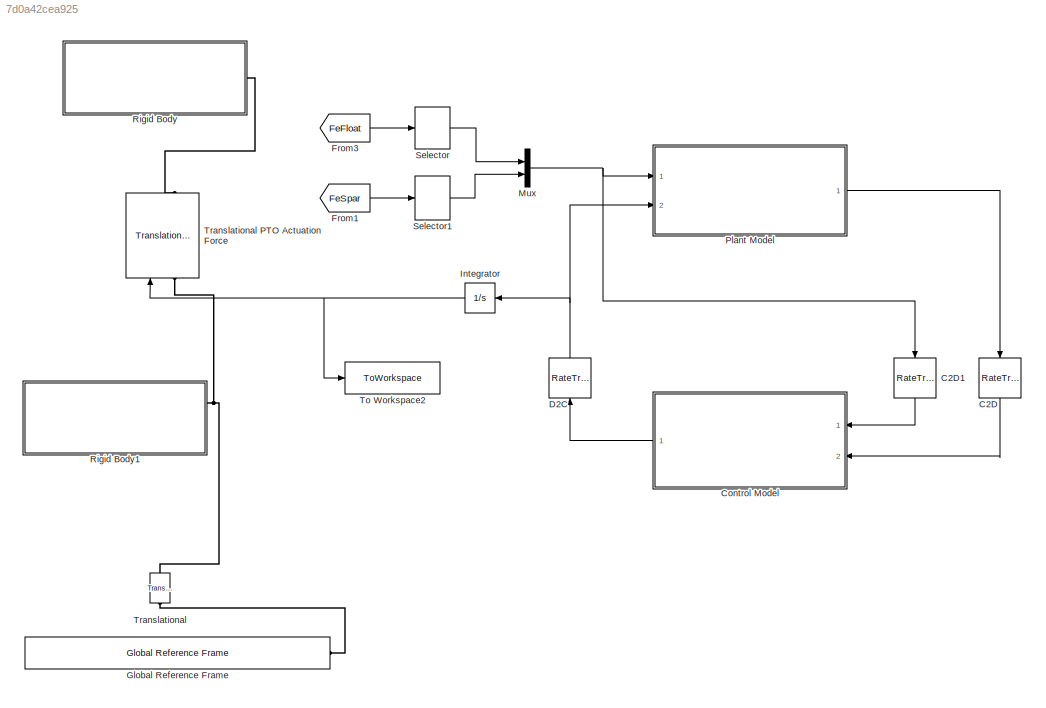
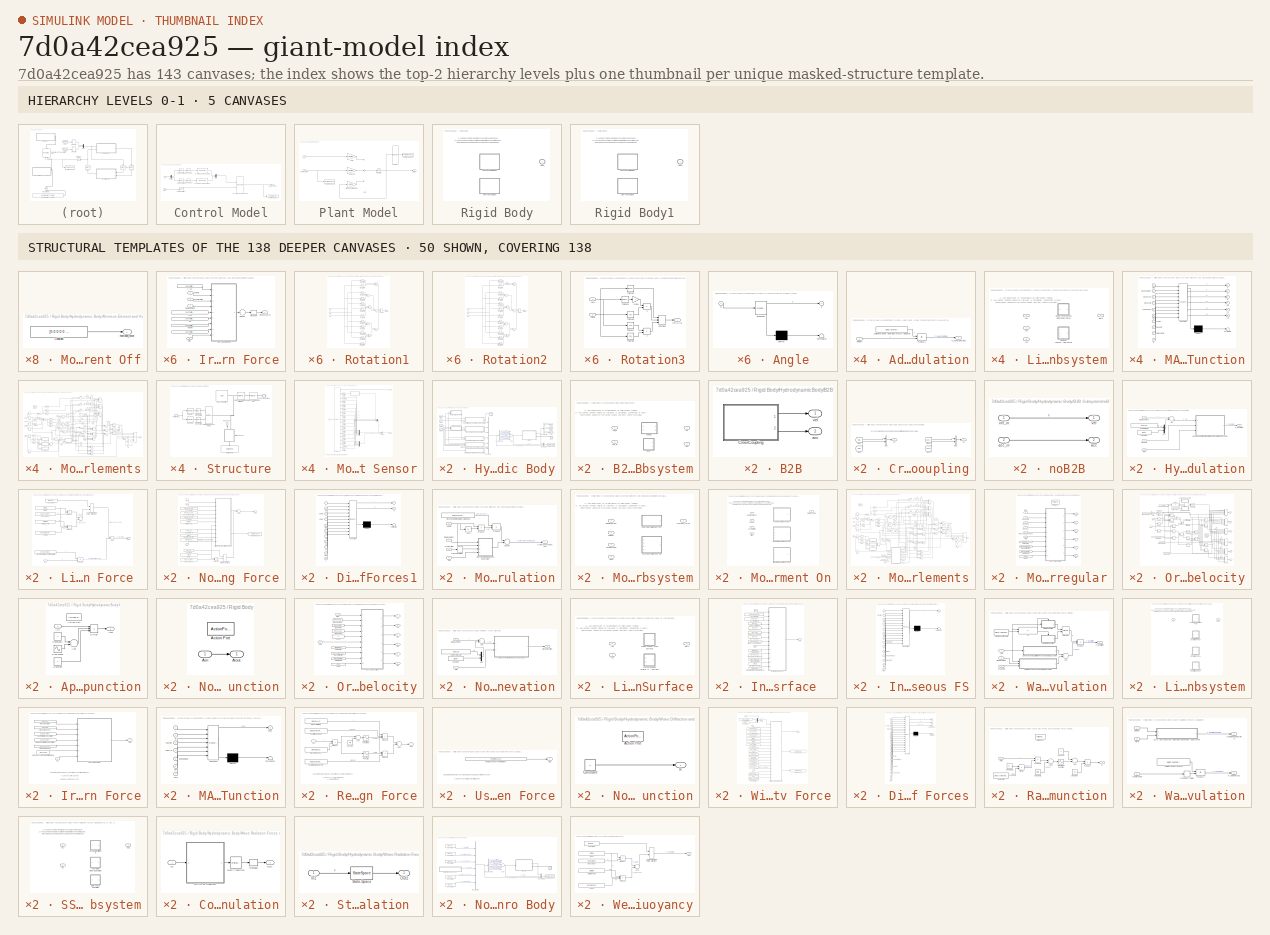
[diagram: thumbnail index - top-2 hierarchy levels (5 canvases) + 50 structural-template representatives of the remaining 138 canvases]
MODEL slx_7d0a42cea925
KIND model
CONFIG AbsTol = auto
CONFIG FixedStep = 0.1
CONFIG MaxStep = 0.1
CONFIG MinStep = auto
CONFIG RelTol = 1e-3
CONFIG SampleTimeConstraint = Unconstrained
CONFIG Solver = ode4
CONFIG SolverMode = Auto
CONFIG SolverName = ode4
CONFIG StartTime = 0
CONFIG StopTime = 400
BLOCK [RateTransition] C2D
  OutPortSampleTime = simu.dt
BLOCK [RateTransition] C2D1
  OutPortSampleTime = simu.dt
BLOCK [SubSystem] Control Model
  Ports = [2, 1]
  RequestExecContextInheritance = off
  Variant = off
BLOCK [Demux] Control Model/Demux
  DisplayOption = bar
  Outputs = 2
  Ports = [1, 2]
BLOCK [M-S-Function] Control Model/Level-2 MATLAB S-Function
  FunctionName = fnMPC
  Ports = [2, 1]
  Priority = 5
BLOCK [M-S-Function] Control Model/Level-2 MATLAB S-Function1
  FunctionName = fnFePredictionFloat
  Ports = [1, 1]
  Priority = 4
BLOCK [M-S-Function] Control Model/Level-2 MATLAB S-Function2
  FunctionName = fnFePredictionSpar
  Ports = [1, 1]
  Priority = 4
BLOCK [Mux] Control Model/Mux
  DisplayOption = bar
  Inputs = 2
  Ports = [2, 1]
BLOCK [RateTransition] Control Model/Rate Transition1
  OutPortSampleTime = mpc.Ts
BLOCK [RateTransition] Control Model/Rate Transition2
  OutPortSampleTime = mpc.Ts
BLOCK [RateTransition] Control Model/Rate Transition3
  OutPortSampleTime = mpc.Ts
BLOCK [Reference] Control Model/Tapped Delay  REF=simulink/Discrete/Tapped Delay
  Ports = [1, 1]
  SourceBlock = simulink/Discrete/Tapped Delay
  SourceType = Tapped Delay Line
BLOCK [Reference] Control Model/Tapped Delay1  REF=simulink/Discrete/Tapped Delay
  Ports = [1, 1]
  SourceBlock = simulink/Discrete/Tapped Delay
  SourceType = Tapped Delay Line
BLOCK [ToWorkspace] Control Model/To Workspace1
  FixptAsFi = on
  MaxDataPoints = inf
  Ports = [1]
  SampleTime = -1
  Save2DSignal = 3-D array (concatenate along third dimension)
  VariableName = dFpto
BLOCK [Outport] Control Model/dFpto_cmd_k
  IconDisplay = Port number
BLOCK [Inport] Control Model/fe
  IconDisplay = Port number
BLOCK [Inport] Control Model/states
  IconDisplay = Port number
  Port = 2
BLOCK [RateTransition] D2C
  OutPortSampleTime = 0
BLOCK [From] From1
  GotoTag = FeSpar
  TagVisibility = global
BLOCK [From] From3
  GotoTag = FeFloat
  TagVisibility = global
BLOCK [Reference] Global Reference Frame  REF=WECSim_Lib/Frames/Global Reference Frame
  Ports = [0, 0, 0, 0, 0, 0, 1]
  SourceBlock = WECSim_Lib/Frames/Global Reference Frame
  SourceType = Frames
BLOCK [Integrator] Integrator
  Ports = [1, 1]
BLOCK [Mux] Mux
  DisplayOption = bar
  Inputs = 2
  Ports = [2, 1]
BLOCK [SubSystem] Plant Model
  Ports = [2, 1]
  RequestExecContextInheritance = off
  Variant = off
BLOCK [Gain] Plant Model/A*[dZb;Zb;Fr';intFr',Fpto]
  Gain = plant.A
  Multiplication = Matrix(K*u)
  OutDataTypeStr = Inherit: Inherit via internal rule
  ParamDataTypeStr = Inherit: Inherit via internal rule
  SaturateOnIntegerOverflow = off
BLOCK [Gain] Plant Model/Bu*dFpto
  Gain = plant.Bu
  Multiplication = Matrix(K*u)
  OutDataTypeStr = Inherit: Inherit via internal rule
  ParamDataTypeStr = Inherit: Inherit via internal rule
  SaturateOnIntegerOverflow = off
BLOCK [Gain] Plant Model/Bv*fe
  Gain = plant.Bv
  Multiplication = Matrix(K*u)
  OutDataTypeStr = Inherit: Inherit via internal rule
  ParamDataTypeStr = Inherit: Inherit via internal rule
  SaturateOnIntegerOverflow = off
BLOCK [Integrator] Plant Model/Integrator
  Ports = [1, 1]
BLOCK [Selector] Plant Model/Selector
  IndexOptions = Index vector (dialog)
  Indices = [1 2 9 10 25]
  InputPortWidth = 25
  OutputSizes = 1
  Ports = [1, 1]
BLOCK [Sum] Plant Model/Sum
  InputSameDT = off
  Inputs = +++
  OutDataTypeStr = Inherit: Inherit via internal rule
  Ports = [3, 1]
  SaturateOnIntegerOverflow = off
BLOCK [ToWorkspace] Plant Model/To Workspace1
  FixptAsFi = on
  MaxDataPoints = inf
  Ports = [1]
  SampleTime = -1
  Save2DSignal = 3-D array (concatenate along third dimension)
  VariableName = dFptoCont
BLOCK [ToWorkspace] Plant Model/To Workspace2
  FixptAsFi = on
  MaxDataPoints = inf
  Ports = [1]
  SampleTime = -1
  Save2DSignal = 3-D array (concatenate along third dimension)
  VariableName = outputResults
BLOCK [Inport] Plant Model/dFpto_cmd
  IconDisplay = Port number
  Port = 2
BLOCK [Inport] Plant Model/fe
  IconDisplay = Port number
BLOCK [Outport] Plant Model/states
  IconDisplay = Port number
BLOCK [SubSystem] Rigid Body
  AttributesFormatString = %<body>
  Ports = [0, 0, 0, 0, 0, 0, 1]
  RequestExecContextInheritance = off
  Variant = on
BLOCK [PMIOPort] Rigid Body/Conn
  Port = 1
  Side = Right
BLOCK [SubSystem] Rigid Body/Hydrodynamic Body
  Ports = [0, 0, 0, 0, 0, 0, 1]
  RequestExecContextInheritance = off
  Variant = off
  VariantControl = sv_b1_hydroBody
BLOCK [SubSystem] Rigid Body/Hydrodynamic Body/Additional Linear Damping Force Calculation
  Ports = [1, 1]
  RequestExecContextInheritance = off
  Variant = off
BLOCK [Constant] Rigid Body/Hydrodynamic Body/Additional Linear Damping Force Calculation/Additional Linear Damping Matrix (diagonal)
  Value = body.hydroForce.linearDamping
BLOCK [Outport] Rigid Body/Hydrodynamic Body/Additional Linear Damping Force Calculation/F_LinearDamping
  IconDisplay = Port number
BLOCK [Product] Rigid Body/Hydrodynamic Body/Additional Linear Damping Force Calculation/Product1
  InputSameDT = off
  Multiplication = Matrix(*)
  OutDataTypeStr = Inherit: Inherit via internal rule
  Ports = [2, 1]
  RndMeth = Floor
  SaturateOnIntegerOverflow = off
BLOCK [Inport] Rigid Body/Hydrodynamic Body/Additional Linear Damping Force Calculation/Velocity
  IconDisplay = Port number
BLOCK [SubSystem] Rigid Body/Hydrodynamic Body/B2B Subsystem
  Ports = [2, 2]
  RequestExecContextInheritance = off
  Variant = on
BLOCK [SubSystem] Rigid Body/Hydrodynamic Body/B2B Subsystem/B2B
  Ports = [0, 2]
  RequestExecContextInheritance = off
  Variant = off
  VariantControl = sv_B2B
BLOCK [SubSystem] Rigid Body/Hydrodynamic Body/B2B Subsystem/B2B/CrossCoupling
  Ports = [0, 2]
  RequestExecContextInheritance = off
  Variant = off
BLOCK [BusCreator] Rigid Body/Hydrodynamic Body/B2B Subsystem/B2B/CrossCoupling/BC1
  InheritFromInputs = on
  Inputs = 2
  Ports = [2, 1]
BLOCK [BusCreator] Rigid Body/Hydrodynamic Body/B2B Subsystem/B2B/CrossCoupling/BC2
  InheritFromInputs = on
  Inputs = 2
  Ports = [2, 1]
BLOCK [Outport] Rigid Body/Hydrodynamic Body/B2B Subsystem/B2B/CrossCoupling/acc
  IconDisplay = Port number
  Port = 2
BLOCK [From] Rigid Body/Hydrodynamic Body/B2B Subsystem/B2B/CrossCoupling/acc1
  GotoTag = acc1
  TagVisibility = global
BLOCK [From] Rigid Body/Hydrodynamic Body/B2B Subsystem/B2B/CrossCoupling/acc2
  GotoTag = acc2
  TagVisibility = global
BLOCK [Outport] Rigid Body/Hydrodynamic Body/B2B Subsystem/B2B/CrossCoupling/vel
  IconDisplay = Port number
BLOCK [From] Rigid Body/Hydrodynamic Body/B2B Subsystem/B2B/CrossCoupling/vel1
  GotoTag = vel1
  TagVisibility = global
BLOCK [From] Rigid Body/Hydrodynamic Body/B2B Subsystem/B2B/CrossCoupling/vel2
  GotoTag = vel2
  TagVisibility = global
BLOCK [Outport] Rigid Body/Hydrodynamic Body/B2B Subsystem/B2B/acc
  IconDisplay = Port number
  Port = 2
BLOCK [Outport] Rigid Body/Hydrodynamic Body/B2B Subsystem/B2B/vel
  IconDisplay = Port number
BLOCK [Outport] Rigid Body/Hydrodynamic Body/B2B Subsystem/acc
  IconDisplay = Port number
  Port = 2
BLOCK [Inport] Rigid Body/Hydrodynamic Body/B2B Subsystem/acc_in
  IconDisplay = Port number
  Port = 2
BLOCK [SubSystem] Rigid Body/Hydrodynamic Body/B2B Subsystem/noB2B
  Ports = [2, 2]
  RequestExecContextInheritance = off
  Variant = off
  VariantControl = sv_noB2B
BLOCK [Outport] Rigid Body/Hydrodynamic Body/B2B Subsystem/noB2B/acc
  IconDisplay = Port number
  Port = 2
BLOCK [Inport] Rigid Body/Hydrodynamic Body/B2B Subsystem/noB2B/acc_in
  IconDisplay = Port number
  Port = 2
BLOCK [Outport] Rigid Body/Hydrodynamic Body/B2B Subsystem/noB2B/vel
  IconDisplay = Port number
BLOCK [Inport] Rigid Body/Hydrodynamic Body/B2B Subsystem/noB2B/vel_in
  IconDisplay = Port number
BLOCK [Outport] Rigid Body/Hydrodynamic Body/B2B Subsystem/vel
  IconDisplay = Port number
BLOCK [Inport] Rigid Body/Hydrodynamic Body/B2B Subsystem/vel_in
  IconDisplay = Port number
BLOCK [BusCreator] Rigid Body/Hydrodynamic Body/Bus Creator
  DisplayOption = bar
  InheritFromInputs = on
  Inputs = 6
  Ports = [6, 1]
BLOCK [BusCreator] Rigid Body/Hydrodynamic Body/Bus Creator1
  DisplayOption = bar
  InheritFromInputs = on
  Inputs = 3
  Ports = [3, 1]
BLOCK [BusSelector] Rigid Body/Hydrodynamic Body/Bus Selector1
  OutputSignals = F_Excitation,F_RadiationDamping,F_AddedMass,F_Restoring,F_MorrisonAndViscous,F_LinearDamping
  Ports = [1, 6]
BLOCK [BusSelector] Rigid Body/Hydrodynamic Body/Bus Selector2
  OutputSignals = disp,vel,acc
  Ports = [1, 3]
BLOCK [PMIOPort] Rigid Body/Hydrodynamic Body/Conn
  Port = 1
  Side = Right
BLOCK [From] Rigid Body/Hydrodynamic Body/From
  GotoTag = disp1
  TagVisibility = global
BLOCK [From] Rigid Body/Hydrodynamic Body/From1
  GotoTag = vel1
  TagVisibility = global
BLOCK [From] Rigid Body/Hydrodynamic Body/From2
  GotoTag = acc1
  TagVisibility = global
BLOCK [Goto] Rigid Body/Hydrodynamic Body/Goto
  GotoTag = disp1
  TagVisibility = global
BLOCK [Goto] Rigid Body/Hydrodynamic Body/Goto1
  GotoTag = vel1
  TagVisibility = global
BLOCK [Goto] Rigid Body/Hydrodynamic Body/Goto2
  GotoTag = acc1
  TagVisibility = global
BLOCK [Goto] Rigid Body/Hydrodynamic Body/Goto3
  GotoTag = FeFloat
  TagVisibility = global
BLOCK [SubSystem] Rigid Body/Hydrodynamic Body/Hydrostatic Restoring Force Calculation
  Ports = [3, 1]
  RequestExecContextInheritance = off
  Variant = off
BLOCK [Sum] Rigid Body/Hydrodynamic Body/Hydrostatic Restoring Force Calculation/Add
  InputSameDT = off
  Inputs = +-
  OutDataTypeStr = Inherit: Inherit via internal rule
  Ports = [2, 1]
  SaturateOnIntegerOverflow = off
BLOCK [Constant] Rigid Body/Hydrodynamic Body/Hydrostatic Restoring Force Calculation/Center of Gravity
  Value = body.cg
BLOCK [Constant] Rigid Body/Hydrodynamic Body/Hydrostatic Restoring Force Calculation/Constant
  Value = [0 0 0]
BLOCK [Inport] Rigid Body/Hydrodynamic Body/Hydrostatic Restoring Force Calculation/Displacement
  IconDisplay = Port number
BLOCK [Outport] Rigid Body/Hydrodynamic Body/Hydrostatic Restoring Force Calculation/F_Restoring
  IconDisplay = Port number
BLOCK [SubSystem] Rigid Body/Hydrodynamic Body/Hydrostatic Restoring Force Calculation/Linear and Nonlinear Restoring Force Variant Subsystem
  Ports = [3, 1]
  RequestExecContextInheritance = off
  Variant = on
BLOCK [Inport] Rigid Body/Hydrodynamic Body/Hydrostatic Restoring Force Calculation/Linear and Nonlinear Restoring Force Variant Subsystem/In1
  IconDisplay = Port number
BLOCK [Inport] Rigid Body/Hydrodynamic Body/Hydrostatic Restoring Force Calculation/Linear and Nonlinear Restoring Force Variant Subsystem/In2
  IconDisplay = Port number
  Port = 2
BLOCK [Inport] Rigid Body/Hydrodynamic Body/Hydrostatic Restoring Force Calculation/Linear and Nonlinear Restoring Force Variant Subsystem/In3
  IconDisplay = Port number
  Port = 3
BLOCK [SubSystem] Rigid Body/Hydrodynamic Body/Hydrostatic Restoring Force Calculation/Linear and Nonlinear Restoring Force Variant Subsystem/Linear Hydrostatic Restoring Force 
  Ports = [1, 1]
  RequestExecContextInheritance = off
  Variant = off
  VariantControl = sv_linearHydro
BLOCK [Sum] Rigid Body/Hydrodynamic Body/Hydrostatic Restoring Force Calculation/Linear and Nonlinear Restoring Force Variant Subsystem/Linear Hydrostatic Restoring Force /Add1
  InputSameDT = off
  Inputs = +-
  OutDataTypeStr = Inherit: Inherit via internal rule
  Ports = [2, 1]
  SaturateOnIntegerOverflow = off
BLOCK [Sum] Rigid Body/Hydrodynamic Body/Hydrostatic Restoring Force Calculation/Linear and Nonlinear Restoring Force Variant Subsystem/Linear Hydrostatic Restoring Force /Add2
  InputSameDT = off
  OutDataTypeStr = Inherit: Inherit via internal rule
  Ports = [2, 1]
  SaturateOnIntegerOverflow = off
BLOCK [Assignment] Rigid Body/Hydrodynamic Body/Hydrostatic Restoring Force Calculation/Linear and Nonlinear Restoring Force Variant Subsystem/Linear Hydrostatic Restoring Force /Assignment (Add Net Bouyancy Force to Z-Direction)
  IndexOptions = Index vector (dialog)
  Indices = 3
  OutputSizes = 1
  Ports = [2, 1]
BLOCK [Constant] Rigid Body/Hydrodynamic Body/Hydrostatic Restoring Force Calculation/Linear and Nonlinear Restoring Force Variant Subsystem/Linear Hydrostatic Restoring Force /Body Mass
  Value = body.hydroForce.storage.mass
BLOCK [Constant] Rigid Body/Hydrodynamic Body/Hydrostatic Restoring Force Calculation/Linear and Nonlinear Restoring Force Variant Subsystem/Linear Hydrostatic Restoring Force /Constant1
  Value = [0 0 0 0 0 0]
BLOCK [Constant] Rigid Body/Hydrodynamic Body/Hydrostatic Restoring Force Calculation/Linear and Nonlinear Restoring Force Variant Subsystem/Linear Hydrostatic Restoring Force /Gravity
  Value = simu.g
BLOCK [Inport] Rigid Body/Hydrodynamic Body/Hydrostatic Restoring Force Calculation/Linear and Nonlinear Restoring Force Variant Subsystem/Linear Hydrostatic Restoring Force /In1
  IconDisplay = Port number
BLOCK [Constant] Rigid Body/Hydrodynamic Body/Hydrostatic Restoring Force Calculation/Linear and Nonlinear Restoring Force Variant Subsystem/Linear Hydrostatic Restoring Force /Linear Restioring Coefficient Matrix
  Value = body.hydroForce.linearHydroRestCoef
BLOCK [Outport] Rigid Body/Hydrodynamic Body/Hydrostatic Restoring Force Calculation/Linear and Nonlinear Restoring Force Variant Subsystem/Linear Hydrostatic Restoring Force /Out1
  IconDisplay = Port number
BLOCK [Product] Rigid Body/Hydrodynamic Body/Hydrostatic Restoring Force Calculation/Linear and Nonlinear Restoring Force Variant Subsystem/Linear Hydrostatic Restoring Force /Product
  InputSameDT = off
  OutDataTypeStr = Inherit: Inherit via internal rule
  Ports = [2, 1]
  RndMeth = Floor
  SaturateOnIntegerOverflow = off
BLOCK [Product] Rigid Body/Hydrodynamic Body/Hydrostatic Restoring Force Calculation/Linear and Nonlinear Restoring Force Variant Subsystem/Linear Hydrostatic Restoring Force /Product1
  InputSameDT = off
  Inputs = 3
  OutDataTypeStr = Inherit: Inherit via internal rule
  Ports = [3, 1]
  RndMeth = Floor
  SaturateOnIntegerOverflow = off
BLOCK [Product] Rigid Body/Hydrodynamic Body/Hydrostatic Restoring Force Calculation/Linear and Nonlinear Restoring Force Variant Subsystem/Linear Hydrostatic Restoring Force /Product2
  InputSameDT = off
  Multiplication = Matrix(*)
  OutDataTypeStr = Inherit: Inherit via internal rule
  Ports = [2, 1]
  RndMeth = Floor
  SaturateOnIntegerOverflow = off
BLOCK [Constant] Rigid Body/Hydrodynamic Body/Hydrostatic Restoring Force Calculation/Linear and Nonlinear Restoring Force Variant Subsystem/Linear Hydrostatic Restoring Force /Volume
  Value = body.dispVol
BLOCK [Constant] Rigid Body/Hydrodynamic Body/Hydrostatic Restoring Force Calculation/Linear and Nonlinear Restoring Force Variant Subsystem/Linear Hydrostatic Restoring Force /Water Density
  Value = simu.rho
BLOCK [SubSystem] Rigid Body/Hydrodynamic Body/Hydrostatic Restoring Force Calculation/Linear and Nonlinear Restoring Force Variant Subsystem/Nonlinear Hydrostatic Restoring Force
  Ports = [3, 1]
  RequestExecContextInheritance = off
  Variant = off
  VariantControl = sv_nonlinearHydro
BLOCK [Sum] Rigid Body/Hydrodynamic Body/Hydrostatic Restoring Force Calculation/Linear and Nonlinear Restoring Force Variant Subsystem/Nonlinear Hydrostatic Restoring Force/Add3
  InputSameDT = off
  Inputs = -+
  OutDataTypeStr = Inherit: Inherit via internal rule
  Ports = [2, 1]
  SaturateOnIntegerOverflow = off
BLOCK [Assignment] Rigid Body/Hydrodynamic Body/Hydrostatic Restoring Force Calculation/Linear and Nonlinear Restoring Force Variant Subsystem/Nonlinear Hydrostatic Restoring Force/Assignment (Add Net Bouyancy Force to Z-Direction)2
  IndexOptions = Index vector (dialog)
  Indices = 3
  OutputSizes = 1
  Ports = [2, 1]
BLOCK [Constant] Rigid Body/Hydrodynamic Body/Hydrostatic Restoring Force Calculation/Linear and Nonlinear Restoring Force Variant Subsystem/Nonlinear Hydrostatic Restoring Force/Body Mass1
  Value = body.hydroForce.storage.mass
BLOCK [Constant] Rigid Body/Hydrodynamic Body/Hydrostatic Restoring Force Calculation/Linear and Nonlinear Restoring Force Variant Subsystem/Nonlinear Hydrostatic Restoring Force/Center of Gravity
  Value = body.cg
BLOCK [Constant] Rigid Body/Hydrodynamic Body/Hydrostatic Restoring Force Calculation/Linear and Nonlinear Restoring Force Variant Subsystem/Nonlinear Hydrostatic Restoring Force/Constant2
  Value = [0 0 0 0 0 0]
BLOCK [SubSystem] Rigid Body/Hydrodynamic Body/Hydrostatic Restoring Force Calculation/Linear and Nonlinear Restoring Force Variant Subsystem/Nonlinear Hydrostatic Restoring Force/Diffarction and Excitation Forces1
  ErrorFcn = Stateflow.Translate.translate
  PermitHierarchicalResolution = ExplicitOnly
  Ports = [11, 2]
  RequestExecContextInheritance = off
  SFBlockType = MATLAB Function
  TreatAsAtomicUnit = on
  Variant = off
BLOCK [Demux] Rigid Body/Hydrodynamic Body/Hydrostatic Restoring Force Calculation/Linear and Nonlinear Restoring Force Variant Subsystem/Nonlinear Hydrostatic Restoring Force/Diffarction and Excitation Forces1/ Demux 
  Outputs = 1
  Ports = [1, 1]
BLOCK [S-Function] Rigid Body/Hydrodynamic Body/Hydrostatic Restoring Force Calculation/Linear and Nonlinear Restoring Force Variant Subsystem/Nonlinear Hydrostatic Restoring Force/Diffarction and Excitation Forces1/ SFunction 
  EnableBusSupport = on
  FunctionName = sf_sfun
  PortCounts = [11 3]
  Ports = [11, 3]
  SFunctionDeploymentMode = off
  Tag = Stateflow S-Function RM3ControlSim 1
BLOCK [Terminator] Rigid Body/Hydrodynamic Body/Hydrostatic Restoring Force Calculation/Linear and Nonlinear Restoring Force Variant Subsystem/Nonlinear Hydrostatic Restoring Force/Diffarction and Excitation Forces1/ Terminator 
BLOCK [Inport] Rigid Body/Hydrodynamic Body/Hydrostatic Restoring Force Calculation/Linear and Nonlinear Restoring Force Variant Subsystem/Nonlinear Hydrostatic Restoring Force/Diffarction and Excitation Forces1/area
  IconDisplay = Port number
  Port = 5
BLOCK [Inport] Rigid Body/Hydrodynamic Body/Hydrostatic Restoring Force Calculation/Linear and Nonlinear Restoring Force Variant Subsystem/Nonlinear Hydrostatic Restoring Force/Diffarction and Excitation Forces1/center
  IconDisplay = Port number
  Port = 3
BLOCK [Inport] Rigid Body/Hydrodynamic Body/Hydrostatic Restoring Force Calculation/Linear and Nonlinear Restoring Force Variant Subsystem/Nonlinear Hydrostatic Restoring Force/Diffarction and Excitation Forces1/cg
  IconDisplay = Port number
  Port = 8
BLOCK [Inport] Rigid Body/Hydrodynamic Body/Hydrostatic Restoring Force Calculation/Linear and Nonlinear Restoring Force Variant Subsystem/Nonlinear Hydrostatic Restoring Force/Diffarction and Excitation Forces1/dt
  IconDisplay = Port number
  Port = 9
BLOCK [Inport] Rigid Body/Hydrodynamic Body/Hydrostatic Restoring Force Calculation/Linear and Nonlinear Restoring Force Variant Subsystem/Nonlinear Hydrostatic Restoring Force/Diffarction and Excitation Forces1/dtFe
  IconDisplay = Port number
  Port = 10
BLOCK [Inport] Rigid Body/Hydrodynamic Body/Hydrostatic Restoring Force Calculation/Linear and Nonlinear Restoring Force Variant Subsystem/Nonlinear Hydrostatic Restoring Force/Diffarction and Excitation Forces1/elv
  IconDisplay = Port number
  Port = 2
BLOCK [Outport] Rigid Body/Hydrodynamic Body/Hydrostatic Restoring Force Calculation/Linear and Nonlinear Restoring Force Variant Subsystem/Nonlinear Hydrostatic Restoring Force/Diffarction and Excitation Forces1/f
  IconDisplay = Port number
BLOCK [Inport] Rigid Body/Hydrodynamic Body/Hydrostatic Restoring Force Calculation/Linear and Nonlinear Restoring Force Variant Subsystem/Nonlinear Hydrostatic Restoring Force/Diffarction and Excitation Forces1/g
  IconDisplay = Port number
  Port = 7
BLOCK [Outport] Rigid Body/Hydrodynamic Body/Hydrostatic Restoring Force Calculation/Linear and Nonlinear Restoring Force Variant Subsystem/Nonlinear Hydrostatic Restoring Force/Diffarction and Excitation Forces1/p
  IconDisplay = Port number
  Port = 2
BLOCK [Inport] Rigid Body/Hydrodynamic Body/Hydrostatic Restoring Force Calculation/Linear and Nonlinear Restoring Force Variant Subsystem/Nonlinear Hydrostatic Restoring Force/Diffarction and Excitation Forces1/rho
  IconDisplay = Port number
  Port = 6
BLOCK [Inport] Rigid Body/Hydrodynamic Body/Hydrostatic Restoring Force Calculation/Linear and Nonlinear Restoring Force Variant Subsystem/Nonlinear Hydrostatic Restoring Force/Diffarction and Excitation Forces1/t
  IconDisplay = Port number
  Port = 11
BLOCK [Inport] Rigid Body/Hydrodynamic Body/Hydrostatic Restoring Force Calculation/Linear and Nonlinear Restoring Force Variant Subsystem/Nonlinear Hydrostatic Restoring Force/Diffarction and Excitation Forces1/tnorm
  IconDisplay = Port number
  Port = 4
BLOCK [Inport] Rigid Body/Hydrodynamic Body/Hydrostatic Restoring Force Calculation/Linear and Nonlinear Restoring Force Variant Subsystem/Nonlinear Hydrostatic Restoring Force/Diffarction and Excitation Forces1/x
  IconDisplay = Port number
BLOCK [Constant] Rigid Body/Hydrodynamic Body/Hydrostatic Restoring Force Calculation/Linear and Nonlinear Restoring Force Variant Subsystem/Nonlinear Hydrostatic Restoring Force/Gravity2
  Value = simu.g
BLOCK [Inport] Rigid Body/Hydrodynamic Body/Hydrostatic Restoring Force Calculation/Linear and Nonlinear Restoring Force Variant Subsystem/Nonlinear Hydrostatic Restoring Force/In1
  IconDisplay = Port number
BLOCK [Inport] Rigid Body/Hydrodynamic Body/Hydrostatic Restoring Force Calculation/Linear and Nonlinear Restoring Force Variant Subsystem/Nonlinear Hydrostatic Restoring Force/In2
  IconDisplay = Port number
  Port = 2
BLOCK [Inport] Rigid Body/Hydrodynamic Body/Hydrostatic Restoring Force Calculation/Linear and Nonlinear Restoring Force Variant Subsystem/Nonlinear Hydrostatic Restoring Force/In3
  IconDisplay = Port number
  Port = 3
BLOCK [Outport] Rigid Body/Hydrodynamic Body/Hydrostatic Restoring Force Calculation/Linear and Nonlinear Restoring Force Variant Subsystem/Nonlinear Hydrostatic Restoring Force/Out1
  IconDisplay = Port number
BLOCK [Product] Rigid Body/Hydrodynamic Body/Hydrostatic Restoring Force Calculation/Linear and Nonlinear Restoring Force Variant Subsystem/Nonlinear Hydrostatic Restoring Force/Product3
  InputSameDT = off
  OutDataTypeStr = Inherit: Inherit via internal rule
  Ports = [2, 1]
  RndMeth = Floor
  SaturateOnIntegerOverflow = off
BLOCK [Constant] Rigid Body/Hydrodynamic Body/Hydrostatic Restoring Force Calculation/Linear and Nonlinear Restoring Force Variant Subsystem/Nonlinear Hydrostatic Restoring Force/SImulation Step Time
  Value = simu.dt
BLOCK [Constant] Rigid Body/Hydrodynamic Body/Hydrostatic Restoring Force Calculation/Linear and Nonlinear Restoring Force Variant Subsystem/Nonlinear Hydrostatic Restoring Force/STL areas
  Value = body.bodyGeometry.area
BLOCK [Constant] Rigid Body/Hydrodynamic Body/Hydrostatic Restoring Force Calculation/Linear and Nonlinear Restoring Force Variant Subsystem/Nonlinear Hydrostatic Restoring Force/STL centers
  Value = body.bodyGeometry.center
BLOCK [Constant] Rigid Body/Hydrodynamic Body/Hydrostatic Restoring Force Calculation/Linear and Nonlinear Restoring Force Variant Subsystem/Nonlinear Hydrostatic Restoring Force/STL normal vectors
  Value = body.bodyGeometry.norm
BLOCK [Constant] Rigid Body/Hydrodynamic Body/Hydrostatic Restoring Force Calculation/Linear and Nonlinear Restoring Force Variant Subsystem/Nonlinear Hydrostatic Restoring Force/Simulation Fe Calc Step Time
  Value = simu.dtFeNonlin
BLOCK [ToWorkspace] Rigid Body/Hydrodynamic Body/Hydrostatic Restoring Force Calculation/Linear and Nonlinear Restoring Force Variant Subsystem/Nonlinear Hydrostatic Restoring Force/To Workspace1
  Decimation = round(simu.dtOut/simu.dt,0)
  MaxDataPoints = inf
  Ports = [1]
  SampleTime = -1
  SaveFormat = Structure With Time
  VariableName = body1_hspressure_out
BLOCK [Constant] Rigid Body/Hydrodynamic Body/Hydrostatic Restoring Force Calculation/Linear and Nonlinear Restoring Force Variant Subsystem/Nonlinear Hydrostatic Restoring Force/Water Density1
  Value = simu.rho
BLOCK [Outport] Rigid Body/Hydrodynamic Body/Hydrostatic Restoring Force Calculation/Linear and Nonlinear Restoring Force Variant Subsystem/Out1
  IconDisplay = Port number
BLOCK [Mux] Rigid Body/Hydrodynamic Body/Hydrostatic Restoring Force Calculation/Mux
  DisplayOption = bar
  Inputs = 2
  Ports = [2, 1]
BLOCK [Inport] Rigid Body/Hydrodynamic Body/Hydrostatic Restoring Force Calculation/Time
  IconDisplay = Port number
  Port = 3
BLOCK [Inport] Rigid Body/Hydrodynamic Body/Hydrostatic Restoring Force Calculation/Wave Elv
  IconDisplay = Port number
  Port = 2
BLOCK [SubSystem] Rigid Body/Hydrodynamic Body/Morrison Element and ViscousDampingForceCalculation
  Ports = [4, 1]
  RequestExecContextInheritance = off
  Variant = off
BLOCK [Abs] Rigid Body/Hydrodynamic Body/Morrison Element and ViscousDampingForceCalculation/Abs1
  SaturateOnIntegerOverflow = off
BLOCK [Inport] Rigid Body/Hydrodynamic Body/Morrison Element and ViscousDampingForceCalculation/Acceleration
  IconDisplay = Port number
  Port = 2
BLOCK [Inport] Rigid Body/Hydrodynamic Body/Morrison Element and ViscousDampingForceCalculation/Displacement
  IconDisplay = Port number
BLOCK [Outport] Rigid Body/Hydrodynamic Body/Morrison Element and ViscousDampingForceCalculation/F_MorrisonAndViscous
  IconDisplay = Port number
BLOCK [SubSystem] Rigid Body/Hydrodynamic Body/Morrison Element and ViscousDampingForceCalculation/Morrison Element Variant Subsystem
  Ports = [4, 1]
  RequestExecContextInheritance = off
  Variant = on
BLOCK [SubSystem] Rigid Body/Hydrodynamic Body/Morrison Element and ViscousDampingForceCalculation/Morrison Element Variant Subsystem/Morrison Element Off
  Ports = [0, 1]
  RequestExecContextInheritance = off
  Variant = off
  VariantControl = sv_MEOff
BLOCK [Constant] Rigid Body/Hydrodynamic Body/Morrison Element and ViscousDampingForceCalculation/Morrison Element Variant Subsystem/Morrison Element Off/Constant
  Value = [0 0 0 0 0 0]
BLOCK [Outport] Rigid Body/Hydrodynamic Body/Morrison Element and ViscousDampingForceCalculation/Morrison Element Variant Subsystem/Morrison Element Off/morison_force
  IconDisplay = Port number
BLOCK [SubSystem] Rigid Body/Hydrodynamic Body/Morrison Element and ViscousDampingForceCalculation/Morrison Element Variant Subsystem/Morrison Element On
  Ports = [4, 1]
  RequestExecContextInheritance = off
  Variant = on
  VariantControl = sv_MEOn
BLOCK [SubSystem] Rigid Body/Hydrodynamic Body/Morrison Element and ViscousDampingForceCalculation/Morrison Element Variant Subsystem/Morrison Element On/Irregular Wave Morison Force
  Ports = [4, 1]
  RequestExecContextInheritance = off
  Variant = off
  VariantControl = sv_irregularWaves
BLOCK [Constant] Rigid Body/Hydrodynamic Body/Morrison Element and ViscousDampingForceCalculation/Morrison Element Variant Subsystem/Morrison Element On/Irregular Wave Morison Force/Area
  Value = body.morrisonElement.characteristicArea
  VectorParams1D = off
BLOCK [Constant] Rigid Body/Hydrodynamic Body/Morrison Element and ViscousDampingForceCalculation/Morrison Element Variant Subsystem/Morrison Element On/Irregular Wave Morison Force/Ca
  Value = body.morrisonElement.ca
  VectorParams1D = off
BLOCK [Constant] Rigid Body/Hydrodynamic Body/Morrison Element and ViscousDampingForceCalculation/Morrison Element Variant Subsystem/Morrison Element On/Irregular Wave Morison Force/Cd
  Value = body.morrisonElement.cd
  VectorParams1D = off
BLOCK [Sum] Rigid Body/Hydrodynamic Body/Morrison Element and ViscousDampingForceCalculation/Morrison Element Variant Subsystem/Morrison Element On/Irregular Wave Morison Force/MESum
  CollapseMode = Specified dimension
  InputSameDT = off
  Inputs = +
  OutDataTypeStr = Inherit: Inherit via internal rule
  Ports = [1, 1]
  SaturateOnIntegerOverflow = off
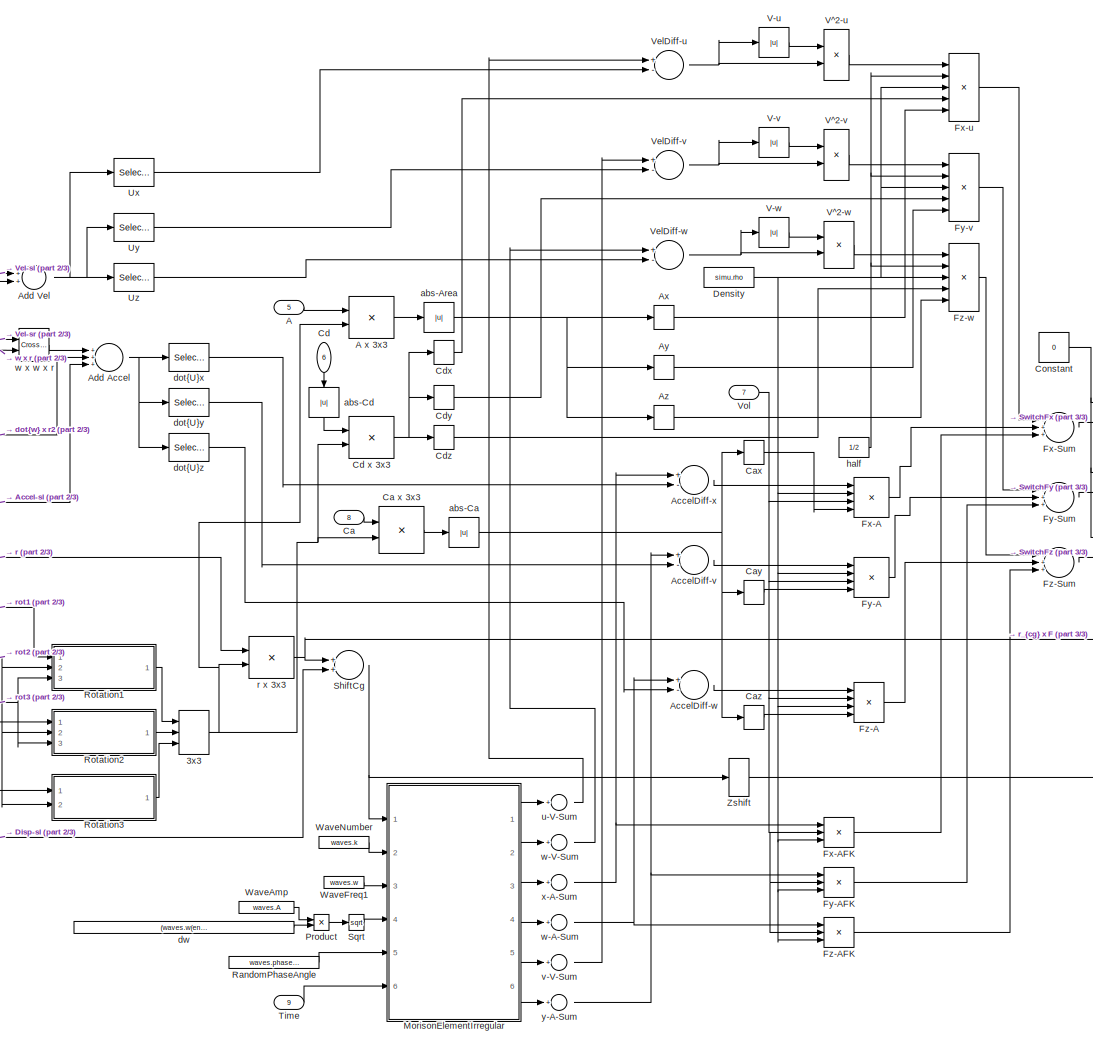
[diagram: Rigid Body/Hydrodynamic Body/Morrison Element and ViscousDampingForceCalculation/Morrison Element Variant Subsystem/Morrison Element On/Irregular Wave Morison Force/MorrisonElements - part 1/3, center side, full height]
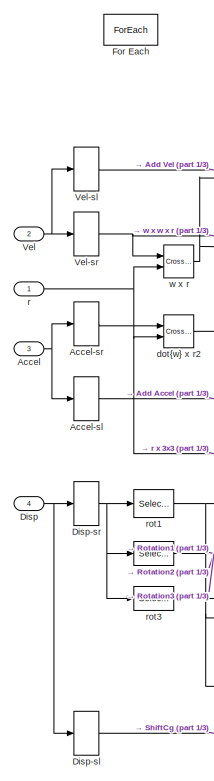
[diagram: Rigid Body/Hydrodynamic Body/Morrison Element and ViscousDampingForceCalculation/Morrison Element Variant Subsystem/Morrison Element On/Irregular Wave Morison Force/MorrisonElements - part 2/3, middle left region]
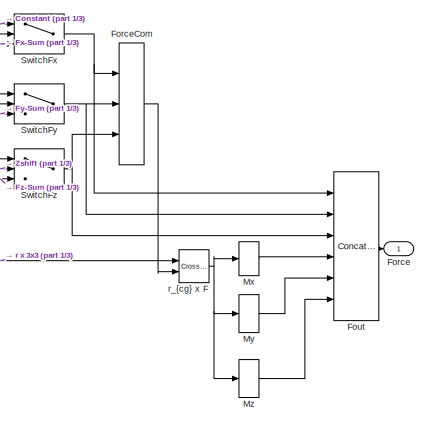
[diagram: Rigid Body/Hydrodynamic Body/Morrison Element and ViscousDampingForceCalculation/Morrison Element Variant Subsystem/Morrison Element On/Irregular Wave Morison Force/MorrisonElements - part 3/3, middle right region]
BLOCK [SubSystem] Rigid Body/Hydrodynamic Body/Morrison Element and ViscousDampingForceCalculation/Morrison Element Variant Subsystem/Morrison Element On/Irregular Wave Morison Force/MorrisonElements
  Ports = [9, 1]
  RequestExecContextInheritance = off
  TreatAsAtomicUnit = on
  Variant = off
BLOCK [Concatenate] Rigid Body/Hydrodynamic Body/Morrison Element and ViscousDampingForceCalculation/Morrison Element Variant Subsystem/Morrison Element On/Irregular Wave Morison Force/MorrisonElements/3x3
  Mode = Multidimensional array
  NumInputs = 3
  Ports = [3, 1]
BLOCK [Inport] Rigid Body/Hydrodynamic Body/Morrison Element and ViscousDampingForceCalculation/Morrison Element Variant Subsystem/Morrison Element On/Irregular Wave Morison Force/MorrisonElements/A
  IconDisplay = Port number
  Partition = on
  PartitionDimension = 1
  PartitionWidth = 1
  Port = 5
BLOCK [Product] Rigid Body/Hydrodynamic Body/Morrison Element and ViscousDampingForceCalculation/Morrison Element Variant Subsystem/Morrison Element On/Irregular Wave Morison Force/MorrisonElements/A x 3x3
  InputSameDT = off
  Multiplication = Matrix(*)
  OutDataTypeStr = Inherit: Inherit via internal rule
  Ports = [2, 1]
  RndMeth = Floor
  SaturateOnIntegerOverflow = off
BLOCK [Inport] Rigid Body/Hydrodynamic Body/Morrison Element and ViscousDampingForceCalculation/Morrison Element Variant Subsystem/Morrison Element On/Irregular Wave Morison Force/MorrisonElements/Accel
  IconDisplay = Port number
  Port = 3
BLOCK [Selector] Rigid Body/Hydrodynamic Body/Morrison Element and ViscousDampingForceCalculation/Morrison Element Variant Subsystem/Morrison Element On/Irregular Wave Morison Force/MorrisonElements/Accel-sl
  IndexOptions = Index vector (dialog)
  Indices = [1 2 3]
  InputPortWidth = 6
  OutputSizes = 1
  Ports = [1, 1]
BLOCK [Selector] Rigid Body/Hydrodynamic Body/Morrison Element and ViscousDampingForceCalculation/Morrison Element Variant Subsystem/Morrison Element On/Irregular Wave Morison Force/MorrisonElements/Accel-sr
  IndexOptions = Index vector (dialog)
  Indices = [4 5 6]
  InputPortWidth = 6
  OutputSizes = 1
  Ports = [1, 1]
BLOCK [Sum] Rigid Body/Hydrodynamic Body/Morrison Element and ViscousDampingForceCalculation/Morrison Element Variant Subsystem/Morrison Element On/Irregular Wave Morison Force/MorrisonElements/AccelDiff-v
  InputSameDT = off
  Inputs = +-
  OutDataTypeStr = Inherit: Inherit via internal rule
  Ports = [2, 1]
  SaturateOnIntegerOverflow = off
BLOCK [Sum] Rigid Body/Hydrodynamic Body/Morrison Element and ViscousDampingForceCalculation/Morrison Element Variant Subsystem/Morrison Element On/Irregular Wave Morison Force/MorrisonElements/AccelDiff-w
  InputSameDT = off
  Inputs = +-
  OutDataTypeStr = Inherit: Inherit via internal rule
  Ports = [2, 1]
  SaturateOnIntegerOverflow = off
BLOCK [Sum] Rigid Body/Hydrodynamic Body/Morrison Element and ViscousDampingForceCalculation/Morrison Element Variant Subsystem/Morrison Element On/Irregular Wave Morison Force/MorrisonElements/AccelDiff-x
  InputSameDT = off
  Inputs = +-
  OutDataTypeStr = Inherit: Inherit via internal rule
  Ports = [2, 1]
  SaturateOnIntegerOverflow = off
BLOCK [Sum] Rigid Body/Hydrodynamic Body/Morrison Element and ViscousDampingForceCalculation/Morrison Element Variant Subsystem/Morrison Element On/Irregular Wave Morison Force/MorrisonElements/Add Accel
  InputSameDT = off
  Inputs = +++
  OutDataTypeStr = Inherit: Inherit via internal rule
  Ports = [3, 1]
  SaturateOnIntegerOverflow = off
BLOCK [Sum] Rigid Body/Hydrodynamic Body/Morrison Element and ViscousDampingForceCalculation/Morrison Element Variant Subsystem/Morrison Element On/Irregular Wave Morison Force/MorrisonElements/Add Vel
  InputSameDT = off
  OutDataTypeStr = Inherit: Inherit via internal rule
  Ports = [2, 1]
  SaturateOnIntegerOverflow = off
BLOCK [Selector] Rigid Body/Hydrodynamic Body/Morrison Element and ViscousDampingForceCalculation/Morrison Element Variant Subsystem/Morrison Element On/Irregular Wave Morison Force/MorrisonElements/Ax
  IndexOptions = Index vector (dialog)
  Indices = [1]
  InputPortWidth = 3
  OutputSizes = 1
  Ports = [1, 1]
BLOCK [Selector] Rigid Body/Hydrodynamic Body/Morrison Element and ViscousDampingForceCalculation/Morrison Element Variant Subsystem/Morrison Element On/Irregular Wave Morison Force/MorrisonElements/Ay
  IndexOptions = Index vector (dialog)
  Indices = [2]
  InputPortWidth = 3
  OutputSizes = 1
  Ports = [1, 1]
BLOCK [Selector] Rigid Body/Hydrodynamic Body/Morrison Element and ViscousDampingForceCalculation/Morrison Element Variant Subsystem/Morrison Element On/Irregular Wave Morison Force/MorrisonElements/Az
  IndexOptions = Index vector (dialog)
  Indices = [3]
  InputPortWidth = 3
  OutputSizes = 1
  Ports = [1, 1]
BLOCK [Inport] Rigid Body/Hydrodynamic Body/Morrison Element and ViscousDampingForceCalculation/Morrison Element Variant Subsystem/Morrison Element On/Irregular Wave Morison Force/MorrisonElements/Ca
  IconDisplay = Port number
  Partition = on
  PartitionDimension = 1
  PartitionWidth = 1
  Port = 8
BLOCK [Product] Rigid Body/Hydrodynamic Body/Morrison Element and ViscousDampingForceCalculation/Morrison Element Variant Subsystem/Morrison Element On/Irregular Wave Morison Force/MorrisonElements/Ca x 3x3
  InputSameDT = off
  Multiplication = Matrix(*)
  OutDataTypeStr = Inherit: Inherit via internal rule
  Ports = [2, 1]
  RndMeth = Floor
  SaturateOnIntegerOverflow = off
BLOCK [Selector] Rigid Body/Hydrodynamic Body/Morrison Element and ViscousDampingForceCalculation/Morrison Element Variant Subsystem/Morrison Element On/Irregular Wave Morison Force/MorrisonElements/Cax
  IndexOptions = Index vector (dialog)
  Indices = [1]
  InputPortWidth = 3
  OutputSizes = 1
  Ports = [1, 1]
BLOCK [Selector] Rigid Body/Hydrodynamic Body/Morrison Element and ViscousDampingForceCalculation/Morrison Element Variant Subsystem/Morrison Element On/Irregular Wave Morison Force/MorrisonElements/Cay
  IndexOptions = Index vector (dialog)
  Indices = [2]
  InputPortWidth = 3
  OutputSizes = 1
  Ports = [1, 1]
BLOCK [Selector] Rigid Body/Hydrodynamic Body/Morrison Element and ViscousDampingForceCalculation/Morrison Element Variant Subsystem/Morrison Element On/Irregular Wave Morison Force/MorrisonElements/Caz
  IndexOptions = Index vector (dialog)
  Indices = [3]
  InputPortWidth = 3
  OutputSizes = 1
  Ports = [1, 1]
BLOCK [Inport] Rigid Body/Hydrodynamic Body/Morrison Element and ViscousDampingForceCalculation/Morrison Element Variant Subsystem/Morrison Element On/Irregular Wave Morison Force/MorrisonElements/Cd
  IconDisplay = Port number
  Partition = on
  PartitionDimension = 1
  PartitionWidth = 1
  Port = 6
BLOCK [Product] Rigid Body/Hydrodynamic Body/Morrison Element and ViscousDampingForceCalculation/Morrison Element Variant Subsystem/Morrison Element On/Irregular Wave Morison Force/MorrisonElements/Cd x 3x3
  InputSameDT = off
  Multiplication = Matrix(*)
  OutDataTypeStr = Inherit: Inherit via internal rule
  Ports = [2, 1]
  RndMeth = Floor
  SaturateOnIntegerOverflow = off
BLOCK [Selector] Rigid Body/Hydrodynamic Body/Morrison Element and ViscousDampingForceCalculation/Morrison Element Variant Subsystem/Morrison Element On/Irregular Wave Morison Force/MorrisonElements/Cdx
  IndexOptions = Index vector (dialog)
  Indices = [1]
  InputPortWidth = 3
  OutputSizes = 1
  Ports = [1, 1]
BLOCK [Selector] Rigid Body/Hydrodynamic Body/Morrison Element and ViscousDampingForceCalculation/Morrison Element Variant Subsystem/Morrison Element On/Irregular Wave Morison Force/MorrisonElements/Cdy
  IndexOptions = Index vector (dialog)
  Indices = [2]
  InputPortWidth = 3
  OutputSizes = 1
  Ports = [1, 1]
BLOCK [Selector] Rigid Body/Hydrodynamic Body/Morrison Element and ViscousDampingForceCalculation/Morrison Element Variant Subsystem/Morrison Element On/Irregular Wave Morison Force/MorrisonElements/Cdz
  IndexOptions = Index vector (dialog)
  Indices = [3]
  InputPortWidth = 3
  OutputSizes = 1
  Ports = [1, 1]
BLOCK [Constant] Rigid Body/Hydrodynamic Body/Morrison Element and ViscousDampingForceCalculation/Morrison Element Variant Subsystem/Morrison Element On/Irregular Wave Morison Force/MorrisonElements/Constant
  Value = 0
BLOCK [Constant] Rigid Body/Hydrodynamic Body/Morrison Element and ViscousDampingForceCalculation/Morrison Element Variant Subsystem/Morrison Element On/Irregular Wave Morison Force/MorrisonElements/Density
  Value = simu.rho
BLOCK [Inport] Rigid Body/Hydrodynamic Body/Morrison Element and ViscousDampingForceCalculation/Morrison Element Variant Subsystem/Morrison Element On/Irregular Wave Morison Force/MorrisonElements/Disp
  IconDisplay = Port number
  Port = 4
BLOCK [Selector] Rigid Body/Hydrodynamic Body/Morrison Element and ViscousDampingForceCalculation/Morrison Element Variant Subsystem/Morrison Element On/Irregular Wave Morison Force/MorrisonElements/Disp-sl
  IndexOptions = Index vector (dialog)
  Indices = [1 2 3]
  InputPortWidth = 6
  OutputSizes = 1
  Ports = [1, 1]
BLOCK [Selector] Rigid Body/Hydrodynamic Body/Morrison Element and ViscousDampingForceCalculation/Morrison Element Variant Subsystem/Morrison Element On/Irregular Wave Morison Force/MorrisonElements/Disp-sr
  IndexOptions = Index vector (dialog)
  Indices = [4 5 6]
  InputPortWidth = 6
  OutputSizes = 1
  Ports = [1, 1]
BLOCK [ForEach] Rigid Body/Hydrodynamic Body/Morrison Element and ViscousDampingForceCalculation/Morrison Element Variant Subsystem/Morrison Element On/Irregular Wave Morison Force/MorrisonElements/For Each
  DisableCoverage = on
  IndexMode = One-based
  Ports = []
BLOCK [Outport] Rigid Body/Hydrodynamic Body/Morrison Element and ViscousDampingForceCalculation/Morrison Element Variant Subsystem/Morrison Element On/Irregular Wave Morison Force/MorrisonElements/Force
  ConcatenationDimension = 1
  IconDisplay = Port number
  PortDimensions = [1 6]
BLOCK [Concatenate] Rigid Body/Hydrodynamic Body/Morrison Element and ViscousDampingForceCalculation/Morrison Element Variant Subsystem/Morrison Element On/Irregular Wave Morison Force/MorrisonElements/ForceCom
  ConcatenateDimension = 2
  NumInputs = 3
  Ports = [3, 1]
BLOCK [Concatenate] Rigid Body/Hydrodynamic Body/Morrison Element and ViscousDampingForceCalculation/Morrison Element Variant Subsystem/Morrison Element On/Irregular Wave Morison Force/MorrisonElements/Fout
  ConcatenateDimension = 2
  Mode = Multidimensional array
  NumInputs = 6
  Ports = [6, 1]
BLOCK [Product] Rigid Body/Hydrodynamic Body/Morrison Element and ViscousDampingForceCalculation/Morrison Element Variant Subsystem/Morrison Element On/Irregular Wave Morison Force/MorrisonElements/Fx-A
  InputSameDT = off
  Inputs = 4
  OutDataTypeStr = Inherit: Inherit via internal rule
  Ports = [4, 1]
  RndMeth = Floor
  SaturateOnIntegerOverflow = off
BLOCK [Product] Rigid Body/Hydrodynamic Body/Morrison Element and ViscousDampingForceCalculation/Morrison Element Variant Subsystem/Morrison Element On/Irregular Wave Morison Force/MorrisonElements/Fx-AFK
  InputSameDT = off
  Inputs = 3
  OutDataTypeStr = Inherit: Inherit via internal rule
  Ports = [3, 1]
  RndMeth = Floor
  SaturateOnIntegerOverflow = off
BLOCK [Sum] Rigid Body/Hydrodynamic Body/Morrison Element and ViscousDampingForceCalculation/Morrison Element Variant Subsystem/Morrison Element On/Irregular Wave Morison Force/MorrisonElements/Fx-Sum
  InputSameDT = off
  Inputs = +++
  OutDataTypeStr = Inherit: Inherit via internal rule
  Ports = [3, 1]
  SaturateOnIntegerOverflow = off
BLOCK [Product] Rigid Body/Hydrodynamic Body/Morrison Element and ViscousDampingForceCalculation/Morrison Element Variant Subsystem/Morrison Element On/Irregular Wave Morison Force/MorrisonElements/Fx-u
  InputSameDT = off
  Inputs = 5
  OutDataTypeStr = Inherit: Inherit via internal rule
  Ports = [5, 1]
  RndMeth = Floor
  SaturateOnIntegerOverflow = off
BLOCK [Product] Rigid Body/Hydrodynamic Body/Morrison Element and ViscousDampingForceCalculation/Morrison Element Variant Subsystem/Morrison Element On/Irregular Wave Morison Force/MorrisonElements/Fy-A
  InputSameDT = off
  Inputs = 4
  OutDataTypeStr = Inherit: Inherit via internal rule
  Ports = [4, 1]
  RndMeth = Floor
  SaturateOnIntegerOverflow = off
BLOCK [Product] Rigid Body/Hydrodynamic Body/Morrison Element and ViscousDampingForceCalculation/Morrison Element Variant Subsystem/Morrison Element On/Irregular Wave Morison Force/MorrisonElements/Fy-AFK
  InputSameDT = off
  Inputs = 3
  OutDataTypeStr = Inherit: Inherit via internal rule
  Ports = [3, 1]
  RndMeth = Floor
  SaturateOnIntegerOverflow = off
BLOCK [Sum] Rigid Body/Hydrodynamic Body/Morrison Element and ViscousDampingForceCalculation/Morrison Element Variant Subsystem/Morrison Element On/Irregular Wave Morison Force/MorrisonElements/Fy-Sum
  InputSameDT = off
  Inputs = +++
  OutDataTypeStr = Inherit: Inherit via internal rule
  Ports = [3, 1]
  SaturateOnIntegerOverflow = off
BLOCK [Product] Rigid Body/Hydrodynamic Body/Morrison Element and ViscousDampingForceCalculation/Morrison Element Variant Subsystem/Morrison Element On/Irregular Wave Morison Force/MorrisonElements/Fy-v
  InputSameDT = off
  Inputs = 5
  OutDataTypeStr = Inherit: Inherit via internal rule
  Ports = [5, 1]
  RndMeth = Floor
  SaturateOnIntegerOverflow = off
BLOCK [Product] Rigid Body/Hydrodynamic Body/Morrison Element and ViscousDampingForceCalculation/Morrison Element Variant Subsystem/Morrison Element On/Irregular Wave Morison Force/MorrisonElements/Fz-A
  InputSameDT = off
  Inputs = 4
  OutDataTypeStr = Inherit: Inherit via internal rule
  Ports = [4, 1]
  RndMeth = Floor
  SaturateOnIntegerOverflow = off
BLOCK [Product] Rigid Body/Hydrodynamic Body/Morrison Element and ViscousDampingForceCalculation/Morrison Element Variant Subsystem/Morrison Element On/Irregular Wave Morison Force/MorrisonElements/Fz-AFK
  InputSameDT = off
  Inputs = 3
  OutDataTypeStr = Inherit: Inherit via internal rule
  Ports = [3, 1]
  RndMeth = Floor
  SaturateOnIntegerOverflow = off
BLOCK [Sum] Rigid Body/Hydrodynamic Body/Morrison Element and ViscousDampingForceCalculation/Morrison Element Variant Subsystem/Morrison Element On/Irregular Wave Morison Force/MorrisonElements/Fz-Sum
  InputSameDT = off
  Inputs = +++
  OutDataTypeStr = Inherit: Inherit via internal rule
  Ports = [3, 1]
  SaturateOnIntegerOverflow = off
BLOCK [Product] Rigid Body/Hydrodynamic Body/Morrison Element and ViscousDampingForceCalculation/Morrison Element Variant Subsystem/Morrison Element On/Irregular Wave Morison Force/MorrisonElements/Fz-w
  InputSameDT = off
  Inputs = 5
  OutDataTypeStr = Inherit: Inherit via internal rule
  Ports = [5, 1]
  RndMeth = Floor
  SaturateOnIntegerOverflow = off
BLOCK [SubSystem] Rigid Body/Hydrodynamic Body/Morrison Element and ViscousDampingForceCalculation/Morrison Element Variant Subsystem/Morrison Element On/Irregular Wave Morison Force/MorrisonElements/MorisonElementIrregular
  Ports = [6, 6]
  RequestExecContextInheritance = off
  TreatAsAtomicUnit = on
  Variant = off
BLOCK [Inport] Rigid Body/Hydrodynamic Body/Morrison Element and ViscousDampingForceCalculation/Morrison Element Variant Subsystem/Morrison Element On/Irregular Wave Morison Force/MorrisonElements/MorisonElementIrregular/Disp
  IconDisplay = Port number
BLOCK [ForEach] Rigid Body/Hydrodynamic Body/Morrison Element and ViscousDampingForceCalculation/Morrison Element Variant Subsystem/Morrison Element On/Irregular Wave Morison Force/MorrisonElements/MorisonElementIrregular/For Each
  DisableCoverage = on
  IndexMode = One-based
  Ports = []
BLOCK [SubSystem] Rigid Body/Hydrodynamic Body/Morrison Element and ViscousDampingForceCalculation/Morrison Element Variant Subsystem/Morrison Element On/Irregular Wave Morison Force/MorrisonElements/MorisonElementIrregular/MATLAB Function
  ErrorFcn = Stateflow.Translate.translate
  PermitHierarchicalResolution = ExplicitOnly
  Ports = [10, 6]
  RequestExecContextInheritance = off
  SFBlockType = MATLAB Function
  TreatAsAtomicUnit = on
  Variant = off
BLOCK [Demux] Rigid Body/Hydrodynamic Body/Morrison Element and ViscousDampingForceCalculation/Morrison Element Variant Subsystem/Morrison Element On/Irregular Wave Morison Force/MorrisonElements/MorisonElementIrregular/MATLAB Function/ Demux 
  Outputs = 1
  Ports = [1, 1]
BLOCK [S-Function] Rigid Body/Hydrodynamic Body/Morrison Element and ViscousDampingForceCalculation/Morrison Element Variant Subsystem/Morrison Element On/Irregular Wave Morison Force/MorrisonElements/MorisonElementIrregular/MATLAB Function/ SFunction 
  EnableBusSupport = on
  FunctionName = sf_sfun
  PortCounts = [10 7]
  Ports = [10, 7]
  SFunctionDeploymentMode = off
  Tag = Stateflow S-Function RM3ControlSim 2
BLOCK [Terminator] Rigid Body/Hydrodynamic Body/Morrison Element and ViscousDampingForceCalculation/Morrison Element Variant Subsystem/Morrison Element On/Irregular Wave Morison Force/MorrisonElements/MorisonElementIrregular/MATLAB Function/ Terminator 
BLOCK [Inport] Rigid Body/Hydrodynamic Body/Morrison Element and ViscousDampingForceCalculation/Morrison Element Variant Subsystem/Morrison Element On/Irregular Wave Morison Force/MorrisonElements/MorisonElementIrregular/MATLAB Function/disp
  IconDisplay = Port number
BLOCK [Inport] Rigid Body/Hydrodynamic Body/Morrison Element and ViscousDampingForceCalculation/Morrison Element Variant Subsystem/Morrison Element On/Irregular Wave Morison Force/MorrisonElements/MorisonElementIrregular/MATLAB Function/g
  IconDisplay = Port number
  Port = 10
BLOCK [Inport] Rigid Body/Hydrodynamic Body/Morrison Element and ViscousDampingForceCalculation/Morrison Element Variant Subsystem/Morrison Element On/Irregular Wave Morison Force/MorrisonElements/MorisonElementIrregular/MATLAB Function/rampT
  IconDisplay = Port number
  Port = 7
BLOCK [Inport] Rigid Body/Hydrodynamic Body/Morrison Element and ViscousDampingForceCalculation/Morrison Element Variant Subsystem/Morrison Element On/Irregular Wave Morison Force/MorrisonElements/MorisonElementIrregular/MATLAB Function/randPhase
  IconDisplay = Port number
  Port = 5
BLOCK [Inport] Rigid Body/Hydrodynamic Body/Morrison Element and ViscousDampingForceCalculation/Morrison Element Variant Subsystem/Morrison Element On/Irregular Wave Morison Force/MorrisonElements/MorisonElementIrregular/MATLAB Function/time
  IconDisplay = Port number
  Port = 6
BLOCK [Outport] Rigid Body/Hydrodynamic Body/Morrison Element and ViscousDampingForceCalculation/Morrison Element Variant Subsystem/Morrison Element On/Irregular Wave Morison Force/MorrisonElements/MorisonElementIrregular/MATLAB Function/u
  IconDisplay = Port number
BLOCK [Outport] Rigid Body/Hydrodynamic Body/Morrison Element and ViscousDampingForceCalculation/Morrison Element Variant Subsystem/Morrison Element On/Irregular Wave Morison Force/MorrisonElements/MorisonElementIrregular/MATLAB Function/v
  IconDisplay = Port number
  Port = 2
BLOCK [Outport] Rigid Body/Hydrodynamic Body/Morrison Element and ViscousDampingForceCalculation/Morrison Element Variant Subsystem/Morrison Element On/Irregular Wave Morison Force/MorrisonElements/MorisonElementIrregular/MATLAB Function/w
  IconDisplay = Port number
  Port = 3
BLOCK [Inport] Rigid Body/Hydrodynamic Body/Morrison Element and ViscousDampingForceCalculation/Morrison Element Variant Subsystem/Morrison Element On/Irregular Wave Morison Force/MorrisonElements/MorisonElementIrregular/MATLAB Function/waterDepth
  IconDisplay = Port number
  Port = 9
BLOCK [Inport] Rigid Body/Hydrodynamic Body/Morrison Element and ViscousDampingForceCalculation/Morrison Element Variant Subsystem/Morrison Element On/Irregular Wave Morison Force/MorrisonElements/MorisonElementIrregular/MATLAB Function/waveAmp
  IconDisplay = Port number
  Port = 4
BLOCK [Inport] Rigid Body/Hydrodynamic Body/Morrison Element and ViscousDampingForceCalculation/Morrison Element Variant Subsystem/Morrison Element On/Irregular Wave Morison Force/MorrisonElements/MorisonElementIrregular/MATLAB Function/waveDir
  IconDisplay = Port number
  Port = 8
BLOCK [Inport] Rigid Body/Hydrodynamic Body/Morrison Element and ViscousDampingForceCalculation/Morrison Element Variant Subsystem/Morrison Element On/Irregular Wave Morison Force/MorrisonElements/MorisonElementIrregular/MATLAB Function/waveFreq
  IconDisplay = Port number
  Port = 3
BLOCK [Inport] Rigid Body/Hydrodynamic Body/Morrison Element and ViscousDampingForceCalculation/Morrison Element Variant Subsystem/Morrison Element On/Irregular Wave Morison Force/MorrisonElements/MorisonElementIrregular/MATLAB Function/waveNumber
  IconDisplay = Port number
  Port = 2
BLOCK [Outport] Rigid Body/Hydrodynamic Body/Morrison Element and ViscousDampingForceCalculation/Morrison Element Variant Subsystem/Morrison Element On/Irregular Wave Morison Force/MorrisonElements/MorisonElementIrregular/MATLAB Function/xa
  IconDisplay = Port number
  Port = 4
BLOCK [Outport] Rigid Body/Hydrodynamic Body/Morrison Element and ViscousDampingForceCalculation/Morrison Element Variant Subsystem/Morrison Element On/Irregular Wave Morison Force/MorrisonElements/MorisonElementIrregular/MATLAB Function/ya
  IconDisplay = Port number
  Port = 5
BLOCK [Outport] Rigid Body/Hydrodynamic Body/Morrison Element and ViscousDampingForceCalculation/Morrison Element Variant Subsystem/Morrison Element On/Irregular Wave Morison Force/MorrisonElements/MorisonElementIrregular/MATLAB Function/za
  IconDisplay = Port number
  Port = 6
BLOCK [Inport] Rigid Body/Hydrodynamic Body/Morrison Element and ViscousDampingForceCalculation/Morrison Element Variant Subsystem/Morrison Element On/Irregular Wave Morison Force/MorrisonElements/MorisonElementIrregular/Time
  IconDisplay = Port number
  Port = 6
BLOCK [Constant] Rigid Body/Hydrodynamic Body/Morrison Element and ViscousDampingForceCalculation/Morrison Element Variant Subsystem/Morrison Element On/Irregular Wave Morison Force/MorrisonElements/MorisonElementIrregular/gravity
  Value = simu.g
  VectorParams1D = off
BLOCK [Constant] Rigid Body/Hydrodynamic Body/Morrison Element and ViscousDampingForceCalculation/Morrison Element Variant Subsystem/Morrison Element On/Irregular Wave Morison Force/MorrisonElements/MorisonElementIrregular/rampTime
  Value = simu.rampTime
  VectorParams1D = off
BLOCK [Outport] Rigid Body/Hydrodynamic Body/Morrison Element and ViscousDampingForceCalculation/Morrison Element Variant Subsystem/Morrison Element On/Irregular Wave Morison Force/MorrisonElements/MorisonElementIrregular/u-V
  ConcatenationDimension = 1
  IconDisplay = Port number
BLOCK [Outport] Rigid Body/Hydrodynamic Body/Morrison Element and ViscousDampingForceCalculation/Morrison Element Variant Subsystem/Morrison Element On/Irregular Wave Morison Force/MorrisonElements/MorisonElementIrregular/v-V
  ConcatenationDimension = 1
  IconDisplay = Port number
  Port = 5
BLOCK [Outport] Rigid Body/Hydrodynamic Body/Morrison Element and ViscousDampingForceCalculation/Morrison Element Variant Subsystem/Morrison Element On/Irregular Wave Morison Force/MorrisonElements/MorisonElementIrregular/w-A
  ConcatenationDimension = 1
  IconDisplay = Port number
  Port = 4
BLOCK [Outport] Rigid Body/Hydrodynamic Body/Morrison Element and ViscousDampingForceCalculation/Morrison Element Variant Subsystem/Morrison Element On/Irregular Wave Morison Force/MorrisonElements/MorisonElementIrregular/w-V
  ConcatenationDimension = 1
  IconDisplay = Port number
  Port = 2
BLOCK [Constant] Rigid Body/Hydrodynamic Body/Morrison Element and ViscousDampingForceCalculation/Morrison Element Variant Subsystem/Morrison Element On/Irregular Wave Morison Force/MorrisonElements/MorisonElementIrregular/waterDepth
  Value = waves.waterDepth
  VectorParams1D = off
BLOCK [Constant] Rigid Body/Hydrodynamic Body/Morrison Element and ViscousDampingForceCalculation/Morrison Element Variant Subsystem/Morrison Element On/Irregular Wave Morison Force/MorrisonElements/MorisonElementIrregular/waveDirection
  Value = waves.waveDir
  VectorParams1D = off
BLOCK [Inport] Rigid Body/Hydrodynamic Body/Morrison Element and ViscousDampingForceCalculation/Morrison Element Variant Subsystem/Morrison Element On/Irregular Wave Morison Force/MorrisonElements/MorisonElementIrregular/waves.A
  IconDisplay = Port number
  Partition = on
  PartitionDimension = 1
  PartitionWidth = 1
  Port = 4
BLOCK [Inport] Rigid Body/Hydrodynamic Body/Morrison Element and ViscousDampingForceCalculation/Morrison Element Variant Subsystem/Morrison Element On/Irregular Wave Morison Force/MorrisonElements/MorisonElementIrregular/waves.RandPhase
  IconDisplay = Port number
  Partition = on
  PartitionDimension = 1
  PartitionWidth = 1
  Port = 5
BLOCK [Inport] Rigid Body/Hydrodynamic Body/Morrison Element and ViscousDampingForceCalculation/Morrison Element Variant Subsystem/Morrison Element On/Irregular Wave Morison Force/MorrisonElements/MorisonElementIrregular/waves.kirr
  IconDisplay = Port number
  Partition = on
  PartitionDimension = 1
  PartitionWidth = 1
  Port = 2
BLOCK [Inport] Rigid Body/Hydrodynamic Body/Morrison Element and ViscousDampingForceCalculation/Morrison Element Variant Subsystem/Morrison Element On/Irregular Wave Morison Force/MorrisonElements/MorisonElementIrregular/waves.w
  IconDisplay = Port number
  Partition = on
  PartitionDimension = 1
  PartitionWidth = 1
  Port = 3
BLOCK [Outport] Rigid Body/Hydrodynamic Body/Morrison Element and ViscousDampingForceCalculation/Morrison Element Variant Subsystem/Morrison Element On/Irregular Wave Morison Force/MorrisonElements/MorisonElementIrregular/x-A
  ConcatenationDimension = 1
  IconDisplay = Port number
  Port = 3
BLOCK [Outport] Rigid Body/Hydrodynamic Body/Morrison Element and ViscousDampingForceCalculation/Morrison Element Variant Subsystem/Morrison Element On/Irregular Wave Morison Force/MorrisonElements/MorisonElementIrregular/y-A
  ConcatenationDimension = 1
  IconDisplay = Port number
  Port = 6
BLOCK [Selector] Rigid Body/Hydrodynamic Body/Morrison Element and ViscousDampingForceCalculation/Morrison Element Variant Subsystem/Morrison Element On/Irregular Wave Morison Force/MorrisonElements/Mx
  IndexOptions = Index vector (dialog)
  Indices = [1]
  InputPortWidth = 3
  OutputSizes = 1
  Ports = [1, 1]
BLOCK [Selector] Rigid Body/Hydrodynamic Body/Morrison Element and ViscousDampingForceCalculation/Morrison Element Variant Subsystem/Morrison Element On/Irregular Wave Morison Force/MorrisonElements/My
  IndexOptions = Index vector (dialog)
  Indices = [2]
  InputPortWidth = 3
  OutputSizes = 1
  Ports = [1, 1]
BLOCK [Selector] Rigid Body/Hydrodynamic Body/Morrison Element and ViscousDampingForceCalculation/Morrison Element Variant Subsystem/Morrison Element On/Irregular Wave Morison Force/MorrisonElements/Mz
  IndexOptions = Index vector (dialog)
  Indices = [3]
  InputPortWidth = 3
  OutputSizes = 1
  Ports = [1, 1]
BLOCK [Product] Rigid Body/Hydrodynamic Body/Morrison Element and ViscousDampingForceCalculation/Morrison Element Variant Subsystem/Morrison Element On/Irregular Wave Morison Force/MorrisonElements/Product
  InputSameDT = off
  OutDataTypeStr = Inherit: Inherit via internal rule
  Ports = [2, 1]
  RndMeth = Floor
  SaturateOnIntegerOverflow = off
BLOCK [Constant] Rigid Body/Hydrodynamic Body/Morrison Element and ViscousDampingForceCalculation/Morrison Element Variant Subsystem/Morrison Element On/Irregular Wave Morison Force/MorrisonElements/RandomPhaseAngle
  Value = waves.phaseRand
  VectorParams1D = off
BLOCK [SubSystem] Rigid Body/Hydrodynamic Body/Morrison Element and ViscousDampingForceCalculation/Morrison Element Variant Subsystem/Morrison Element On/Irregular Wave Morison Force/MorrisonElements/Rotation1
  Ports = [3, 1]
  RequestExecContextInheritance = off
  Variant = off
BLOCK [Product] Rigid Body/Hydrodynamic Body/Morrison Element and ViscousDampingForceCalculation/Morrison Element Variant Subsystem/Morrison Element On/Irregular Wave Morison Force/MorrisonElements/Rotation1/2
  InputSameDT = off
  OutDataTypeStr = Inherit: Inherit via internal rule
  Ports = [2, 1]
  RndMeth = Floor
  SaturateOnIntegerOverflow = off
BLOCK [Product] Rigid Body/Hydrodynamic Body/Morrison Element and ViscousDampingForceCalculation/Morrison Element Variant Subsystem/Morrison Element On/Irregular Wave Morison Force/MorrisonElements/Rotation1/3
  InputSameDT = off
  Inputs = 3
  OutDataTypeStr = Inherit: Inherit via internal rule
  Ports = [3, 1]
  RndMeth = Floor
  SaturateOnIntegerOverflow = off
BLOCK [Product] Rigid Body/Hydrodynamic Body/Morrison Element and ViscousDampingForceCalculation/Morrison Element Variant Subsystem/Morrison Element On/Irregular Wave Morison Force/MorrisonElements/Rotation1/7
  InputSameDT = off
  OutDataTypeStr = Inherit: Inherit via internal rule
  Ports = [2, 1]
  RndMeth = Floor
  SaturateOnIntegerOverflow = off
BLOCK [Product] Rigid Body/Hydrodynamic Body/Morrison Element and ViscousDampingForceCalculation/Morrison Element Variant Subsystem/Morrison Element On/Irregular Wave Morison Force/MorrisonElements/Rotation1/8
  InputSameDT = off
  Inputs = 3
  OutDataTypeStr = Inherit: Inherit via internal rule
  Ports = [3, 1]
  RndMeth = Floor
  SaturateOnIntegerOverflow = off
BLOCK [Concatenate] Rigid Body/Hydrodynamic Body/Morrison Element and ViscousDampingForceCalculation/Morrison Element Variant Subsystem/Morrison Element On/Irregular Wave Morison Force/MorrisonElements/Rotation1/Combine
  ConcatenateDimension = 2
  Mode = Multidimensional array
  NumInputs = 3
  Ports = [3, 1]
BLOCK [Trigonometry] Rigid Body/Hydrodynamic Body/Morrison Element and ViscousDampingForceCalculation/Morrison Element Variant Subsystem/Morrison Element On/Irregular Wave Morison Force/MorrisonElements/Rotation1/Trigonometric Function
  Operator = cos
  Ports = [1, 1]
BLOCK [Trigonometry] Rigid Body/Hydrodynamic Body/Morrison Element and ViscousDampingForceCalculation/Morrison Element Variant Subsystem/Morrison Element On/Irregular Wave Morison Force/MorrisonElements/Rotation1/Trigonometric Function1
  Operator = cos
  Ports = [1, 1]
BLOCK [Trigonometry] Rigid Body/Hydrodynamic Body/Morrison Element and ViscousDampingForceCalculation/Morrison Element Variant Subsystem/Morrison Element On/Irregular Wave Morison Force/MorrisonElements/Rotation1/Trigonometric Function10
  Ports = [1, 1]
BLOCK [Trigonometry] Rigid Body/Hydrodynamic Body/Morrison Element and ViscousDampingForceCalculation/Morrison Element Variant Subsystem/Morrison Element On/Irregular Wave Morison Force/MorrisonElements/Rotation1/Trigonometric Function11
  Operator = cos
  Ports = [1, 1]
BLOCK [Trigonometry] Rigid Body/Hydrodynamic Body/Morrison Element and ViscousDampingForceCalculation/Morrison Element Variant Subsystem/Morrison Element On/Irregular Wave Morison Force/MorrisonElements/Rotation1/Trigonometric Function2
  Operator = cos
  Ports = [1, 1]
BLOCK [Trigonometry] Rigid Body/Hydrodynamic Body/Morrison Element and ViscousDampingForceCalculation/Morrison Element Variant Subsystem/Morrison Element On/Irregular Wave Morison Force/MorrisonElements/Rotation1/Trigonometric Function3
  Ports = [1, 1]
BLOCK [Trigonometry] Rigid Body/Hydrodynamic Body/Morrison Element and ViscousDampingForceCalculation/Morrison Element Variant Subsystem/Morrison Element On/Irregular Wave Morison Force/MorrisonElements/Rotation1/Trigonometric Function4
  Ports = [1, 1]
BLOCK [Trigonometry] Rigid Body/Hydrodynamic Body/Morrison Element and ViscousDampingForceCalculation/Morrison Element Variant Subsystem/Morrison Element On/Irregular Wave Morison Force/MorrisonElements/Rotation1/Trigonometric Function5
  Ports = [1, 1]
BLOCK [Trigonometry] Rigid Body/Hydrodynamic Body/Morrison Element and ViscousDampingForceCalculation/Morrison Element Variant Subsystem/Morrison Element On/Irregular Wave Morison Force/MorrisonElements/Rotation1/Trigonometric Function6
  Operator = cos
  Ports = [1, 1]
BLOCK [Trigonometry] Rigid Body/Hydrodynamic Body/Morrison Element and ViscousDampingForceCalculation/Morrison Element Variant Subsystem/Morrison Element On/Irregular Wave Morison Force/MorrisonElements/Rotation1/Trigonometric Function7
  Ports = [1, 1]
BLOCK [Trigonometry] Rigid Body/Hydrodynamic Body/Morrison Element and ViscousDampingForceCalculation/Morrison Element Variant Subsystem/Morrison Element On/Irregular Wave Morison Force/MorrisonElements/Rotation1/Trigonometric Function8
  Ports = [1, 1]
BLOCK [Trigonometry] Rigid Body/Hydrodynamic Body/Morrison Element and ViscousDampingForceCalculation/Morrison Element Variant Subsystem/Morrison Element On/Irregular Wave Morison Force/MorrisonElements/Rotation1/Trigonometric Function9
  Operator = cos
  Ports = [1, 1]
BLOCK [Inport] Rigid Body/Hydrodynamic Body/Morrison Element and ViscousDampingForceCalculation/Morrison Element Variant Subsystem/Morrison Element On/Irregular Wave Morison Force/MorrisonElements/Rotation1/rot1
  IconDisplay = Port number
BLOCK [Product] Rigid Body/Hydrodynamic Body/Morrison Element and ViscousDampingForceCalculation/Morrison Element Variant Subsystem/Morrison Element On/Irregular Wave Morison Force/MorrisonElements/Rotation1/rot11
  InputSameDT = off
  OutDataTypeStr = Inherit: Inherit via internal rule
  Ports = [2, 1]
  RndMeth = Floor
  SaturateOnIntegerOverflow = off
BLOCK [Sum] Rigid Body/Hydrodynamic Body/Morrison Element and ViscousDampingForceCalculation/Morrison Element Variant Subsystem/Morrison Element On/Irregular Wave Morison Force/MorrisonElements/Rotation1/rot12
  InputSameDT = off
  OutDataTypeStr = Inherit: Inherit via internal rule
  Ports = [2, 1]
  SaturateOnIntegerOverflow = off
BLOCK [Sum] Rigid Body/Hydrodynamic Body/Morrison Element and ViscousDampingForceCalculation/Morrison Element Variant Subsystem/Morrison Element On/Irregular Wave Morison Force/MorrisonElements/Rotation1/rot13
  InputSameDT = off
  Inputs = +-
  OutDataTypeStr = Inherit: Inherit via internal rule
  Ports = [2, 1]
  SaturateOnIntegerOverflow = off
BLOCK [Inport] Rigid Body/Hydrodynamic Body/Morrison Element and ViscousDampingForceCalculation/Morrison Element Variant Subsystem/Morrison Element On/Irregular Wave Morison Force/MorrisonElements/Rotation1/rot2
  IconDisplay = Port number
  Port = 2
BLOCK [Inport] Rigid Body/Hydrodynamic Body/Morrison Element and ViscousDampingForceCalculation/Morrison Element Variant Subsystem/Morrison Element On/Irregular Wave Morison Force/MorrisonElements/Rotation1/rot3
  IconDisplay = Port number
  Port = 3
BLOCK [Outport] Rigid Body/Hydrodynamic Body/Morrison Element and ViscousDampingForceCalculation/Morrison Element Variant Subsystem/Morrison Element On/Irregular Wave Morison Force/MorrisonElements/Rotation1/rot[1,1-3]
  IconDisplay = Port number
BLOCK [SubSystem] Rigid Body/Hydrodynamic Body/Morrison Element and ViscousDampingForceCalculation/Morrison Element Variant Subsystem/Morrison Element On/Irregular Wave Morison Force/MorrisonElements/Rotation2
  Ports = [3, 1]
  RequestExecContextInheritance = off
  Variant = off
BLOCK [Product] Rigid Body/Hydrodynamic Body/Morrison Element and ViscousDampingForceCalculation/Morrison Element Variant Subsystem/Morrison Element On/Irregular Wave Morison Force/MorrisonElements/Rotation2/2
  InputSameDT = off
  OutDataTypeStr = Inherit: Inherit via internal rule
  Ports = [2, 1]
  RndMeth = Floor
  SaturateOnIntegerOverflow = off
BLOCK [Product] Rigid Body/Hydrodynamic Body/Morrison Element and ViscousDampingForceCalculation/Morrison Element Variant Subsystem/Morrison Element On/Irregular Wave Morison Force/MorrisonElements/Rotation2/3
  InputSameDT = off
  Inputs = 3
  OutDataTypeStr = Inherit: Inherit via internal rule
  Ports = [3, 1]
  RndMeth = Floor
  SaturateOnIntegerOverflow = off
BLOCK [Product] Rigid Body/Hydrodynamic Body/Morrison Element and ViscousDampingForceCalculation/Morrison Element Variant Subsystem/Morrison Element On/Irregular Wave Morison Force/MorrisonElements/Rotation2/7
  InputSameDT = off
  OutDataTypeStr = Inherit: Inherit via internal rule
  Ports = [2, 1]
  RndMeth = Floor
  SaturateOnIntegerOverflow = off
BLOCK [Product] Rigid Body/Hydrodynamic Body/Morrison Element and ViscousDampingForceCalculation/Morrison Element Variant Subsystem/Morrison Element On/Irregular Wave Morison Force/MorrisonElements/Rotation2/8
  InputSameDT = off
  Inputs = 3
  OutDataTypeStr = Inherit: Inherit via internal rule
  Ports = [3, 1]
  RndMeth = Floor
  SaturateOnIntegerOverflow = off
BLOCK [Concatenate] Rigid Body/Hydrodynamic Body/Morrison Element and ViscousDampingForceCalculation/Morrison Element Variant Subsystem/Morrison Element On/Irregular Wave Morison Force/MorrisonElements/Rotation2/Combine
  ConcatenateDimension = 2
  Mode = Multidimensional array
  NumInputs = 3
  Ports = [3, 1]
BLOCK [Gain] Rigid Body/Hydrodynamic Body/Morrison Element and ViscousDampingForceCalculation/Morrison Element Variant Subsystem/Morrison Element On/Irregular Wave Morison Force/MorrisonElements/Rotation2/Gain
  Gain = -1
  OutDataTypeStr = Inherit: Inherit via internal rule
  ParamDataTypeStr = Inherit: Inherit via internal rule
  SaturateOnIntegerOverflow = off
BLOCK [Trigonometry] Rigid Body/Hydrodynamic Body/Morrison Element and ViscousDampingForceCalculation/Morrison Element Variant Subsystem/Morrison Element On/Irregular Wave Morison Force/MorrisonElements/Rotation2/Trigonometric Function
  Operator = cos
  Ports = [1, 1]
BLOCK [Trigonometry] Rigid Body/Hydrodynamic Body/Morrison Element and ViscousDampingForceCalculation/Morrison Element Variant Subsystem/Morrison Element On/Irregular Wave Morison Force/MorrisonElements/Rotation2/Trigonometric Function1
  Ports = [1, 1]
BLOCK [Trigonometry] Rigid Body/Hydrodynamic Body/Morrison Element and ViscousDampingForceCalculation/Morrison Element Variant Subsystem/Morrison Element On/Irregular Wave Morison Force/MorrisonElements/Rotation2/Trigonometric Function10
  Ports = [1, 1]
BLOCK [Trigonometry] Rigid Body/Hydrodynamic Body/Morrison Element and ViscousDampingForceCalculation/Morrison Element Variant Subsystem/Morrison Element On/Irregular Wave Morison Force/MorrisonElements/Rotation2/Trigonometric Function11
  Ports = [1, 1]
BLOCK [Trigonometry] Rigid Body/Hydrodynamic Body/Morrison Element and ViscousDampingForceCalculation/Morrison Element Variant Subsystem/Morrison Element On/Irregular Wave Morison Force/MorrisonElements/Rotation2/Trigonometric Function2
  Operator = cos
  Ports = [1, 1]
BLOCK [Trigonometry] Rigid Body/Hydrodynamic Body/Morrison Element and ViscousDampingForceCalculation/Morrison Element Variant Subsystem/Morrison Element On/Irregular Wave Morison Force/MorrisonElements/Rotation2/Trigonometric Function3
  Operator = cos
  Ports = [1, 1]
BLOCK [Trigonometry] Rigid Body/Hydrodynamic Body/Morrison Element and ViscousDampingForceCalculation/Morrison Element Variant Subsystem/Morrison Element On/Irregular Wave Morison Force/MorrisonElements/Rotation2/Trigonometric Function4
  Ports = [1, 1]
BLOCK [Trigonometry] Rigid Body/Hydrodynamic Body/Morrison Element and ViscousDampingForceCalculation/Morrison Element Variant Subsystem/Morrison Element On/Irregular Wave Morison Force/MorrisonElements/Rotation2/Trigonometric Function5
  Ports = [1, 1]
BLOCK [Trigonometry] Rigid Body/Hydrodynamic Body/Morrison Element and ViscousDampingForceCalculation/Morrison Element Variant Subsystem/Morrison Element On/Irregular Wave Morison Force/MorrisonElements/Rotation2/Trigonometric Function6
  Ports = [1, 1]
BLOCK [Trigonometry] Rigid Body/Hydrodynamic Body/Morrison Element and ViscousDampingForceCalculation/Morrison Element Variant Subsystem/Morrison Element On/Irregular Wave Morison Force/MorrisonElements/Rotation2/Trigonometric Function7
  Ports = [1, 1]
BLOCK [Trigonometry] Rigid Body/Hydrodynamic Body/Morrison Element and ViscousDampingForceCalculation/Morrison Element Variant Subsystem/Morrison Element On/Irregular Wave Morison Force/MorrisonElements/Rotation2/Trigonometric Function8
  Operator = cos
  Ports = [1, 1]
BLOCK [Trigonometry] Rigid Body/Hydrodynamic Body/Morrison Element and ViscousDampingForceCalculation/Morrison Element Variant Subsystem/Morrison Element On/Irregular Wave Morison Force/MorrisonElements/Rotation2/Trigonometric Function9
  Operator = cos
  Ports = [1, 1]
BLOCK [Inport] Rigid Body/Hydrodynamic Body/Morrison Element and ViscousDampingForceCalculation/Morrison Element Variant Subsystem/Morrison Element On/Irregular Wave Morison Force/MorrisonElements/Rotation2/rot1
  IconDisplay = Port number
BLOCK [Product] Rigid Body/Hydrodynamic Body/Morrison Element and ViscousDampingForceCalculation/Morrison Element Variant Subsystem/Morrison Element On/Irregular Wave Morison Force/MorrisonElements/Rotation2/rot11
  InputSameDT = off
  OutDataTypeStr = Inherit: Inherit via internal rule
  Ports = [2, 1]
  RndMeth = Floor
  SaturateOnIntegerOverflow = off
BLOCK [Sum] Rigid Body/Hydrodynamic Body/Morrison Element and ViscousDampingForceCalculation/Morrison Element Variant Subsystem/Morrison Element On/Irregular Wave Morison Force/MorrisonElements/Rotation2/rot12
  InputSameDT = off
  Inputs = +-
  OutDataTypeStr = Inherit: Inherit via internal rule
  Ports = [2, 1]
  SaturateOnIntegerOverflow = off
BLOCK [Sum] Rigid Body/Hydrodynamic Body/Morrison Element and ViscousDampingForceCalculation/Morrison Element Variant Subsystem/Morrison Element On/Irregular Wave Morison Force/MorrisonElements/Rotation2/rot13
  InputSameDT = off
  OutDataTypeStr = Inherit: Inherit via internal rule
  Ports = [2, 1]
  SaturateOnIntegerOverflow = off
BLOCK [Inport] Rigid Body/Hydrodynamic Body/Morrison Element and ViscousDampingForceCalculation/Morrison Element Variant Subsystem/Morrison Element On/Irregular Wave Morison Force/MorrisonElements/Rotation2/rot2
  IconDisplay = Port number
  Port = 2
BLOCK [Inport] Rigid Body/Hydrodynamic Body/Morrison Element and ViscousDampingForceCalculation/Morrison Element Variant Subsystem/Morrison Element On/Irregular Wave Morison Force/MorrisonElements/Rotation2/rot3
  IconDisplay = Port number
  Port = 3
BLOCK [Outport] Rigid Body/Hydrodynamic Body/Morrison Element and ViscousDampingForceCalculation/Morrison Element Variant Subsystem/Morrison Element On/Irregular Wave Morison Force/MorrisonElements/Rotation2/rot[2,1-3]
  IconDisplay = Port number
BLOCK [SubSystem] Rigid Body/Hydrodynamic Body/Morrison Element and ViscousDampingForceCalculation/Morrison Element Variant Subsystem/Morrison Element On/Irregular Wave Morison Force/MorrisonElements/Rotation3
  Ports = [2, 1]
  RequestExecContextInheritance = off
  Variant = off
BLOCK [Product] Rigid Body/Hydrodynamic Body/Morrison Element and ViscousDampingForceCalculation/Morrison Element Variant Subsystem/Morrison Element On/Irregular Wave Morison Force/MorrisonElements/Rotation3/2
  InputSameDT = off
  OutDataTypeStr = Inherit: Inherit via internal rule
  Ports = [2, 1]
  RndMeth = Floor
  SaturateOnIntegerOverflow = off
BLOCK [Product] Rigid Body/Hydrodynamic Body/Morrison Element and ViscousDampingForceCalculation/Morrison Element Variant Subsystem/Morrison Element On/Irregular Wave Morison Force/MorrisonElements/Rotation3/7
  InputSameDT = off
  OutDataTypeStr = Inherit: Inherit via internal rule
  Ports = [2, 1]
  RndMeth = Floor
  SaturateOnIntegerOverflow = off
BLOCK [Concatenate] Rigid Body/Hydrodynamic Body/Morrison Element and ViscousDampingForceCalculation/Morrison Element Variant Subsystem/Morrison Element On/Irregular Wave Morison Force/MorrisonElements/Rotation3/Combine
  ConcatenateDimension = 2
  Mode = Multidimensional array
  NumInputs = 3
  Ports = [3, 1]
BLOCK [Gain] Rigid Body/Hydrodynamic Body/Morrison Element and ViscousDampingForceCalculation/Morrison Element Variant Subsystem/Morrison Element On/Irregular Wave Morison Force/MorrisonElements/Rotation3/Gain1
  Gain = -1
  OutDataTypeStr = Inherit: Inherit via internal rule
  ParamDataTypeStr = Inherit: Inherit via internal rule
  SaturateOnIntegerOverflow = off
BLOCK [Trigonometry] Rigid Body/Hydrodynamic Body/Morrison Element and ViscousDampingForceCalculation/Morrison Element Variant Subsystem/Morrison Element On/Irregular Wave Morison Force/MorrisonElements/Rotation3/TrigFun1
  Ports = [1, 1]
BLOCK [Trigonometry] Rigid Body/Hydrodynamic Body/Morrison Element and ViscousDampingForceCalculation/Morrison Element Variant Subsystem/Morrison Element On/Irregular Wave Morison Force/MorrisonElements/Rotation3/TrigFun2
  Ports = [1, 1]
BLOCK [Trigonometry] Rigid Body/Hydrodynamic Body/Morrison Element and ViscousDampingForceCalculation/Morrison Element Variant Subsystem/Morrison Element On/Irregular Wave Morison Force/MorrisonElements/Rotation3/TrigFun3
  Operator = cos
  Ports = [1, 1]
BLOCK [Trigonometry] Rigid Body/Hydrodynamic Body/Morrison Element and ViscousDampingForceCalculation/Morrison Element Variant Subsystem/Morrison Element On/Irregular Wave Morison Force/MorrisonElements/Rotation3/TrigFun4
  Operator = cos
  Ports = [1, 1]
BLOCK [Trigonometry] Rigid Body/Hydrodynamic Body/Morrison Element and ViscousDampingForceCalculation/Morrison Element Variant Subsystem/Morrison Element On/Irregular Wave Morison Force/MorrisonElements/Rotation3/TrigFun5
  Operator = cos
  Ports = [1, 1]
BLOCK [Inport] Rigid Body/Hydrodynamic Body/Morrison Element and ViscousDampingForceCalculation/Morrison Element Variant Subsystem/Morrison Element On/Irregular Wave Morison Force/MorrisonElements/Rotation3/rot1
  IconDisplay = Port number
BLOCK [Inport] Rigid Body/Hydrodynamic Body/Morrison Element and ViscousDampingForceCalculation/Morrison Element Variant Subsystem/Morrison Element On/Irregular Wave Morison Force/MorrisonElements/Rotation3/rot2
  IconDisplay = Port number
  Port = 2
BLOCK [Outport] Rigid Body/Hydrodynamic Body/Morrison Element and ViscousDampingForceCalculation/Morrison Element Variant Subsystem/Morrison Element On/Irregular Wave Morison Force/MorrisonElements/Rotation3/rot[3,1-3]
  IconDisplay = Port number
BLOCK [Sum] Rigid Body/Hydrodynamic Body/Morrison Element and ViscousDampingForceCalculation/Morrison Element Variant Subsystem/Morrison Element On/Irregular Wave Morison Force/MorrisonElements/ShiftCg
  InputSameDT = off
  OutDataTypeStr = Inherit: Inherit via internal rule
  Ports = [2, 1]
  SaturateOnIntegerOverflow = off
BLOCK [Sqrt] Rigid Body/Hydrodynamic Body/Morrison Element and ViscousDampingForceCalculation/Morrison Element Variant Subsystem/Morrison Element On/Irregular Wave Morison Force/MorrisonElements/Sqrt
BLOCK [Switch] Rigid Body/Hydrodynamic Body/Morrison Element and ViscousDampingForceCalculation/Morrison Element Variant Subsystem/Morrison Element On/Irregular Wave Morison Force/MorrisonElements/SwitchFx
  Criteria = u2 > Threshold
  InputSameDT = off
  SaturateOnIntegerOverflow = off
BLOCK [Switch] Rigid Body/Hydrodynamic Body/Morrison Element and ViscousDampingForceCalculation/Morrison Element Variant Subsystem/Morrison Element On/Irregular Wave Morison Force/MorrisonElements/SwitchFy
  Criteria = u2 > Threshold
  InputSameDT = off
  SaturateOnIntegerOverflow = off
BLOCK [Switch] Rigid Body/Hydrodynamic Body/Morrison Element and ViscousDampingForceCalculation/Morrison Element Variant Subsystem/Morrison Element On/Irregular Wave Morison Force/MorrisonElements/SwitchFz
  Criteria = u2 > Threshold
  InputSameDT = off
  SaturateOnIntegerOverflow = off
BLOCK [Inport] Rigid Body/Hydrodynamic Body/Morrison Element and ViscousDampingForceCalculation/Morrison Element Variant Subsystem/Morrison Element On/Irregular Wave Morison Force/MorrisonElements/Time
  IconDisplay = Port number
  Port = 9
BLOCK [Selector] Rigid Body/Hydrodynamic Body/Morrison Element and ViscousDampingForceCalculation/Morrison Element Variant Subsystem/Morrison Element On/Irregular Wave Morison Force/MorrisonElements/Ux
  IndexOptions = Index vector (dialog)
  Indices = [1]
  InputPortWidth = 3
  OutputSizes = 1
  Ports = [1, 1]
BLOCK [Selector] Rigid Body/Hydrodynamic Body/Morrison Element and ViscousDampingForceCalculation/Morrison Element Variant Subsystem/Morrison Element On/Irregular Wave Morison Force/MorrisonElements/Uy
  IndexOptions = Index vector (dialog)
  Indices = [2]
  InputPortWidth = 3
  OutputSizes = 1
  Ports = [1, 1]
BLOCK [Selector] Rigid Body/Hydrodynamic Body/Morrison Element and ViscousDampingForceCalculation/Morrison Element Variant Subsystem/Morrison Element On/Irregular Wave Morison Force/MorrisonElements/Uz
  IndexOptions = Index vector (dialog)
  Indices = [3]
  InputPortWidth = 3
  OutputSizes = 1
  Ports = [1, 1]
BLOCK [Abs] Rigid Body/Hydrodynamic Body/Morrison Element and ViscousDampingForceCalculation/Morrison Element Variant Subsystem/Morrison Element On/Irregular Wave Morison Force/MorrisonElements/V-u
  SaturateOnIntegerOverflow = off
BLOCK [Abs] Rigid Body/Hydrodynamic Body/Morrison Element and ViscousDampingForceCalculation/Morrison Element Variant Subsystem/Morrison Element On/Irregular Wave Morison Force/MorrisonElements/V-v
  SaturateOnIntegerOverflow = off
BLOCK [Abs] Rigid Body/Hydrodynamic Body/Morrison Element and ViscousDampingForceCalculation/Morrison Element Variant Subsystem/Morrison Element On/Irregular Wave Morison Force/MorrisonElements/V-w
  SaturateOnIntegerOverflow = off
BLOCK [Product] Rigid Body/Hydrodynamic Body/Morrison Element and ViscousDampingForceCalculation/Morrison Element Variant Subsystem/Morrison Element On/Irregular Wave Morison Force/MorrisonElements/V^2-u
  InputSameDT = off
  OutDataTypeStr = Inherit: Inherit via internal rule
  Ports = [2, 1]
  RndMeth = Floor
  SaturateOnIntegerOverflow = off
BLOCK [Product] Rigid Body/Hydrodynamic Body/Morrison Element and ViscousDampingForceCalculation/Morrison Element Variant Subsystem/Morrison Element On/Irregular Wave Morison Force/MorrisonElements/V^2-v
  InputSameDT = off
  OutDataTypeStr = Inherit: Inherit via internal rule
  Ports = [2, 1]
  RndMeth = Floor
  SaturateOnIntegerOverflow = off
BLOCK [Product] Rigid Body/Hydrodynamic Body/Morrison Element and ViscousDampingForceCalculation/Morrison Element Variant Subsystem/Morrison Element On/Irregular Wave Morison Force/MorrisonElements/V^2-w
  InputSameDT = off
  OutDataTypeStr = Inherit: Inherit via internal rule
  Ports = [2, 1]
  RndMeth = Floor
  SaturateOnIntegerOverflow = off
BLOCK [Inport] Rigid Body/Hydrodynamic Body/Morrison Element and ViscousDampingForceCalculation/Morrison Element Variant Subsystem/Morrison Element On/Irregular Wave Morison Force/MorrisonElements/Vel
  IconDisplay = Port number
  Port = 2
BLOCK [Selector] Rigid Body/Hydrodynamic Body/Morrison Element and ViscousDampingForceCalculation/Morrison Element Variant Subsystem/Morrison Element On/Irregular Wave Morison Force/MorrisonElements/Vel-sl
  IndexOptions = Index vector (dialog)
  Indices = [1 2 3]
  InputPortWidth = 6
  OutputSizes = 1
  Ports = [1, 1]
BLOCK [Selector] Rigid Body/Hydrodynamic Body/Morrison Element and ViscousDampingForceCalculation/Morrison Element Variant Subsystem/Morrison Element On/Irregular Wave Morison Force/MorrisonElements/Vel-sr 
  IndexOptions = Index vector (dialog)
  Indices = [4 5 6]
  InputPortWidth = 6
  OutputSizes = 1
  Ports = [1, 1]
BLOCK [Sum] Rigid Body/Hydrodynamic Body/Morrison Element and ViscousDampingForceCalculation/Morrison Element Variant Subsystem/Morrison Element On/Irregular Wave Morison Force/MorrisonElements/VelDiff-u
  InputSameDT = off
  Inputs = +-
  OutDataTypeStr = Inherit: Inherit via internal rule
  Ports = [2, 1]
  SaturateOnIntegerOverflow = off
BLOCK [Sum] Rigid Body/Hydrodynamic Body/Morrison Element and ViscousDampingForceCalculation/Morrison Element Variant Subsystem/Morrison Element On/Irregular Wave Morison Force/MorrisonElements/VelDiff-v
  InputSameDT = off
  Inputs = +-
  OutDataTypeStr = Inherit: Inherit via internal rule
  Ports = [2, 1]
  SaturateOnIntegerOverflow = off
BLOCK [Sum] Rigid Body/Hydrodynamic Body/Morrison Element and ViscousDampingForceCalculation/Morrison Element Variant Subsystem/Morrison Element On/Irregular Wave Morison Force/MorrisonElements/VelDiff-w
  InputSameDT = off
  Inputs = +-
  OutDataTypeStr = Inherit: Inherit via internal rule
  Ports = [2, 1]
  SaturateOnIntegerOverflow = off
BLOCK [Inport] Rigid Body/Hydrodynamic Body/Morrison Element and ViscousDampingForceCalculation/Morrison Element Variant Subsystem/Morrison Element On/Irregular Wave Morison Force/MorrisonElements/Vol
  IconDisplay = Port number
  Partition = on
  PartitionDimension = 1
  PartitionWidth = 1
  Port = 7
BLOCK [Constant] Rigid Body/Hydrodynamic Body/Morrison Element and ViscousDampingForceCalculation/Morrison Element Variant Subsystem/Morrison Element On/Irregular Wave Morison Force/MorrisonElements/WaveAmp
  Value = waves.A
  VectorParams1D = off
BLOCK [Constant] Rigid Body/Hydrodynamic Body/Morrison Element and ViscousDampingForceCalculation/Morrison Element Variant Subsystem/Morrison Element On/Irregular Wave Morison Force/MorrisonElements/WaveFreq1
  Value = waves.w
  VectorParams1D = off
BLOCK [Constant] Rigid Body/Hydrodynamic Body/Morrison Element and ViscousDampingForceCalculation/Morrison Element Variant Subsystem/Morrison Element On/Irregular Wave Morison Force/MorrisonElements/WaveNumber
  Value = waves.k
  VectorParams1D = off
BLOCK [Selector] Rigid Body/Hydrodynamic Body/Morrison Element and ViscousDampingForceCalculation/Morrison Element Variant Subsystem/Morrison Element On/Irregular Wave Morison Force/MorrisonElements/Zshift
  IndexOptions = Index vector (dialog)
  Indices = [3]
  InputPortWidth = 3
  OutputSizes = 1
  Ports = [1, 1]
BLOCK [Abs] Rigid Body/Hydrodynamic Body/Morrison Element and ViscousDampingForceCalculation/Morrison Element Variant Subsystem/Morrison Element On/Irregular Wave Morison Force/MorrisonElements/abs-Area
  SaturateOnIntegerOverflow = off
BLOCK [Abs] Rigid Body/Hydrodynamic Body/Morrison Element and ViscousDampingForceCalculation/Morrison Element Variant Subsystem/Morrison Element On/Irregular Wave Morison Force/MorrisonElements/abs-Ca
  SaturateOnIntegerOverflow = off
BLOCK [Abs] Rigid Body/Hydrodynamic Body/Morrison Element and ViscousDampingForceCalculation/Morrison Element Variant Subsystem/Morrison Element On/Irregular Wave Morison Force/MorrisonElements/abs-Cd
  SaturateOnIntegerOverflow = off
BLOCK [Selector] Rigid Body/Hydrodynamic Body/Morrison Element and ViscousDampingForceCalculation/Morrison Element Variant Subsystem/Morrison Element On/Irregular Wave Morison Force/MorrisonElements/dot{U}x
  IndexOptions = Index vector (dialog)
  Indices = [1]
  InputPortWidth = 3
  OutputSizes = 1
  Ports = [1, 1]
BLOCK [Selector] Rigid Body/Hydrodynamic Body/Morrison Element and ViscousDampingForceCalculation/Morrison Element Variant Subsystem/Morrison Element On/Irregular Wave Morison Force/MorrisonElements/dot{U}y
  IndexOptions = Index vector (dialog)
  Indices = [2]
  InputPortWidth = 3
  OutputSizes = 1
  Ports = [1, 1]
BLOCK [Selector] Rigid Body/Hydrodynamic Body/Morrison Element and ViscousDampingForceCalculation/Morrison Element Variant Subsystem/Morrison Element On/Irregular Wave Morison Force/MorrisonElements/dot{U}z
  IndexOptions = Index vector (dialog)
  Indices = [3]
  InputPortWidth = 3
  OutputSizes = 1
  Ports = [1, 1]
BLOCK [Reference] Rigid Body/Hydrodynamic Body/Morrison Element and ViscousDampingForceCalculation/Morrison Element Variant Subsystem/Morrison Element On/Irregular Wave Morison Force/MorrisonElements/dot{w} x r2  REF=vrlib/Utilities/Cross Product
  Ports = [2, 1]
  SourceBlock = vrlib/Utilities/Cross Product
  SourceType = Cross Product
BLOCK [Constant] Rigid Body/Hydrodynamic Body/Morrison Element and ViscousDampingForceCalculation/Morrison Element Variant Subsystem/Morrison Element On/Irregular Wave Morison Force/MorrisonElements/dw
  Value = (waves.w(end)-waves.w(1))/(waves.numFreq-1)
  VectorParams1D = off
BLOCK [Constant] Rigid Body/Hydrodynamic Body/Morrison Element and ViscousDampingForceCalculation/Morrison Element Variant Subsystem/Morrison Element On/Irregular Wave Morison Force/MorrisonElements/half
  Value = 1/2
BLOCK [Inport] Rigid Body/Hydrodynamic Body/Morrison Element and ViscousDampingForceCalculation/Morrison Element Variant Subsystem/Morrison Element On/Irregular Wave Morison Force/MorrisonElements/r
  IconDisplay = Port number
  Partition = on
  PartitionDimension = 1
  PartitionWidth = 1
BLOCK [Product] Rigid Body/Hydrodynamic Body/Morrison Element and ViscousDampingForceCalculation/Morrison Element Variant Subsystem/Morrison Element On/Irregular Wave Morison Force/MorrisonElements/r x 3x3
  InputSameDT = off
  Multiplication = Matrix(*)
  OutDataTypeStr = Inherit: Inherit via internal rule
  Ports = [2, 1]
  RndMeth = Floor
  SaturateOnIntegerOverflow = off
BLOCK [Reference] Rigid Body/Hydrodynamic Body/Morrison Element and ViscousDampingForceCalculation/Morrison Element Variant Subsystem/Morrison Element On/Irregular Wave Morison Force/MorrisonElements/r_{cg} x F  REF=vrlib/Utilities/Cross Product
  Ports = [2, 1]
  SourceBlock = vrlib/Utilities/Cross Product
  SourceType = Cross Product
BLOCK [Selector] Rigid Body/Hydrodynamic Body/Morrison Element and ViscousDampingForceCalculation/Morrison Element Variant Subsystem/Morrison Element On/Irregular Wave Morison Force/MorrisonElements/rot1
  IndexOptions = Index vector (dialog)
  Indices = [1]
  InputPortWidth = 3
  OutputSizes = 1
  Ports = [1, 1]
BLOCK [Selector] Rigid Body/Hydrodynamic Body/Morrison Element and ViscousDampingForceCalculation/Morrison Element Variant Subsystem/Morrison Element On/Irregular Wave Morison Force/MorrisonElements/rot2
  IndexOptions = Index vector (dialog)
  Indices = [2]
  InputPortWidth = 3
  OutputSizes = 1
  Ports = [1, 1]
BLOCK [Selector] Rigid Body/Hydrodynamic Body/Morrison Element and ViscousDampingForceCalculation/Morrison Element Variant Subsystem/Morrison Element On/Irregular Wave Morison Force/MorrisonElements/rot3
  IndexOptions = Index vector (dialog)
  Indices = [3]
  InputPortWidth = 3
  OutputSizes = 1
  Ports = [1, 1]
BLOCK [Sum] Rigid Body/Hydrodynamic Body/Morrison Element and ViscousDampingForceCalculation/Morrison Element Variant Subsystem/Morrison Element On/Irregular Wave Morison Force/MorrisonElements/u-V-Sum
  CollapseMode = Specified dimension
  InputSameDT = off
  Inputs = +
  OutDataTypeStr = Inherit: Inherit via internal rule
  Ports = [1, 1]
  SaturateOnIntegerOverflow = off
BLOCK [Sum] Rigid Body/Hydrodynamic Body/Morrison Element and ViscousDampingForceCalculation/Morrison Element Variant Subsystem/Morrison Element On/Irregular Wave Morison Force/MorrisonElements/v-V-Sum
  CollapseMode = Specified dimension
  InputSameDT = off
  Inputs = +
  OutDataTypeStr = Inherit: Inherit via internal rule
  Ports = [1, 1]
  SaturateOnIntegerOverflow = off
BLOCK [Reference] Rigid Body/Hydrodynamic Body/Morrison Element and ViscousDampingForceCalculation/Morrison Element Variant Subsystem/Morrison Element On/Irregular Wave Morison Force/MorrisonElements/w x r  REF=vrlib/Utilities/Cross Product
  Ports = [2, 1]
  SourceBlock = vrlib/Utilities/Cross Product
  SourceType = Cross Product
BLOCK [Reference] Rigid Body/Hydrodynamic Body/Morrison Element and ViscousDampingForceCalculation/Morrison Element Variant Subsystem/Morrison Element On/Irregular Wave Morison Force/MorrisonElements/w x w x r  REF=vrlib/Utilities/Cross Product
  Ports = [2, 1]
  SourceBlock = vrlib/Utilities/Cross Product
  SourceType = Cross Product
BLOCK [Sum] Rigid Body/Hydrodynamic Body/Morrison Element and ViscousDampingForceCalculation/Morrison Element Variant Subsystem/Morrison Element On/Irregular Wave Morison Force/MorrisonElements/w-A-Sum
  CollapseMode = Specified dimension
  InputSameDT = off
  Inputs = +
  OutDataTypeStr = Inherit: Inherit via internal rule
  Ports = [1, 1]
  SaturateOnIntegerOverflow = off
BLOCK [Sum] Rigid Body/Hydrodynamic Body/Morrison Element and ViscousDampingForceCalculation/Morrison Element Variant Subsystem/Morrison Element On/Irregular Wave Morison Force/MorrisonElements/w-V-Sum
  CollapseMode = Specified dimension
  InputSameDT = off
  Inputs = +
  OutDataTypeStr = Inherit: Inherit via internal rule
  Ports = [1, 1]
  SaturateOnIntegerOverflow = off
BLOCK [Sum] Rigid Body/Hydrodynamic Body/Morrison Element and ViscousDampingForceCalculation/Morrison Element Variant Subsystem/Morrison Element On/Irregular Wave Morison Force/MorrisonElements/x-A-Sum
  CollapseMode = Specified dimension
  InputSameDT = off
  Inputs = +
  OutDataTypeStr = Inherit: Inherit via internal rule
  Ports = [1, 1]
  SaturateOnIntegerOverflow = off
BLOCK [Sum] Rigid Body/Hydrodynamic Body/Morrison Element and ViscousDampingForceCalculation/Morrison Element Variant Subsystem/Morrison Element On/Irregular Wave Morison Force/MorrisonElements/y-A-Sum
  CollapseMode = Specified dimension
  InputSameDT = off
  Inputs = +
  OutDataTypeStr = Inherit: Inherit via internal rule
  Ports = [1, 1]
  SaturateOnIntegerOverflow = off
BLOCK [Reshape] Rigid Body/Hydrodynamic Body/Morrison Element and ViscousDampingForceCalculation/Morrison Element Variant Subsystem/Morrison Element On/Irregular Wave Morison Force/Reshape
  Ports = [1, 1]
BLOCK [Constant] Rigid Body/Hydrodynamic Body/Morrison Element and ViscousDampingForceCalculation/Morrison Element Variant Subsystem/Morrison Element On/Irregular Wave Morison Force/Volume
  Value = body.morrisonElement.VME
  VectorParams1D = off
BLOCK [Inport] Rigid Body/Hydrodynamic Body/Morrison Element and ViscousDampingForceCalculation/Morrison Element Variant Subsystem/Morrison Element On/Irregular Wave Morison Force/acceleration
  IconDisplay = Port number
  Port = 3
BLOCK [Inport] Rigid Body/Hydrodynamic Body/Morrison Element and ViscousDampingForceCalculation/Morrison Element Variant Subsystem/Morrison Element On/Irregular Wave Morison Force/displacement
  IconDisplay = Port number
BLOCK [Outport] Rigid Body/Hydrodynamic Body/Morrison Element and ViscousDampingForceCalculation/Morrison Element Variant Subsystem/Morrison Element On/Irregular Wave Morison Force/morison_force
  IconDisplay = Port number
BLOCK [Constant] Rigid Body/Hydrodynamic Body/Morrison Element and ViscousDampingForceCalculation/Morrison Element Variant Subsystem/Morrison Element On/Irregular Wave Morison Force/r_{g}
  Value = body.morrisonElement.rgME
  VectorParams1D = off
BLOCK [Inport] Rigid Body/Hydrodynamic Body/Morrison Element and ViscousDampingForceCalculation/Morrison Element Variant Subsystem/Morrison Element On/Irregular Wave Morison Force/time
  IconDisplay = Port number
  Port = 4
BLOCK [Inport] Rigid Body/Hydrodynamic Body/Morrison Element and ViscousDampingForceCalculation/Morrison Element Variant Subsystem/Morrison Element On/Irregular Wave Morison Force/velocity
  IconDisplay = Port number
  Port = 2
BLOCK [SubSystem] Rigid Body/Hydrodynamic Body/Morrison Element and ViscousDampingForceCalculation/Morrison Element Variant Subsystem/Morrison Element On/No Wave Morison Force
  Ports = [4, 1]
  RequestExecContextInheritance = off
  Variant = off
  VariantControl = sv_noWave
BLOCK [Constant] Rigid Body/Hydrodynamic Body/Morrison Element and ViscousDampingForceCalculation/Morrison Element Variant Subsystem/Morrison Element On/No Wave Morison Force/Area
  Value = body.morrisonElement.characteristicArea
  VectorParams1D = off
BLOCK [Constant] Rigid Body/Hydrodynamic Body/Morrison Element and ViscousDampingForceCalculation/Morrison Element Variant Subsystem/Morrison Element On/No Wave Morison Force/Ca
  Value = body.morrisonElement.ca
  VectorParams1D = off
BLOCK [Constant] Rigid Body/Hydrodynamic Body/Morrison Element and ViscousDampingForceCalculation/Morrison Element Variant Subsystem/Morrison Element On/No Wave Morison Force/Cd
  Value = body.morrisonElement.cd
  VectorParams1D = off
BLOCK [Sum] Rigid Body/Hydrodynamic Body/Morrison Element and ViscousDampingForceCalculation/Morrison Element Variant Subsystem/Morrison Element On/No Wave Morison Force/MESum
  CollapseMode = Specified dimension
  InputSameDT = off
  Inputs = +
  OutDataTypeStr = Inherit: Inherit via internal rule
  Ports = [1, 1]
  SaturateOnIntegerOverflow = off
BLOCK [SubSystem] Rigid Body/Hydrodynamic Body/Morrison Element and ViscousDampingForceCalculation/Morrison Element Variant Subsystem/Morrison Element On/No Wave Morison Force/MorrisonElements
  Ports = [9, 1]
  RequestExecContextInheritance = off
  TreatAsAtomicUnit = on
  Variant = off
BLOCK [Concatenate] Rigid Body/Hydrodynamic Body/Morrison Element and ViscousDampingForceCalculation/Morrison Element Variant Subsystem/Morrison Element On/No Wave Morison Force/MorrisonElements/3x3
  Mode = Multidimensional array
  NumInputs = 3
  Ports = [3, 1]
BLOCK [Product] Rigid Body/Hydrodynamic Body/Morrison Element and ViscousDampingForceCalculation/Morrison Element Variant Subsystem/Morrison Element On/No Wave Morison Force/MorrisonElements/A x 3x3
  InputSameDT = off
  Multiplication = Matrix(*)
  OutDataTypeStr = Inherit: Inherit via internal rule
  Ports = [2, 1]
  RndMeth = Floor
  SaturateOnIntegerOverflow = off
BLOCK [Inport] Rigid Body/Hydrodynamic Body/Morrison Element and ViscousDampingForceCalculation/Morrison Element Variant Subsystem/Morrison Element On/No Wave Morison Force/MorrisonElements/Accel
  IconDisplay = Port number
  Port = 3
BLOCK [Selector] Rigid Body/Hydrodynamic Body/Morrison Element and ViscousDampingForceCalculation/Morrison Element Variant Subsystem/Morrison Element On/No Wave Morison Force/MorrisonElements/Accel-sl
  IndexOptions = Index vector (dialog)
  Indices = [1 2 3]
  InputPortWidth = 6
  OutputSizes = 1
  Ports = [1, 1]
BLOCK [Selector] Rigid Body/Hydrodynamic Body/Morrison Element and ViscousDampingForceCalculation/Morrison Element Variant Subsystem/Morrison Element On/No Wave Morison Force/MorrisonElements/Accel-sr
  IndexOptions = Index vector (dialog)
  Indices = [4 5 6]
  InputPortWidth = 6
  OutputSizes = 1
  Ports = [1, 1]
BLOCK [Sum] Rigid Body/Hydrodynamic Body/Morrison Element and ViscousDampingForceCalculation/Morrison Element Variant Subsystem/Morrison Element On/No Wave Morison Force/MorrisonElements/AccelDiff-u
  InputSameDT = off
  Inputs = +-
  OutDataTypeStr = Inherit: Inherit via internal rule
  Ports = [2, 1]
  SaturateOnIntegerOverflow = off
BLOCK [Sum] Rigid Body/Hydrodynamic Body/Morrison Element and ViscousDampingForceCalculation/Morrison Element Variant Subsystem/Morrison Element On/No Wave Morison Force/MorrisonElements/AccelDiff-v
  InputSameDT = off
  Inputs = +-
  OutDataTypeStr = Inherit: Inherit via internal rule
  Ports = [2, 1]
  SaturateOnIntegerOverflow = off
BLOCK [Sum] Rigid Body/Hydrodynamic Body/Morrison Element and ViscousDampingForceCalculation/Morrison Element Variant Subsystem/Morrison Element On/No Wave Morison Force/MorrisonElements/AccelDiff-w
  InputSameDT = off
  Inputs = +-
  OutDataTypeStr = Inherit: Inherit via internal rule
  Ports = [2, 1]
  SaturateOnIntegerOverflow = off
BLOCK [Sum] Rigid Body/Hydrodynamic Body/Morrison Element and ViscousDampingForceCalculation/Morrison Element Variant Subsystem/Morrison Element On/No Wave Morison Force/MorrisonElements/Add Accel
  InputSameDT = off
  Inputs = +++
  OutDataTypeStr = Inherit: Inherit via internal rule
  Ports = [3, 1]
  SaturateOnIntegerOverflow = off
BLOCK [Sum] Rigid Body/Hydrodynamic Body/Morrison Element and ViscousDampingForceCalculation/Morrison Element Variant Subsystem/Morrison Element On/No Wave Morison Force/MorrisonElements/Add Vel
  InputSameDT = off
  OutDataTypeStr = Inherit: Inherit via internal rule
  Ports = [2, 1]
  SaturateOnIntegerOverflow = off
BLOCK [Inport] Rigid Body/Hydrodynamic Body/Morrison Element and ViscousDampingForceCalculation/Morrison Element Variant Subsystem/Morrison Element On/No Wave Morison Force/MorrisonElements/Area
  IconDisplay = Port number
  Partition = on
  PartitionDimension = 1
  PartitionWidth = 1
  Port = 5
BLOCK [Selector] Rigid Body/Hydrodynamic Body/Morrison Element and ViscousDampingForceCalculation/Morrison Element Variant Subsystem/Morrison Element On/No Wave Morison Force/MorrisonElements/Ax
  IndexOptions = Index vector (dialog)
  Indices = [1]
  InputPortWidth = 3
  OutputSizes = 1
  Ports = [1, 1]
BLOCK [Selector] Rigid Body/Hydrodynamic Body/Morrison Element and ViscousDampingForceCalculation/Morrison Element Variant Subsystem/Morrison Element On/No Wave Morison Force/MorrisonElements/Ay
  IndexOptions = Index vector (dialog)
  Indices = [2]
  InputPortWidth = 3
  OutputSizes = 1
  Ports = [1, 1]
BLOCK [Selector] Rigid Body/Hydrodynamic Body/Morrison Element and ViscousDampingForceCalculation/Morrison Element Variant Subsystem/Morrison Element On/No Wave Morison Force/MorrisonElements/Az
  IndexOptions = Index vector (dialog)
  Indices = [3]
  InputPortWidth = 3
  OutputSizes = 1
  Ports = [1, 1]
BLOCK [Inport] Rigid Body/Hydrodynamic Body/Morrison Element and ViscousDampingForceCalculation/Morrison Element Variant Subsystem/Morrison Element On/No Wave Morison Force/MorrisonElements/Ca
  IconDisplay = Port number
  Partition = on
  PartitionDimension = 1
  PartitionWidth = 1
  Port = 8
BLOCK [Selector] Rigid Body/Hydrodynamic Body/Morrison Element and ViscousDampingForceCalculation/Morrison Element Variant Subsystem/Morrison Element On/No Wave Morison Force/MorrisonElements/Cax
  IndexOptions = Index vector (dialog)
  Indices = [1]
  InputPortWidth = 3
  OutputSizes = 1
  Ports = [1, 1]
BLOCK [Selector] Rigid Body/Hydrodynamic Body/Morrison Element and ViscousDampingForceCalculation/Morrison Element Variant Subsystem/Morrison Element On/No Wave Morison Force/MorrisonElements/Cay
  IndexOptions = Index vector (dialog)
  Indices = [2]
  InputPortWidth = 3
  OutputSizes = 1
  Ports = [1, 1]
BLOCK [Selector] Rigid Body/Hydrodynamic Body/Morrison Element and ViscousDampingForceCalculation/Morrison Element Variant Subsystem/Morrison Element On/No Wave Morison Force/MorrisonElements/Caz
  IndexOptions = Index vector (dialog)
  Indices = [3]
  InputPortWidth = 3
  OutputSizes = 1
  Ports = [1, 1]
BLOCK [Inport] Rigid Body/Hydrodynamic Body/Morrison Element and ViscousDampingForceCalculation/Morrison Element Variant Subsystem/Morrison Element On/No Wave Morison Force/MorrisonElements/Cd
  IconDisplay = Port number
  Partition = on
  PartitionDimension = 1
  PartitionWidth = 1
  Port = 6
BLOCK [Selector] Rigid Body/Hydrodynamic Body/Morrison Element and ViscousDampingForceCalculation/Morrison Element Variant Subsystem/Morrison Element On/No Wave Morison Force/MorrisonElements/Cdx
  IndexOptions = Index vector (dialog)
  Indices = [1]
  InputPortWidth = 3
  OutputSizes = 1
  Ports = [1, 1]
BLOCK [Selector] Rigid Body/Hydrodynamic Body/Morrison Element and ViscousDampingForceCalculation/Morrison Element Variant Subsystem/Morrison Element On/No Wave Morison Force/MorrisonElements/Cdy
  IndexOptions = Index vector (dialog)
  Indices = [2]
  InputPortWidth = 3
  OutputSizes = 1
  Ports = [1, 1]
BLOCK [Selector] Rigid Body/Hydrodynamic Body/Morrison Element and ViscousDampingForceCalculation/Morrison Element Variant Subsystem/Morrison Element On/No Wave Morison Force/MorrisonElements/Cdz
  IndexOptions = Index vector (dialog)
  Indices = [3]
  InputPortWidth = 3
  OutputSizes = 1
  Ports = [1, 1]
BLOCK [Constant] Rigid Body/Hydrodynamic Body/Morrison Element and ViscousDampingForceCalculation/Morrison Element Variant Subsystem/Morrison Element On/No Wave Morison Force/MorrisonElements/Constant
  Value = 0
BLOCK [Constant] Rigid Body/Hydrodynamic Body/Morrison Element and ViscousDampingForceCalculation/Morrison Element Variant Subsystem/Morrison Element On/No Wave Morison Force/MorrisonElements/Density
  Value = simu.rho
BLOCK [Inport] Rigid Body/Hydrodynamic Body/Morrison Element and ViscousDampingForceCalculation/Morrison Element Variant Subsystem/Morrison Element On/No Wave Morison Force/MorrisonElements/Disp
  IconDisplay = Port number
  Port = 4
BLOCK [Selector] Rigid Body/Hydrodynamic Body/Morrison Element and ViscousDampingForceCalculation/Morrison Element Variant Subsystem/Morrison Element On/No Wave Morison Force/MorrisonElements/Disp-sl
  IndexOptions = Index vector (dialog)
  Indices = [1 2 3]
  InputPortWidth = 6
  OutputSizes = 1
  Ports = [1, 1]
BLOCK [Selector] Rigid Body/Hydrodynamic Body/Morrison Element and ViscousDampingForceCalculation/Morrison Element Variant Subsystem/Morrison Element On/No Wave Morison Force/MorrisonElements/Disp-sr
  IndexOptions = Index vector (dialog)
  Indices = [4 5 6]
  InputPortWidth = 6
  OutputSizes = 1
  Ports = [1, 1]
BLOCK [ForEach] Rigid Body/Hydrodynamic Body/Morrison Element and ViscousDampingForceCalculation/Morrison Element Variant Subsystem/Morrison Element On/No Wave Morison Force/MorrisonElements/For Each
  DisableCoverage = on
  IndexMode = One-based
  Ports = []
BLOCK [Outport] Rigid Body/Hydrodynamic Body/Morrison Element and ViscousDampingForceCalculation/Morrison Element Variant Subsystem/Morrison Element On/No Wave Morison Force/MorrisonElements/Force
  ConcatenationDimension = 1
  IconDisplay = Port number
  PortDimensions = [1 6]
BLOCK [Concatenate] Rigid Body/Hydrodynamic Body/Morrison Element and ViscousDampingForceCalculation/Morrison Element Variant Subsystem/Morrison Element On/No Wave Morison Force/MorrisonElements/ForceCom
  ConcatenateDimension = 2
  NumInputs = 3
  Ports = [3, 1]
BLOCK [Concatenate] Rigid Body/Hydrodynamic Body/Morrison Element and ViscousDampingForceCalculation/Morrison Element Variant Subsystem/Morrison Element On/No Wave Morison Force/MorrisonElements/Fout
  ConcatenateDimension = 2
  Mode = Multidimensional array
  NumInputs = 6
  Ports = [6, 1]
BLOCK [Product] Rigid Body/Hydrodynamic Body/Morrison Element and ViscousDampingForceCalculation/Morrison Element Variant Subsystem/Morrison Element On/No Wave Morison Force/MorrisonElements/Fx-A
  InputSameDT = off
  Inputs = 4
  OutDataTypeStr = Inherit: Inherit via internal rule
  Ports = [4, 1]
  RndMeth = Floor
  SaturateOnIntegerOverflow = off
BLOCK [Product] Rigid Body/Hydrodynamic Body/Morrison Element and ViscousDampingForceCalculation/Morrison Element Variant Subsystem/Morrison Element On/No Wave Morison Force/MorrisonElements/Fx-AFK
  InputSameDT = off
  Inputs = 3
  OutDataTypeStr = Inherit: Inherit via internal rule
  Ports = [3, 1]
  RndMeth = Floor
  SaturateOnIntegerOverflow = off
BLOCK [Sum] Rigid Body/Hydrodynamic Body/Morrison Element and ViscousDampingForceCalculation/Morrison Element Variant Subsystem/Morrison Element On/No Wave Morison Force/MorrisonElements/Fx-Sum
  InputSameDT = off
  Inputs = +++
  OutDataTypeStr = Inherit: Inherit via internal rule
  Ports = [3, 1]
  SaturateOnIntegerOverflow = off
BLOCK [Product] Rigid Body/Hydrodynamic Body/Morrison Element and ViscousDampingForceCalculation/Morrison Element Variant Subsystem/Morrison Element On/No Wave Morison Force/MorrisonElements/Fx-V
  InputSameDT = off
  Inputs = 5
  OutDataTypeStr = Inherit: Inherit via internal rule
  Ports = [5, 1]
  RndMeth = Floor
  SaturateOnIntegerOverflow = off
BLOCK [Product] Rigid Body/Hydrodynamic Body/Morrison Element and ViscousDampingForceCalculation/Morrison Element Variant Subsystem/Morrison Element On/No Wave Morison Force/MorrisonElements/Fx-V1
  InputSameDT = off
  Inputs = 5
  OutDataTypeStr = Inherit: Inherit via internal rule
  Ports = [5, 1]
  RndMeth = Floor
  SaturateOnIntegerOverflow = off
BLOCK [Product] Rigid Body/Hydrodynamic Body/Morrison Element and ViscousDampingForceCalculation/Morrison Element Variant Subsystem/Morrison Element On/No Wave Morison Force/MorrisonElements/Fy-A
  InputSameDT = off
  Inputs = 4
  OutDataTypeStr = Inherit: Inherit via internal rule
  Ports = [4, 1]
  RndMeth = Floor
  SaturateOnIntegerOverflow = off
BLOCK [Product] Rigid Body/Hydrodynamic Body/Morrison Element and ViscousDampingForceCalculation/Morrison Element Variant Subsystem/Morrison Element On/No Wave Morison Force/MorrisonElements/Fy-AFK
  InputSameDT = off
  Inputs = 3
  OutDataTypeStr = Inherit: Inherit via internal rule
  Ports = [3, 1]
  RndMeth = Floor
  SaturateOnIntegerOverflow = off
BLOCK [Sum] Rigid Body/Hydrodynamic Body/Morrison Element and ViscousDampingForceCalculation/Morrison Element Variant Subsystem/Morrison Element On/No Wave Morison Force/MorrisonElements/Fy-Sum
  InputSameDT = off
  Inputs = +++
  OutDataTypeStr = Inherit: Inherit via internal rule
  Ports = [3, 1]
  SaturateOnIntegerOverflow = off
BLOCK [Product] Rigid Body/Hydrodynamic Body/Morrison Element and ViscousDampingForceCalculation/Morrison Element Variant Subsystem/Morrison Element On/No Wave Morison Force/MorrisonElements/Fz-A
  InputSameDT = off
  Inputs = 4
  OutDataTypeStr = Inherit: Inherit via internal rule
  Ports = [4, 1]
  RndMeth = Floor
  SaturateOnIntegerOverflow = off
BLOCK [Product] Rigid Body/Hydrodynamic Body/Morrison Element and ViscousDampingForceCalculation/Morrison Element Variant Subsystem/Morrison Element On/No Wave Morison Force/MorrisonElements/Fz-AFK
  InputSameDT = off
  Inputs = 3
  OutDataTypeStr = Inherit: Inherit via internal rule
  Ports = [3, 1]
  RndMeth = Floor
  SaturateOnIntegerOverflow = off
BLOCK [Sum] Rigid Body/Hydrodynamic Body/Morrison Element and ViscousDampingForceCalculation/Morrison Element Variant Subsystem/Morrison Element On/No Wave Morison Force/MorrisonElements/Fz-Sum
  InputSameDT = off
  Inputs = +++
  OutDataTypeStr = Inherit: Inherit via internal rule
  Ports = [3, 1]
  SaturateOnIntegerOverflow = off
BLOCK [Product] Rigid Body/Hydrodynamic Body/Morrison Element and ViscousDampingForceCalculation/Morrison Element Variant Subsystem/Morrison Element On/No Wave Morison Force/MorrisonElements/Fz-w
  InputSameDT = off
  Inputs = 5
  OutDataTypeStr = Inherit: Inherit via internal rule
  Ports = [5, 1]
  RndMeth = Floor
  SaturateOnIntegerOverflow = off
BLOCK [Selector] Rigid Body/Hydrodynamic Body/Morrison Element and ViscousDampingForceCalculation/Morrison Element Variant Subsystem/Morrison Element On/No Wave Morison Force/MorrisonElements/Mx
  IndexOptions = Index vector (dialog)
  Indices = [1]
  InputPortWidth = 3
  OutputSizes = 1
  Ports = [1, 1]
BLOCK [Selector] Rigid Body/Hydrodynamic Body/Morrison Element and ViscousDampingForceCalculation/Morrison Element Variant Subsystem/Morrison Element On/No Wave Morison Force/MorrisonElements/My
  IndexOptions = Index vector (dialog)
  Indices = [2]
  InputPortWidth = 3
  OutputSizes = 1
  Ports = [1, 1]
BLOCK [Selector] Rigid Body/Hydrodynamic Body/Morrison Element and ViscousDampingForceCalculation/Morrison Element Variant Subsystem/Morrison Element On/No Wave Morison Force/MorrisonElements/Mz
  IndexOptions = Index vector (dialog)
  Indices = [3]
  InputPortWidth = 3
  OutputSizes = 1
  Ports = [1, 1]
BLOCK [SubSystem] Rigid Body/Hydrodynamic Body/Morrison Element and ViscousDampingForceCalculation/Morrison Element Variant Subsystem/Morrison Element On/No Wave Morison Force/MorrisonElements/OrbitalVelocity
  Ports = [2, 6]
  RequestExecContextInheritance = off
  Variant = off
BLOCK [Merge] Rigid Body/Hydrodynamic Body/Morrison Element and ViscousDampingForceCalculation/Morrison Element Variant Subsystem/Morrison Element On/No Wave Morison Force/MorrisonElements/OrbitalVelocity/AmpMerge
  Ports = [2, 1]
BLOCK [SubSystem] Rigid Body/Hydrodynamic Body/Morrison Element and ViscousDampingForceCalculation/Morrison Element Variant Subsystem/Morrison Element On/No Wave Morison Force/MorrisonElements/OrbitalVelocity/Applied Ramp Function
  Ports = [1, 1, 0, 0, 0, 0, 0, 1]
  RequestExecContextInheritance = off
  TreatAsAtomicUnit = on
  Variant = off
BLOCK [ActionPort] Rigid Body/Hydrodynamic Body/Morrison Element and ViscousDampingForceCalculation/Morrison Element Variant Subsystem/Morrison Element On/No Wave Morison Force/MorrisonElements/OrbitalVelocity/Applied Ramp Function/Action Port
BLOCK [Sum] Rigid Body/Hydrodynamic Body/Morrison Element and ViscousDampingForceCalculation/Morrison Element Variant Subsystem/Morrison Element On/No Wave Morison Force/MorrisonElements/OrbitalVelocity/Applied Ramp Function/Add
  InputSameDT = off
  OutDataTypeStr = Inherit: Inherit via internal rule
  Ports = [2, 1]
  SaturateOnIntegerOverflow = off
BLOCK [Inport] Rigid Body/Hydrodynamic Body/Morrison Element and ViscousDampingForceCalculation/Morrison Element Variant Subsystem/Morrison Element On/No Wave Morison Force/MorrisonElements/OrbitalVelocity/Applied Ramp Function/Ain
  IconDisplay = Port number
BLOCK [Outport] Rigid Body/Hydrodynamic Body/Morrison Element and ViscousDampingForceCalculation/Morrison Element Variant Subsystem/Morrison Element On/No Wave Morison Force/MorrisonElements/OrbitalVelocity/Applied Ramp Function/Aout
  IconDisplay = Port number
BLOCK [Constant] Rigid Body/Hydrodynamic Body/Morrison Element and ViscousDampingForceCalculation/Morrison Element Variant Subsystem/Morrison Element On/No Wave Morison Force/MorrisonElements/OrbitalVelocity/Applied Ramp Function/Constant
  Value = 2
BLOCK [Constant] Rigid Body/Hydrodynamic Body/Morrison Element and ViscousDampingForceCalculation/Morrison Element Variant Subsystem/Morrison Element On/No Wave Morison Force/MorrisonElements/OrbitalVelocity/Applied Ramp Function/Constant1
BLOCK [Product] Rigid Body/Hydrodynamic Body/Morrison Element and ViscousDampingForceCalculation/Morrison Element Variant Subsystem/Morrison Element On/No Wave Morison Force/MorrisonElements/OrbitalVelocity/Applied Ramp Function/Divide
  InputSameDT = off
  Inputs = **/
  OutDataTypeStr = Inherit: Inherit via internal rule
  Ports = [3, 1]
  RndMeth = Floor
  SaturateOnIntegerOverflow = off
BLOCK [Sin] Rigid Body/Hydrodynamic Body/Morrison Element and ViscousDampingForceCalculation/Morrison Element Variant Subsystem/Morrison Element On/No Wave Morison Force/MorrisonElements/OrbitalVelocity/Applied Ramp Function/Sine Wave
  Frequency = pi/simu.rampT
  Phase = pi+pi/2
  Ports = [0, 1]
  SampleTime = 0
BLOCK [Inport] Rigid Body/Hydrodynamic Body/Morrison Element and ViscousDampingForceCalculation/Morrison Element Variant Subsystem/Morrison Element On/No Wave Morison Force/MorrisonElements/OrbitalVelocity/Disp
  IconDisplay = Port number
BLOCK [Selector] Rigid Body/Hydrodynamic Body/Morrison Element and ViscousDampingForceCalculation/Morrison Element Variant Subsystem/Morrison Element On/No Wave Morison Force/MorrisonElements/OrbitalVelocity/Disp-slx
  IndexOptions = Index vector (dialog)
  Indices = [1]
  InputPortWidth = 3
  OutputSizes = 1
  Ports = [1, 1]
BLOCK [Selector] Rigid Body/Hydrodynamic Body/Morrison Element and ViscousDampingForceCalculation/Morrison Element Variant Subsystem/Morrison Element On/No Wave Morison Force/MorrisonElements/OrbitalVelocity/Disp-sly
  IndexOptions = Index vector (dialog)
  Indices = [2]
  InputPortWidth = 3
  OutputSizes = 1
  Ports = [1, 1]
BLOCK [Selector] Rigid Body/Hydrodynamic Body/Morrison Element and ViscousDampingForceCalculation/Morrison Element Variant Subsystem/Morrison Element On/No Wave Morison Force/MorrisonElements/OrbitalVelocity/Disp-slz
  IndexOptions = Index vector (dialog)
  Indices = [3]
  InputPortWidth = 3
  OutputSizes = 1
  Ports = [1, 1]
BLOCK [Gain] Rigid Body/Hydrodynamic Body/Morrison Element and ViscousDampingForceCalculation/Morrison Element Variant Subsystem/Morrison Element On/No Wave Morison Force/MorrisonElements/OrbitalVelocity/Gain
  Gain = pi/180
  OutDataTypeStr = Inherit: Inherit via internal rule
  ParamDataTypeStr = Inherit: Inherit via internal rule
  SaturateOnIntegerOverflow = off
BLOCK [Constant] Rigid Body/Hydrodynamic Body/Morrison Element and ViscousDampingForceCalculation/Morrison Element Variant Subsystem/Morrison Element On/No Wave Morison Force/MorrisonElements/OrbitalVelocity/Gravity
  Value = simu.g
BLOCK [Trigonometry] Rigid Body/Hydrodynamic Body/Morrison Element and ViscousDampingForceCalculation/Morrison Element Variant Subsystem/Morrison Element On/No Wave Morison Force/MorrisonElements/OrbitalVelocity/HorizHead
  Operator = cos
  Ports = [1, 1]
BLOCK [Trigonometry] Rigid Body/Hydrodynamic Body/Morrison Element and ViscousDampingForceCalculation/Morrison Element Variant Subsystem/Morrison Element On/No Wave Morison Force/MorrisonElements/OrbitalVelocity/Horizontal-x,y
  Operator = cos
  Ports = [1, 1]
BLOCK [Trigonometry] Rigid Body/Hydrodynamic Body/Morrison Element and ViscousDampingForceCalculation/Morrison Element Variant Subsystem/Morrison Element On/No Wave Morison Force/MorrisonElements/OrbitalVelocity/Horizontal-z
  Operator = cosh
  Ports = [1, 1]
BLOCK [SubSystem] Rigid Body/Hydrodynamic Body/Morrison Element and ViscousDampingForceCalculation/Morrison Element Variant Subsystem/Morrison Element On/No Wave Morison Force/MorrisonElements/OrbitalVelocity/No Ramp Function
  Ports = [1, 1, 0, 0, 0, 0, 0, 1]
  RequestExecContextInheritance = off
  TreatAsAtomicUnit = on
  Variant = off
BLOCK [ActionPort] Rigid Body/Hydrodynamic Body/Morrison Element and ViscousDampingForceCalculation/Morrison Element Variant Subsystem/Morrison Element On/No Wave Morison Force/MorrisonElements/OrbitalVelocity/No Ramp Function/Action Port
BLOCK [Inport] Rigid Body/Hydrodynamic Body/Morrison Element and ViscousDampingForceCalculation/Morrison Element Variant Subsystem/Morrison Element On/No Wave Morison Force/MorrisonElements/OrbitalVelocity/No Ramp Function/Ain
  IconDisplay = Port number
BLOCK [Outport] Rigid Body/Hydrodynamic Body/Morrison Element and ViscousDampingForceCalculation/Morrison Element Variant Subsystem/Morrison Element On/No Wave Morison Force/MorrisonElements/OrbitalVelocity/No Ramp Function/Aout
  IconDisplay = Port number
BLOCK [If] Rigid Body/Hydrodynamic Body/Morrison Element and ViscousDampingForceCalculation/Morrison Element Variant Subsystem/Morrison Element On/No Wave Morison Force/MorrisonElements/OrbitalVelocity/Ramp
  IfExpression = u1 < u2
  NumInputs = 2
  Ports = [2, 2]
BLOCK [Constant] Rigid Body/Hydrodynamic Body/Morrison Element and ViscousDampingForceCalculation/Morrison Element Variant Subsystem/Morrison Element On/No Wave Morison Force/MorrisonElements/OrbitalVelocity/Ramp Function Time
  Value = simu.rampT
BLOCK [Inport] Rigid Body/Hydrodynamic Body/Morrison Element and ViscousDampingForceCalculation/Morrison Element Variant Subsystem/Morrison Element On/No Wave Morison Force/MorrisonElements/OrbitalVelocity/Time
  IconDisplay = Port number
  Port = 2
BLOCK [Trigonometry] Rigid Body/Hydrodynamic Body/Morrison Element and ViscousDampingForceCalculation/Morrison Element Variant Subsystem/Morrison Element On/No Wave Morison Force/MorrisonElements/OrbitalVelocity/VertHead
  Ports = [1, 1]
BLOCK [Trigonometry] Rigid Body/Hydrodynamic Body/Morrison Element and ViscousDampingForceCalculation/Morrison Element Variant Subsystem/Morrison Element On/No Wave Morison Force/MorrisonElements/OrbitalVelocity/Vertical-x,y
  Ports = [1, 1]
BLOCK [Trigonometry] Rigid Body/Hydrodynamic Body/Morrison Element and ViscousDampingForceCalculation/Morrison Element Variant Subsystem/Morrison Element On/No Wave Morison Force/MorrisonElements/OrbitalVelocity/Vertical-z
  Operator = sinh
  Ports = [1, 1]
BLOCK [Constant] Rigid Body/Hydrodynamic Body/Morrison Element and ViscousDampingForceCalculation/Morrison Element Variant Subsystem/Morrison Element On/No Wave Morison Force/MorrisonElements/OrbitalVelocity/WaterDepth
  Value = waves.waterDepth
BLOCK [Constant] Rigid Body/Hydrodynamic Body/Morrison Element and ViscousDampingForceCalculation/Morrison Element Variant Subsystem/Morrison Element On/No Wave Morison Force/MorrisonElements/OrbitalVelocity/WaveAmp
  Value = waves.A(1,:)
BLOCK [Constant] Rigid Body/Hydrodynamic Body/Morrison Element and ViscousDampingForceCalculation/Morrison Element Variant Subsystem/Morrison Element On/No Wave Morison Force/MorrisonElements/OrbitalVelocity/WaveFreq
  Value = waves.w(1,:)
BLOCK [Constant] Rigid Body/Hydrodynamic Body/Morrison Element and ViscousDampingForceCalculation/Morrison Element Variant Subsystem/Morrison Element On/No Wave Morison Force/MorrisonElements/OrbitalVelocity/WaveHeading
  Value = waves.waveDir
BLOCK [Constant] Rigid Body/Hydrodynamic Body/Morrison Element and ViscousDampingForceCalculation/Morrison Element Variant Subsystem/Morrison Element On/No Wave Morison Force/MorrisonElements/OrbitalVelocity/WaveNumber
  Value = waves.k(1,:)
BLOCK [Gain] Rigid Body/Hydrodynamic Body/Morrison Element and ViscousDampingForceCalculation/Morrison Element Variant Subsystem/Morrison Element On/No Wave Morison Force/MorrisonElements/OrbitalVelocity/X-A
  Gain = -1
  OutDataTypeStr = Inherit: Inherit via internal rule
  ParamDataTypeStr = Inherit: Inherit via internal rule
  SaturateOnIntegerOverflow = off
BLOCK [Gain] Rigid Body/Hydrodynamic Body/Morrison Element and ViscousDampingForceCalculation/Morrison Element Variant Subsystem/Morrison Element On/No Wave Morison Force/MorrisonElements/OrbitalVelocity/Y-A
  Gain = -1
  OutDataTypeStr = Inherit: Inherit via internal rule
  ParamDataTypeStr = Inherit: Inherit via internal rule
  SaturateOnIntegerOverflow = off
BLOCK [Gain] Rigid Body/Hydrodynamic Body/Morrison Element and ViscousDampingForceCalculation/Morrison Element Variant Subsystem/Morrison Element On/No Wave Morison Force/MorrisonElements/OrbitalVelocity/Y-V
  Gain = -1
  OutDataTypeStr = Inherit: Inherit via internal rule
  ParamDataTypeStr = Inherit: Inherit via internal rule
  SaturateOnIntegerOverflow = off
BLOCK [Gain] Rigid Body/Hydrodynamic Body/Morrison Element and ViscousDampingForceCalculation/Morrison Element Variant Subsystem/Morrison Element On/No Wave Morison Force/MorrisonElements/OrbitalVelocity/Z-A
  Gain = -1
  OutDataTypeStr = Inherit: Inherit via internal rule
  ParamDataTypeStr = Inherit: Inherit via internal rule
  SaturateOnIntegerOverflow = off
BLOCK [Trigonometry] Rigid Body/Hydrodynamic Body/Morrison Element and ViscousDampingForceCalculation/Morrison Element Variant Subsystem/Morrison Element On/No Wave Morison Force/MorrisonElements/OrbitalVelocity/cosh
  Operator = cosh
  Ports = [1, 1]
BLOCK [Product] Rigid Body/Hydrodynamic Body/Morrison Element and ViscousDampingForceCalculation/Morrison Element Variant Subsystem/Morrison Element On/No Wave Morison Force/MorrisonElements/OrbitalVelocity/cosh*cos
  InputSameDT = off
  Inputs = **
  OutDataTypeStr = Inherit: Inherit via internal rule
  Ports = [2, 1]
  RndMeth = Floor
  SaturateOnIntegerOverflow = off
BLOCK [Product] Rigid Body/Hydrodynamic Body/Morrison Element and ViscousDampingForceCalculation/Morrison Element Variant Subsystem/Morrison Element On/No Wave Morison Force/MorrisonElements/OrbitalVelocity/cosh*sin
  InputSameDT = off
  Inputs = **
  OutDataTypeStr = Inherit: Inherit via internal rule
  Ports = [2, 1]
  RndMeth = Floor
  SaturateOnIntegerOverflow = off
BLOCK [Product] Rigid Body/Hydrodynamic Body/Morrison Element and ViscousDampingForceCalculation/Morrison Element Variant Subsystem/Morrison Element On/No Wave Morison Force/MorrisonElements/OrbitalVelocity/cosh//coshkh
  InputSameDT = off
  Inputs = */
  OutDataTypeStr = Inherit: Inherit via internal rule
  Ports = [2, 1]
  RndMeth = Floor
  SaturateOnIntegerOverflow = off
BLOCK [Sum] Rigid Body/Hydrodynamic Body/Morrison Element and ViscousDampingForceCalculation/Morrison Element Variant Subsystem/Morrison Element On/No Wave Morison Force/MorrisonElements/OrbitalVelocity/k(xcos + ysin)
  InputSameDT = off
  OutDataTypeStr = Inherit: Inherit via internal rule
  Ports = [2, 1]
  SaturateOnIntegerOverflow = off
BLOCK [Product] Rigid Body/Hydrodynamic Body/Morrison Element and ViscousDampingForceCalculation/Morrison Element Variant Subsystem/Morrison Element On/No Wave Morison Force/MorrisonElements/OrbitalVelocity/k*h
  InputSameDT = off
  OutDataTypeStr = Inherit: Inherit via internal rule
  Ports = [2, 1]
  RndMeth = Floor
  SaturateOnIntegerOverflow = off
BLOCK [Product] Rigid Body/Hydrodynamic Body/Morrison Element and ViscousDampingForceCalculation/Morrison Element Variant Subsystem/Morrison Element On/No Wave Morison Force/MorrisonElements/OrbitalVelocity/k*x*cos(beta)
  InputSameDT = off
  Inputs = 3
  OutDataTypeStr = Inherit: Inherit via internal rule
  Ports = [3, 1]
  RndMeth = Floor
  SaturateOnIntegerOverflow = off
BLOCK [Product] Rigid Body/Hydrodynamic Body/Morrison Element and ViscousDampingForceCalculation/Morrison Element Variant Subsystem/Morrison Element On/No Wave Morison Force/MorrisonElements/OrbitalVelocity/k*y*sin(beta)
  InputSameDT = off
  Inputs = 3
  OutDataTypeStr = Inherit: Inherit via internal rule
  Ports = [3, 1]
  RndMeth = Floor
  SaturateOnIntegerOverflow = off
BLOCK [Product] Rigid Body/Hydrodynamic Body/Morrison Element and ViscousDampingForceCalculation/Morrison Element Variant Subsystem/Morrison Element On/No Wave Morison Force/MorrisonElements/OrbitalVelocity/k*z
  InputSameDT = off
  OutDataTypeStr = Inherit: Inherit via internal rule
  Ports = [2, 1]
  RndMeth = Floor
  SaturateOnIntegerOverflow = off
BLOCK [Product] Rigid Body/Hydrodynamic Body/Morrison Element and ViscousDampingForceCalculation/Morrison Element Variant Subsystem/Morrison Element On/No Wave Morison Force/MorrisonElements/OrbitalVelocity/sigma*t
  InputSameDT = off
  OutDataTypeStr = Inherit: Inherit via internal rule
  Ports = [2, 1]
  RndMeth = Floor
  SaturateOnIntegerOverflow = off
BLOCK [Sum] Rigid Body/Hydrodynamic Body/Morrison Element and ViscousDampingForceCalculation/Morrison Element Variant Subsystem/Morrison Element On/No Wave Morison Force/MorrisonElements/OrbitalVelocity/sincos
  InputSameDT = off
  Inputs = -+
  OutDataTypeStr = Inherit: Inherit via internal rule
  Ports = [2, 1]
  SaturateOnIntegerOverflow = off
BLOCK [Product] Rigid Body/Hydrodynamic Body/Morrison Element and ViscousDampingForceCalculation/Morrison Element Variant Subsystem/Morrison Element On/No Wave Morison Force/MorrisonElements/OrbitalVelocity/sinh*cos
  InputSameDT = off
  Inputs = **
  OutDataTypeStr = Inherit: Inherit via internal rule
  Ports = [2, 1]
  RndMeth = Floor
  SaturateOnIntegerOverflow = off
BLOCK [Product] Rigid Body/Hydrodynamic Body/Morrison Element and ViscousDampingForceCalculation/Morrison Element Variant Subsystem/Morrison Element On/No Wave Morison Force/MorrisonElements/OrbitalVelocity/sinh*sin
  InputSameDT = off
  Inputs = **
  OutDataTypeStr = Inherit: Inherit via internal rule
  Ports = [2, 1]
  RndMeth = Floor
  SaturateOnIntegerOverflow = off
BLOCK [Product] Rigid Body/Hydrodynamic Body/Morrison Element and ViscousDampingForceCalculation/Morrison Element Variant Subsystem/Morrison Element On/No Wave Morison Force/MorrisonElements/OrbitalVelocity/sinh//coshkh
  InputSameDT = off
  Inputs = */
  OutDataTypeStr = Inherit: Inherit via internal rule
  Ports = [2, 1]
  RndMeth = Floor
  SaturateOnIntegerOverflow = off
BLOCK [Sum] Rigid Body/Hydrodynamic Body/Morrison Element and ViscousDampingForceCalculation/Morrison Element Variant Subsystem/Morrison Element On/No Wave Morison Force/MorrisonElements/OrbitalVelocity/sinhcosh
  InputSameDT = off
  OutDataTypeStr = Inherit: Inherit via internal rule
  Ports = [2, 1]
  SaturateOnIntegerOverflow = off
BLOCK [Outport] Rigid Body/Hydrodynamic Body/Morrison Element and ViscousDampingForceCalculation/Morrison Element Variant Subsystem/Morrison Element On/No Wave Morison Force/MorrisonElements/OrbitalVelocity/u-A
  IconDisplay = Port number
  Port = 3
BLOCK [Product] Rigid Body/Hydrodynamic Body/Morrison Element and ViscousDampingForceCalculation/Morrison Element Variant Subsystem/Morrison Element On/No Wave Morison Force/MorrisonElements/OrbitalVelocity/u-Accel
  InputSameDT = off
  Inputs = *****
  OutDataTypeStr = Inherit: Inherit via internal rule
  Ports = [5, 1]
  RndMeth = Floor
  SaturateOnIntegerOverflow = off
BLOCK [Outport] Rigid Body/Hydrodynamic Body/Morrison Element and ViscousDampingForceCalculation/Morrison Element Variant Subsystem/Morrison Element On/No Wave Morison Force/MorrisonElements/OrbitalVelocity/u-V
  IconDisplay = Port number
BLOCK [Product] Rigid Body/Hydrodynamic Body/Morrison Element and ViscousDampingForceCalculation/Morrison Element Variant Subsystem/Morrison Element On/No Wave Morison Force/MorrisonElements/OrbitalVelocity/u-Vel
  InputSameDT = off
  Inputs = ****/*
  OutDataTypeStr = Inherit: Inherit via internal rule
  Ports = [6, 1]
  RndMeth = Floor
  SaturateOnIntegerOverflow = off
BLOCK [Product] Rigid Body/Hydrodynamic Body/Morrison Element and ViscousDampingForceCalculation/Morrison Element Variant Subsystem/Morrison Element On/No Wave Morison Force/MorrisonElements/OrbitalVelocity/u-Vel1
  InputSameDT = off
  Inputs = ****/*
  OutDataTypeStr = Inherit: Inherit via internal rule
  Ports = [6, 1]
  RndMeth = Floor
  SaturateOnIntegerOverflow = off
BLOCK [Outport] Rigid Body/Hydrodynamic Body/Morrison Element and ViscousDampingForceCalculation/Morrison Element Variant Subsystem/Morrison Element On/No Wave Morison Force/MorrisonElements/OrbitalVelocity/v-A
  IconDisplay = Port number
  Port = 6
BLOCK [Product] Rigid Body/Hydrodynamic Body/Morrison Element and ViscousDampingForceCalculation/Morrison Element Variant Subsystem/Morrison Element On/No Wave Morison Force/MorrisonElements/OrbitalVelocity/v-Accel
  InputSameDT = off
  Inputs = *****
  OutDataTypeStr = Inherit: Inherit via internal rule
  Ports = [5, 1]
  RndMeth = Floor
  SaturateOnIntegerOverflow = off
BLOCK [Outport] Rigid Body/Hydrodynamic Body/Morrison Element and ViscousDampingForceCalculation/Morrison Element Variant Subsystem/Morrison Element On/No Wave Morison Force/MorrisonElements/OrbitalVelocity/v-V
  IconDisplay = Port number
  Port = 5
BLOCK [Outport] Rigid Body/Hydrodynamic Body/Morrison Element and ViscousDampingForceCalculation/Morrison Element Variant Subsystem/Morrison Element On/No Wave Morison Force/MorrisonElements/OrbitalVelocity/w-A
  IconDisplay = Port number
  Port = 4
BLOCK [Product] Rigid Body/Hydrodynamic Body/Morrison Element and ViscousDampingForceCalculation/Morrison Element Variant Subsystem/Morrison Element On/No Wave Morison Force/MorrisonElements/OrbitalVelocity/w-Accel
  InputSameDT = off
  Inputs = ****
  OutDataTypeStr = Inherit: Inherit via internal rule
  Ports = [4, 1]
  RndMeth = Floor
  SaturateOnIntegerOverflow = off
BLOCK [Outport] Rigid Body/Hydrodynamic Body/Morrison Element and ViscousDampingForceCalculation/Morrison Element Variant Subsystem/Morrison Element On/No Wave Morison Force/MorrisonElements/OrbitalVelocity/w-V
  IconDisplay = Port number
  Port = 2
BLOCK [Product] Rigid Body/Hydrodynamic Body/Morrison Element and ViscousDampingForceCalculation/Morrison Element Variant Subsystem/Morrison Element On/No Wave Morison Force/MorrisonElements/OrbitalVelocity/w-Vel
  InputSameDT = off
  Inputs = ****/
  OutDataTypeStr = Inherit: Inherit via internal rule
  Ports = [5, 1]
  RndMeth = Floor
  SaturateOnIntegerOverflow = off
BLOCK [SubSystem] Rigid Body/Hydrodynamic Body/Morrison Element and ViscousDampingForceCalculation/Morrison Element Variant Subsystem/Morrison Element On/No Wave Morison Force/MorrisonElements/Rotation1
  Ports = [3, 1]
  RequestExecContextInheritance = off
  Variant = off
BLOCK [Product] Rigid Body/Hydrodynamic Body/Morrison Element and ViscousDampingForceCalculation/Morrison Element Variant Subsystem/Morrison Element On/No Wave Morison Force/MorrisonElements/Rotation1/2
  InputSameDT = off
  OutDataTypeStr = Inherit: Inherit via internal rule
  Ports = [2, 1]
  RndMeth = Floor
  SaturateOnIntegerOverflow = off
BLOCK [Product] Rigid Body/Hydrodynamic Body/Morrison Element and ViscousDampingForceCalculation/Morrison Element Variant Subsystem/Morrison Element On/No Wave Morison Force/MorrisonElements/Rotation1/3
  InputSameDT = off
  Inputs = 3
  OutDataTypeStr = Inherit: Inherit via internal rule
  Ports = [3, 1]
  RndMeth = Floor
  SaturateOnIntegerOverflow = off
BLOCK [Product] Rigid Body/Hydrodynamic Body/Morrison Element and ViscousDampingForceCalculation/Morrison Element Variant Subsystem/Morrison Element On/No Wave Morison Force/MorrisonElements/Rotation1/7
  InputSameDT = off
  OutDataTypeStr = Inherit: Inherit via internal rule
  Ports = [2, 1]
  RndMeth = Floor
  SaturateOnIntegerOverflow = off
BLOCK [Product] Rigid Body/Hydrodynamic Body/Morrison Element and ViscousDampingForceCalculation/Morrison Element Variant Subsystem/Morrison Element On/No Wave Morison Force/MorrisonElements/Rotation1/8
  InputSameDT = off
  Inputs = 3
  OutDataTypeStr = Inherit: Inherit via internal rule
  Ports = [3, 1]
  RndMeth = Floor
  SaturateOnIntegerOverflow = off
BLOCK [Concatenate] Rigid Body/Hydrodynamic Body/Morrison Element and ViscousDampingForceCalculation/Morrison Element Variant Subsystem/Morrison Element On/No Wave Morison Force/MorrisonElements/Rotation1/Combine
  ConcatenateDimension = 2
  Mode = Multidimensional array
  NumInputs = 3
  Ports = [3, 1]
BLOCK [Trigonometry] Rigid Body/Hydrodynamic Body/Morrison Element and ViscousDampingForceCalculation/Morrison Element Variant Subsystem/Morrison Element On/No Wave Morison Force/MorrisonElements/Rotation1/Trigonometric Function
  Operator = cos
  Ports = [1, 1]
BLOCK [Trigonometry] Rigid Body/Hydrodynamic Body/Morrison Element and ViscousDampingForceCalculation/Morrison Element Variant Subsystem/Morrison Element On/No Wave Morison Force/MorrisonElements/Rotation1/Trigonometric Function1
  Operator = cos
  Ports = [1, 1]
BLOCK [Trigonometry] Rigid Body/Hydrodynamic Body/Morrison Element and ViscousDampingForceCalculation/Morrison Element Variant Subsystem/Morrison Element On/No Wave Morison Force/MorrisonElements/Rotation1/Trigonometric Function10
  Ports = [1, 1]
BLOCK [Trigonometry] Rigid Body/Hydrodynamic Body/Morrison Element and ViscousDampingForceCalculation/Morrison Element Variant Subsystem/Morrison Element On/No Wave Morison Force/MorrisonElements/Rotation1/Trigonometric Function11
  Operator = cos
  Ports = [1, 1]
BLOCK [Trigonometry] Rigid Body/Hydrodynamic Body/Morrison Element and ViscousDampingForceCalculation/Morrison Element Variant Subsystem/Morrison Element On/No Wave Morison Force/MorrisonElements/Rotation1/Trigonometric Function2
  Operator = cos
  Ports = [1, 1]
BLOCK [Trigonometry] Rigid Body/Hydrodynamic Body/Morrison Element and ViscousDampingForceCalculation/Morrison Element Variant Subsystem/Morrison Element On/No Wave Morison Force/MorrisonElements/Rotation1/Trigonometric Function3
  Ports = [1, 1]
BLOCK [Trigonometry] Rigid Body/Hydrodynamic Body/Morrison Element and ViscousDampingForceCalculation/Morrison Element Variant Subsystem/Morrison Element On/No Wave Morison Force/MorrisonElements/Rotation1/Trigonometric Function4
  Ports = [1, 1]
BLOCK [Trigonometry] Rigid Body/Hydrodynamic Body/Morrison Element and ViscousDampingForceCalculation/Morrison Element Variant Subsystem/Morrison Element On/No Wave Morison Force/MorrisonElements/Rotation1/Trigonometric Function5
  Ports = [1, 1]
BLOCK [Trigonometry] Rigid Body/Hydrodynamic Body/Morrison Element and ViscousDampingForceCalculation/Morrison Element Variant Subsystem/Morrison Element On/No Wave Morison Force/MorrisonElements/Rotation1/Trigonometric Function6
  Operator = cos
  Ports = [1, 1]
BLOCK [Trigonometry] Rigid Body/Hydrodynamic Body/Morrison Element and ViscousDampingForceCalculation/Morrison Element Variant Subsystem/Morrison Element On/No Wave Morison Force/MorrisonElements/Rotation1/Trigonometric Function7
  Ports = [1, 1]
BLOCK [Trigonometry] Rigid Body/Hydrodynamic Body/Morrison Element and ViscousDampingForceCalculation/Morrison Element Variant Subsystem/Morrison Element On/No Wave Morison Force/MorrisonElements/Rotation1/Trigonometric Function8
  Ports = [1, 1]
BLOCK [Trigonometry] Rigid Body/Hydrodynamic Body/Morrison Element and ViscousDampingForceCalculation/Morrison Element Variant Subsystem/Morrison Element On/No Wave Morison Force/MorrisonElements/Rotation1/Trigonometric Function9
  Operator = cos
  Ports = [1, 1]
BLOCK [Inport] Rigid Body/Hydrodynamic Body/Morrison Element and ViscousDampingForceCalculation/Morrison Element Variant Subsystem/Morrison Element On/No Wave Morison Force/MorrisonElements/Rotation1/rot1
  IconDisplay = Port number
BLOCK [Product] Rigid Body/Hydrodynamic Body/Morrison Element and ViscousDampingForceCalculation/Morrison Element Variant Subsystem/Morrison Element On/No Wave Morison Force/MorrisonElements/Rotation1/rot11
  InputSameDT = off
  OutDataTypeStr = Inherit: Inherit via internal rule
  Ports = [2, 1]
  RndMeth = Floor
  SaturateOnIntegerOverflow = off
BLOCK [Sum] Rigid Body/Hydrodynamic Body/Morrison Element and ViscousDampingForceCalculation/Morrison Element Variant Subsystem/Morrison Element On/No Wave Morison Force/MorrisonElements/Rotation1/rot12
  InputSameDT = off
  OutDataTypeStr = Inherit: Inherit via internal rule
  Ports = [2, 1]
  SaturateOnIntegerOverflow = off
BLOCK [Sum] Rigid Body/Hydrodynamic Body/Morrison Element and ViscousDampingForceCalculation/Morrison Element Variant Subsystem/Morrison Element On/No Wave Morison Force/MorrisonElements/Rotation1/rot13
  InputSameDT = off
  Inputs = +-
  OutDataTypeStr = Inherit: Inherit via internal rule
  Ports = [2, 1]
  SaturateOnIntegerOverflow = off
BLOCK [Inport] Rigid Body/Hydrodynamic Body/Morrison Element and ViscousDampingForceCalculation/Morrison Element Variant Subsystem/Morrison Element On/No Wave Morison Force/MorrisonElements/Rotation1/rot2
  IconDisplay = Port number
  Port = 2
BLOCK [Inport] Rigid Body/Hydrodynamic Body/Morrison Element and ViscousDampingForceCalculation/Morrison Element Variant Subsystem/Morrison Element On/No Wave Morison Force/MorrisonElements/Rotation1/rot3
  IconDisplay = Port number
  Port = 3
BLOCK [Outport] Rigid Body/Hydrodynamic Body/Morrison Element and ViscousDampingForceCalculation/Morrison Element Variant Subsystem/Morrison Element On/No Wave Morison Force/MorrisonElements/Rotation1/rot[1,1-3]
  IconDisplay = Port number
BLOCK [SubSystem] Rigid Body/Hydrodynamic Body/Morrison Element and ViscousDampingForceCalculation/Morrison Element Variant Subsystem/Morrison Element On/No Wave Morison Force/MorrisonElements/Rotation2
  Ports = [3, 1]
  RequestExecContextInheritance = off
  Variant = off
BLOCK [Product] Rigid Body/Hydrodynamic Body/Morrison Element and ViscousDampingForceCalculation/Morrison Element Variant Subsystem/Morrison Element On/No Wave Morison Force/MorrisonElements/Rotation2/2
  InputSameDT = off
  OutDataTypeStr = Inherit: Inherit via internal rule
  Ports = [2, 1]
  RndMeth = Floor
  SaturateOnIntegerOverflow = off
BLOCK [Product] Rigid Body/Hydrodynamic Body/Morrison Element and ViscousDampingForceCalculation/Morrison Element Variant Subsystem/Morrison Element On/No Wave Morison Force/MorrisonElements/Rotation2/3
  InputSameDT = off
  Inputs = 3
  OutDataTypeStr = Inherit: Inherit via internal rule
  Ports = [3, 1]
  RndMeth = Floor
  SaturateOnIntegerOverflow = off
BLOCK [Product] Rigid Body/Hydrodynamic Body/Morrison Element and ViscousDampingForceCalculation/Morrison Element Variant Subsystem/Morrison Element On/No Wave Morison Force/MorrisonElements/Rotation2/7
  InputSameDT = off
  OutDataTypeStr = Inherit: Inherit via internal rule
  Ports = [2, 1]
  RndMeth = Floor
  SaturateOnIntegerOverflow = off
BLOCK [Product] Rigid Body/Hydrodynamic Body/Morrison Element and ViscousDampingForceCalculation/Morrison Element Variant Subsystem/Morrison Element On/No Wave Morison Force/MorrisonElements/Rotation2/8
  InputSameDT = off
  Inputs = 3
  OutDataTypeStr = Inherit: Inherit via internal rule
  Ports = [3, 1]
  RndMeth = Floor
  SaturateOnIntegerOverflow = off
BLOCK [Concatenate] Rigid Body/Hydrodynamic Body/Morrison Element and ViscousDampingForceCalculation/Morrison Element Variant Subsystem/Morrison Element On/No Wave Morison Force/MorrisonElements/Rotation2/Combine
  ConcatenateDimension = 2
  Mode = Multidimensional array
  NumInputs = 3
  Ports = [3, 1]
BLOCK [Gain] Rigid Body/Hydrodynamic Body/Morrison Element and ViscousDampingForceCalculation/Morrison Element Variant Subsystem/Morrison Element On/No Wave Morison Force/MorrisonElements/Rotation2/Gain
  Gain = -1
  OutDataTypeStr = Inherit: Inherit via internal rule
  ParamDataTypeStr = Inherit: Inherit via internal rule
  SaturateOnIntegerOverflow = off
BLOCK [Trigonometry] Rigid Body/Hydrodynamic Body/Morrison Element and ViscousDampingForceCalculation/Morrison Element Variant Subsystem/Morrison Element On/No Wave Morison Force/MorrisonElements/Rotation2/Trigonometric Function
  Operator = cos
  Ports = [1, 1]
BLOCK [Trigonometry] Rigid Body/Hydrodynamic Body/Morrison Element and ViscousDampingForceCalculation/Morrison Element Variant Subsystem/Morrison Element On/No Wave Morison Force/MorrisonElements/Rotation2/Trigonometric Function1
  Ports = [1, 1]
BLOCK [Trigonometry] Rigid Body/Hydrodynamic Body/Morrison Element and ViscousDampingForceCalculation/Morrison Element Variant Subsystem/Morrison Element On/No Wave Morison Force/MorrisonElements/Rotation2/Trigonometric Function10
  Ports = [1, 1]
BLOCK [Trigonometry] Rigid Body/Hydrodynamic Body/Morrison Element and ViscousDampingForceCalculation/Morrison Element Variant Subsystem/Morrison Element On/No Wave Morison Force/MorrisonElements/Rotation2/Trigonometric Function11
  Ports = [1, 1]
BLOCK [Trigonometry] Rigid Body/Hydrodynamic Body/Morrison Element and ViscousDampingForceCalculation/Morrison Element Variant Subsystem/Morrison Element On/No Wave Morison Force/MorrisonElements/Rotation2/Trigonometric Function2
  Operator = cos
  Ports = [1, 1]
BLOCK [Trigonometry] Rigid Body/Hydrodynamic Body/Morrison Element and ViscousDampingForceCalculation/Morrison Element Variant Subsystem/Morrison Element On/No Wave Morison Force/MorrisonElements/Rotation2/Trigonometric Function3
  Operator = cos
  Ports = [1, 1]
BLOCK [Trigonometry] Rigid Body/Hydrodynamic Body/Morrison Element and ViscousDampingForceCalculation/Morrison Element Variant Subsystem/Morrison Element On/No Wave Morison Force/MorrisonElements/Rotation2/Trigonometric Function4
  Ports = [1, 1]
BLOCK [Trigonometry] Rigid Body/Hydrodynamic Body/Morrison Element and ViscousDampingForceCalculation/Morrison Element Variant Subsystem/Morrison Element On/No Wave Morison Force/MorrisonElements/Rotation2/Trigonometric Function5
  Ports = [1, 1]
BLOCK [Trigonometry] Rigid Body/Hydrodynamic Body/Morrison Element and ViscousDampingForceCalculation/Morrison Element Variant Subsystem/Morrison Element On/No Wave Morison Force/MorrisonElements/Rotation2/Trigonometric Function6
  Ports = [1, 1]
BLOCK [Trigonometry] Rigid Body/Hydrodynamic Body/Morrison Element and ViscousDampingForceCalculation/Morrison Element Variant Subsystem/Morrison Element On/No Wave Morison Force/MorrisonElements/Rotation2/Trigonometric Function7
  Ports = [1, 1]
BLOCK [Trigonometry] Rigid Body/Hydrodynamic Body/Morrison Element and ViscousDampingForceCalculation/Morrison Element Variant Subsystem/Morrison Element On/No Wave Morison Force/MorrisonElements/Rotation2/Trigonometric Function8
  Operator = cos
  Ports = [1, 1]
BLOCK [Trigonometry] Rigid Body/Hydrodynamic Body/Morrison Element and ViscousDampingForceCalculation/Morrison Element Variant Subsystem/Morrison Element On/No Wave Morison Force/MorrisonElements/Rotation2/Trigonometric Function9
  Operator = cos
  Ports = [1, 1]
BLOCK [Inport] Rigid Body/Hydrodynamic Body/Morrison Element and ViscousDampingForceCalculation/Morrison Element Variant Subsystem/Morrison Element On/No Wave Morison Force/MorrisonElements/Rotation2/rot1
  IconDisplay = Port number
BLOCK [Product] Rigid Body/Hydrodynamic Body/Morrison Element and ViscousDampingForceCalculation/Morrison Element Variant Subsystem/Morrison Element On/No Wave Morison Force/MorrisonElements/Rotation2/rot11
  InputSameDT = off
  OutDataTypeStr = Inherit: Inherit via internal rule
  Ports = [2, 1]
  RndMeth = Floor
  SaturateOnIntegerOverflow = off
BLOCK [Sum] Rigid Body/Hydrodynamic Body/Morrison Element and ViscousDampingForceCalculation/Morrison Element Variant Subsystem/Morrison Element On/No Wave Morison Force/MorrisonElements/Rotation2/rot12
  InputSameDT = off
  Inputs = +-
  OutDataTypeStr = Inherit: Inherit via internal rule
  Ports = [2, 1]
  SaturateOnIntegerOverflow = off
BLOCK [Sum] Rigid Body/Hydrodynamic Body/Morrison Element and ViscousDampingForceCalculation/Morrison Element Variant Subsystem/Morrison Element On/No Wave Morison Force/MorrisonElements/Rotation2/rot13
  InputSameDT = off
  OutDataTypeStr = Inherit: Inherit via internal rule
  Ports = [2, 1]
  SaturateOnIntegerOverflow = off
BLOCK [Inport] Rigid Body/Hydrodynamic Body/Morrison Element and ViscousDampingForceCalculation/Morrison Element Variant Subsystem/Morrison Element On/No Wave Morison Force/MorrisonElements/Rotation2/rot2
  IconDisplay = Port number
  Port = 2
BLOCK [Inport] Rigid Body/Hydrodynamic Body/Morrison Element and ViscousDampingForceCalculation/Morrison Element Variant Subsystem/Morrison Element On/No Wave Morison Force/MorrisonElements/Rotation2/rot3
  IconDisplay = Port number
  Port = 3
BLOCK [Outport] Rigid Body/Hydrodynamic Body/Morrison Element and ViscousDampingForceCalculation/Morrison Element Variant Subsystem/Morrison Element On/No Wave Morison Force/MorrisonElements/Rotation2/rot[2,1-3]
  IconDisplay = Port number
BLOCK [SubSystem] Rigid Body/Hydrodynamic Body/Morrison Element and ViscousDampingForceCalculation/Morrison Element Variant Subsystem/Morrison Element On/No Wave Morison Force/MorrisonElements/Rotation3
  Ports = [2, 1]
  RequestExecContextInheritance = off
  Variant = off
BLOCK [Product] Rigid Body/Hydrodynamic Body/Morrison Element and ViscousDampingForceCalculation/Morrison Element Variant Subsystem/Morrison Element On/No Wave Morison Force/MorrisonElements/Rotation3/2
  InputSameDT = off
  OutDataTypeStr = Inherit: Inherit via internal rule
  Ports = [2, 1]
  RndMeth = Floor
  SaturateOnIntegerOverflow = off
BLOCK [Product] Rigid Body/Hydrodynamic Body/Morrison Element and ViscousDampingForceCalculation/Morrison Element Variant Subsystem/Morrison Element On/No Wave Morison Force/MorrisonElements/Rotation3/7
  InputSameDT = off
  OutDataTypeStr = Inherit: Inherit via internal rule
  Ports = [2, 1]
  RndMeth = Floor
  SaturateOnIntegerOverflow = off
BLOCK [Concatenate] Rigid Body/Hydrodynamic Body/Morrison Element and ViscousDampingForceCalculation/Morrison Element Variant Subsystem/Morrison Element On/No Wave Morison Force/MorrisonElements/Rotation3/Combine
  ConcatenateDimension = 2
  Mode = Multidimensional array
  NumInputs = 3
  Ports = [3, 1]
BLOCK [Gain] Rigid Body/Hydrodynamic Body/Morrison Element and ViscousDampingForceCalculation/Morrison Element Variant Subsystem/Morrison Element On/No Wave Morison Force/MorrisonElements/Rotation3/Gain1
  Gain = -1
  OutDataTypeStr = Inherit: Inherit via internal rule
  ParamDataTypeStr = Inherit: Inherit via internal rule
  SaturateOnIntegerOverflow = off
BLOCK [Trigonometry] Rigid Body/Hydrodynamic Body/Morrison Element and ViscousDampingForceCalculation/Morrison Element Variant Subsystem/Morrison Element On/No Wave Morison Force/MorrisonElements/Rotation3/TrigFun1
  Ports = [1, 1]
BLOCK [Trigonometry] Rigid Body/Hydrodynamic Body/Morrison Element and ViscousDampingForceCalculation/Morrison Element Variant Subsystem/Morrison Element On/No Wave Morison Force/MorrisonElements/Rotation3/TrigFun2
  Ports = [1, 1]
BLOCK [Trigonometry] Rigid Body/Hydrodynamic Body/Morrison Element and ViscousDampingForceCalculation/Morrison Element Variant Subsystem/Morrison Element On/No Wave Morison Force/MorrisonElements/Rotation3/TrigFun3
  Operator = cos
  Ports = [1, 1]
BLOCK [Trigonometry] Rigid Body/Hydrodynamic Body/Morrison Element and ViscousDampingForceCalculation/Morrison Element Variant Subsystem/Morrison Element On/No Wave Morison Force/MorrisonElements/Rotation3/TrigFun4
  Operator = cos
  Ports = [1, 1]
BLOCK [Trigonometry] Rigid Body/Hydrodynamic Body/Morrison Element and ViscousDampingForceCalculation/Morrison Element Variant Subsystem/Morrison Element On/No Wave Morison Force/MorrisonElements/Rotation3/TrigFun5
  Operator = cos
  Ports = [1, 1]
BLOCK [Inport] Rigid Body/Hydrodynamic Body/Morrison Element and ViscousDampingForceCalculation/Morrison Element Variant Subsystem/Morrison Element On/No Wave Morison Force/MorrisonElements/Rotation3/rot1
  IconDisplay = Port number
BLOCK [Inport] Rigid Body/Hydrodynamic Body/Morrison Element and ViscousDampingForceCalculation/Morrison Element Variant Subsystem/Morrison Element On/No Wave Morison Force/MorrisonElements/Rotation3/rot2
  IconDisplay = Port number
  Port = 2
BLOCK [Outport] Rigid Body/Hydrodynamic Body/Morrison Element and ViscousDampingForceCalculation/Morrison Element Variant Subsystem/Morrison Element On/No Wave Morison Force/MorrisonElements/Rotation3/rot[3,1-3]
  IconDisplay = Port number
BLOCK [Sum] Rigid Body/Hydrodynamic Body/Morrison Element and ViscousDampingForceCalculation/Morrison Element Variant Subsystem/Morrison Element On/No Wave Morison Force/MorrisonElements/ShiftCg
  InputSameDT = off
  OutDataTypeStr = Inherit: Inherit via internal rule
  Ports = [2, 1]
  SaturateOnIntegerOverflow = off
BLOCK [Switch] Rigid Body/Hydrodynamic Body/Morrison Element and ViscousDampingForceCalculation/Morrison Element Variant Subsystem/Morrison Element On/No Wave Morison Force/MorrisonElements/SwitchFx
  Criteria = u2 > Threshold
  InputSameDT = off
  SaturateOnIntegerOverflow = off
BLOCK [Switch] Rigid Body/Hydrodynamic Body/Morrison Element and ViscousDampingForceCalculation/Morrison Element Variant Subsystem/Morrison Element On/No Wave Morison Force/MorrisonElements/SwitchFy
  Criteria = u2 > Threshold
  InputSameDT = off
  SaturateOnIntegerOverflow = off
BLOCK [Switch] Rigid Body/Hydrodynamic Body/Morrison Element and ViscousDampingForceCalculation/Morrison Element Variant Subsystem/Morrison Element On/No Wave Morison Force/MorrisonElements/SwitchFz
  Criteria = u2 > Threshold
  InputSameDT = off
  SaturateOnIntegerOverflow = off
BLOCK [Inport] Rigid Body/Hydrodynamic Body/Morrison Element and ViscousDampingForceCalculation/Morrison Element Variant Subsystem/Morrison Element On/No Wave Morison Force/MorrisonElements/Time
  IconDisplay = Port number
  Port = 9
BLOCK [Selector] Rigid Body/Hydrodynamic Body/Morrison Element and ViscousDampingForceCalculation/Morrison Element Variant Subsystem/Morrison Element On/No Wave Morison Force/MorrisonElements/Ux
  IndexOptions = Index vector (dialog)
  Indices = [1]
  InputPortWidth = 3
  OutputSizes = 1
  Ports = [1, 1]
BLOCK [Selector] Rigid Body/Hydrodynamic Body/Morrison Element and ViscousDampingForceCalculation/Morrison Element Variant Subsystem/Morrison Element On/No Wave Morison Force/MorrisonElements/Uy
  IndexOptions = Index vector (dialog)
  Indices = [2]
  InputPortWidth = 3
  OutputSizes = 1
  Ports = [1, 1]
BLOCK [Selector] Rigid Body/Hydrodynamic Body/Morrison Element and ViscousDampingForceCalculation/Morrison Element Variant Subsystem/Morrison Element On/No Wave Morison Force/MorrisonElements/Uz
  IndexOptions = Index vector (dialog)
  Indices = [3]
  InputPortWidth = 3
  OutputSizes = 1
  Ports = [1, 1]
BLOCK [Abs] Rigid Body/Hydrodynamic Body/Morrison Element and ViscousDampingForceCalculation/Morrison Element Variant Subsystem/Morrison Element On/No Wave Morison Force/MorrisonElements/V-u
  SaturateOnIntegerOverflow = off
BLOCK [Abs] Rigid Body/Hydrodynamic Body/Morrison Element and ViscousDampingForceCalculation/Morrison Element Variant Subsystem/Morrison Element On/No Wave Morison Force/MorrisonElements/V-v
  SaturateOnIntegerOverflow = off
BLOCK [Abs] Rigid Body/Hydrodynamic Body/Morrison Element and ViscousDampingForceCalculation/Morrison Element Variant Subsystem/Morrison Element On/No Wave Morison Force/MorrisonElements/V-w
  SaturateOnIntegerOverflow = off
BLOCK [Product] Rigid Body/Hydrodynamic Body/Morrison Element and ViscousDampingForceCalculation/Morrison Element Variant Subsystem/Morrison Element On/No Wave Morison Force/MorrisonElements/V^2-u
  InputSameDT = off
  OutDataTypeStr = Inherit: Inherit via internal rule
  Ports = [2, 1]
  RndMeth = Floor
  SaturateOnIntegerOverflow = off
BLOCK [Product] Rigid Body/Hydrodynamic Body/Morrison Element and ViscousDampingForceCalculation/Morrison Element Variant Subsystem/Morrison Element On/No Wave Morison Force/MorrisonElements/V^2-v
  InputSameDT = off
  OutDataTypeStr = Inherit: Inherit via internal rule
  Ports = [2, 1]
  RndMeth = Floor
  SaturateOnIntegerOverflow = off
BLOCK [Product] Rigid Body/Hydrodynamic Body/Morrison Element and ViscousDampingForceCalculation/Morrison Element Variant Subsystem/Morrison Element On/No Wave Morison Force/MorrisonElements/V^2-w
  InputSameDT = off
  OutDataTypeStr = Inherit: Inherit via internal rule
  Ports = [2, 1]
  RndMeth = Floor
  SaturateOnIntegerOverflow = off
BLOCK [Inport] Rigid Body/Hydrodynamic Body/Morrison Element and ViscousDampingForceCalculation/Morrison Element Variant Subsystem/Morrison Element On/No Wave Morison Force/MorrisonElements/Vel
  IconDisplay = Port number
  Port = 2
BLOCK [Selector] Rigid Body/Hydrodynamic Body/Morrison Element and ViscousDampingForceCalculation/Morrison Element Variant Subsystem/Morrison Element On/No Wave Morison Force/MorrisonElements/Vel-sl
  IndexOptions = Index vector (dialog)
  Indices = [1 2 3]
  InputPortWidth = 6
  OutputSizes = 1
  Ports = [1, 1]
BLOCK [Selector] Rigid Body/Hydrodynamic Body/Morrison Element and ViscousDampingForceCalculation/Morrison Element Variant Subsystem/Morrison Element On/No Wave Morison Force/MorrisonElements/Vel-sr 
  IndexOptions = Index vector (dialog)
  Indices = [4 5 6]
  InputPortWidth = 6
  OutputSizes = 1
  Ports = [1, 1]
BLOCK [Sum] Rigid Body/Hydrodynamic Body/Morrison Element and ViscousDampingForceCalculation/Morrison Element Variant Subsystem/Morrison Element On/No Wave Morison Force/MorrisonElements/VelDiff-u
  InputSameDT = off
  Inputs = +-
  OutDataTypeStr = Inherit: Inherit via internal rule
  Ports = [2, 1]
  SaturateOnIntegerOverflow = off
BLOCK [Sum] Rigid Body/Hydrodynamic Body/Morrison Element and ViscousDampingForceCalculation/Morrison Element Variant Subsystem/Morrison Element On/No Wave Morison Force/MorrisonElements/VelDiff-v
  InputSameDT = off
  Inputs = +-
  OutDataTypeStr = Inherit: Inherit via internal rule
  Ports = [2, 1]
  SaturateOnIntegerOverflow = off
BLOCK [Sum] Rigid Body/Hydrodynamic Body/Morrison Element and ViscousDampingForceCalculation/Morrison Element Variant Subsystem/Morrison Element On/No Wave Morison Force/MorrisonElements/VelDiff-w
  InputSameDT = off
  Inputs = +-
  OutDataTypeStr = Inherit: Inherit via internal rule
  Ports = [2, 1]
  SaturateOnIntegerOverflow = off
BLOCK [Inport] Rigid Body/Hydrodynamic Body/Morrison Element and ViscousDampingForceCalculation/Morrison Element Variant Subsystem/Morrison Element On/No Wave Morison Force/MorrisonElements/Vol
  IconDisplay = Port number
  Partition = on
  PartitionDimension = 1
  PartitionWidth = 1
  Port = 7
BLOCK [Selector] Rigid Body/Hydrodynamic Body/Morrison Element and ViscousDampingForceCalculation/Morrison Element Variant Subsystem/Morrison Element On/No Wave Morison Force/MorrisonElements/Zshift
  IndexOptions = Index vector (dialog)
  Indices = [3]
  InputPortWidth = 3
  OutputSizes = 1
  Ports = [1, 1]
BLOCK [Abs] Rigid Body/Hydrodynamic Body/Morrison Element and ViscousDampingForceCalculation/Morrison Element Variant Subsystem/Morrison Element On/No Wave Morison Force/MorrisonElements/abs-Area
  SaturateOnIntegerOverflow = off
BLOCK [Abs] Rigid Body/Hydrodynamic Body/Morrison Element and ViscousDampingForceCalculation/Morrison Element Variant Subsystem/Morrison Element On/No Wave Morison Force/MorrisonElements/abs-Ca
  SaturateOnIntegerOverflow = off
BLOCK [Abs] Rigid Body/Hydrodynamic Body/Morrison Element and ViscousDampingForceCalculation/Morrison Element Variant Subsystem/Morrison Element On/No Wave Morison Force/MorrisonElements/abs-Cd
  SaturateOnIntegerOverflow = off
BLOCK [Selector] Rigid Body/Hydrodynamic Body/Morrison Element and ViscousDampingForceCalculation/Morrison Element Variant Subsystem/Morrison Element On/No Wave Morison Force/MorrisonElements/dot{U}x
  IndexOptions = Index vector (dialog)
  Indices = [1]
  InputPortWidth = 3
  OutputSizes = 1
  Ports = [1, 1]
BLOCK [Selector] Rigid Body/Hydrodynamic Body/Morrison Element and ViscousDampingForceCalculation/Morrison Element Variant Subsystem/Morrison Element On/No Wave Morison Force/MorrisonElements/dot{U}y
  IndexOptions = Index vector (dialog)
  Indices = [2]
  InputPortWidth = 3
  OutputSizes = 1
  Ports = [1, 1]
BLOCK [Selector] Rigid Body/Hydrodynamic Body/Morrison Element and ViscousDampingForceCalculation/Morrison Element Variant Subsystem/Morrison Element On/No Wave Morison Force/MorrisonElements/dot{U}z
  IndexOptions = Index vector (dialog)
  Indices = [3]
  InputPortWidth = 3
  OutputSizes = 1
  Ports = [1, 1]
BLOCK [Reference] Rigid Body/Hydrodynamic Body/Morrison Element and ViscousDampingForceCalculation/Morrison Element Variant Subsystem/Morrison Element On/No Wave Morison Force/MorrisonElements/dot{w} x r2  REF=vrlib/Utilities/Cross Product
  Ports = [2, 1]
  SourceBlock = vrlib/Utilities/Cross Product
  SourceType = Cross Product
BLOCK [Constant] Rigid Body/Hydrodynamic Body/Morrison Element and ViscousDampingForceCalculation/Morrison Element Variant Subsystem/Morrison Element On/No Wave Morison Force/MorrisonElements/half
  Value = 1/2
BLOCK [Inport] Rigid Body/Hydrodynamic Body/Morrison Element and ViscousDampingForceCalculation/Morrison Element Variant Subsystem/Morrison Element On/No Wave Morison Force/MorrisonElements/r
  IconDisplay = Port number
  Partition = on
  PartitionDimension = 1
  PartitionWidth = 1
BLOCK [Product] Rigid Body/Hydrodynamic Body/Morrison Element and ViscousDampingForceCalculation/Morrison Element Variant Subsystem/Morrison Element On/No Wave Morison Force/MorrisonElements/r x 3x1
  InputSameDT = off
  Multiplication = Matrix(*)
  OutDataTypeStr = Inherit: Inherit via internal rule
  Ports = [2, 1]
  RndMeth = Floor
  SaturateOnIntegerOverflow = off
BLOCK [Product] Rigid Body/Hydrodynamic Body/Morrison Element and ViscousDampingForceCalculation/Morrison Element Variant Subsystem/Morrison Element On/No Wave Morison Force/MorrisonElements/r x 3x2
  InputSameDT = off
  Multiplication = Matrix(*)
  OutDataTypeStr = Inherit: Inherit via internal rule
  Ports = [2, 1]
  RndMeth = Floor
  SaturateOnIntegerOverflow = off
BLOCK [Product] Rigid Body/Hydrodynamic Body/Morrison Element and ViscousDampingForceCalculation/Morrison Element Variant Subsystem/Morrison Element On/No Wave Morison Force/MorrisonElements/r x 3x3
  InputSameDT = off
  Multiplication = Matrix(*)
  OutDataTypeStr = Inherit: Inherit via internal rule
  Ports = [2, 1]
  RndMeth = Floor
  SaturateOnIntegerOverflow = off
BLOCK [Reference] Rigid Body/Hydrodynamic Body/Morrison Element and ViscousDampingForceCalculation/Morrison Element Variant Subsystem/Morrison Element On/No Wave Morison Force/MorrisonElements/r_{cg} x F  REF=vrlib/Utilities/Cross Product
  Ports = [2, 1]
  SourceBlock = vrlib/Utilities/Cross Product
  SourceType = Cross Product
BLOCK [Selector] Rigid Body/Hydrodynamic Body/Morrison Element and ViscousDampingForceCalculation/Morrison Element Variant Subsystem/Morrison Element On/No Wave Morison Force/MorrisonElements/rot1
  IndexOptions = Index vector (dialog)
  Indices = [1]
  InputPortWidth = 3
  OutputSizes = 1
  Ports = [1, 1]
BLOCK [Selector] Rigid Body/Hydrodynamic Body/Morrison Element and ViscousDampingForceCalculation/Morrison Element Variant Subsystem/Morrison Element On/No Wave Morison Force/MorrisonElements/rot2
  IndexOptions = Index vector (dialog)
  Indices = [2]
  InputPortWidth = 3
  OutputSizes = 1
  Ports = [1, 1]
BLOCK [Selector] Rigid Body/Hydrodynamic Body/Morrison Element and ViscousDampingForceCalculation/Morrison Element Variant Subsystem/Morrison Element On/No Wave Morison Force/MorrisonElements/rot3
  IndexOptions = Index vector (dialog)
  Indices = [3]
  InputPortWidth = 3
  OutputSizes = 1
  Ports = [1, 1]
BLOCK [Reference] Rigid Body/Hydrodynamic Body/Morrison Element and ViscousDampingForceCalculation/Morrison Element Variant Subsystem/Morrison Element On/No Wave Morison Force/MorrisonElements/w x r  REF=vrlib/Utilities/Cross Product
  Ports = [2, 1]
  SourceBlock = vrlib/Utilities/Cross Product
  SourceType = Cross Product
BLOCK [Reference] Rigid Body/Hydrodynamic Body/Morrison Element and ViscousDampingForceCalculation/Morrison Element Variant Subsystem/Morrison Element On/No Wave Morison Force/MorrisonElements/w x w x r  REF=vrlib/Utilities/Cross Product
  Ports = [2, 1]
  SourceBlock = vrlib/Utilities/Cross Product
  SourceType = Cross Product
BLOCK [Reshape] Rigid Body/Hydrodynamic Body/Morrison Element and ViscousDampingForceCalculation/Morrison Element Variant Subsystem/Morrison Element On/No Wave Morison Force/Reshape
  Ports = [1, 1]
BLOCK [Constant] Rigid Body/Hydrodynamic Body/Morrison Element and ViscousDampingForceCalculation/Morrison Element Variant Subsystem/Morrison Element On/No Wave Morison Force/Volume
  Value = body.morrisonElement.VME
  VectorParams1D = off
BLOCK [Inport] Rigid Body/Hydrodynamic Body/Morrison Element and ViscousDampingForceCalculation/Morrison Element Variant Subsystem/Morrison Element On/No Wave Morison Force/acceleration
  IconDisplay = Port number
  Port = 3
BLOCK [Inport] Rigid Body/Hydrodynamic Body/Morrison Element and ViscousDampingForceCalculation/Morrison Element Variant Subsystem/Morrison Element On/No Wave Morison Force/displacement
  IconDisplay = Port number
BLOCK [Outport] Rigid Body/Hydrodynamic Body/Morrison Element and ViscousDampingForceCalculation/Morrison Element Variant Subsystem/Morrison Element On/No Wave Morison Force/morison_force
  IconDisplay = Port number
BLOCK [Constant] Rigid Body/Hydrodynamic Body/Morrison Element and ViscousDampingForceCalculation/Morrison Element Variant Subsystem/Morrison Element On/No Wave Morison Force/r_{g}
  Value = body.morrisonElement.rgME
  VectorParams1D = off
BLOCK [Inport] Rigid Body/Hydrodynamic Body/Morrison Element and ViscousDampingForceCalculation/Morrison Element Variant Subsystem/Morrison Element On/No Wave Morison Force/time
  IconDisplay = Port number
  Port = 4
BLOCK [Inport] Rigid Body/Hydrodynamic Body/Morrison Element and ViscousDampingForceCalculation/Morrison Element Variant Subsystem/Morrison Element On/No Wave Morison Force/velocity
  IconDisplay = Port number
  Port = 2
BLOCK [SubSystem] Rigid Body/Hydrodynamic Body/Morrison Element and ViscousDampingForceCalculation/Morrison Element Variant Subsystem/Morrison Element On/Regular Wave Morison Force
  Ports = [4, 1]
  RequestExecContextInheritance = off
  Variant = off
  VariantControl = sv_regularWaves
BLOCK [Constant] Rigid Body/Hydrodynamic Body/Morrison Element and ViscousDampingForceCalculation/Morrison Element Variant Subsystem/Morrison Element On/Regular Wave Morison Force/Area
  Value = body.morrisonElement.characteristicArea
  VectorParams1D = off
BLOCK [Constant] Rigid Body/Hydrodynamic Body/Morrison Element and ViscousDampingForceCalculation/Morrison Element Variant Subsystem/Morrison Element On/Regular Wave Morison Force/Ca
  Value = body.morrisonElement.ca
  VectorParams1D = off
BLOCK [Constant] Rigid Body/Hydrodynamic Body/Morrison Element and ViscousDampingForceCalculation/Morrison Element Variant Subsystem/Morrison Element On/Regular Wave Morison Force/Cd
  Value = body.morrisonElement.cd
  VectorParams1D = off
BLOCK [Sum] Rigid Body/Hydrodynamic Body/Morrison Element and ViscousDampingForceCalculation/Morrison Element Variant Subsystem/Morrison Element On/Regular Wave Morison Force/MESum
  CollapseMode = Specified dimension
  InputSameDT = off
  Inputs = +
  OutDataTypeStr = Inherit: Inherit via internal rule
  Ports = [1, 1]
  SaturateOnIntegerOverflow = off
BLOCK [SubSystem] Rigid Body/Hydrodynamic Body/Morrison Element and ViscousDampingForceCalculation/Morrison Element Variant Subsystem/Morrison Element On/Regular Wave Morison Force/MorrisonElements
  Ports = [9, 1]
  RequestExecContextInheritance = off
  TreatAsAtomicUnit = on
  Variant = off
BLOCK [Concatenate] Rigid Body/Hydrodynamic Body/Morrison Element and ViscousDampingForceCalculation/Morrison Element Variant Subsystem/Morrison Element On/Regular Wave Morison Force/MorrisonElements/3x3
  Mode = Multidimensional array
  NumInputs = 3
  Ports = [3, 1]
BLOCK [Product] Rigid Body/Hydrodynamic Body/Morrison Element and ViscousDampingForceCalculation/Morrison Element Variant Subsystem/Morrison Element On/Regular Wave Morison Force/MorrisonElements/A x 3x3
  InputSameDT = off
  Multiplication = Matrix(*)
  OutDataTypeStr = Inherit: Inherit via internal rule
  Ports = [2, 1]
  RndMeth = Floor
  SaturateOnIntegerOverflow = off
BLOCK [Inport] Rigid Body/Hydrodynamic Body/Morrison Element and ViscousDampingForceCalculation/Morrison Element Variant Subsystem/Morrison Element On/Regular Wave Morison Force/MorrisonElements/Accel
  IconDisplay = Port number
  Port = 3
BLOCK [Selector] Rigid Body/Hydrodynamic Body/Morrison Element and ViscousDampingForceCalculation/Morrison Element Variant Subsystem/Morrison Element On/Regular Wave Morison Force/MorrisonElements/Accel-sl
  IndexOptions = Index vector (dialog)
  Indices = [1 2 3]
  InputPortWidth = 6
  OutputSizes = 1
  Ports = [1, 1]
BLOCK [Selector] Rigid Body/Hydrodynamic Body/Morrison Element and ViscousDampingForceCalculation/Morrison Element Variant Subsystem/Morrison Element On/Regular Wave Morison Force/MorrisonElements/Accel-sr
  IndexOptions = Index vector (dialog)
  Indices = [4 5 6]
  InputPortWidth = 6
  OutputSizes = 1
  Ports = [1, 1]
BLOCK [Sum] Rigid Body/Hydrodynamic Body/Morrison Element and ViscousDampingForceCalculation/Morrison Element Variant Subsystem/Morrison Element On/Regular Wave Morison Force/MorrisonElements/AccelDiff-u
  InputSameDT = off
  Inputs = +-
  OutDataTypeStr = Inherit: Inherit via internal rule
  Ports = [2, 1]
  SaturateOnIntegerOverflow = off
BLOCK [Sum] Rigid Body/Hydrodynamic Body/Morrison Element and ViscousDampingForceCalculation/Morrison Element Variant Subsystem/Morrison Element On/Regular Wave Morison Force/MorrisonElements/AccelDiff-v
  InputSameDT = off
  Inputs = +-
  OutDataTypeStr = Inherit: Inherit via internal rule
  Ports = [2, 1]
  SaturateOnIntegerOverflow = off
BLOCK [Sum] Rigid Body/Hydrodynamic Body/Morrison Element and ViscousDampingForceCalculation/Morrison Element Variant Subsystem/Morrison Element On/Regular Wave Morison Force/MorrisonElements/AccelDiff-w
  InputSameDT = off
  Inputs = +-
  OutDataTypeStr = Inherit: Inherit via internal rule
  Ports = [2, 1]
  SaturateOnIntegerOverflow = off
BLOCK [Sum] Rigid Body/Hydrodynamic Body/Morrison Element and ViscousDampingForceCalculation/Morrison Element Variant Subsystem/Morrison Element On/Regular Wave Morison Force/MorrisonElements/Add Accel
  InputSameDT = off
  Inputs = +++
  OutDataTypeStr = Inherit: Inherit via internal rule
  Ports = [3, 1]
  SaturateOnIntegerOverflow = off
BLOCK [Sum] Rigid Body/Hydrodynamic Body/Morrison Element and ViscousDampingForceCalculation/Morrison Element Variant Subsystem/Morrison Element On/Regular Wave Morison Force/MorrisonElements/Add Vel
  InputSameDT = off
  OutDataTypeStr = Inherit: Inherit via internal rule
  Ports = [2, 1]
  SaturateOnIntegerOverflow = off
BLOCK [Inport] Rigid Body/Hydrodynamic Body/Morrison Element and ViscousDampingForceCalculation/Morrison Element Variant Subsystem/Morrison Element On/Regular Wave Morison Force/MorrisonElements/Area
  IconDisplay = Port number
  Partition = on
  PartitionDimension = 1
  PartitionWidth = 1
  Port = 5
BLOCK [Selector] Rigid Body/Hydrodynamic Body/Morrison Element and ViscousDampingForceCalculation/Morrison Element Variant Subsystem/Morrison Element On/Regular Wave Morison Force/MorrisonElements/Ax
  IndexOptions = Index vector (dialog)
  Indices = [1]
  InputPortWidth = 3
  OutputSizes = 1
  Ports = [1, 1]
BLOCK [Selector] Rigid Body/Hydrodynamic Body/Morrison Element and ViscousDampingForceCalculation/Morrison Element Variant Subsystem/Morrison Element On/Regular Wave Morison Force/MorrisonElements/Ay
  IndexOptions = Index vector (dialog)
  Indices = [2]
  InputPortWidth = 3
  OutputSizes = 1
  Ports = [1, 1]
BLOCK [Selector] Rigid Body/Hydrodynamic Body/Morrison Element and ViscousDampingForceCalculation/Morrison Element Variant Subsystem/Morrison Element On/Regular Wave Morison Force/MorrisonElements/Az
  IndexOptions = Index vector (dialog)
  Indices = [3]
  InputPortWidth = 3
  OutputSizes = 1
  Ports = [1, 1]
BLOCK [Inport] Rigid Body/Hydrodynamic Body/Morrison Element and ViscousDampingForceCalculation/Morrison Element Variant Subsystem/Morrison Element On/Regular Wave Morison Force/MorrisonElements/Ca
  IconDisplay = Port number
  Partition = on
  PartitionDimension = 1
  PartitionWidth = 1
  Port = 8
BLOCK [Selector] Rigid Body/Hydrodynamic Body/Morrison Element and ViscousDampingForceCalculation/Morrison Element Variant Subsystem/Morrison Element On/Regular Wave Morison Force/MorrisonElements/Cax
  IndexOptions = Index vector (dialog)
  Indices = [1]
  InputPortWidth = 3
  OutputSizes = 1
  Ports = [1, 1]
BLOCK [Selector] Rigid Body/Hydrodynamic Body/Morrison Element and ViscousDampingForceCalculation/Morrison Element Variant Subsystem/Morrison Element On/Regular Wave Morison Force/MorrisonElements/Cay
  IndexOptions = Index vector (dialog)
  Indices = [2]
  InputPortWidth = 3
  OutputSizes = 1
  Ports = [1, 1]
BLOCK [Selector] Rigid Body/Hydrodynamic Body/Morrison Element and ViscousDampingForceCalculation/Morrison Element Variant Subsystem/Morrison Element On/Regular Wave Morison Force/MorrisonElements/Caz
  IndexOptions = Index vector (dialog)
  Indices = [3]
  InputPortWidth = 3
  OutputSizes = 1
  Ports = [1, 1]
BLOCK [Inport] Rigid Body/Hydrodynamic Body/Morrison Element and ViscousDampingForceCalculation/Morrison Element Variant Subsystem/Morrison Element On/Regular Wave Morison Force/MorrisonElements/Cd
  IconDisplay = Port number
  Partition = on
  PartitionDimension = 1
  PartitionWidth = 1
  Port = 6
BLOCK [Selector] Rigid Body/Hydrodynamic Body/Morrison Element and ViscousDampingForceCalculation/Morrison Element Variant Subsystem/Morrison Element On/Regular Wave Morison Force/MorrisonElements/Cdx
  IndexOptions = Index vector (dialog)
  Indices = [1]
  InputPortWidth = 3
  OutputSizes = 1
  Ports = [1, 1]
BLOCK [Selector] Rigid Body/Hydrodynamic Body/Morrison Element and ViscousDampingForceCalculation/Morrison Element Variant Subsystem/Morrison Element On/Regular Wave Morison Force/MorrisonElements/Cdy
  IndexOptions = Index vector (dialog)
  Indices = [2]
  InputPortWidth = 3
  OutputSizes = 1
  Ports = [1, 1]
BLOCK [Selector] Rigid Body/Hydrodynamic Body/Morrison Element and ViscousDampingForceCalculation/Morrison Element Variant Subsystem/Morrison Element On/Regular Wave Morison Force/MorrisonElements/Cdz
  IndexOptions = Index vector (dialog)
  Indices = [3]
  InputPortWidth = 3
  OutputSizes = 1
  Ports = [1, 1]
BLOCK [Constant] Rigid Body/Hydrodynamic Body/Morrison Element and ViscousDampingForceCalculation/Morrison Element Variant Subsystem/Morrison Element On/Regular Wave Morison Force/MorrisonElements/Constant
  Value = 0
BLOCK [Constant] Rigid Body/Hydrodynamic Body/Morrison Element and ViscousDampingForceCalculation/Morrison Element Variant Subsystem/Morrison Element On/Regular Wave Morison Force/MorrisonElements/Density
  Value = simu.rho
BLOCK [Inport] Rigid Body/Hydrodynamic Body/Morrison Element and ViscousDampingForceCalculation/Morrison Element Variant Subsystem/Morrison Element On/Regular Wave Morison Force/MorrisonElements/Disp
  IconDisplay = Port number
  Port = 4
BLOCK [Selector] Rigid Body/Hydrodynamic Body/Morrison Element and ViscousDampingForceCalculation/Morrison Element Variant Subsystem/Morrison Element On/Regular Wave Morison Force/MorrisonElements/Disp-sl
  IndexOptions = Index vector (dialog)
  Indices = [1 2 3]
  InputPortWidth = 6
  OutputSizes = 1
  Ports = [1, 1]
BLOCK [Selector] Rigid Body/Hydrodynamic Body/Morrison Element and ViscousDampingForceCalculation/Morrison Element Variant Subsystem/Morrison Element On/Regular Wave Morison Force/MorrisonElements/Disp-sr
  IndexOptions = Index vector (dialog)
  Indices = [4 5 6]
  InputPortWidth = 6
  OutputSizes = 1
  Ports = [1, 1]
BLOCK [ForEach] Rigid Body/Hydrodynamic Body/Morrison Element and ViscousDampingForceCalculation/Morrison Element Variant Subsystem/Morrison Element On/Regular Wave Morison Force/MorrisonElements/For Each
  DisableCoverage = on
  IndexMode = One-based
  Ports = []
BLOCK [Outport] Rigid Body/Hydrodynamic Body/Morrison Element and ViscousDampingForceCalculation/Morrison Element Variant Subsystem/Morrison Element On/Regular Wave Morison Force/MorrisonElements/Force
  ConcatenationDimension = 1
  IconDisplay = Port number
  PortDimensions = [1 6]
BLOCK [Concatenate] Rigid Body/Hydrodynamic Body/Morrison Element and ViscousDampingForceCalculation/Morrison Element Variant Subsystem/Morrison Element On/Regular Wave Morison Force/MorrisonElements/ForceCom
  ConcatenateDimension = 2
  NumInputs = 3
  Ports = [3, 1]
BLOCK [Concatenate] Rigid Body/Hydrodynamic Body/Morrison Element and ViscousDampingForceCalculation/Morrison Element Variant Subsystem/Morrison Element On/Regular Wave Morison Force/MorrisonElements/Fout
  ConcatenateDimension = 2
  Mode = Multidimensional array
  NumInputs = 6
  Ports = [6, 1]
BLOCK [Product] Rigid Body/Hydrodynamic Body/Morrison Element and ViscousDampingForceCalculation/Morrison Element Variant Subsystem/Morrison Element On/Regular Wave Morison Force/MorrisonElements/Fx-A
  InputSameDT = off
  Inputs = 4
  OutDataTypeStr = Inherit: Inherit via internal rule
  Ports = [4, 1]
  RndMeth = Floor
  SaturateOnIntegerOverflow = off
BLOCK [Product] Rigid Body/Hydrodynamic Body/Morrison Element and ViscousDampingForceCalculation/Morrison Element Variant Subsystem/Morrison Element On/Regular Wave Morison Force/MorrisonElements/Fx-AFK
  InputSameDT = off
  Inputs = 3
  OutDataTypeStr = Inherit: Inherit via internal rule
  Ports = [3, 1]
  RndMeth = Floor
  SaturateOnIntegerOverflow = off
BLOCK [Sum] Rigid Body/Hydrodynamic Body/Morrison Element and ViscousDampingForceCalculation/Morrison Element Variant Subsystem/Morrison Element On/Regular Wave Morison Force/MorrisonElements/Fx-Sum
  InputSameDT = off
  Inputs = +++
  OutDataTypeStr = Inherit: Inherit via internal rule
  Ports = [3, 1]
  SaturateOnIntegerOverflow = off
BLOCK [Product] Rigid Body/Hydrodynamic Body/Morrison Element and ViscousDampingForceCalculation/Morrison Element Variant Subsystem/Morrison Element On/Regular Wave Morison Force/MorrisonElements/Fx-V
  InputSameDT = off
  Inputs = 5
  OutDataTypeStr = Inherit: Inherit via internal rule
  Ports = [5, 1]
  RndMeth = Floor
  SaturateOnIntegerOverflow = off
BLOCK [Product] Rigid Body/Hydrodynamic Body/Morrison Element and ViscousDampingForceCalculation/Morrison Element Variant Subsystem/Morrison Element On/Regular Wave Morison Force/MorrisonElements/Fx-V1
  InputSameDT = off
  Inputs = 5
  OutDataTypeStr = Inherit: Inherit via internal rule
  Ports = [5, 1]
  RndMeth = Floor
  SaturateOnIntegerOverflow = off
BLOCK [Product] Rigid Body/Hydrodynamic Body/Morrison Element and ViscousDampingForceCalculation/Morrison Element Variant Subsystem/Morrison Element On/Regular Wave Morison Force/MorrisonElements/Fy-A
  InputSameDT = off
  Inputs = 4
  OutDataTypeStr = Inherit: Inherit via internal rule
  Ports = [4, 1]
  RndMeth = Floor
  SaturateOnIntegerOverflow = off
BLOCK [Product] Rigid Body/Hydrodynamic Body/Morrison Element and ViscousDampingForceCalculation/Morrison Element Variant Subsystem/Morrison Element On/Regular Wave Morison Force/MorrisonElements/Fy-AFK
  InputSameDT = off
  Inputs = 3
  OutDataTypeStr = Inherit: Inherit via internal rule
  Ports = [3, 1]
  RndMeth = Floor
  SaturateOnIntegerOverflow = off
BLOCK [Sum] Rigid Body/Hydrodynamic Body/Morrison Element and ViscousDampingForceCalculation/Morrison Element Variant Subsystem/Morrison Element On/Regular Wave Morison Force/MorrisonElements/Fy-Sum
  InputSameDT = off
  Inputs = +++
  OutDataTypeStr = Inherit: Inherit via internal rule
  Ports = [3, 1]
  SaturateOnIntegerOverflow = off
BLOCK [Product] Rigid Body/Hydrodynamic Body/Morrison Element and ViscousDampingForceCalculation/Morrison Element Variant Subsystem/Morrison Element On/Regular Wave Morison Force/MorrisonElements/Fz-A
  InputSameDT = off
  Inputs = 4
  OutDataTypeStr = Inherit: Inherit via internal rule
  Ports = [4, 1]
  RndMeth = Floor
  SaturateOnIntegerOverflow = off
BLOCK [Product] Rigid Body/Hydrodynamic Body/Morrison Element and ViscousDampingForceCalculation/Morrison Element Variant Subsystem/Morrison Element On/Regular Wave Morison Force/MorrisonElements/Fz-AFK
  InputSameDT = off
  Inputs = 3
  OutDataTypeStr = Inherit: Inherit via internal rule
  Ports = [3, 1]
  RndMeth = Floor
  SaturateOnIntegerOverflow = off
BLOCK [Sum] Rigid Body/Hydrodynamic Body/Morrison Element and ViscousDampingForceCalculation/Morrison Element Variant Subsystem/Morrison Element On/Regular Wave Morison Force/MorrisonElements/Fz-Sum
  InputSameDT = off
  Inputs = +++
  OutDataTypeStr = Inherit: Inherit via internal rule
  Ports = [3, 1]
  SaturateOnIntegerOverflow = off
BLOCK [Product] Rigid Body/Hydrodynamic Body/Morrison Element and ViscousDampingForceCalculation/Morrison Element Variant Subsystem/Morrison Element On/Regular Wave Morison Force/MorrisonElements/Fz-w
  InputSameDT = off
  Inputs = 5
  OutDataTypeStr = Inherit: Inherit via internal rule
  Ports = [5, 1]
  RndMeth = Floor
  SaturateOnIntegerOverflow = off
BLOCK [Selector] Rigid Body/Hydrodynamic Body/Morrison Element and ViscousDampingForceCalculation/Morrison Element Variant Subsystem/Morrison Element On/Regular Wave Morison Force/MorrisonElements/Mx
  IndexOptions = Index vector (dialog)
  Indices = [1]
  InputPortWidth = 3
  OutputSizes = 1
  Ports = [1, 1]
BLOCK [Selector] Rigid Body/Hydrodynamic Body/Morrison Element and ViscousDampingForceCalculation/Morrison Element Variant Subsystem/Morrison Element On/Regular Wave Morison Force/MorrisonElements/My
  IndexOptions = Index vector (dialog)
  Indices = [2]
  InputPortWidth = 3
  OutputSizes = 1
  Ports = [1, 1]
BLOCK [Selector] Rigid Body/Hydrodynamic Body/Morrison Element and ViscousDampingForceCalculation/Morrison Element Variant Subsystem/Morrison Element On/Regular Wave Morison Force/MorrisonElements/Mz
  IndexOptions = Index vector (dialog)
  Indices = [3]
  InputPortWidth = 3
  OutputSizes = 1
  Ports = [1, 1]
BLOCK [SubSystem] Rigid Body/Hydrodynamic Body/Morrison Element and ViscousDampingForceCalculation/Morrison Element Variant Subsystem/Morrison Element On/Regular Wave Morison Force/MorrisonElements/OrbitalVelocity
  Ports = [2, 6]
  RequestExecContextInheritance = off
  Variant = off
BLOCK [Inport] Rigid Body/Hydrodynamic Body/Morrison Element and ViscousDampingForceCalculation/Morrison Element Variant Subsystem/Morrison Element On/Regular Wave Morison Force/MorrisonElements/OrbitalVelocity/Disp
  IconDisplay = Port number
BLOCK [SubSystem] Rigid Body/Hydrodynamic Body/Morrison Element and ViscousDampingForceCalculation/Morrison Element Variant Subsystem/Morrison Element On/Regular Wave Morison Force/MorrisonElements/OrbitalVelocity/MATLAB Function
  ErrorFcn = Stateflow.Translate.translate
  PermitHierarchicalResolution = ExplicitOnly
  Ports = [10, 6]
  RequestExecContextInheritance = off
  SFBlockType = MATLAB Function
  TreatAsAtomicUnit = on
  Variant = off
BLOCK [Demux] Rigid Body/Hydrodynamic Body/Morrison Element and ViscousDampingForceCalculation/Morrison Element Variant Subsystem/Morrison Element On/Regular Wave Morison Force/MorrisonElements/OrbitalVelocity/MATLAB Function/ Demux 
  Outputs = 1
  Ports = [1, 1]
BLOCK [S-Function] Rigid Body/Hydrodynamic Body/Morrison Element and ViscousDampingForceCalculation/Morrison Element Variant Subsystem/Morrison Element On/Regular Wave Morison Force/MorrisonElements/OrbitalVelocity/MATLAB Function/ SFunction 
  EnableBusSupport = on
  FunctionName = sf_sfun
  PortCounts = [10 7]
  Ports = [10, 7]
  SFunctionDeploymentMode = off
  Tag = Stateflow S-Function RM3ControlSim 3
BLOCK [Terminator] Rigid Body/Hydrodynamic Body/Morrison Element and ViscousDampingForceCalculation/Morrison Element Variant Subsystem/Morrison Element On/Regular Wave Morison Force/MorrisonElements/OrbitalVelocity/MATLAB Function/ Terminator 
BLOCK [Inport] Rigid Body/Hydrodynamic Body/Morrison Element and ViscousDampingForceCalculation/Morrison Element Variant Subsystem/Morrison Element On/Regular Wave Morison Force/MorrisonElements/OrbitalVelocity/MATLAB Function/disp
  IconDisplay = Port number
BLOCK [Inport] Rigid Body/Hydrodynamic Body/Morrison Element and ViscousDampingForceCalculation/Morrison Element Variant Subsystem/Morrison Element On/Regular Wave Morison Force/MorrisonElements/OrbitalVelocity/MATLAB Function/g
  IconDisplay = Port number
  Port = 10
BLOCK [Inport] Rigid Body/Hydrodynamic Body/Morrison Element and ViscousDampingForceCalculation/Morrison Element Variant Subsystem/Morrison Element On/Regular Wave Morison Force/MorrisonElements/OrbitalVelocity/MATLAB Function/rampT
  IconDisplay = Port number
  Port = 7
BLOCK [Inport] Rigid Body/Hydrodynamic Body/Morrison Element and ViscousDampingForceCalculation/Morrison Element Variant Subsystem/Morrison Element On/Regular Wave Morison Force/MorrisonElements/OrbitalVelocity/MATLAB Function/randPhase
  IconDisplay = Port number
  Port = 5
BLOCK [Inport] Rigid Body/Hydrodynamic Body/Morrison Element and ViscousDampingForceCalculation/Morrison Element Variant Subsystem/Morrison Element On/Regular Wave Morison Force/MorrisonElements/OrbitalVelocity/MATLAB Function/time
  IconDisplay = Port number
  Port = 6
BLOCK [Outport] Rigid Body/Hydrodynamic Body/Morrison Element and ViscousDampingForceCalculation/Morrison Element Variant Subsystem/Morrison Element On/Regular Wave Morison Force/MorrisonElements/OrbitalVelocity/MATLAB Function/u
  IconDisplay = Port number
BLOCK [Outport] Rigid Body/Hydrodynamic Body/Morrison Element and ViscousDampingForceCalculation/Morrison Element Variant Subsystem/Morrison Element On/Regular Wave Morison Force/MorrisonElements/OrbitalVelocity/MATLAB Function/v
  IconDisplay = Port number
  Port = 2
BLOCK [Outport] Rigid Body/Hydrodynamic Body/Morrison Element and ViscousDampingForceCalculation/Morrison Element Variant Subsystem/Morrison Element On/Regular Wave Morison Force/MorrisonElements/OrbitalVelocity/MATLAB Function/w
  IconDisplay = Port number
  Port = 3
BLOCK [Inport] Rigid Body/Hydrodynamic Body/Morrison Element and ViscousDampingForceCalculation/Morrison Element Variant Subsystem/Morrison Element On/Regular Wave Morison Force/MorrisonElements/OrbitalVelocity/MATLAB Function/waterDepth
  IconDisplay = Port number
  Port = 9
BLOCK [Inport] Rigid Body/Hydrodynamic Body/Morrison Element and ViscousDampingForceCalculation/Morrison Element Variant Subsystem/Morrison Element On/Regular Wave Morison Force/MorrisonElements/OrbitalVelocity/MATLAB Function/waveAmp
  IconDisplay = Port number
  Port = 4
BLOCK [Inport] Rigid Body/Hydrodynamic Body/Morrison Element and ViscousDampingForceCalculation/Morrison Element Variant Subsystem/Morrison Element On/Regular Wave Morison Force/MorrisonElements/OrbitalVelocity/MATLAB Function/waveDir
  IconDisplay = Port number
  Port = 8
BLOCK [Inport] Rigid Body/Hydrodynamic Body/Morrison Element and ViscousDampingForceCalculation/Morrison Element Variant Subsystem/Morrison Element On/Regular Wave Morison Force/MorrisonElements/OrbitalVelocity/MATLAB Function/waveFreq
  IconDisplay = Port number
  Port = 3
BLOCK [Inport] Rigid Body/Hydrodynamic Body/Morrison Element and ViscousDampingForceCalculation/Morrison Element Variant Subsystem/Morrison Element On/Regular Wave Morison Force/MorrisonElements/OrbitalVelocity/MATLAB Function/waveNumber
  IconDisplay = Port number
  Port = 2
BLOCK [Outport] Rigid Body/Hydrodynamic Body/Morrison Element and ViscousDampingForceCalculation/Morrison Element Variant Subsystem/Morrison Element On/Regular Wave Morison Force/MorrisonElements/OrbitalVelocity/MATLAB Function/xa
  IconDisplay = Port number
  Port = 4
BLOCK [Outport] Rigid Body/Hydrodynamic Body/Morrison Element and ViscousDampingForceCalculation/Morrison Element Variant Subsystem/Morrison Element On/Regular Wave Morison Force/MorrisonElements/OrbitalVelocity/MATLAB Function/ya
  IconDisplay = Port number
  Port = 5
BLOCK [Outport] Rigid Body/Hydrodynamic Body/Morrison Element and ViscousDampingForceCalculation/Morrison Element Variant Subsystem/Morrison Element On/Regular Wave Morison Force/MorrisonElements/OrbitalVelocity/MATLAB Function/za
  IconDisplay = Port number
  Port = 6
BLOCK [Inport] Rigid Body/Hydrodynamic Body/Morrison Element and ViscousDampingForceCalculation/Morrison Element Variant Subsystem/Morrison Element On/Regular Wave Morison Force/MorrisonElements/OrbitalVelocity/Time
  IconDisplay = Port number
  Port = 2
BLOCK [Constant] Rigid Body/Hydrodynamic Body/Morrison Element and ViscousDampingForceCalculation/Morrison Element Variant Subsystem/Morrison Element On/Regular Wave Morison Force/MorrisonElements/OrbitalVelocity/WaveAmp
  Value = waves.A(1,:)
BLOCK [Constant] Rigid Body/Hydrodynamic Body/Morrison Element and ViscousDampingForceCalculation/Morrison Element Variant Subsystem/Morrison Element On/Regular Wave Morison Force/MorrisonElements/OrbitalVelocity/WaveFreq
  Value = waves.w(1,:)
BLOCK [Constant] Rigid Body/Hydrodynamic Body/Morrison Element and ViscousDampingForceCalculation/Morrison Element Variant Subsystem/Morrison Element On/Regular Wave Morison Force/MorrisonElements/OrbitalVelocity/WaveNumber
  Value = waves.k(1,:)
BLOCK [Constant] Rigid Body/Hydrodynamic Body/Morrison Element and ViscousDampingForceCalculation/Morrison Element Variant Subsystem/Morrison Element On/Regular Wave Morison Force/MorrisonElements/OrbitalVelocity/gravity
  Value = simu.g
  VectorParams1D = off
BLOCK [Constant] Rigid Body/Hydrodynamic Body/Morrison Element and ViscousDampingForceCalculation/Morrison Element Variant Subsystem/Morrison Element On/Regular Wave Morison Force/MorrisonElements/OrbitalVelocity/phase
  Value = 0
BLOCK [Constant] Rigid Body/Hydrodynamic Body/Morrison Element and ViscousDampingForceCalculation/Morrison Element Variant Subsystem/Morrison Element On/Regular Wave Morison Force/MorrisonElements/OrbitalVelocity/rampTime
  Value = simu.rampTime
  VectorParams1D = off
BLOCK [Outport] Rigid Body/Hydrodynamic Body/Morrison Element and ViscousDampingForceCalculation/Morrison Element Variant Subsystem/Morrison Element On/Regular Wave Morison Force/MorrisonElements/OrbitalVelocity/u-A
  IconDisplay = Port number
  Port = 3
BLOCK [Outport] Rigid Body/Hydrodynamic Body/Morrison Element and ViscousDampingForceCalculation/Morrison Element Variant Subsystem/Morrison Element On/Regular Wave Morison Force/MorrisonElements/OrbitalVelocity/u-V
  IconDisplay = Port number
BLOCK [Outport] Rigid Body/Hydrodynamic Body/Morrison Element and ViscousDampingForceCalculation/Morrison Element Variant Subsystem/Morrison Element On/Regular Wave Morison Force/MorrisonElements/OrbitalVelocity/v-A
  IconDisplay = Port number
  Port = 6
BLOCK [Outport] Rigid Body/Hydrodynamic Body/Morrison Element and ViscousDampingForceCalculation/Morrison Element Variant Subsystem/Morrison Element On/Regular Wave Morison Force/MorrisonElements/OrbitalVelocity/v-V
  IconDisplay = Port number
  Port = 5
BLOCK [Outport] Rigid Body/Hydrodynamic Body/Morrison Element and ViscousDampingForceCalculation/Morrison Element Variant Subsystem/Morrison Element On/Regular Wave Morison Force/MorrisonElements/OrbitalVelocity/w-A
  IconDisplay = Port number
  Port = 4
BLOCK [Outport] Rigid Body/Hydrodynamic Body/Morrison Element and ViscousDampingForceCalculation/Morrison Element Variant Subsystem/Morrison Element On/Regular Wave Morison Force/MorrisonElements/OrbitalVelocity/w-V
  IconDisplay = Port number
  Port = 2
BLOCK [Constant] Rigid Body/Hydrodynamic Body/Morrison Element and ViscousDampingForceCalculation/Morrison Element Variant Subsystem/Morrison Element On/Regular Wave Morison Force/MorrisonElements/OrbitalVelocity/waterDepth
  Value = waves.waterDepth
  VectorParams1D = off
BLOCK [Constant] Rigid Body/Hydrodynamic Body/Morrison Element and ViscousDampingForceCalculation/Morrison Element Variant Subsystem/Morrison Element On/Regular Wave Morison Force/MorrisonElements/OrbitalVelocity/waveDirection
  Value = waves.waveDir
  VectorParams1D = off
BLOCK [SubSystem] Rigid Body/Hydrodynamic Body/Morrison Element and ViscousDampingForceCalculation/Morrison Element Variant Subsystem/Morrison Element On/Regular Wave Morison Force/MorrisonElements/Rotation1
  Ports = [3, 1]
  RequestExecContextInheritance = off
  Variant = off
BLOCK [Product] Rigid Body/Hydrodynamic Body/Morrison Element and ViscousDampingForceCalculation/Morrison Element Variant Subsystem/Morrison Element On/Regular Wave Morison Force/MorrisonElements/Rotation1/2
  InputSameDT = off
  OutDataTypeStr = Inherit: Inherit via internal rule
  Ports = [2, 1]
  RndMeth = Floor
  SaturateOnIntegerOverflow = off
BLOCK [Product] Rigid Body/Hydrodynamic Body/Morrison Element and ViscousDampingForceCalculation/Morrison Element Variant Subsystem/Morrison Element On/Regular Wave Morison Force/MorrisonElements/Rotation1/3
  InputSameDT = off
  Inputs = 3
  OutDataTypeStr = Inherit: Inherit via internal rule
  Ports = [3, 1]
  RndMeth = Floor
  SaturateOnIntegerOverflow = off
BLOCK [Product] Rigid Body/Hydrodynamic Body/Morrison Element and ViscousDampingForceCalculation/Morrison Element Variant Subsystem/Morrison Element On/Regular Wave Morison Force/MorrisonElements/Rotation1/7
  InputSameDT = off
  OutDataTypeStr = Inherit: Inherit via internal rule
  Ports = [2, 1]
  RndMeth = Floor
  SaturateOnIntegerOverflow = off
BLOCK [Product] Rigid Body/Hydrodynamic Body/Morrison Element and ViscousDampingForceCalculation/Morrison Element Variant Subsystem/Morrison Element On/Regular Wave Morison Force/MorrisonElements/Rotation1/8
  InputSameDT = off
  Inputs = 3
  OutDataTypeStr = Inherit: Inherit via internal rule
  Ports = [3, 1]
  RndMeth = Floor
  SaturateOnIntegerOverflow = off
BLOCK [Concatenate] Rigid Body/Hydrodynamic Body/Morrison Element and ViscousDampingForceCalculation/Morrison Element Variant Subsystem/Morrison Element On/Regular Wave Morison Force/MorrisonElements/Rotation1/Combine
  ConcatenateDimension = 2
  Mode = Multidimensional array
  NumInputs = 3
  Ports = [3, 1]
BLOCK [Trigonometry] Rigid Body/Hydrodynamic Body/Morrison Element and ViscousDampingForceCalculation/Morrison Element Variant Subsystem/Morrison Element On/Regular Wave Morison Force/MorrisonElements/Rotation1/Trigonometric Function
  Operator = cos
  Ports = [1, 1]
BLOCK [Trigonometry] Rigid Body/Hydrodynamic Body/Morrison Element and ViscousDampingForceCalculation/Morrison Element Variant Subsystem/Morrison Element On/Regular Wave Morison Force/MorrisonElements/Rotation1/Trigonometric Function1
  Operator = cos
  Ports = [1, 1]
BLOCK [Trigonometry] Rigid Body/Hydrodynamic Body/Morrison Element and ViscousDampingForceCalculation/Morrison Element Variant Subsystem/Morrison Element On/Regular Wave Morison Force/MorrisonElements/Rotation1/Trigonometric Function10
  Ports = [1, 1]
BLOCK [Trigonometry] Rigid Body/Hydrodynamic Body/Morrison Element and ViscousDampingForceCalculation/Morrison Element Variant Subsystem/Morrison Element On/Regular Wave Morison Force/MorrisonElements/Rotation1/Trigonometric Function11
  Operator = cos
  Ports = [1, 1]
BLOCK [Trigonometry] Rigid Body/Hydrodynamic Body/Morrison Element and ViscousDampingForceCalculation/Morrison Element Variant Subsystem/Morrison Element On/Regular Wave Morison Force/MorrisonElements/Rotation1/Trigonometric Function2
  Operator = cos
  Ports = [1, 1]
BLOCK [Trigonometry] Rigid Body/Hydrodynamic Body/Morrison Element and ViscousDampingForceCalculation/Morrison Element Variant Subsystem/Morrison Element On/Regular Wave Morison Force/MorrisonElements/Rotation1/Trigonometric Function3
  Ports = [1, 1]
BLOCK [Trigonometry] Rigid Body/Hydrodynamic Body/Morrison Element and ViscousDampingForceCalculation/Morrison Element Variant Subsystem/Morrison Element On/Regular Wave Morison Force/MorrisonElements/Rotation1/Trigonometric Function4
  Ports = [1, 1]
BLOCK [Trigonometry] Rigid Body/Hydrodynamic Body/Morrison Element and ViscousDampingForceCalculation/Morrison Element Variant Subsystem/Morrison Element On/Regular Wave Morison Force/MorrisonElements/Rotation1/Trigonometric Function5
  Ports = [1, 1]
BLOCK [Trigonometry] Rigid Body/Hydrodynamic Body/Morrison Element and ViscousDampingForceCalculation/Morrison Element Variant Subsystem/Morrison Element On/Regular Wave Morison Force/MorrisonElements/Rotation1/Trigonometric Function6
  Operator = cos
  Ports = [1, 1]
BLOCK [Trigonometry] Rigid Body/Hydrodynamic Body/Morrison Element and ViscousDampingForceCalculation/Morrison Element Variant Subsystem/Morrison Element On/Regular Wave Morison Force/MorrisonElements/Rotation1/Trigonometric Function7
  Ports = [1, 1]
BLOCK [Trigonometry] Rigid Body/Hydrodynamic Body/Morrison Element and ViscousDampingForceCalculation/Morrison Element Variant Subsystem/Morrison Element On/Regular Wave Morison Force/MorrisonElements/Rotation1/Trigonometric Function8
  Ports = [1, 1]
BLOCK [Trigonometry] Rigid Body/Hydrodynamic Body/Morrison Element and ViscousDampingForceCalculation/Morrison Element Variant Subsystem/Morrison Element On/Regular Wave Morison Force/MorrisonElements/Rotation1/Trigonometric Function9
  Operator = cos
  Ports = [1, 1]
BLOCK [Inport] Rigid Body/Hydrodynamic Body/Morrison Element and ViscousDampingForceCalculation/Morrison Element Variant Subsystem/Morrison Element On/Regular Wave Morison Force/MorrisonElements/Rotation1/rot1
  IconDisplay = Port number
BLOCK [Product] Rigid Body/Hydrodynamic Body/Morrison Element and ViscousDampingForceCalculation/Morrison Element Variant Subsystem/Morrison Element On/Regular Wave Morison Force/MorrisonElements/Rotation1/rot11
  InputSameDT = off
  OutDataTypeStr = Inherit: Inherit via internal rule
  Ports = [2, 1]
  RndMeth = Floor
  SaturateOnIntegerOverflow = off
BLOCK [Sum] Rigid Body/Hydrodynamic Body/Morrison Element and ViscousDampingForceCalculation/Morrison Element Variant Subsystem/Morrison Element On/Regular Wave Morison Force/MorrisonElements/Rotation1/rot12
  InputSameDT = off
  OutDataTypeStr = Inherit: Inherit via internal rule
  Ports = [2, 1]
  SaturateOnIntegerOverflow = off
BLOCK [Sum] Rigid Body/Hydrodynamic Body/Morrison Element and ViscousDampingForceCalculation/Morrison Element Variant Subsystem/Morrison Element On/Regular Wave Morison Force/MorrisonElements/Rotation1/rot13
  InputSameDT = off
  Inputs = +-
  OutDataTypeStr = Inherit: Inherit via internal rule
  Ports = [2, 1]
  SaturateOnIntegerOverflow = off
BLOCK [Inport] Rigid Body/Hydrodynamic Body/Morrison Element and ViscousDampingForceCalculation/Morrison Element Variant Subsystem/Morrison Element On/Regular Wave Morison Force/MorrisonElements/Rotation1/rot2
  IconDisplay = Port number
  Port = 2
BLOCK [Inport] Rigid Body/Hydrodynamic Body/Morrison Element and ViscousDampingForceCalculation/Morrison Element Variant Subsystem/Morrison Element On/Regular Wave Morison Force/MorrisonElements/Rotation1/rot3
  IconDisplay = Port number
  Port = 3
BLOCK [Outport] Rigid Body/Hydrodynamic Body/Morrison Element and ViscousDampingForceCalculation/Morrison Element Variant Subsystem/Morrison Element On/Regular Wave Morison Force/MorrisonElements/Rotation1/rot[1,1-3]
  IconDisplay = Port number
BLOCK [SubSystem] Rigid Body/Hydrodynamic Body/Morrison Element and ViscousDampingForceCalculation/Morrison Element Variant Subsystem/Morrison Element On/Regular Wave Morison Force/MorrisonElements/Rotation2
  Ports = [3, 1]
  RequestExecContextInheritance = off
  Variant = off
BLOCK [Product] Rigid Body/Hydrodynamic Body/Morrison Element and ViscousDampingForceCalculation/Morrison Element Variant Subsystem/Morrison Element On/Regular Wave Morison Force/MorrisonElements/Rotation2/2
  InputSameDT = off
  OutDataTypeStr = Inherit: Inherit via internal rule
  Ports = [2, 1]
  RndMeth = Floor
  SaturateOnIntegerOverflow = off
BLOCK [Product] Rigid Body/Hydrodynamic Body/Morrison Element and ViscousDampingForceCalculation/Morrison Element Variant Subsystem/Morrison Element On/Regular Wave Morison Force/MorrisonElements/Rotation2/3
  InputSameDT = off
  Inputs = 3
  OutDataTypeStr = Inherit: Inherit via internal rule
  Ports = [3, 1]
  RndMeth = Floor
  SaturateOnIntegerOverflow = off
BLOCK [Product] Rigid Body/Hydrodynamic Body/Morrison Element and ViscousDampingForceCalculation/Morrison Element Variant Subsystem/Morrison Element On/Regular Wave Morison Force/MorrisonElements/Rotation2/7
  InputSameDT = off
  OutDataTypeStr = Inherit: Inherit via internal rule
  Ports = [2, 1]
  RndMeth = Floor
  SaturateOnIntegerOverflow = off
BLOCK [Product] Rigid Body/Hydrodynamic Body/Morrison Element and ViscousDampingForceCalculation/Morrison Element Variant Subsystem/Morrison Element On/Regular Wave Morison Force/MorrisonElements/Rotation2/8
  InputSameDT = off
  Inputs = 3
  OutDataTypeStr = Inherit: Inherit via internal rule
  Ports = [3, 1]
  RndMeth = Floor
  SaturateOnIntegerOverflow = off
BLOCK [Concatenate] Rigid Body/Hydrodynamic Body/Morrison Element and ViscousDampingForceCalculation/Morrison Element Variant Subsystem/Morrison Element On/Regular Wave Morison Force/MorrisonElements/Rotation2/Combine
  ConcatenateDimension = 2
  Mode = Multidimensional array
  NumInputs = 3
  Ports = [3, 1]
BLOCK [Gain] Rigid Body/Hydrodynamic Body/Morrison Element and ViscousDampingForceCalculation/Morrison Element Variant Subsystem/Morrison Element On/Regular Wave Morison Force/MorrisonElements/Rotation2/Gain
  Gain = -1
  OutDataTypeStr = Inherit: Inherit via internal rule
  ParamDataTypeStr = Inherit: Inherit via internal rule
  SaturateOnIntegerOverflow = off
BLOCK [Trigonometry] Rigid Body/Hydrodynamic Body/Morrison Element and ViscousDampingForceCalculation/Morrison Element Variant Subsystem/Morrison Element On/Regular Wave Morison Force/MorrisonElements/Rotation2/Trigonometric Function
  Operator = cos
  Ports = [1, 1]
BLOCK [Trigonometry] Rigid Body/Hydrodynamic Body/Morrison Element and ViscousDampingForceCalculation/Morrison Element Variant Subsystem/Morrison Element On/Regular Wave Morison Force/MorrisonElements/Rotation2/Trigonometric Function1
  Ports = [1, 1]
BLOCK [Trigonometry] Rigid Body/Hydrodynamic Body/Morrison Element and ViscousDampingForceCalculation/Morrison Element Variant Subsystem/Morrison Element On/Regular Wave Morison Force/MorrisonElements/Rotation2/Trigonometric Function10
  Ports = [1, 1]
BLOCK [Trigonometry] Rigid Body/Hydrodynamic Body/Morrison Element and ViscousDampingForceCalculation/Morrison Element Variant Subsystem/Morrison Element On/Regular Wave Morison Force/MorrisonElements/Rotation2/Trigonometric Function11
  Ports = [1, 1]
BLOCK [Trigonometry] Rigid Body/Hydrodynamic Body/Morrison Element and ViscousDampingForceCalculation/Morrison Element Variant Subsystem/Morrison Element On/Regular Wave Morison Force/MorrisonElements/Rotation2/Trigonometric Function2
  Operator = cos
  Ports = [1, 1]
BLOCK [Trigonometry] Rigid Body/Hydrodynamic Body/Morrison Element and ViscousDampingForceCalculation/Morrison Element Variant Subsystem/Morrison Element On/Regular Wave Morison Force/MorrisonElements/Rotation2/Trigonometric Function3
  Operator = cos
  Ports = [1, 1]
BLOCK [Trigonometry] Rigid Body/Hydrodynamic Body/Morrison Element and ViscousDampingForceCalculation/Morrison Element Variant Subsystem/Morrison Element On/Regular Wave Morison Force/MorrisonElements/Rotation2/Trigonometric Function4
  Ports = [1, 1]
BLOCK [Trigonometry] Rigid Body/Hydrodynamic Body/Morrison Element and ViscousDampingForceCalculation/Morrison Element Variant Subsystem/Morrison Element On/Regular Wave Morison Force/MorrisonElements/Rotation2/Trigonometric Function5
  Ports = [1, 1]
BLOCK [Trigonometry] Rigid Body/Hydrodynamic Body/Morrison Element and ViscousDampingForceCalculation/Morrison Element Variant Subsystem/Morrison Element On/Regular Wave Morison Force/MorrisonElements/Rotation2/Trigonometric Function6
  Ports = [1, 1]
BLOCK [Trigonometry] Rigid Body/Hydrodynamic Body/Morrison Element and ViscousDampingForceCalculation/Morrison Element Variant Subsystem/Morrison Element On/Regular Wave Morison Force/MorrisonElements/Rotation2/Trigonometric Function7
  Ports = [1, 1]
BLOCK [Trigonometry] Rigid Body/Hydrodynamic Body/Morrison Element and ViscousDampingForceCalculation/Morrison Element Variant Subsystem/Morrison Element On/Regular Wave Morison Force/MorrisonElements/Rotation2/Trigonometric Function8
  Operator = cos
  Ports = [1, 1]
BLOCK [Trigonometry] Rigid Body/Hydrodynamic Body/Morrison Element and ViscousDampingForceCalculation/Morrison Element Variant Subsystem/Morrison Element On/Regular Wave Morison Force/MorrisonElements/Rotation2/Trigonometric Function9
  Operator = cos
  Ports = [1, 1]
BLOCK [Inport] Rigid Body/Hydrodynamic Body/Morrison Element and ViscousDampingForceCalculation/Morrison Element Variant Subsystem/Morrison Element On/Regular Wave Morison Force/MorrisonElements/Rotation2/rot1
  IconDisplay = Port number
BLOCK [Product] Rigid Body/Hydrodynamic Body/Morrison Element and ViscousDampingForceCalculation/Morrison Element Variant Subsystem/Morrison Element On/Regular Wave Morison Force/MorrisonElements/Rotation2/rot11
  InputSameDT = off
  OutDataTypeStr = Inherit: Inherit via internal rule
  Ports = [2, 1]
  RndMeth = Floor
  SaturateOnIntegerOverflow = off
BLOCK [Sum] Rigid Body/Hydrodynamic Body/Morrison Element and ViscousDampingForceCalculation/Morrison Element Variant Subsystem/Morrison Element On/Regular Wave Morison Force/MorrisonElements/Rotation2/rot12
  InputSameDT = off
  Inputs = +-
  OutDataTypeStr = Inherit: Inherit via internal rule
  Ports = [2, 1]
  SaturateOnIntegerOverflow = off
BLOCK [Sum] Rigid Body/Hydrodynamic Body/Morrison Element and ViscousDampingForceCalculation/Morrison Element Variant Subsystem/Morrison Element On/Regular Wave Morison Force/MorrisonElements/Rotation2/rot13
  InputSameDT = off
  OutDataTypeStr = Inherit: Inherit via internal rule
  Ports = [2, 1]
  SaturateOnIntegerOverflow = off
BLOCK [Inport] Rigid Body/Hydrodynamic Body/Morrison Element and ViscousDampingForceCalculation/Morrison Element Variant Subsystem/Morrison Element On/Regular Wave Morison Force/MorrisonElements/Rotation2/rot2
  IconDisplay = Port number
  Port = 2
BLOCK [Inport] Rigid Body/Hydrodynamic Body/Morrison Element and ViscousDampingForceCalculation/Morrison Element Variant Subsystem/Morrison Element On/Regular Wave Morison Force/MorrisonElements/Rotation2/rot3
  IconDisplay = Port number
  Port = 3
BLOCK [Outport] Rigid Body/Hydrodynamic Body/Morrison Element and ViscousDampingForceCalculation/Morrison Element Variant Subsystem/Morrison Element On/Regular Wave Morison Force/MorrisonElements/Rotation2/rot[2,1-3]
  IconDisplay = Port number
BLOCK [SubSystem] Rigid Body/Hydrodynamic Body/Morrison Element and ViscousDampingForceCalculation/Morrison Element Variant Subsystem/Morrison Element On/Regular Wave Morison Force/MorrisonElements/Rotation3
  Ports = [2, 1]
  RequestExecContextInheritance = off
  Variant = off
BLOCK [Product] Rigid Body/Hydrodynamic Body/Morrison Element and ViscousDampingForceCalculation/Morrison Element Variant Subsystem/Morrison Element On/Regular Wave Morison Force/MorrisonElements/Rotation3/2
  InputSameDT = off
  OutDataTypeStr = Inherit: Inherit via internal rule
  Ports = [2, 1]
  RndMeth = Floor
  SaturateOnIntegerOverflow = off
BLOCK [Product] Rigid Body/Hydrodynamic Body/Morrison Element and ViscousDampingForceCalculation/Morrison Element Variant Subsystem/Morrison Element On/Regular Wave Morison Force/MorrisonElements/Rotation3/7
  InputSameDT = off
  OutDataTypeStr = Inherit: Inherit via internal rule
  Ports = [2, 1]
  RndMeth = Floor
  SaturateOnIntegerOverflow = off
BLOCK [Concatenate] Rigid Body/Hydrodynamic Body/Morrison Element and ViscousDampingForceCalculation/Morrison Element Variant Subsystem/Morrison Element On/Regular Wave Morison Force/MorrisonElements/Rotation3/Combine
  ConcatenateDimension = 2
  Mode = Multidimensional array
  NumInputs = 3
  Ports = [3, 1]
BLOCK [Gain] Rigid Body/Hydrodynamic Body/Morrison Element and ViscousDampingForceCalculation/Morrison Element Variant Subsystem/Morrison Element On/Regular Wave Morison Force/MorrisonElements/Rotation3/Gain1
  Gain = -1
  OutDataTypeStr = Inherit: Inherit via internal rule
  ParamDataTypeStr = Inherit: Inherit via internal rule
  SaturateOnIntegerOverflow = off
BLOCK [Trigonometry] Rigid Body/Hydrodynamic Body/Morrison Element and ViscousDampingForceCalculation/Morrison Element Variant Subsystem/Morrison Element On/Regular Wave Morison Force/MorrisonElements/Rotation3/TrigFun1
  Ports = [1, 1]
BLOCK [Trigonometry] Rigid Body/Hydrodynamic Body/Morrison Element and ViscousDampingForceCalculation/Morrison Element Variant Subsystem/Morrison Element On/Regular Wave Morison Force/MorrisonElements/Rotation3/TrigFun2
  Ports = [1, 1]
BLOCK [Trigonometry] Rigid Body/Hydrodynamic Body/Morrison Element and ViscousDampingForceCalculation/Morrison Element Variant Subsystem/Morrison Element On/Regular Wave Morison Force/MorrisonElements/Rotation3/TrigFun3
  Operator = cos
  Ports = [1, 1]
BLOCK [Trigonometry] Rigid Body/Hydrodynamic Body/Morrison Element and ViscousDampingForceCalculation/Morrison Element Variant Subsystem/Morrison Element On/Regular Wave Morison Force/MorrisonElements/Rotation3/TrigFun4
  Operator = cos
  Ports = [1, 1]
BLOCK [Trigonometry] Rigid Body/Hydrodynamic Body/Morrison Element and ViscousDampingForceCalculation/Morrison Element Variant Subsystem/Morrison Element On/Regular Wave Morison Force/MorrisonElements/Rotation3/TrigFun5
  Operator = cos
  Ports = [1, 1]
BLOCK [Inport] Rigid Body/Hydrodynamic Body/Morrison Element and ViscousDampingForceCalculation/Morrison Element Variant Subsystem/Morrison Element On/Regular Wave Morison Force/MorrisonElements/Rotation3/rot1
  IconDisplay = Port number
BLOCK [Inport] Rigid Body/Hydrodynamic Body/Morrison Element and ViscousDampingForceCalculation/Morrison Element Variant Subsystem/Morrison Element On/Regular Wave Morison Force/MorrisonElements/Rotation3/rot2
  IconDisplay = Port number
  Port = 2
BLOCK [Outport] Rigid Body/Hydrodynamic Body/Morrison Element and ViscousDampingForceCalculation/Morrison Element Variant Subsystem/Morrison Element On/Regular Wave Morison Force/MorrisonElements/Rotation3/rot[3,1-3]
  IconDisplay = Port number
BLOCK [Sum] Rigid Body/Hydrodynamic Body/Morrison Element and ViscousDampingForceCalculation/Morrison Element Variant Subsystem/Morrison Element On/Regular Wave Morison Force/MorrisonElements/ShiftCg
  InputSameDT = off
  OutDataTypeStr = Inherit: Inherit via internal rule
  Ports = [2, 1]
  SaturateOnIntegerOverflow = off
BLOCK [Switch] Rigid Body/Hydrodynamic Body/Morrison Element and ViscousDampingForceCalculation/Morrison Element Variant Subsystem/Morrison Element On/Regular Wave Morison Force/MorrisonElements/SwitchFx
  Criteria = u2 > Threshold
  InputSameDT = off
  SaturateOnIntegerOverflow = off
BLOCK [Switch] Rigid Body/Hydrodynamic Body/Morrison Element and ViscousDampingForceCalculation/Morrison Element Variant Subsystem/Morrison Element On/Regular Wave Morison Force/MorrisonElements/SwitchFy
  Criteria = u2 > Threshold
  InputSameDT = off
  SaturateOnIntegerOverflow = off
BLOCK [Switch] Rigid Body/Hydrodynamic Body/Morrison Element and ViscousDampingForceCalculation/Morrison Element Variant Subsystem/Morrison Element On/Regular Wave Morison Force/MorrisonElements/SwitchFz
  Criteria = u2 > Threshold
  InputSameDT = off
  SaturateOnIntegerOverflow = off
BLOCK [Inport] Rigid Body/Hydrodynamic Body/Morrison Element and ViscousDampingForceCalculation/Morrison Element Variant Subsystem/Morrison Element On/Regular Wave Morison Force/MorrisonElements/Time
  IconDisplay = Port number
  Port = 9
BLOCK [Selector] Rigid Body/Hydrodynamic Body/Morrison Element and ViscousDampingForceCalculation/Morrison Element Variant Subsystem/Morrison Element On/Regular Wave Morison Force/MorrisonElements/Ux
  IndexOptions = Index vector (dialog)
  Indices = [1]
  InputPortWidth = 3
  OutputSizes = 1
  Ports = [1, 1]
BLOCK [Selector] Rigid Body/Hydrodynamic Body/Morrison Element and ViscousDampingForceCalculation/Morrison Element Variant Subsystem/Morrison Element On/Regular Wave Morison Force/MorrisonElements/Uy
  IndexOptions = Index vector (dialog)
  Indices = [2]
  InputPortWidth = 3
  OutputSizes = 1
  Ports = [1, 1]
BLOCK [Selector] Rigid Body/Hydrodynamic Body/Morrison Element and ViscousDampingForceCalculation/Morrison Element Variant Subsystem/Morrison Element On/Regular Wave Morison Force/MorrisonElements/Uz
  IndexOptions = Index vector (dialog)
  Indices = [3]
  InputPortWidth = 3
  OutputSizes = 1
  Ports = [1, 1]
BLOCK [Abs] Rigid Body/Hydrodynamic Body/Morrison Element and ViscousDampingForceCalculation/Morrison Element Variant Subsystem/Morrison Element On/Regular Wave Morison Force/MorrisonElements/V-u
  SaturateOnIntegerOverflow = off
BLOCK [Abs] Rigid Body/Hydrodynamic Body/Morrison Element and ViscousDampingForceCalculation/Morrison Element Variant Subsystem/Morrison Element On/Regular Wave Morison Force/MorrisonElements/V-v
  SaturateOnIntegerOverflow = off
BLOCK [Abs] Rigid Body/Hydrodynamic Body/Morrison Element and ViscousDampingForceCalculation/Morrison Element Variant Subsystem/Morrison Element On/Regular Wave Morison Force/MorrisonElements/V-w
  SaturateOnIntegerOverflow = off
BLOCK [Product] Rigid Body/Hydrodynamic Body/Morrison Element and ViscousDampingForceCalculation/Morrison Element Variant Subsystem/Morrison Element On/Regular Wave Morison Force/MorrisonElements/V^2-u
  InputSameDT = off
  OutDataTypeStr = Inherit: Inherit via internal rule
  Ports = [2, 1]
  RndMeth = Floor
  SaturateOnIntegerOverflow = off
BLOCK [Product] Rigid Body/Hydrodynamic Body/Morrison Element and ViscousDampingForceCalculation/Morrison Element Variant Subsystem/Morrison Element On/Regular Wave Morison Force/MorrisonElements/V^2-v
  InputSameDT = off
  OutDataTypeStr = Inherit: Inherit via internal rule
  Ports = [2, 1]
  RndMeth = Floor
  SaturateOnIntegerOverflow = off
BLOCK [Product] Rigid Body/Hydrodynamic Body/Morrison Element and ViscousDampingForceCalculation/Morrison Element Variant Subsystem/Morrison Element On/Regular Wave Morison Force/MorrisonElements/V^2-w
  InputSameDT = off
  OutDataTypeStr = Inherit: Inherit via internal rule
  Ports = [2, 1]
  RndMeth = Floor
  SaturateOnIntegerOverflow = off
BLOCK [Inport] Rigid Body/Hydrodynamic Body/Morrison Element and ViscousDampingForceCalculation/Morrison Element Variant Subsystem/Morrison Element On/Regular Wave Morison Force/MorrisonElements/Vel
  IconDisplay = Port number
  Port = 2
BLOCK [Selector] Rigid Body/Hydrodynamic Body/Morrison Element and ViscousDampingForceCalculation/Morrison Element Variant Subsystem/Morrison Element On/Regular Wave Morison Force/MorrisonElements/Vel-sl
  IndexOptions = Index vector (dialog)
  Indices = [1 2 3]
  InputPortWidth = 6
  OutputSizes = 1
  Ports = [1, 1]
BLOCK [Selector] Rigid Body/Hydrodynamic Body/Morrison Element and ViscousDampingForceCalculation/Morrison Element Variant Subsystem/Morrison Element On/Regular Wave Morison Force/MorrisonElements/Vel-sr 
  IndexOptions = Index vector (dialog)
  Indices = [4 5 6]
  InputPortWidth = 6
  OutputSizes = 1
  Ports = [1, 1]
BLOCK [Sum] Rigid Body/Hydrodynamic Body/Morrison Element and ViscousDampingForceCalculation/Morrison Element Variant Subsystem/Morrison Element On/Regular Wave Morison Force/MorrisonElements/VelDiff-u
  InputSameDT = off
  Inputs = +-
  OutDataTypeStr = Inherit: Inherit via internal rule
  Ports = [2, 1]
  SaturateOnIntegerOverflow = off
BLOCK [Sum] Rigid Body/Hydrodynamic Body/Morrison Element and ViscousDampingForceCalculation/Morrison Element Variant Subsystem/Morrison Element On/Regular Wave Morison Force/MorrisonElements/VelDiff-v
  InputSameDT = off
  Inputs = +-
  OutDataTypeStr = Inherit: Inherit via internal rule
  Ports = [2, 1]
  SaturateOnIntegerOverflow = off
BLOCK [Sum] Rigid Body/Hydrodynamic Body/Morrison Element and ViscousDampingForceCalculation/Morrison Element Variant Subsystem/Morrison Element On/Regular Wave Morison Force/MorrisonElements/VelDiff-w
  InputSameDT = off
  Inputs = +-
  OutDataTypeStr = Inherit: Inherit via internal rule
  Ports = [2, 1]
  SaturateOnIntegerOverflow = off
BLOCK [Inport] Rigid Body/Hydrodynamic Body/Morrison Element and ViscousDampingForceCalculation/Morrison Element Variant Subsystem/Morrison Element On/Regular Wave Morison Force/MorrisonElements/Vol
  IconDisplay = Port number
  Partition = on
  PartitionDimension = 1
  PartitionWidth = 1
  Port = 7
BLOCK [Selector] Rigid Body/Hydrodynamic Body/Morrison Element and ViscousDampingForceCalculation/Morrison Element Variant Subsystem/Morrison Element On/Regular Wave Morison Force/MorrisonElements/Zshift
  IndexOptions = Index vector (dialog)
  Indices = [3]
  InputPortWidth = 3
  OutputSizes = 1
  Ports = [1, 1]
BLOCK [Abs] Rigid Body/Hydrodynamic Body/Morrison Element and ViscousDampingForceCalculation/Morrison Element Variant Subsystem/Morrison Element On/Regular Wave Morison Force/MorrisonElements/abs-Area
  SaturateOnIntegerOverflow = off
BLOCK [Abs] Rigid Body/Hydrodynamic Body/Morrison Element and ViscousDampingForceCalculation/Morrison Element Variant Subsystem/Morrison Element On/Regular Wave Morison Force/MorrisonElements/abs-Ca
  SaturateOnIntegerOverflow = off
BLOCK [Abs] Rigid Body/Hydrodynamic Body/Morrison Element and ViscousDampingForceCalculation/Morrison Element Variant Subsystem/Morrison Element On/Regular Wave Morison Force/MorrisonElements/abs-Cd
  SaturateOnIntegerOverflow = off
BLOCK [Selector] Rigid Body/Hydrodynamic Body/Morrison Element and ViscousDampingForceCalculation/Morrison Element Variant Subsystem/Morrison Element On/Regular Wave Morison Force/MorrisonElements/dot{U}x
  IndexOptions = Index vector (dialog)
  Indices = [1]
  InputPortWidth = 3
  OutputSizes = 1
  Ports = [1, 1]
BLOCK [Selector] Rigid Body/Hydrodynamic Body/Morrison Element and ViscousDampingForceCalculation/Morrison Element Variant Subsystem/Morrison Element On/Regular Wave Morison Force/MorrisonElements/dot{U}y
  IndexOptions = Index vector (dialog)
  Indices = [2]
  InputPortWidth = 3
  OutputSizes = 1
  Ports = [1, 1]
BLOCK [Selector] Rigid Body/Hydrodynamic Body/Morrison Element and ViscousDampingForceCalculation/Morrison Element Variant Subsystem/Morrison Element On/Regular Wave Morison Force/MorrisonElements/dot{U}z
  IndexOptions = Index vector (dialog)
  Indices = [3]
  InputPortWidth = 3
  OutputSizes = 1
  Ports = [1, 1]
BLOCK [Reference] Rigid Body/Hydrodynamic Body/Morrison Element and ViscousDampingForceCalculation/Morrison Element Variant Subsystem/Morrison Element On/Regular Wave Morison Force/MorrisonElements/dot{w} x r2  REF=vrlib/Utilities/Cross Product
  Ports = [2, 1]
  SourceBlock = vrlib/Utilities/Cross Product
  SourceType = Cross Product
BLOCK [Constant] Rigid Body/Hydrodynamic Body/Morrison Element and ViscousDampingForceCalculation/Morrison Element Variant Subsystem/Morrison Element On/Regular Wave Morison Force/MorrisonElements/half
  Value = 1/2
BLOCK [Inport] Rigid Body/Hydrodynamic Body/Morrison Element and ViscousDampingForceCalculation/Morrison Element Variant Subsystem/Morrison Element On/Regular Wave Morison Force/MorrisonElements/r
  IconDisplay = Port number
  Partition = on
  PartitionDimension = 1
  PartitionWidth = 1
BLOCK [Product] Rigid Body/Hydrodynamic Body/Morrison Element and ViscousDampingForceCalculation/Morrison Element Variant Subsystem/Morrison Element On/Regular Wave Morison Force/MorrisonElements/r x 3x1
  InputSameDT = off
  Multiplication = Matrix(*)
  OutDataTypeStr = Inherit: Inherit via internal rule
  Ports = [2, 1]
  RndMeth = Floor
  SaturateOnIntegerOverflow = off
BLOCK [Product] Rigid Body/Hydrodynamic Body/Morrison Element and ViscousDampingForceCalculation/Morrison Element Variant Subsystem/Morrison Element On/Regular Wave Morison Force/MorrisonElements/r x 3x2
  InputSameDT = off
  Multiplication = Matrix(*)
  OutDataTypeStr = Inherit: Inherit via internal rule
  Ports = [2, 1]
  RndMeth = Floor
  SaturateOnIntegerOverflow = off
BLOCK [Product] Rigid Body/Hydrodynamic Body/Morrison Element and ViscousDampingForceCalculation/Morrison Element Variant Subsystem/Morrison Element On/Regular Wave Morison Force/MorrisonElements/r x 3x3
  InputSameDT = off
  Multiplication = Matrix(*)
  OutDataTypeStr = Inherit: Inherit via internal rule
  Ports = [2, 1]
  RndMeth = Floor
  SaturateOnIntegerOverflow = off
BLOCK [Reference] Rigid Body/Hydrodynamic Body/Morrison Element and ViscousDampingForceCalculation/Morrison Element Variant Subsystem/Morrison Element On/Regular Wave Morison Force/MorrisonElements/r_{cg} x F  REF=vrlib/Utilities/Cross Product
  Ports = [2, 1]
  SourceBlock = vrlib/Utilities/Cross Product
  SourceType = Cross Product
BLOCK [Selector] Rigid Body/Hydrodynamic Body/Morrison Element and ViscousDampingForceCalculation/Morrison Element Variant Subsystem/Morrison Element On/Regular Wave Morison Force/MorrisonElements/rot1
  IndexOptions = Index vector (dialog)
  Indices = [1]
  InputPortWidth = 3
  OutputSizes = 1
  Ports = [1, 1]
BLOCK [Selector] Rigid Body/Hydrodynamic Body/Morrison Element and ViscousDampingForceCalculation/Morrison Element Variant Subsystem/Morrison Element On/Regular Wave Morison Force/MorrisonElements/rot2
  IndexOptions = Index vector (dialog)
  Indices = [2]
  InputPortWidth = 3
  OutputSizes = 1
  Ports = [1, 1]
BLOCK [Selector] Rigid Body/Hydrodynamic Body/Morrison Element and ViscousDampingForceCalculation/Morrison Element Variant Subsystem/Morrison Element On/Regular Wave Morison Force/MorrisonElements/rot3
  IndexOptions = Index vector (dialog)
  Indices = [3]
  InputPortWidth = 3
  OutputSizes = 1
  Ports = [1, 1]
BLOCK [Reference] Rigid Body/Hydrodynamic Body/Morrison Element and ViscousDampingForceCalculation/Morrison Element Variant Subsystem/Morrison Element On/Regular Wave Morison Force/MorrisonElements/w x r  REF=vrlib/Utilities/Cross Product
  Ports = [2, 1]
  SourceBlock = vrlib/Utilities/Cross Product
  SourceType = Cross Product
BLOCK [Reference] Rigid Body/Hydrodynamic Body/Morrison Element and ViscousDampingForceCalculation/Morrison Element Variant Subsystem/Morrison Element On/Regular Wave Morison Force/MorrisonElements/w x w x r  REF=vrlib/Utilities/Cross Product
  Ports = [2, 1]
  SourceBlock = vrlib/Utilities/Cross Product
  SourceType = Cross Product
BLOCK [Reshape] Rigid Body/Hydrodynamic Body/Morrison Element and ViscousDampingForceCalculation/Morrison Element Variant Subsystem/Morrison Element On/Regular Wave Morison Force/Reshape
  Ports = [1, 1]
BLOCK [Constant] Rigid Body/Hydrodynamic Body/Morrison Element and ViscousDampingForceCalculation/Morrison Element Variant Subsystem/Morrison Element On/Regular Wave Morison Force/Volume
  Value = body.morrisonElement.VME
  VectorParams1D = off
BLOCK [Inport] Rigid Body/Hydrodynamic Body/Morrison Element and ViscousDampingForceCalculation/Morrison Element Variant Subsystem/Morrison Element On/Regular Wave Morison Force/acceleration
  IconDisplay = Port number
  Port = 3
BLOCK [Inport] Rigid Body/Hydrodynamic Body/Morrison Element and ViscousDampingForceCalculation/Morrison Element Variant Subsystem/Morrison Element On/Regular Wave Morison Force/displacement
  IconDisplay = Port number
BLOCK [Outport] Rigid Body/Hydrodynamic Body/Morrison Element and ViscousDampingForceCalculation/Morrison Element Variant Subsystem/Morrison Element On/Regular Wave Morison Force/morison_force
  IconDisplay = Port number
BLOCK [Constant] Rigid Body/Hydrodynamic Body/Morrison Element and ViscousDampingForceCalculation/Morrison Element Variant Subsystem/Morrison Element On/Regular Wave Morison Force/r_{g}
  Value = body.morrisonElement.rgME
  VectorParams1D = off
BLOCK [Inport] Rigid Body/Hydrodynamic Body/Morrison Element and ViscousDampingForceCalculation/Morrison Element Variant Subsystem/Morrison Element On/Regular Wave Morison Force/time
  IconDisplay = Port number
  Port = 4
BLOCK [Inport] Rigid Body/Hydrodynamic Body/Morrison Element and ViscousDampingForceCalculation/Morrison Element Variant Subsystem/Morrison Element On/Regular Wave Morison Force/velocity
  IconDisplay = Port number
  Port = 2
BLOCK [Inport] Rigid Body/Hydrodynamic Body/Morrison Element and ViscousDampingForceCalculation/Morrison Element Variant Subsystem/Morrison Element On/acceleration
  IconDisplay = Port number
  Port = 3
BLOCK [Inport] Rigid Body/Hydrodynamic Body/Morrison Element and ViscousDampingForceCalculation/Morrison Element Variant Subsystem/Morrison Element On/displacement
  IconDisplay = Port number
BLOCK [Outport] Rigid Body/Hydrodynamic Body/Morrison Element and ViscousDampingForceCalculation/Morrison Element Variant Subsystem/Morrison Element On/morison_force
  IconDisplay = Port number
BLOCK [Inport] Rigid Body/Hydrodynamic Body/Morrison Element and ViscousDampingForceCalculation/Morrison Element Variant Subsystem/Morrison Element On/time
  IconDisplay = Port number
  Port = 4
BLOCK [Inport] Rigid Body/Hydrodynamic Body/Morrison Element and ViscousDampingForceCalculation/Morrison Element Variant Subsystem/Morrison Element On/velocity
  IconDisplay = Port number
  Port = 2
BLOCK [Inport] Rigid Body/Hydrodynamic Body/Morrison Element and ViscousDampingForceCalculation/Morrison Element Variant Subsystem/acceleration
  IconDisplay = Port number
  Port = 3
BLOCK [Inport] Rigid Body/Hydrodynamic Body/Morrison Element and ViscousDampingForceCalculation/Morrison Element Variant Subsystem/displacement
  IconDisplay = Port number
BLOCK [Outport] Rigid Body/Hydrodynamic Body/Morrison Element and ViscousDampingForceCalculation/Morrison Element Variant Subsystem/morison_force
  IconDisplay = Port number
BLOCK [Inport] Rigid Body/Hydrodynamic Body/Morrison Element and ViscousDampingForceCalculation/Morrison Element Variant Subsystem/time
  IconDisplay = Port number
  Port = 4
BLOCK [Inport] Rigid Body/Hydrodynamic Body/Morrison Element and ViscousDampingForceCalculation/Morrison Element Variant Subsystem/velocity
  IconDisplay = Port number
  Port = 2
BLOCK [Product] Rigid Body/Hydrodynamic Body/Morrison Element and ViscousDampingForceCalculation/Product
  InputSameDT = off
  OutDataTypeStr = Inherit: Inherit via internal rule
  Ports = [2, 1]
  RndMeth = Floor
  SaturateOnIntegerOverflow = off
BLOCK [Product] Rigid Body/Hydrodynamic Body/Morrison Element and ViscousDampingForceCalculation/Product1
  InputSameDT = off
  Multiplication = Matrix(*)
  OutDataTypeStr = Inherit: Inherit via internal rule
  Ports = [2, 1]
  RndMeth = Floor
  SaturateOnIntegerOverflow = off
BLOCK [Inport] Rigid Body/Hydrodynamic Body/Morrison Element and ViscousDampingForceCalculation/Time
  IconDisplay = Port number
  Port = 4
BLOCK [TransportDelay] Rigid Body/Hydrodynamic Body/Morrison Element and ViscousDampingForceCalculation/Transport Delay
  DelayTime = 10e-8
  Ports = [1, 1]
BLOCK [Inport] Rigid Body/Hydrodynamic Body/Morrison Element and ViscousDampingForceCalculation/Velocity
  IconDisplay = Port number
  Port = 3
BLOCK [Sum] Rigid Body/Hydrodynamic Body/Morrison Element and ViscousDampingForceCalculation/VisSum 
  InputSameDT = off
  Inputs = +-
  OutDataTypeStr = Inherit: Inherit via internal rule
  Ports = [2, 1]
  SaturateOnIntegerOverflow = off
BLOCK [Constant] Rigid Body/Hydrodynamic Body/Morrison Element and ViscousDampingForceCalculation/Viscous Damping Matrix (diagonal) 
  Value = body.hydroForce.visDrag
BLOCK [SubSystem] Rigid Body/Hydrodynamic Body/Nonlinear Wave Elevation
  Ports = [2, 1]
  RequestExecContextInheritance = off
  Variant = off
BLOCK [Sum] Rigid Body/Hydrodynamic Body/Nonlinear Wave Elevation/Add
  InputSameDT = off
  Inputs = +-
  OutDataTypeStr = Inherit: Inherit via internal rule
  Ports = [2, 1]
  SaturateOnIntegerOverflow = off
BLOCK [Constant] Rigid Body/Hydrodynamic Body/Nonlinear Wave Elevation/Center of Gravity
  Value = body.cg
BLOCK [Constant] Rigid Body/Hydrodynamic Body/Nonlinear Wave Elevation/Constant
  Value = [0 0 0]
BLOCK [Inport] Rigid Body/Hydrodynamic Body/Nonlinear Wave Elevation/Displacement
  IconDisplay = Port number
BLOCK [SubSystem] Rigid Body/Hydrodynamic Body/Nonlinear Wave Elevation/Linear or Instantaneous Free Surface
  Ports = [2, 1]
  RequestExecContextInheritance = off
  Variant = on
BLOCK [Inport] Rigid Body/Hydrodynamic Body/Nonlinear Wave Elevation/Linear or Instantaneous Free Surface/In1
  IconDisplay = Port number
BLOCK [Inport] Rigid Body/Hydrodynamic Body/Nonlinear Wave Elevation/Linear or Instantaneous Free Surface/In2
  IconDisplay = Port number
  Port = 2
BLOCK [SubSystem] Rigid Body/Hydrodynamic Body/Nonlinear Wave Elevation/Linear or Instantaneous Free Surface/Instantaneous Water Free Surface  
  Ports = [2, 1]
  RequestExecContextInheritance = off
  Variant = off
  VariantControl = sv_instFS
BLOCK [Constant] Rigid Body/Hydrodynamic Body/Nonlinear Wave Elevation/Linear or Instantaneous Free Surface/Instantaneous Water Free Surface  /Center of Gravity
  Value = body.cg
BLOCK [Constant] Rigid Body/Hydrodynamic Body/Nonlinear Wave Elevation/Linear or Instantaneous Free Surface/Instantaneous Water Free Surface  /Frequency Spacing
  Value = waves.dw
BLOCK [Inport] Rigid Body/Hydrodynamic Body/Nonlinear Wave Elevation/Linear or Instantaneous Free Surface/Instantaneous Water Free Surface  /In1
  IconDisplay = Port number
BLOCK [Inport] Rigid Body/Hydrodynamic Body/Nonlinear Wave Elevation/Linear or Instantaneous Free Surface/Instantaneous Water Free Surface  /In2
  IconDisplay = Port number
  Port = 2
BLOCK [SubSystem] Rigid Body/Hydrodynamic Body/Nonlinear Wave Elevation/Linear or Instantaneous Free Surface/Instantaneous Water Free Surface  /Instantaneous FS
  ErrorFcn = Stateflow.Translate.translate
  PermitHierarchicalResolution = ExplicitOnly
  Ports = [14, 1]
  RequestExecContextInheritance = off
  SFBlockType = MATLAB Function
  TreatAsAtomicUnit = on
  Variant = off
BLOCK [Demux] Rigid Body/Hydrodynamic Body/Nonlinear Wave Elevation/Linear or Instantaneous Free Surface/Instantaneous Water Free Surface  /Instantaneous FS/ Demux 
  Outputs = 1
  Ports = [1, 1]
BLOCK [S-Function] Rigid Body/Hydrodynamic Body/Nonlinear Wave Elevation/Linear or Instantaneous Free Surface/Instantaneous Water Free Surface  /Instantaneous FS/ SFunction 
  EnableBusSupport = on
  FunctionName = sf_sfun
  PortCounts = [14 2]
  Ports = [14, 2]
  SFunctionDeploymentMode = off
  Tag = Stateflow S-Function RM3ControlSim 4
BLOCK [Terminator] Rigid Body/Hydrodynamic Body/Nonlinear Wave Elevation/Linear or Instantaneous Free Surface/Instantaneous Water Free Surface  /Instantaneous FS/ Terminator 
BLOCK [Inport] Rigid Body/Hydrodynamic Body/Nonlinear Wave Elevation/Linear or Instantaneous Free Surface/Instantaneous Water Free Surface  /Instantaneous FS/AH
  IconDisplay = Port number
  Port = 4
BLOCK [Inport] Rigid Body/Hydrodynamic Body/Nonlinear Wave Elevation/Linear or Instantaneous Free Surface/Instantaneous Water Free Surface  /Instantaneous FS/center
  IconDisplay = Port number
  Port = 2
BLOCK [Inport] Rigid Body/Hydrodynamic Body/Nonlinear Wave Elevation/Linear or Instantaneous Free Surface/Instantaneous Water Free Surface  /Instantaneous FS/cg
  IconDisplay = Port number
  Port = 3
BLOCK [Inport] Rigid Body/Hydrodynamic Body/Nonlinear Wave Elevation/Linear or Instantaneous Free Surface/Instantaneous Water Free Surface  /Instantaneous FS/dt
  IconDisplay = Port number
  Port = 13
BLOCK [Inport] Rigid Body/Hydrodynamic Body/Nonlinear Wave Elevation/Linear or Instantaneous Free Surface/Instantaneous Water Free Surface  /Instantaneous FS/dtFe
  IconDisplay = Port number
  Port = 14
BLOCK [Inport] Rigid Body/Hydrodynamic Body/Nonlinear Wave Elevation/Linear or Instantaneous Free Surface/Instantaneous Water Free Surface  /Instantaneous FS/dw
  IconDisplay = Port number
  Port = 6
BLOCK [Outport] Rigid Body/Hydrodynamic Body/Nonlinear Wave Elevation/Linear or Instantaneous Free Surface/Instantaneous Water Free Surface  /Instantaneous FS/f
  IconDisplay = Port number
BLOCK [Inport] Rigid Body/Hydrodynamic Body/Nonlinear Wave Elevation/Linear or Instantaneous Free Surface/Instantaneous Water Free Surface  /Instantaneous FS/k
  IconDisplay = Port number
  Port = 7
BLOCK [Inport] Rigid Body/Hydrodynamic Body/Nonlinear Wave Elevation/Linear or Instantaneous Free Surface/Instantaneous Water Free Surface  /Instantaneous FS/phaseRand
  IconDisplay = Port number
  Port = 11
BLOCK [Inport] Rigid Body/Hydrodynamic Body/Nonlinear Wave Elevation/Linear or Instantaneous Free Surface/Instantaneous Water Free Surface  /Instantaneous FS/rampT
  IconDisplay = Port number
  Port = 10
BLOCK [Inport] Rigid Body/Hydrodynamic Body/Nonlinear Wave Elevation/Linear or Instantaneous Free Surface/Instantaneous Water Free Surface  /Instantaneous FS/t
  IconDisplay = Port number
  Port = 9
BLOCK [Inport] Rigid Body/Hydrodynamic Body/Nonlinear Wave Elevation/Linear or Instantaneous Free Surface/Instantaneous Water Free Surface  /Instantaneous FS/typeNum
  IconDisplay = Port number
  Port = 8
BLOCK [Inport] Rigid Body/Hydrodynamic Body/Nonlinear Wave Elevation/Linear or Instantaneous Free Surface/Instantaneous Water Free Surface  /Instantaneous FS/w
  IconDisplay = Port number
  Port = 5
BLOCK [Inport] Rigid Body/Hydrodynamic Body/Nonlinear Wave Elevation/Linear or Instantaneous Free Surface/Instantaneous Water Free Surface  /Instantaneous FS/waveDir
  IconDisplay = Port number
  Port = 12
BLOCK [Inport] Rigid Body/Hydrodynamic Body/Nonlinear Wave Elevation/Linear or Instantaneous Free Surface/Instantaneous Water Free Surface  /Instantaneous FS/x
  IconDisplay = Port number
BLOCK [Outport] Rigid Body/Hydrodynamic Body/Nonlinear Wave Elevation/Linear or Instantaneous Free Surface/Instantaneous Water Free Surface  /Out1
  IconDisplay = Port number
BLOCK [Constant] Rigid Body/Hydrodynamic Body/Nonlinear Wave Elevation/Linear or Instantaneous Free Surface/Instantaneous Water Free Surface  /Ramp Time
  Value = simu.rampTime
BLOCK [Constant] Rigid Body/Hydrodynamic Body/Nonlinear Wave Elevation/Linear or Instantaneous Free Surface/Instantaneous Water Free Surface  /STL Centers
  Value = body.bodyGeometry.center
BLOCK [Constant] Rigid Body/Hydrodynamic Body/Nonlinear Wave Elevation/Linear or Instantaneous Free Surface/Instantaneous Water Free Surface  /Simulation Time Step
  Value = simu.dt
BLOCK [Constant] Rigid Body/Hydrodynamic Body/Nonlinear Wave Elevation/Linear or Instantaneous Free Surface/Instantaneous Water Free Surface  /Time Step for Non-Linear Forces
  Value = simu.dtFeNonlin
BLOCK [Constant] Rigid Body/Hydrodynamic Body/Nonlinear Wave Elevation/Linear or Instantaneous Free Surface/Instantaneous Water Free Surface  /Wave Amplitude
  Value = waves.A
BLOCK [Constant] Rigid Body/Hydrodynamic Body/Nonlinear Wave Elevation/Linear or Instantaneous Free Surface/Instantaneous Water Free Surface  /Wave Direction
  Value = waves.waveDir
BLOCK [Constant] Rigid Body/Hydrodynamic Body/Nonlinear Wave Elevation/Linear or Instantaneous Free Surface/Instantaneous Water Free Surface  /Wave Frequency
  Value = waves.w
BLOCK [Constant] Rigid Body/Hydrodynamic Body/Nonlinear Wave Elevation/Linear or Instantaneous Free Surface/Instantaneous Water Free Surface  /Wave Number
  Value = waves.k
BLOCK [Constant] Rigid Body/Hydrodynamic Body/Nonlinear Wave Elevation/Linear or Instantaneous Free Surface/Instantaneous Water Free Surface  /Wave Random Phase
  Value = waves.phaseRand
BLOCK [Constant] Rigid Body/Hydrodynamic Body/Nonlinear Wave Elevation/Linear or Instantaneous Free Surface/Instantaneous Water Free Surface  /Wave Type Number
  Value = waves.typeNum
BLOCK [SubSystem] Rigid Body/Hydrodynamic Body/Nonlinear Wave Elevation/Linear or Instantaneous Free Surface/Mean Water Free Surface 
  Ports = [0, 1]
  RequestExecContextInheritance = off
  Variant = off
  VariantControl = sv_meanFS
BLOCK [Outport] Rigid Body/Hydrodynamic Body/Nonlinear Wave Elevation/Linear or Instantaneous Free Surface/Mean Water Free Surface /Out1
  IconDisplay = Port number
BLOCK [Constant] Rigid Body/Hydrodynamic Body/Nonlinear Wave Elevation/Linear or Instantaneous Free Surface/Mean Water Free Surface /zero
  Value = 0
BLOCK [Outport] Rigid Body/Hydrodynamic Body/Nonlinear Wave Elevation/Linear or Instantaneous Free Surface/Out1
  IconDisplay = Port number
BLOCK [Mux] Rigid Body/Hydrodynamic Body/Nonlinear Wave Elevation/Mux
  DisplayOption = bar
  Inputs = 2
  Ports = [2, 1]
BLOCK [Inport] Rigid Body/Hydrodynamic Body/Nonlinear Wave Elevation/Time
  IconDisplay = Port number
  Port = 2
BLOCK [Outport] Rigid Body/Hydrodynamic Body/Nonlinear Wave Elevation/Wave Elevation
  IconDisplay = Port number
BLOCK [SubSystem] Rigid Body/Hydrodynamic Body/Structure
  Ports = [1, 1, 0, 0, 0, 0, 1]
  RequestExecContextInheritance = off
  Variant = off
BLOCK [Reference] Rigid Body/Hydrodynamic Body/Structure/Body Properties  REF=sm_lib/Body Elements/Solid
  Ports = [0, 0, 0, 0, 0, 0, 1]
  SourceBlock = sm_lib/Body Elements/Solid
  SourceType = Solid
BLOCK [PMIOPort] Rigid Body/Hydrodynamic Body/Structure/Conn Free Surface
  Port = 1
  Side = Right
BLOCK [Reference] Rigid Body/Hydrodynamic Body/Structure/External Force and Torque  REF=sm_lib/Forces and
Torques/External Force
and Torque
  Ports = [0, 0, 0, 0, 0, 2, 1]
  SourceBlock = sm_lib/Forces and\nTorques/External Force\nand Torque
  SourceType = External Force\nand Torque
BLOCK [SubSystem] Rigid Body/Hydrodynamic Body/Structure/Motion Sensor
  Ports = [0, 1, 0, 0, 0, 1, 1]
  RequestExecContextInheritance = off
  Variant = off
BLOCK [SubSystem] Rigid Body/Hydrodynamic Body/Structure/Motion Sensor/Angle
  ErrorFcn = Stateflow.Translate.translate
  PermitHierarchicalResolution = ExplicitOnly
  Ports = [1, 1]
  RequestExecContextInheritance = off
  SFBlockType = MATLAB Function
  TreatAsAtomicUnit = on
  Variant = off
BLOCK [Demux] Rigid Body/Hydrodynamic Body/Structure/Motion Sensor/Angle/ Demux 
  Outputs = 1
  Ports = [1, 1]
BLOCK [S-Function] Rigid Body/Hydrodynamic Body/Structure/Motion Sensor/Angle/ SFunction 
  EnableBusSupport = on
  FunctionName = sf_sfun
  PortCounts = [1 2]
  Ports = [1, 2]
  SFunctionDeploymentMode = off
  Tag = Stateflow S-Function RM3ControlSim 8
BLOCK [Terminator] Rigid Body/Hydrodynamic Body/Structure/Motion Sensor/Angle/ Terminator 
BLOCK [Outport] Rigid Body/Hydrodynamic Body/Structure/Motion Sensor/Angle/E
  IconDisplay = Port number
BLOCK [Inport] Rigid Body/Hydrodynamic Body/Structure/Motion Sensor/Angle/Q
  IconDisplay = Port number
BLOCK [PMIOPort] Rigid Body/Hydrodynamic Body/Structure/Motion Sensor/B
  Port = 2
  Side = Left
BLOCK [BusCreator] Rigid Body/Hydrodynamic Body/Structure/Motion Sensor/Bus Creator
  DisplayOption = bar
  InheritFromInputs = on
  Inputs = 3
  Ports = [3, 1]
BLOCK [PMIOPort] Rigid Body/Hydrodynamic Body/Structure/Motion Sensor/F
  Port = 1
  Side = Right
BLOCK [Mux] Rigid Body/Hydrodynamic Body/Structure/Motion Sensor/Mux
  DisplayOption = bar
  Ports = [4, 1]
BLOCK [Mux] Rigid Body/Hydrodynamic Body/Structure/Motion Sensor/Mux1
  DisplayOption = bar
  Inputs = 6
  Ports = [6, 1]
BLOCK [Mux] Rigid Body/Hydrodynamic Body/Structure/Motion Sensor/Mux2
  DisplayOption = bar
  Inputs = 6
  Ports = [6, 1]
BLOCK [Reference] Rigid Body/Hydrodynamic Body/Structure/Motion Sensor/PS-Simulink Converter  REF=nesl_utility/PS-Simulink
Converter
  Ports = [0, 1, 0, 0, 0, 1]
  SourceBlock = nesl_utility/PS-Simulink\nConverter
  SourceType = PS-Simulink\nConverter
BLOCK [Reference] Rigid Body/Hydrodynamic Body/Structure/Motion Sensor/PS-Simulink Converter1  REF=nesl_utility/PS-Simulink
Converter
  Ports = [0, 1, 0, 0, 0, 1]
  SourceBlock = nesl_utility/PS-Simulink\nConverter
  SourceType = PS-Simulink\nConverter
BLOCK [Reference] Rigid Body/Hydrodynamic Body/Structure/Motion Sensor/PS-Simulink Converter10  REF=nesl_utility/PS-Simulink
Converter
  Ports = [0, 1, 0, 0, 0, 1]
  SourceBlock = nesl_utility/PS-Simulink\nConverter
  SourceType = PS-Simulink\nConverter
BLOCK [Reference] Rigid Body/Hydrodynamic Body/Structure/Motion Sensor/PS-Simulink Converter11  REF=nesl_utility/PS-Simulink
Converter
  Ports = [0, 1, 0, 0, 0, 1]
  SourceBlock = nesl_utility/PS-Simulink\nConverter
  SourceType = PS-Simulink\nConverter
BLOCK [Reference] Rigid Body/Hydrodynamic Body/Structure/Motion Sensor/PS-Simulink Converter12  REF=nesl_utility/PS-Simulink
Converter
  Ports = [0, 1, 0, 0, 0, 1]
  SourceBlock = nesl_utility/PS-Simulink\nConverter
  SourceType = PS-Simulink\nConverter
BLOCK [Reference] Rigid Body/Hydrodynamic Body/Structure/Motion Sensor/PS-Simulink Converter13  REF=nesl_utility/PS-Simulink
Converter
  Ports = [0, 1, 0, 0, 0, 1]
  SourceBlock = nesl_utility/PS-Simulink\nConverter
  SourceType = PS-Simulink\nConverter
BLOCK [Reference] Rigid Body/Hydrodynamic Body/Structure/Motion Sensor/PS-Simulink Converter14  REF=nesl_utility/PS-Simulink
Converter
  Ports = [0, 1, 0, 0, 0, 1]
  SourceBlock = nesl_utility/PS-Simulink\nConverter
  SourceType = PS-Simulink\nConverter
BLOCK [Reference] Rigid Body/Hydrodynamic Body/Structure/Motion Sensor/PS-Simulink Converter15  REF=nesl_utility/PS-Simulink
Converter
  Ports = [0, 1, 0, 0, 0, 1]
  SourceBlock = nesl_utility/PS-Simulink\nConverter
  SourceType = PS-Simulink\nConverter
BLOCK [Reference] Rigid Body/Hydrodynamic Body/Structure/Motion Sensor/PS-Simulink Converter2  REF=nesl_utility/PS-Simulink
Converter
  Ports = [0, 1, 0, 0, 0, 1]
  SourceBlock = nesl_utility/PS-Simulink\nConverter
  SourceType = PS-Simulink\nConverter
BLOCK [Reference] Rigid Body/Hydrodynamic Body/Structure/Motion Sensor/PS-Simulink Converter3  REF=nesl_utility/PS-Simulink
Converter
  Ports = [0, 1, 0, 0, 0, 1]
  SourceBlock = nesl_utility/PS-Simulink\nConverter
  SourceType = PS-Simulink\nConverter
BLOCK [Reference] Rigid Body/Hydrodynamic Body/Structure/Motion Sensor/PS-Simulink Converter4  REF=nesl_utility/PS-Simulink
Converter
  Ports = [0, 1, 0, 0, 0, 1]
  SourceBlock = nesl_utility/PS-Simulink\nConverter
  SourceType = PS-Simulink\nConverter
BLOCK [Reference] Rigid Body/Hydrodynamic Body/Structure/Motion Sensor/PS-Simulink Converter5  REF=nesl_utility/PS-Simulink
Converter
  Ports = [0, 1, 0, 0, 0, 1]
  SourceBlock = nesl_utility/PS-Simulink\nConverter
  SourceType = PS-Simulink\nConverter
BLOCK [Reference] Rigid Body/Hydrodynamic Body/Structure/Motion Sensor/PS-Simulink Converter6  REF=nesl_utility/PS-Simulink
Converter
  Ports = [0, 1, 0, 0, 0, 1]
  SourceBlock = nesl_utility/PS-Simulink\nConverter
  SourceType = PS-Simulink\nConverter
BLOCK [Reference] Rigid Body/Hydrodynamic Body/Structure/Motion Sensor/PS-Simulink Converter7  REF=nesl_utility/PS-Simulink
Converter
  Ports = [0, 1, 0, 0, 0, 1]
  SourceBlock = nesl_utility/PS-Simulink\nConverter
  SourceType = PS-Simulink\nConverter
BLOCK [Reference] Rigid Body/Hydrodynamic Body/Structure/Motion Sensor/PS-Simulink Converter8  REF=nesl_utility/PS-Simulink
Converter
  Ports = [0, 1, 0, 0, 0, 1]
  SourceBlock = nesl_utility/PS-Simulink\nConverter
  SourceType = PS-Simulink\nConverter
BLOCK [Reference] Rigid Body/Hydrodynamic Body/Structure/Motion Sensor/PS-Simulink Converter9  REF=nesl_utility/PS-Simulink
Converter
  Ports = [0, 1, 0, 0, 0, 1]
  SourceBlock = nesl_utility/PS-Simulink\nConverter
  SourceType = PS-Simulink\nConverter
BLOCK [Outport] Rigid Body/Hydrodynamic Body/Structure/Motion Sensor/Response
  IconDisplay = Port number
BLOCK [Reference] Rigid Body/Hydrodynamic Body/Structure/Motion Sensor/Transform Sensor  REF=sm_lib/Frames and
Transforms/Transform
Sensor
  Ports = [0, 0, 0, 0, 0, 1, 17]
  SourceBlock = sm_lib/Frames and\nTransforms/Transform\nSensor
  SourceType = Transform\nSensor
BLOCK [Outport] Rigid Body/Hydrodynamic Body/Structure/Response
  IconDisplay = Port number
BLOCK [Reference] Rigid Body/Hydrodynamic Body/Structure/Rigid Transform (Setup CG)  REF=sm_lib/Frames and
Transforms/Rigid
Transform
  Ports = [0, 0, 0, 0, 0, 1, 1]
  SourceBlock = sm_lib/Frames and\nTransforms/Rigid\nTransform
  SourceType = Rigid\nTransform
BLOCK [Reference] Rigid Body/Hydrodynamic Body/Structure/Rigid Transform (Setup Initial Disp)  REF=sm_lib/Frames and
Transforms/Rigid
Transform
  Ports = [0, 0, 0, 0, 0, 1, 1]
  SourceBlock = sm_lib/Frames and\nTransforms/Rigid\nTransform
  SourceType = Rigid\nTransform
BLOCK [Selector] Rigid Body/Hydrodynamic Body/Structure/Selector
  IndexOptions = Index vector (dialog)
  Indices = [1:3]
  InputPortWidth = 6
  OutputSizes = 1
  Ports = [1, 1]
BLOCK [Selector] Rigid Body/Hydrodynamic Body/Structure/Selector1
  IndexOptions = Index vector (dialog)
  Indices = [4:6]
  InputPortWidth = 6
  OutputSizes = 1
  Ports = [1, 1]
BLOCK [Reference] Rigid Body/Hydrodynamic Body/Structure/Simulink-PS Converter1  REF=nesl_utility/Simulink-PS
Converter
  Ports = [1, 0, 0, 0, 0, 0, 1]
  SourceBlock = nesl_utility/Simulink-PS\nConverter
  SourceType = Simulink-PS\nConverter
BLOCK [Reference] Rigid Body/Hydrodynamic Body/Structure/Simulink-PS Converter2  REF=nesl_utility/Simulink-PS
Converter
  Ports = [1, 0, 0, 0, 0, 0, 1]
  SourceBlock = nesl_utility/Simulink-PS\nConverter
  SourceType = Simulink-PS\nConverter
BLOCK [Inport] Rigid Body/Hydrodynamic Body/Structure/Total Force
  IconDisplay = Port number
BLOCK [Reference] Rigid Body/Hydrodynamic Body/Structure/World Frame  REF=sm_lib/Frames and
Transforms/World Frame
  Ports = [0, 0, 0, 0, 0, 0, 1]
  SourceBlock = sm_lib/Frames and\nTransforms/World Frame
  SourceType = World Frame
BLOCK [Sum] Rigid Body/Hydrodynamic Body/Sum
  InputSameDT = off
  Inputs = +-----
  OutDataTypeStr = Inherit: Inherit via internal rule
  Ports = [6, 1]
  SaturateOnIntegerOverflow = off
BLOCK [From] Rigid Body/Hydrodynamic Body/Time
  GotoTag = Clock
  TagVisibility = global
BLOCK [ToWorkspace] Rigid Body/Hydrodynamic Body/To Workspace
  Decimation = round(simu.dtOut/simu.dt,0)
  MaxDataPoints = inf
  Ports = [1]
  SampleTime = -1
  SaveFormat = Structure With Time
  VariableName = body1_out
BLOCK [SubSystem] Rigid Body/Hydrodynamic Body/Wave Diffraction and Excitation Force Calculation
  Ports = [3, 1]
  RequestExecContextInheritance = off
  Variant = off
BLOCK [Sum] Rigid Body/Hydrodynamic Body/Wave Diffraction and Excitation Force Calculation/Add
  InputSameDT = off
  OutDataTypeStr = Inherit: Inherit via internal rule
  Ports = [2, 1]
  SaturateOnIntegerOverflow = off
BLOCK [Inport] Rigid Body/Hydrodynamic Body/Wave Diffraction and Excitation Force Calculation/Displacement
  IconDisplay = Port number
  Port = 2
BLOCK [Outport] Rigid Body/Hydrodynamic Body/Wave Diffraction and Excitation Force Calculation/F_Excitation
  IconDisplay = Port number
  PortDimensions = 6
  VarSizeSig = No
BLOCK [If] Rigid Body/Hydrodynamic Body/Wave Diffraction and Excitation Force Calculation/If2
  IfExpression = u1 < u2
  NumInputs = 2
  Ports = [2, 2]
BLOCK [SubSystem] Rigid Body/Hydrodynamic Body/Wave Diffraction and Excitation Force Calculation/Linear Wave Excitation Force Variant Subsystem
  Ports = [1, 1]
  RequestExecContextInheritance = off
  Variant = on
BLOCK [Inport] Rigid Body/Hydrodynamic Body/Wave Diffraction and Excitation Force Calculation/Linear Wave Excitation Force Variant Subsystem/In1
  IconDisplay = Port number
BLOCK [SubSystem] Rigid Body/Hydrodynamic Body/Wave Diffraction and Excitation Force Calculation/Linear Wave Excitation Force Variant Subsystem/Irregular Wave Excitation Force
  Ports = [1, 1]
  RequestExecContextInheritance = off
  Variant = off
  VariantControl = sv_irregularWaves
BLOCK [Constant] Rigid Body/Hydrodynamic Body/Wave Diffraction and Excitation Force Calculation/Linear Wave Excitation Force Variant Subsystem/Irregular Wave Excitation Force/Frequency Spacing Delta Omega
  Value = waves.dw
  VectorParams1D = off
BLOCK [Constant] Rigid Body/Hydrodynamic Body/Wave Diffraction and Excitation Force Calculation/Linear Wave Excitation Force Variant Subsystem/Irregular Wave Excitation Force/Imaginary Part of Wave Excitation
  Value = body.hydroForce.fExt.im
  VectorParams1D = off
BLOCK [Inport] Rigid Body/Hydrodynamic Body/Wave Diffraction and Excitation Force Calculation/Linear Wave Excitation Force Variant Subsystem/Irregular Wave Excitation Force/In1
  IconDisplay = Port number
BLOCK [SubSystem] Rigid Body/Hydrodynamic Body/Wave Diffraction and Excitation Force Calculation/Linear Wave Excitation Force Variant Subsystem/Irregular Wave Excitation Force/MATLAB Function
  ErrorFcn = Stateflow.Translate.translate
  PermitHierarchicalResolution = ExplicitOnly
  Ports = [7, 1]
  RequestExecContextInheritance = off
  SFBlockType = MATLAB Function
  TreatAsAtomicUnit = on
  Variant = off
BLOCK [Demux] Rigid Body/Hydrodynamic Body/Wave Diffraction and Excitation Force Calculation/Linear Wave Excitation Force Variant Subsystem/Irregular Wave Excitation Force/MATLAB Function/ Demux 
  Outputs = 1
  Ports = [1, 1]
BLOCK [S-Function] Rigid Body/Hydrodynamic Body/Wave Diffraction and Excitation Force Calculation/Linear Wave Excitation Force Variant Subsystem/Irregular Wave Excitation Force/MATLAB Function/ SFunction 
  EnableBusSupport = on
  FunctionName = sf_sfun
  PortCounts = [7 2]
  Ports = [7, 2]
  SFunctionDeploymentMode = off
  Tag = Stateflow S-Function RM3ControlSim 15
BLOCK [Terminator] Rigid Body/Hydrodynamic Body/Wave Diffraction and Excitation Force Calculation/Linear Wave Excitation Force Variant Subsystem/Irregular Wave Excitation Force/MATLAB Function/ Terminator 
BLOCK [Inport] Rigid Body/Hydrodynamic Body/Wave Diffraction and Excitation Force Calculation/Linear Wave Excitation Force Variant Subsystem/Irregular Wave Excitation Force/MATLAB Function/A
  IconDisplay = Port number
BLOCK [Outport] Rigid Body/Hydrodynamic Body/Wave Diffraction and Excitation Force Calculation/Linear Wave Excitation Force Variant Subsystem/Irregular Wave Excitation Force/MATLAB Function/Fext
  IconDisplay = Port number
BLOCK [Inport] Rigid Body/Hydrodynamic Body/Wave Diffraction and Excitation Force Calculation/Linear Wave Excitation Force Variant Subsystem/Irregular Wave Excitation Force/MATLAB Function/dw
  IconDisplay = Port number
  Port = 6
BLOCK [Inport] Rigid Body/Hydrodynamic Body/Wave Diffraction and Excitation Force Calculation/Linear Wave Excitation Force Variant Subsystem/Irregular Wave Excitation Force/MATLAB Function/fExtIM
  IconDisplay = Port number
  Port = 4
BLOCK [Inport] Rigid Body/Hydrodynamic Body/Wave Diffraction and Excitation Force Calculation/Linear Wave Excitation Force Variant Subsystem/Irregular Wave Excitation Force/MATLAB Function/fExtRE
  IconDisplay = Port number
  Port = 3
BLOCK [Inport] Rigid Body/Hydrodynamic Body/Wave Diffraction and Excitation Force Calculation/Linear Wave Excitation Force Variant Subsystem/Irregular Wave Excitation Force/MATLAB Function/phaseRand
  IconDisplay = Port number
  Port = 5
BLOCK [Inport] Rigid Body/Hydrodynamic Body/Wave Diffraction and Excitation Force Calculation/Linear Wave Excitation Force Variant Subsystem/Irregular Wave Excitation Force/MATLAB Function/time
  IconDisplay = Port number
  Port = 7
BLOCK [Inport] Rigid Body/Hydrodynamic Body/Wave Diffraction and Excitation Force Calculation/Linear Wave Excitation Force Variant Subsystem/Irregular Wave Excitation Force/MATLAB Function/w
  IconDisplay = Port number
  Port = 2
BLOCK [Outport] Rigid Body/Hydrodynamic Body/Wave Diffraction and Excitation Force Calculation/Linear Wave Excitation Force Variant Subsystem/Irregular Wave Excitation Force/Out1
  IconDisplay = Port number
BLOCK [Constant] Rigid Body/Hydrodynamic Body/Wave Diffraction and Excitation Force Calculation/Linear Wave Excitation Force Variant Subsystem/Irregular Wave Excitation Force/Random Phase
  Value = waves.phaseRand
  VectorParams1D = off
BLOCK [Constant] Rigid Body/Hydrodynamic Body/Wave Diffraction and Excitation Force Calculation/Linear Wave Excitation Force Variant Subsystem/Irregular Wave Excitation Force/Real Part of Wave Excitation
  Value = body.hydroForce.fExt.re
  VectorParams1D = off
BLOCK [Constant] Rigid Body/Hydrodynamic Body/Wave Diffraction and Excitation Force Calculation/Linear Wave Excitation Force Variant Subsystem/Irregular Wave Excitation Force/Wave Frequency
  Value = waves.w
  VectorParams1D = off
BLOCK [Constant] Rigid Body/Hydrodynamic Body/Wave Diffraction and Excitation Force Calculation/Linear Wave Excitation Force Variant Subsystem/Irregular Wave Excitation Force/Wave Spectrum
  Value = waves.A
  VectorParams1D = off
BLOCK [SubSystem] Rigid Body/Hydrodynamic Body/Wave Diffraction and Excitation Force Calculation/Linear Wave Excitation Force Variant Subsystem/No Wave Excitation Force
  Ports = [0, 1]
  RequestExecContextInheritance = off
  Variant = off
  VariantControl = sv_noWave
BLOCK [Constant] Rigid Body/Hydrodynamic Body/Wave Diffraction and Excitation Force Calculation/Linear Wave Excitation Force Variant Subsystem/No Wave Excitation Force/Constant
  Value = [0 0 0 0 0 0]
BLOCK [Outport] Rigid Body/Hydrodynamic Body/Wave Diffraction and Excitation Force Calculation/Linear Wave Excitation Force Variant Subsystem/No Wave Excitation Force/Out1
  IconDisplay = Port number
BLOCK [Outport] Rigid Body/Hydrodynamic Body/Wave Diffraction and Excitation Force Calculation/Linear Wave Excitation Force Variant Subsystem/Out1
  IconDisplay = Port number
BLOCK [SubSystem] Rigid Body/Hydrodynamic Body/Wave Diffraction and Excitation Force Calculation/Linear Wave Excitation Force Variant Subsystem/Regular Wave Excitation Force
  Ports = [1, 1]
  RequestExecContextInheritance = off
  Variant = off
  VariantControl = sv_regularWaves
BLOCK [Sum] Rigid Body/Hydrodynamic Body/Wave Diffraction and Excitation Force Calculation/Linear Wave Excitation Force Variant Subsystem/Regular Wave Excitation Force/Add
  InputSameDT = off
  OutDataTypeStr = Inherit: Inherit via internal rule
  Ports = [2, 1]
  SaturateOnIntegerOverflow = off
BLOCK [Sum] Rigid Body/Hydrodynamic Body/Wave Diffraction and Excitation Force Calculation/Linear Wave Excitation Force Variant Subsystem/Regular Wave Excitation Force/Add1
  InputSameDT = off
  Inputs = +-
  OutDataTypeStr = Inherit: Inherit via internal rule
  Ports = [2, 1]
  SaturateOnIntegerOverflow = off
BLOCK [Constant] Rigid Body/Hydrodynamic Body/Wave Diffraction and Excitation Force Calculation/Linear Wave Excitation Force Variant Subsystem/Regular Wave Excitation Force/Constant
  Value = pi/2
BLOCK [Constant] Rigid Body/Hydrodynamic Body/Wave Diffraction and Excitation Force Calculation/Linear Wave Excitation Force Variant Subsystem/Regular Wave Excitation Force/Excitation Imaginary Part
  Value = body.hydroForce.fExt.im(1,:)
  VectorParams1D = off
BLOCK [Constant] Rigid Body/Hydrodynamic Body/Wave Diffraction and Excitation Force Calculation/Linear Wave Excitation Force Variant Subsystem/Regular Wave Excitation Force/Excitation Real Part
  Value = body.hydroForce.fExt.re(1,:)
  VectorParams1D = off
BLOCK [Inport] Rigid Body/Hydrodynamic Body/Wave Diffraction and Excitation Force Calculation/Linear Wave Excitation Force Variant Subsystem/Regular Wave Excitation Force/In1
  IconDisplay = Port number
BLOCK [Outport] Rigid Body/Hydrodynamic Body/Wave Diffraction and Excitation Force Calculation/Linear Wave Excitation Force Variant Subsystem/Regular Wave Excitation Force/Out1
  IconDisplay = Port number
BLOCK [Product] Rigid Body/Hydrodynamic Body/Wave Diffraction and Excitation Force Calculation/Linear Wave Excitation Force Variant Subsystem/Regular Wave Excitation Force/Product
  InputSameDT = off
  OutDataTypeStr = Inherit: Inherit via internal rule
  Ports = [2, 1]
  RndMeth = Floor
  SaturateOnIntegerOverflow = off
BLOCK [Product] Rigid Body/Hydrodynamic Body/Wave Diffraction and Excitation Force Calculation/Linear Wave Excitation Force Variant Subsystem/Regular Wave Excitation Force/Product1
  InputSameDT = off
  Inputs = 3
  OutDataTypeStr = Inherit: Inherit via internal rule
  Ports = [3, 1]
  RndMeth = Floor
  SaturateOnIntegerOverflow = off
BLOCK [Product] Rigid Body/Hydrodynamic Body/Wave Diffraction and Excitation Force Calculation/Linear Wave Excitation Force Variant Subsystem/Regular Wave Excitation Force/Product2
  InputSameDT = off
  Inputs = 3
  OutDataTypeStr = Inherit: Inherit via internal rule
  Ports = [3, 1]
  RndMeth = Floor
  SaturateOnIntegerOverflow = off
BLOCK [Sin] Rigid Body/Hydrodynamic Body/Wave Diffraction and Excitation Force Calculation/Linear Wave Excitation Force Variant Subsystem/Regular Wave Excitation Force/Sine Wave Function
  Ports = [1, 1]
  SampleTime = 0
  TimeSource = Use external signal
BLOCK [Sin] Rigid Body/Hydrodynamic Body/Wave Diffraction and Excitation Force Calculation/Linear Wave Excitation Force Variant Subsystem/Regular Wave Excitation Force/Sine Wave Function1
  Ports = [1, 1]
  SampleTime = 0
  TimeSource = Use external signal
BLOCK [Constant] Rigid Body/Hydrodynamic Body/Wave Diffraction and Excitation Force Calculation/Linear Wave Excitation Force Variant Subsystem/Regular Wave Excitation Force/Wave Amplitude
  Value = waves.A(1,:)
BLOCK [Constant] Rigid Body/Hydrodynamic Body/Wave Diffraction and Excitation Force Calculation/Linear Wave Excitation Force Variant Subsystem/Regular Wave Excitation Force/Wave Frequency
  Value = waves.w(1,:)
BLOCK [SubSystem] Rigid Body/Hydrodynamic Body/Wave Diffraction and Excitation Force Calculation/Linear Wave Excitation Force Variant Subsystem/User Defined Wave Excitation Force
  Ports = [0, 1]
  RequestExecContextInheritance = off
  Variant = off
  VariantControl = sv_udfWaves
BLOCK [FromWorkspace] Rigid Body/Hydrodynamic Body/Wave Diffraction and Excitation Force Calculation/Linear Wave Excitation Force Variant Subsystem/User Defined Wave Excitation Force/InputWaveForceTimeHistory
  SampleTime = 0
  VariableName = [waves.waveAmpTime(:,1),body.hydroForce.userDefinedFe]
  ZeroCross = on
BLOCK [Outport] Rigid Body/Hydrodynamic Body/Wave Diffraction and Excitation Force Calculation/Linear Wave Excitation Force Variant Subsystem/User Defined Wave Excitation Force/Out1
  IconDisplay = Port number
BLOCK [Merge] Rigid Body/Hydrodynamic Body/Wave Diffraction and Excitation Force Calculation/Merge1
  Ports = [2, 1]
BLOCK [SubSystem] Rigid Body/Hydrodynamic Body/Wave Diffraction and Excitation Force Calculation/No Ramp Function
  Ports = [0, 1, 0, 0, 0, 0, 0, 1]
  RequestExecContextInheritance = off
  TreatAsAtomicUnit = on
  Variant = off
BLOCK [ActionPort] Rigid Body/Hydrodynamic Body/Wave Diffraction and Excitation Force Calculation/No Ramp Function/Action Port
  ActionType = else
BLOCK [Constant] Rigid Body/Hydrodynamic Body/Wave Diffraction and Excitation Force Calculation/No Ramp Function/Constant
BLOCK [Outport] Rigid Body/Hydrodynamic Body/Wave Diffraction and Excitation Force Calculation/No Ramp Function/R
  IconDisplay = Port number
  InitialOutput = 1
BLOCK [SubSystem] Rigid Body/Hydrodynamic Body/Wave Diffraction and Excitation Force Calculation/Nonlinear FK Force Variant Subsystem
  Ports = [3, 1]
  RequestExecContextInheritance = off
  Variant = on
BLOCK [Inport] Rigid Body/Hydrodynamic Body/Wave Diffraction and Excitation Force Calculation/Nonlinear FK Force Variant Subsystem/In1
  IconDisplay = Port number
BLOCK [Inport] Rigid Body/Hydrodynamic Body/Wave Diffraction and Excitation Force Calculation/Nonlinear FK Force Variant Subsystem/In2
  IconDisplay = Port number
  Port = 2
BLOCK [Inport] Rigid Body/Hydrodynamic Body/Wave Diffraction and Excitation Force Calculation/Nonlinear FK Force Variant Subsystem/In3
  IconDisplay = Port number
  Port = 3
BLOCK [SubSystem] Rigid Body/Hydrodynamic Body/Wave Diffraction and Excitation Force Calculation/Nonlinear FK Force Variant Subsystem/No Nonlinear FroudeKrylov Force
  Ports = [0, 1]
  RequestExecContextInheritance = off
  Variant = off
  VariantControl = sv_linearHydro
BLOCK [Constant] Rigid Body/Hydrodynamic Body/Wave Diffraction and Excitation Force Calculation/Nonlinear FK Force Variant Subsystem/No Nonlinear FroudeKrylov Force/Constant
  Value = [0 0 0 0 0 0]
BLOCK [Outport] Rigid Body/Hydrodynamic Body/Wave Diffraction and Excitation Force Calculation/Nonlinear FK Force Variant Subsystem/No Nonlinear FroudeKrylov Force/Out1
  IconDisplay = Port number
BLOCK [Outport] Rigid Body/Hydrodynamic Body/Wave Diffraction and Excitation Force Calculation/Nonlinear FK Force Variant Subsystem/Out1
  IconDisplay = Port number
BLOCK [SubSystem] Rigid Body/Hydrodynamic Body/Wave Diffraction and Excitation Force Calculation/Nonlinear FK Force Variant Subsystem/With Nonlinear FroudeKrylov Force
  Ports = [3, 1]
  RequestExecContextInheritance = off
  Variant = off
  VariantControl = sv_nonlinearHydro
BLOCK [Sum] Rigid Body/Hydrodynamic Body/Wave Diffraction and Excitation Force Calculation/Nonlinear FK Force Variant Subsystem/With Nonlinear FroudeKrylov Force/Add
  InputSameDT = off
  Inputs = +-
  OutDataTypeStr = Inherit: Inherit via internal rule
  Ports = [2, 1]
  SaturateOnIntegerOverflow = off
BLOCK [Constant] Rigid Body/Hydrodynamic Body/Wave Diffraction and Excitation Force Calculation/Nonlinear FK Force Variant Subsystem/With Nonlinear FroudeKrylov Force/Center of Gravity
  Value = body.hydroData.properties.cg
BLOCK [Constant] Rigid Body/Hydrodynamic Body/Wave Diffraction and Excitation Force Calculation/Nonlinear FK Force Variant Subsystem/With Nonlinear FroudeKrylov Force/Center of Gravity1
  Value = body.hydroData.properties.cg
BLOCK [Constant] Rigid Body/Hydrodynamic Body/Wave Diffraction and Excitation Force Calculation/Nonlinear FK Force Variant Subsystem/With Nonlinear FroudeKrylov Force/Constant
  Value = [0 0 0]
BLOCK [Constant] Rigid Body/Hydrodynamic Body/Wave Diffraction and Excitation Force Calculation/Nonlinear FK Force Variant Subsystem/With Nonlinear FroudeKrylov Force/Deep Water Flag
  Value = waves.deepWaterWave
BLOCK [SubSystem] Rigid Body/Hydrodynamic Body/Wave Diffraction and Excitation Force Calculation/Nonlinear FK Force Variant Subsystem/With Nonlinear FroudeKrylov Force/Diffraction and Excitation Forces
  ErrorFcn = Stateflow.Translate.translate
  PermitHierarchicalResolution = ExplicitOnly
  Ports = [19, 3]
  RequestExecContextInheritance = off
  SFBlockType = MATLAB Function
  TreatAsAtomicUnit = on
  Variant = off
BLOCK [Demux] Rigid Body/Hydrodynamic Body/Wave Diffraction and Excitation Force Calculation/Nonlinear FK Force Variant Subsystem/With Nonlinear FroudeKrylov Force/Diffraction and Excitation Forces/ Demux 
  Outputs = 1
  Ports = [1, 1]
BLOCK [S-Function] Rigid Body/Hydrodynamic Body/Wave Diffraction and Excitation Force Calculation/Nonlinear FK Force Variant Subsystem/With Nonlinear FroudeKrylov Force/Diffraction and Excitation Forces/ SFunction 
  EnableBusSupport = on
  FunctionName = sf_sfun
  PortCounts = [19 4]
  Ports = [19, 4]
  SFunctionDeploymentMode = off
  Tag = Stateflow S-Function RM3ControlSim 16
BLOCK [Terminator] Rigid Body/Hydrodynamic Body/Wave Diffraction and Excitation Force Calculation/Nonlinear FK Force Variant Subsystem/With Nonlinear FroudeKrylov Force/Diffraction and Excitation Forces/ Terminator 
BLOCK [Inport] Rigid Body/Hydrodynamic Body/Wave Diffraction and Excitation Force Calculation/Nonlinear FK Force Variant Subsystem/With Nonlinear FroudeKrylov Force/Diffraction and Excitation Forces/AH
  IconDisplay = Port number
  Port = 9
BLOCK [Inport] Rigid Body/Hydrodynamic Body/Wave Diffraction and Excitation Force Calculation/Nonlinear FK Force Variant Subsystem/With Nonlinear FroudeKrylov Force/Diffraction and Excitation Forces/area
  IconDisplay = Port number
  Port = 5
BLOCK [Inport] Rigid Body/Hydrodynamic Body/Wave Diffraction and Excitation Force Calculation/Nonlinear FK Force Variant Subsystem/With Nonlinear FroudeKrylov Force/Diffraction and Excitation Forces/center
  IconDisplay = Port number
  Port = 3
BLOCK [Inport] Rigid Body/Hydrodynamic Body/Wave Diffraction and Excitation Force Calculation/Nonlinear FK Force Variant Subsystem/With Nonlinear FroudeKrylov Force/Diffraction and Excitation Forces/cg
  IconDisplay = Port number
  Port = 8
BLOCK [Inport] Rigid Body/Hydrodynamic Body/Wave Diffraction and Excitation Force Calculation/Nonlinear FK Force Variant Subsystem/With Nonlinear FroudeKrylov Force/Diffraction and Excitation Forces/deepWaterWave
  IconDisplay = Port number
  Port = 13
BLOCK [Inport] Rigid Body/Hydrodynamic Body/Wave Diffraction and Excitation Force Calculation/Nonlinear FK Force Variant Subsystem/With Nonlinear FroudeKrylov Force/Diffraction and Excitation Forces/dt
  IconDisplay = Port number
  Port = 18
BLOCK [Inport] Rigid Body/Hydrodynamic Body/Wave Diffraction and Excitation Force Calculation/Nonlinear FK Force Variant Subsystem/With Nonlinear FroudeKrylov Force/Diffraction and Excitation Forces/dtFe
  IconDisplay = Port number
  Port = 19
BLOCK [Inport] Rigid Body/Hydrodynamic Body/Wave Diffraction and Excitation Force Calculation/Nonlinear FK Force Variant Subsystem/With Nonlinear FroudeKrylov Force/Diffraction and Excitation Forces/dw
  IconDisplay = Port number
  Port = 11
BLOCK [Inport] Rigid Body/Hydrodynamic Body/Wave Diffraction and Excitation Force Calculation/Nonlinear FK Force Variant Subsystem/With Nonlinear FroudeKrylov Force/Diffraction and Excitation Forces/elv
  IconDisplay = Port number
  Port = 2
BLOCK [Outport] Rigid Body/Hydrodynamic Body/Wave Diffraction and Excitation Force Calculation/Nonlinear FK Force Variant Subsystem/With Nonlinear FroudeKrylov Force/Diffraction and Excitation Forces/f
  IconDisplay = Port number
BLOCK [Inport] Rigid Body/Hydrodynamic Body/Wave Diffraction and Excitation Force Calculation/Nonlinear FK Force Variant Subsystem/With Nonlinear FroudeKrylov Force/Diffraction and Excitation Forces/g
  IconDisplay = Port number
  Port = 7
BLOCK [Inport] Rigid Body/Hydrodynamic Body/Wave Diffraction and Excitation Force Calculation/Nonlinear FK Force Variant Subsystem/With Nonlinear FroudeKrylov Force/Diffraction and Excitation Forces/k
  IconDisplay = Port number
  Port = 14
BLOCK [Inport] Rigid Body/Hydrodynamic Body/Wave Diffraction and Excitation Force Calculation/Nonlinear FK Force Variant Subsystem/With Nonlinear FroudeKrylov Force/Diffraction and Excitation Forces/phaseRand
  IconDisplay = Port number
  Port = 17
BLOCK [Inport] Rigid Body/Hydrodynamic Body/Wave Diffraction and Excitation Force Calculation/Nonlinear FK Force Variant Subsystem/With Nonlinear FroudeKrylov Force/Diffraction and Excitation Forces/rho
  IconDisplay = Port number
  Port = 6
BLOCK [Inport] Rigid Body/Hydrodynamic Body/Wave Diffraction and Excitation Force Calculation/Nonlinear FK Force Variant Subsystem/With Nonlinear FroudeKrylov Force/Diffraction and Excitation Forces/t
  IconDisplay = Port number
  Port = 16
BLOCK [Inport] Rigid Body/Hydrodynamic Body/Wave Diffraction and Excitation Force Calculation/Nonlinear FK Force Variant Subsystem/With Nonlinear FroudeKrylov Force/Diffraction and Excitation Forces/tnorm
  IconDisplay = Port number
  Port = 4
BLOCK [Inport] Rigid Body/Hydrodynamic Body/Wave Diffraction and Excitation Force Calculation/Nonlinear FK Force Variant Subsystem/With Nonlinear FroudeKrylov Force/Diffraction and Excitation Forces/typeNum
  IconDisplay = Port number
  Port = 15
BLOCK [Inport] Rigid Body/Hydrodynamic Body/Wave Diffraction and Excitation Force Calculation/Nonlinear FK Force Variant Subsystem/With Nonlinear FroudeKrylov Force/Diffraction and Excitation Forces/w
  IconDisplay = Port number
  Port = 10
BLOCK [Inport] Rigid Body/Hydrodynamic Body/Wave Diffraction and Excitation Force Calculation/Nonlinear FK Force Variant Subsystem/With Nonlinear FroudeKrylov Force/Diffraction and Excitation Forces/wDepth
  IconDisplay = Port number
  Port = 12
BLOCK [Outport] Rigid Body/Hydrodynamic Body/Wave Diffraction and Excitation Force Calculation/Nonlinear FK Force Variant Subsystem/With Nonlinear FroudeKrylov Force/Diffraction and Excitation Forces/wp
  IconDisplay = Port number
  Port = 2
BLOCK [Outport] Rigid Body/Hydrodynamic Body/Wave Diffraction and Excitation Force Calculation/Nonlinear FK Force Variant Subsystem/With Nonlinear FroudeKrylov Force/Diffraction and Excitation Forces/wpMeanFS
  IconDisplay = Port number
  Port = 3
BLOCK [Inport] Rigid Body/Hydrodynamic Body/Wave Diffraction and Excitation Force Calculation/Nonlinear FK Force Variant Subsystem/With Nonlinear FroudeKrylov Force/Diffraction and Excitation Forces/x
  IconDisplay = Port number
BLOCK [Constant] Rigid Body/Hydrodynamic Body/Wave Diffraction and Excitation Force Calculation/Nonlinear FK Force Variant Subsystem/With Nonlinear FroudeKrylov Force/Frequency Spacing
  Value = waves.dw
BLOCK [Constant] Rigid Body/Hydrodynamic Body/Wave Diffraction and Excitation Force Calculation/Nonlinear FK Force Variant Subsystem/With Nonlinear FroudeKrylov Force/Gravity
  Value = simu.g
BLOCK [Inport] Rigid Body/Hydrodynamic Body/Wave Diffraction and Excitation Force Calculation/Nonlinear FK Force Variant Subsystem/With Nonlinear FroudeKrylov Force/In1
  IconDisplay = Port number
BLOCK [Inport] Rigid Body/Hydrodynamic Body/Wave Diffraction and Excitation Force Calculation/Nonlinear FK Force Variant Subsystem/With Nonlinear FroudeKrylov Force/In2
  IconDisplay = Port number
  Port = 2
BLOCK [Inport] Rigid Body/Hydrodynamic Body/Wave Diffraction and Excitation Force Calculation/Nonlinear FK Force Variant Subsystem/With Nonlinear FroudeKrylov Force/In3
  IconDisplay = Port number
  Port = 3
BLOCK [Mux] Rigid Body/Hydrodynamic Body/Wave Diffraction and Excitation Force Calculation/Nonlinear FK Force Variant Subsystem/With Nonlinear FroudeKrylov Force/Mux
  DisplayOption = bar
  Inputs = 2
  Ports = [2, 1]
BLOCK [Outport] Rigid Body/Hydrodynamic Body/Wave Diffraction and Excitation Force Calculation/Nonlinear FK Force Variant Subsystem/With Nonlinear FroudeKrylov Force/Out1
  IconDisplay = Port number
BLOCK [Constant] Rigid Body/Hydrodynamic Body/Wave Diffraction and Excitation Force Calculation/Nonlinear FK Force Variant Subsystem/With Nonlinear FroudeKrylov Force/STL Areas
  Value = body.bodyGeometry.area
BLOCK [Constant] Rigid Body/Hydrodynamic Body/Wave Diffraction and Excitation Force Calculation/Nonlinear FK Force Variant Subsystem/With Nonlinear FroudeKrylov Force/STL Centers
  Value = body.bodyGeometry.center
BLOCK [Constant] Rigid Body/Hydrodynamic Body/Wave Diffraction and Excitation Force Calculation/Nonlinear FK Force Variant Subsystem/With Nonlinear FroudeKrylov Force/STL Normal Vectors
  Value = body.bodyGeometry.norm
BLOCK [ToWorkspace] Rigid Body/Hydrodynamic Body/Wave Diffraction and Excitation Force Calculation/Nonlinear FK Force Variant Subsystem/With Nonlinear FroudeKrylov Force/To Workspace
  Decimation = round(simu.dtOut/simu.dt,0)
  MaxDataPoints = inf
  Ports = [1]
  SampleTime = -1
  SaveFormat = Structure With Time
  VariableName = body1_wavenonlinearpressure_out
BLOCK [ToWorkspace] Rigid Body/Hydrodynamic Body/Wave Diffraction and Excitation Force Calculation/Nonlinear FK Force Variant Subsystem/With Nonlinear FroudeKrylov Force/To Workspace1
  Decimation = round(simu.dtOut/simu.dt,0)
  MaxDataPoints = inf
  Ports = [1]
  SampleTime = -1
  SaveFormat = Structure With Time
  VariableName = body1_wavelinearpressure_out
BLOCK [Constant] Rigid Body/Hydrodynamic Body/Wave Diffraction and Excitation Force Calculation/Nonlinear FK Force Variant Subsystem/With Nonlinear FroudeKrylov Force/Water Density
  Value = simu.rho
BLOCK [Constant] Rigid Body/Hydrodynamic Body/Wave Diffraction and Excitation Force Calculation/Nonlinear FK Force Variant Subsystem/With Nonlinear FroudeKrylov Force/Water Depth
  Value = waves.waterDepth
BLOCK [Constant] Rigid Body/Hydrodynamic Body/Wave Diffraction and Excitation Force Calculation/Nonlinear FK Force Variant Subsystem/With Nonlinear FroudeKrylov Force/Wave Amplitude
  Value = waves.A
BLOCK [Constant] Rigid Body/Hydrodynamic Body/Wave Diffraction and Excitation Force Calculation/Nonlinear FK Force Variant Subsystem/With Nonlinear FroudeKrylov Force/Wave Frequency
  Value = waves.w
BLOCK [Constant] Rigid Body/Hydrodynamic Body/Wave Diffraction and Excitation Force Calculation/Nonlinear FK Force Variant Subsystem/With Nonlinear FroudeKrylov Force/Wave Number
  Value = waves.k
BLOCK [Constant] Rigid Body/Hydrodynamic Body/Wave Diffraction and Excitation Force Calculation/Nonlinear FK Force Variant Subsystem/With Nonlinear FroudeKrylov Force/Wave Random Phase
  Value = waves.phaseRand
BLOCK [Constant] Rigid Body/Hydrodynamic Body/Wave Diffraction and Excitation Force Calculation/Nonlinear FK Force Variant Subsystem/With Nonlinear FroudeKrylov Force/Wave Type Number
  Value = waves.typeNum
BLOCK [Constant] Rigid Body/Hydrodynamic Body/Wave Diffraction and Excitation Force Calculation/Nonlinear FK Force Variant Subsystem/With Nonlinear FroudeKrylov Force/fe_calc_time
  Value = simu.dtFeNonlin
BLOCK [Constant] Rigid Body/Hydrodynamic Body/Wave Diffraction and Excitation Force Calculation/Nonlinear FK Force Variant Subsystem/With Nonlinear FroudeKrylov Force/simulation_sample_time
  Value = simu.dt
BLOCK [Product] Rigid Body/Hydrodynamic Body/Wave Diffraction and Excitation Force Calculation/Product
  InputSameDT = off
  OutDataTypeStr = Inherit: Inherit via internal rule
  Ports = [2, 1]
  RndMeth = Floor
  SaturateOnIntegerOverflow = off
BLOCK [SubSystem] Rigid Body/Hydrodynamic Body/Wave Diffraction and Excitation Force Calculation/Ramp Function
  Ports = [1, 1, 0, 0, 0, 0, 0, 1]
  RequestExecContextInheritance = off
  TreatAsAtomicUnit = on
  Variant = off
BLOCK [Constant] Rigid Body/Hydrodynamic Body/Wave Diffraction and Excitation Force Calculation/Ramp Function Time
  Value = simu.rampTime
BLOCK [ActionPort] Rigid Body/Hydrodynamic Body/Wave Diffraction and Excitation Force Calculation/Ramp Function/Action Port
  ActionType = then
BLOCK [Sum] Rigid Body/Hydrodynamic Body/Wave Diffraction and Excitation Force Calculation/Ramp Function/Add
  InputSameDT = off
  OutDataTypeStr = Inherit: Inherit via internal rule
  Ports = [2, 1]
  SaturateOnIntegerOverflow = off
BLOCK [Sum] Rigid Body/Hydrodynamic Body/Wave Diffraction and Excitation Force Calculation/Ramp Function/Add1
  InputSameDT = off
  OutDataTypeStr = Inherit: Inherit via internal rule
  Ports = [2, 1]
  SaturateOnIntegerOverflow = off
BLOCK [Constant] Rigid Body/Hydrodynamic Body/Wave Diffraction and Excitation Force Calculation/Ramp Function/Constant
  Value = 1/2
BLOCK [Constant] Rigid Body/Hydrodynamic Body/Wave Diffraction and Excitation Force Calculation/Ramp Function/Constant1
BLOCK [Constant] Rigid Body/Hydrodynamic Body/Wave Diffraction and Excitation Force Calculation/Ramp Function/Constant2
  Value = 3*pi/2
BLOCK [Constant] Rigid Body/Hydrodynamic Body/Wave Diffraction and Excitation Force Calculation/Ramp Function/Constant3
  Value = pi
BLOCK [Product] Rigid Body/Hydrodynamic Body/Wave Diffraction and Excitation Force Calculation/Ramp Function/Divide
  InputSameDT = off
  Inputs = */
  OutDataTypeStr = Inherit: Inherit via internal rule
  Ports = [2, 1]
  RndMeth = Floor
  SaturateOnIntegerOverflow = off
BLOCK [Product] Rigid Body/Hydrodynamic Body/Wave Diffraction and Excitation Force Calculation/Ramp Function/Product
  InputSameDT = off
  OutDataTypeStr = Inherit: Inherit via internal rule
  Ports = [2, 1]
  RndMeth = Floor
  SaturateOnIntegerOverflow = off
BLOCK [Product] Rigid Body/Hydrodynamic Body/Wave Diffraction and Excitation Force Calculation/Ramp Function/Product1
  InputSameDT = off
  OutDataTypeStr = Inherit: Inherit via internal rule
  Ports = [2, 1]
  RndMeth = Floor
  SaturateOnIntegerOverflow = off
BLOCK [Outport] Rigid Body/Hydrodynamic Body/Wave Diffraction and Excitation Force Calculation/Ramp Function/R
  IconDisplay = Port number
BLOCK [Constant] Rigid Body/Hydrodynamic Body/Wave Diffraction and Excitation Force Calculation/Ramp Function/Ramp Time
  Value = simu.rampTime
BLOCK [Sin] Rigid Body/Hydrodynamic Body/Wave Diffraction and Excitation Force Calculation/Ramp Function/Sine Wave Function
  Ports = [1, 1]
  SampleTime = 0
  TimeSource = Use external signal
BLOCK [Inport] Rigid Body/Hydrodynamic Body/Wave Diffraction and Excitation Force Calculation/Ramp Function/Time
  IconDisplay = Port number
BLOCK [Inport] Rigid Body/Hydrodynamic Body/Wave Diffraction and Excitation Force Calculation/Time
  IconDisplay = Port number
BLOCK [Inport] Rigid Body/Hydrodynamic Body/Wave Diffraction and Excitation Force Calculation/WaveElv
  IconDisplay = Port number
  Port = 3
BLOCK [SubSystem] Rigid Body/Hydrodynamic Body/Wave Radiation Forces Calculation
  Ports = [3, 2]
  RequestExecContextInheritance = off
  Variant = off
BLOCK [Inport] Rigid Body/Hydrodynamic Body/Wave Radiation Forces Calculation/Acceleration
  IconDisplay = Port number
  Port = 2
BLOCK [Constant] Rigid Body/Hydrodynamic Body/Wave Radiation Forces Calculation/Added Mass Matrix
  Value = body.hydroForce.fAddedMass
BLOCK [Outport] Rigid Body/Hydrodynamic Body/Wave Radiation Forces Calculation/F_AddedMass
  IconDisplay = Port number
  Port = 2
BLOCK [Outport] Rigid Body/Hydrodynamic Body/Wave Radiation Forces Calculation/F_RadiationDamping
  IconDisplay = Port number
BLOCK [Product] Rigid Body/Hydrodynamic Body/Wave Radiation Forces Calculation/Product1
  InputSameDT = off
  Multiplication = Matrix(*)
  OutDataTypeStr = Inherit: Inherit via internal rule
  Ports = [2, 1]
  RndMeth = Floor
  SaturateOnIntegerOverflow = off
BLOCK [SubSystem] Rigid Body/Hydrodynamic Body/Wave Radiation Forces Calculation/SS CI and Constant-Damping-CoeVariant Subsystem
  Ports = [2, 1]
  RequestExecContextInheritance = off
  Variant = on
BLOCK [SubSystem] Rigid Body/Hydrodynamic Body/Wave Radiation Forces Calculation/SS CI and Constant-Damping-CoeVariant Subsystem/Constant Coefficients
  Ports = [1, 1]
  RequestExecContextInheritance = off
  Variant = off
  VariantControl = sv_constantCoeff
BLOCK [Inport] Rigid Body/Hydrodynamic Body/Wave Radiation Forces Calculation/SS CI and Constant-Damping-CoeVariant Subsystem/Constant Coefficients/In1
  IconDisplay = Port number
BLOCK [Outport] Rigid Body/Hydrodynamic Body/Wave Radiation Forces Calculation/SS CI and Constant-Damping-CoeVariant Subsystem/Constant Coefficients/Out1
  IconDisplay = Port number
BLOCK [Product] Rigid Body/Hydrodynamic Body/Wave Radiation Forces Calculation/SS CI and Constant-Damping-CoeVariant Subsystem/Constant Coefficients/Product
  InputSameDT = off
  Multiplication = Matrix(*)
  OutDataTypeStr = Inherit: Inherit via internal rule
  Ports = [2, 1]
  RndMeth = Floor
  SaturateOnIntegerOverflow = off
BLOCK [Constant] Rigid Body/Hydrodynamic Body/Wave Radiation Forces Calculation/SS CI and Constant-Damping-CoeVariant Subsystem/Constant Coefficients/Radiation Damping Matrix
  Value = body.hydroForce.fDamping
BLOCK [SubSystem] Rigid Body/Hydrodynamic Body/Wave Radiation Forces Calculation/SS CI and Constant-Damping-CoeVariant Subsystem/Convolution Integral Calculation
  Ports = [1, 1]
  RequestExecContextInheritance = off
  Variant = off
  VariantControl = sv_convolution
BLOCK [Inport] Rigid Body/Hydrodynamic Body/Wave Radiation Forces Calculation/SS CI and Constant-Damping-CoeVariant Subsystem/Convolution Integral Calculation/In1
  IconDisplay = Port number
BLOCK [SubSystem] Rigid Body/Hydrodynamic Body/Wave Radiation Forces Calculation/SS CI and Constant-Damping-CoeVariant Subsystem/Convolution Integral Calculation/MATLAB Function
  ErrorFcn = Stateflow.Translate.translate
  PermitHierarchicalResolution = ExplicitOnly
  Ports = [1, 1]
  RequestExecContextInheritance = off
  SFBlockType = MATLAB Function
  SystemSampleTime = simu.CTTime(2) - simu.CTTime(1)
  TreatAsAtomicUnit = on
  Variant = off
BLOCK [Demux] Rigid Body/Hydrodynamic Body/Wave Radiation Forces Calculation/SS CI and Constant-Damping-CoeVariant Subsystem/Convolution Integral Calculation/MATLAB Function/ Demux 
  Outputs = 1
  Ports = [1, 1]
BLOCK [S-Function] Rigid Body/Hydrodynamic Body/Wave Radiation Forces Calculation/SS CI and Constant-Damping-CoeVariant Subsystem/Convolution Integral Calculation/MATLAB Function/ SFunction 
  EnableBusSupport = on
  FunctionName = sf_sfun
  Parameters = CTTime,IRKB,lenJ
  PortCounts = [1 2]
  Ports = [1, 2]
  SFunctionDeploymentMode = off
  Tag = Stateflow S-Function RM3ControlSim 11
BLOCK [Terminator] Rigid Body/Hydrodynamic Body/Wave Radiation Forces Calculation/SS CI and Constant-Damping-CoeVariant Subsystem/Convolution Integral Calculation/MATLAB Function/ Terminator 
BLOCK [Outport] Rigid Body/Hydrodynamic Body/Wave Radiation Forces Calculation/SS CI and Constant-Damping-CoeVariant Subsystem/Convolution Integral Calculation/MATLAB Function/F_FM
  IconDisplay = Port number
BLOCK [Inport] Rigid Body/Hydrodynamic Body/Wave Radiation Forces Calculation/SS CI and Constant-Damping-CoeVariant Subsystem/Convolution Integral Calculation/MATLAB Function/v
  IconDisplay = Port number
BLOCK [Outport] Rigid Body/Hydrodynamic Body/Wave Radiation Forces Calculation/SS CI and Constant-Damping-CoeVariant Subsystem/Convolution Integral Calculation/Out1
  IconDisplay = Port number
BLOCK [RateTransition] Rigid Body/Hydrodynamic Body/Wave Radiation Forces Calculation/SS CI and Constant-Damping-CoeVariant Subsystem/Convolution Integral Calculation/Rate Transition
BLOCK [Reshape] Rigid Body/Hydrodynamic Body/Wave Radiation Forces Calculation/SS CI and Constant-Damping-CoeVariant Subsystem/Convolution Integral Calculation/Reshape
  Ports = [1, 1]
BLOCK [Inport] Rigid Body/Hydrodynamic Body/Wave Radiation Forces Calculation/SS CI and Constant-Damping-CoeVariant Subsystem/In1
  IconDisplay = Port number
BLOCK [Inport] Rigid Body/Hydrodynamic Body/Wave Radiation Forces Calculation/SS CI and Constant-Damping-CoeVariant Subsystem/In2
  IconDisplay = Port number
  Port = 2
BLOCK [Outport] Rigid Body/Hydrodynamic Body/Wave Radiation Forces Calculation/SS CI and Constant-Damping-CoeVariant Subsystem/Out1
  IconDisplay = Port number
BLOCK [SubSystem] Rigid Body/Hydrodynamic Body/Wave Radiation Forces Calculation/SS CI and Constant-Damping-CoeVariant Subsystem/State-Space Calculation 
  Ports = [1, 1]
  RequestExecContextInheritance = off
  Variant = off
  VariantControl = sv_stateSpace
BLOCK [Inport] Rigid Body/Hydrodynamic Body/Wave Radiation Forces Calculation/SS CI and Constant-Damping-CoeVariant Subsystem/State-Space Calculation /In1
  IconDisplay = Port number
BLOCK [Outport] Rigid Body/Hydrodynamic Body/Wave Radiation Forces Calculation/SS CI and Constant-Damping-CoeVariant Subsystem/State-Space Calculation /Out1
  IconDisplay = Port number
BLOCK [StateSpace] Rigid Body/Hydrodynamic Body/Wave Radiation Forces Calculation/SS CI and Constant-Damping-CoeVariant Subsystem/State-Space Calculation /State-Space
  A = body.hydroForce.ssRadf.A
  B = body.hydroForce.ssRadf.B
  C = body.hydroForce.ssRadf.C
  D = body.hydroForce.ssRadf.D
  Ports = [1, 1]
  X0 = 0
BLOCK [Inport] Rigid Body/Hydrodynamic Body/Wave Radiation Forces Calculation/Time
  IconDisplay = Port number
  Port = 3
BLOCK [TransportDelay] Rigid Body/Hydrodynamic Body/Wave Radiation Forces Calculation/Transport Delay
  DelayTime = 10e-8
  Ports = [1, 1]
BLOCK [Inport] Rigid Body/Hydrodynamic Body/Wave Radiation Forces Calculation/Velocity
  IconDisplay = Port number
BLOCK [SubSystem] Rigid Body/Non-Hydro Body
  Ports = [0, 0, 0, 0, 0, 0, 1]
  RequestExecContextInheritance = off
  Variant = off
  VariantControl = sv_b1_nonHydroBody
BLOCK [BusCreator] Rigid Body/Non-Hydro Body/Bus Creator
  DisplayOption = bar
  InheritFromInputs = on
  Inputs = 6
  Ports = [6, 1]
BLOCK [BusCreator] Rigid Body/Non-Hydro Body/Bus Creator1
  DisplayOption = bar
  InheritFromInputs = on
  Inputs = 3
  Ports = [3, 1]
BLOCK [BusSelector] Rigid Body/Non-Hydro Body/Bus Selector1
  OutputSignals = F_Excitation,F_RadiationDamping,F_AddedMass,F_Restoring,F_MorrisonAndViscous,F_LinearDamping
  Ports = [1, 6]
BLOCK [PMIOPort] Rigid Body/Non-Hydro Body/Conn
  Port = 1
  Side = Right
BLOCK [Constant] Rigid Body/Non-Hydro Body/Constant
  Value = [0 0 0 0 0 0]
BLOCK [Constant] Rigid Body/Non-Hydro Body/Constant1
  Value = [0 0 0 0 0 0]
BLOCK [Constant] Rigid Body/Non-Hydro Body/Constant2
  Value = [0 0 0 0 0 0]
BLOCK [Constant] Rigid Body/Non-Hydro Body/Constant3
  Value = [0 0 0 0 0 0]
BLOCK [Constant] Rigid Body/Non-Hydro Body/Constant5
  Value = [0 0 0 0 0 0]
BLOCK [SubSystem] Rigid Body/Non-Hydro Body/Structure
  Ports = [1, 1, 0, 0, 0, 0, 1]
  RequestExecContextInheritance = off
  Variant = off
BLOCK [Reference] Rigid Body/Non-Hydro Body/Structure/Body Properties  REF=sm_lib/Body Elements/Solid
  Ports = [0, 0, 0, 0, 0, 0, 1]
  SourceBlock = sm_lib/Body Elements/Solid
  SourceType = Solid
BLOCK [PMIOPort] Rigid Body/Non-Hydro Body/Structure/Conn Free Surface
  Port = 1
  Side = Right
BLOCK [Reference] Rigid Body/Non-Hydro Body/Structure/External Force and Torque  REF=sm_lib/Forces and
Torques/External Force
and Torque
  Ports = [0, 0, 0, 0, 0, 2, 1]
  SourceBlock = sm_lib/Forces and\nTorques/External Force\nand Torque
  SourceType = External Force\nand Torque
BLOCK [SubSystem] Rigid Body/Non-Hydro Body/Structure/Motion Sensor
  Ports = [0, 1, 0, 0, 0, 1, 1]
  RequestExecContextInheritance = off
  Variant = off
BLOCK [SubSystem] Rigid Body/Non-Hydro Body/Structure/Motion Sensor/Angle
  ErrorFcn = Stateflow.Translate.translate
  PermitHierarchicalResolution = ExplicitOnly
  Ports = [1, 1]
  RequestExecContextInheritance = off
  SFBlockType = MATLAB Function
  TreatAsAtomicUnit = on
  Variant = off
BLOCK [Demux] Rigid Body/Non-Hydro Body/Structure/Motion Sensor/Angle/ Demux 
  Outputs = 1
  Ports = [1, 1]
BLOCK [S-Function] Rigid Body/Non-Hydro Body/Structure/Motion Sensor/Angle/ SFunction 
  EnableBusSupport = on
  FunctionName = sf_sfun
  PortCounts = [1 2]
  Ports = [1, 2]
  SFunctionDeploymentMode = off
  Tag = Stateflow S-Function RM3ControlSim 18
BLOCK [Terminator] Rigid Body/Non-Hydro Body/Structure/Motion Sensor/Angle/ Terminator 
BLOCK [Outport] Rigid Body/Non-Hydro Body/Structure/Motion Sensor/Angle/E
  IconDisplay = Port number
BLOCK [Inport] Rigid Body/Non-Hydro Body/Structure/Motion Sensor/Angle/Q
  IconDisplay = Port number
BLOCK [PMIOPort] Rigid Body/Non-Hydro Body/Structure/Motion Sensor/B
  Port = 2
  Side = Left
BLOCK [BusCreator] Rigid Body/Non-Hydro Body/Structure/Motion Sensor/Bus Creator
  DisplayOption = bar
  InheritFromInputs = on
  Inputs = 3
  Ports = [3, 1]
BLOCK [PMIOPort] Rigid Body/Non-Hydro Body/Structure/Motion Sensor/F
  Port = 1
  Side = Right
BLOCK [Mux] Rigid Body/Non-Hydro Body/Structure/Motion Sensor/Mux
  DisplayOption = bar
  Ports = [4, 1]
BLOCK [Mux] Rigid Body/Non-Hydro Body/Structure/Motion Sensor/Mux1
  DisplayOption = bar
  Inputs = 6
  Ports = [6, 1]
BLOCK [Mux] Rigid Body/Non-Hydro Body/Structure/Motion Sensor/Mux2
  DisplayOption = bar
  Inputs = 6
  Ports = [6, 1]
BLOCK [Reference] Rigid Body/Non-Hydro Body/Structure/Motion Sensor/PS-Simulink Converter  REF=nesl_utility/PS-Simulink
Converter
  Ports = [0, 1, 0, 0, 0, 1]
  SourceBlock = nesl_utility/PS-Simulink\nConverter
  SourceType = PS-Simulink\nConverter
BLOCK [Reference] Rigid Body/Non-Hydro Body/Structure/Motion Sensor/PS-Simulink Converter1  REF=nesl_utility/PS-Simulink
Converter
  Ports = [0, 1, 0, 0, 0, 1]
  SourceBlock = nesl_utility/PS-Simulink\nConverter
  SourceType = PS-Simulink\nConverter
BLOCK [Reference] Rigid Body/Non-Hydro Body/Structure/Motion Sensor/PS-Simulink Converter10  REF=nesl_utility/PS-Simulink
Converter
  Ports = [0, 1, 0, 0, 0, 1]
  SourceBlock = nesl_utility/PS-Simulink\nConverter
  SourceType = PS-Simulink\nConverter
BLOCK [Reference] Rigid Body/Non-Hydro Body/Structure/Motion Sensor/PS-Simulink Converter11  REF=nesl_utility/PS-Simulink
Converter
  Ports = [0, 1, 0, 0, 0, 1]
  SourceBlock = nesl_utility/PS-Simulink\nConverter
  SourceType = PS-Simulink\nConverter
BLOCK [Reference] Rigid Body/Non-Hydro Body/Structure/Motion Sensor/PS-Simulink Converter12  REF=nesl_utility/PS-Simulink
Converter
  Ports = [0, 1, 0, 0, 0, 1]
  SourceBlock = nesl_utility/PS-Simulink\nConverter
  SourceType = PS-Simulink\nConverter
BLOCK [Reference] Rigid Body/Non-Hydro Body/Structure/Motion Sensor/PS-Simulink Converter13  REF=nesl_utility/PS-Simulink
Converter
  Ports = [0, 1, 0, 0, 0, 1]
  SourceBlock = nesl_utility/PS-Simulink\nConverter
  SourceType = PS-Simulink\nConverter
BLOCK [Reference] Rigid Body/Non-Hydro Body/Structure/Motion Sensor/PS-Simulink Converter14  REF=nesl_utility/PS-Simulink
Converter
  Ports = [0, 1, 0, 0, 0, 1]
  SourceBlock = nesl_utility/PS-Simulink\nConverter
  SourceType = PS-Simulink\nConverter
BLOCK [Reference] Rigid Body/Non-Hydro Body/Structure/Motion Sensor/PS-Simulink Converter15  REF=nesl_utility/PS-Simulink
Converter
  Ports = [0, 1, 0, 0, 0, 1]
  SourceBlock = nesl_utility/PS-Simulink\nConverter
  SourceType = PS-Simulink\nConverter
BLOCK [Reference] Rigid Body/Non-Hydro Body/Structure/Motion Sensor/PS-Simulink Converter2  REF=nesl_utility/PS-Simulink
Converter
  Ports = [0, 1, 0, 0, 0, 1]
  SourceBlock = nesl_utility/PS-Simulink\nConverter
  SourceType = PS-Simulink\nConverter
BLOCK [Reference] Rigid Body/Non-Hydro Body/Structure/Motion Sensor/PS-Simulink Converter3  REF=nesl_utility/PS-Simulink
Converter
  Ports = [0, 1, 0, 0, 0, 1]
  SourceBlock = nesl_utility/PS-Simulink\nConverter
  SourceType = PS-Simulink\nConverter
BLOCK [Reference] Rigid Body/Non-Hydro Body/Structure/Motion Sensor/PS-Simulink Converter4  REF=nesl_utility/PS-Simulink
Converter
  Ports = [0, 1, 0, 0, 0, 1]
  SourceBlock = nesl_utility/PS-Simulink\nConverter
  SourceType = PS-Simulink\nConverter
BLOCK [Reference] Rigid Body/Non-Hydro Body/Structure/Motion Sensor/PS-Simulink Converter5  REF=nesl_utility/PS-Simulink
Converter
  Ports = [0, 1, 0, 0, 0, 1]
  SourceBlock = nesl_utility/PS-Simulink\nConverter
  SourceType = PS-Simulink\nConverter
BLOCK [Reference] Rigid Body/Non-Hydro Body/Structure/Motion Sensor/PS-Simulink Converter6  REF=nesl_utility/PS-Simulink
Converter
  Ports = [0, 1, 0, 0, 0, 1]
  SourceBlock = nesl_utility/PS-Simulink\nConverter
  SourceType = PS-Simulink\nConverter
BLOCK [Reference] Rigid Body/Non-Hydro Body/Structure/Motion Sensor/PS-Simulink Converter7  REF=nesl_utility/PS-Simulink
Converter
  Ports = [0, 1, 0, 0, 0, 1]
  SourceBlock = nesl_utility/PS-Simulink\nConverter
  SourceType = PS-Simulink\nConverter
BLOCK [Reference] Rigid Body/Non-Hydro Body/Structure/Motion Sensor/PS-Simulink Converter8  REF=nesl_utility/PS-Simulink
Converter
  Ports = [0, 1, 0, 0, 0, 1]
  SourceBlock = nesl_utility/PS-Simulink\nConverter
  SourceType = PS-Simulink\nConverter
BLOCK [Reference] Rigid Body/Non-Hydro Body/Structure/Motion Sensor/PS-Simulink Converter9  REF=nesl_utility/PS-Simulink
Converter
  Ports = [0, 1, 0, 0, 0, 1]
  SourceBlock = nesl_utility/PS-Simulink\nConverter
  SourceType = PS-Simulink\nConverter
BLOCK [Outport] Rigid Body/Non-Hydro Body/Structure/Motion Sensor/Response
  IconDisplay = Port number
BLOCK [Reference] Rigid Body/Non-Hydro Body/Structure/Motion Sensor/Transform Sensor  REF=sm_lib/Frames and
Transforms/Transform
Sensor
  Ports = [0, 0, 0, 0, 0, 1, 17]
  SourceBlock = sm_lib/Frames and\nTransforms/Transform\nSensor
  SourceType = Transform\nSensor
BLOCK [Outport] Rigid Body/Non-Hydro Body/Structure/Response
  IconDisplay = Port number
BLOCK [Reference] Rigid Body/Non-Hydro Body/Structure/Rigid Transform (Setup CG)  REF=sm_lib/Frames and
Transforms/Rigid
Transform
  Ports = [0, 0, 0, 0, 0, 1, 1]
  SourceBlock = sm_lib/Frames and\nTransforms/Rigid\nTransform
  SourceType = Rigid\nTransform
BLOCK [Reference] Rigid Body/Non-Hydro Body/Structure/Rigid Transform (Setup Initial Disp)  REF=sm_lib/Frames and
Transforms/Rigid
Transform
  Ports = [0, 0, 0, 0, 0, 1, 1]
  SourceBlock = sm_lib/Frames and\nTransforms/Rigid\nTransform
  SourceType = Rigid\nTransform
BLOCK [Selector] Rigid Body/Non-Hydro Body/Structure/Selector
  IndexOptions = Index vector (dialog)
  Indices = [1:3]
  InputPortWidth = 6
  OutputSizes = 1
  Ports = [1, 1]
BLOCK [Selector] Rigid Body/Non-Hydro Body/Structure/Selector1
  IndexOptions = Index vector (dialog)
  Indices = [4:6]
  InputPortWidth = 6
  OutputSizes = 1
  Ports = [1, 1]
BLOCK [Reference] Rigid Body/Non-Hydro Body/Structure/Simulink-PS Converter1  REF=nesl_utility/Simulink-PS
Converter
  Ports = [1, 0, 0, 0, 0, 0, 1]
  SourceBlock = nesl_utility/Simulink-PS\nConverter
  SourceType = Simulink-PS\nConverter
BLOCK [Reference] Rigid Body/Non-Hydro Body/Structure/Simulink-PS Converter2  REF=nesl_utility/Simulink-PS
Converter
  Ports = [1, 0, 0, 0, 0, 0, 1]
  SourceBlock = nesl_utility/Simulink-PS\nConverter
  SourceType = Simulink-PS\nConverter
BLOCK [Inport] Rigid Body/Non-Hydro Body/Structure/Total Force
  IconDisplay = Port number
BLOCK [Reference] Rigid Body/Non-Hydro Body/Structure/World Frame  REF=sm_lib/Frames and
Transforms/World Frame
  Ports = [0, 0, 0, 0, 0, 0, 1]
  SourceBlock = sm_lib/Frames and\nTransforms/World Frame
  SourceType = World Frame
BLOCK [Sum] Rigid Body/Non-Hydro Body/Sum
  InputSameDT = off
  Inputs = +-----
  OutDataTypeStr = Inherit: Inherit via internal rule
  Ports = [6, 1]
  SaturateOnIntegerOverflow = off
BLOCK [ToWorkspace] Rigid Body/Non-Hydro Body/To Workspace
  Decimation = round(simu.dtOut/simu.dt,0)
  MaxDataPoints = inf
  Ports = [1]
  SampleTime = -1
  SaveFormat = Structure With Time
  VariableName = body1_out
BLOCK [SubSystem] Rigid Body/Non-Hydro Body/Weight and Buoyancy
  Ports = [0, 1]
  RequestExecContextInheritance = off
  Variant = off
BLOCK [Sum] Rigid Body/Non-Hydro Body/Weight and Buoyancy/Add1
  InputSameDT = off
  Inputs = +-
  OutDataTypeStr = Inherit: Inherit via internal rule
  Ports = [2, 1]
  SaturateOnIntegerOverflow = off
BLOCK [Assignment] Rigid Body/Non-Hydro Body/Weight and Buoyancy/Assignment (Add Net Bouyancy Force to Z-Direction)
  IndexOptions = Index vector (dialog)
  Indices = 3
  OutputSizes = 1
  Ports = [2, 1]
BLOCK [Constant] Rigid Body/Non-Hydro Body/Weight and Buoyancy/Body Mass
  Value = body.mass
BLOCK [Constant] Rigid Body/Non-Hydro Body/Weight and Buoyancy/Constant1
  Value = [0 0 0 0 0 0]
BLOCK [Constant] Rigid Body/Non-Hydro Body/Weight and Buoyancy/Gravity
  Value = simu.g
BLOCK [Outport] Rigid Body/Non-Hydro Body/Weight and Buoyancy/Out1
  IconDisplay = Port number
BLOCK [Product] Rigid Body/Non-Hydro Body/Weight and Buoyancy/Product
  InputSameDT = off
  OutDataTypeStr = Inherit: Inherit via internal rule
  Ports = [2, 1]
  RndMeth = Floor
  SaturateOnIntegerOverflow = off
BLOCK [Product] Rigid Body/Non-Hydro Body/Weight and Buoyancy/Product1
  InputSameDT = off
  Inputs = 3
  OutDataTypeStr = Inherit: Inherit via internal rule
  Ports = [3, 1]
  RndMeth = Floor
  SaturateOnIntegerOverflow = off
BLOCK [Constant] Rigid Body/Non-Hydro Body/Weight and Buoyancy/Volume
  Value = body.dispVol
BLOCK [Constant] Rigid Body/Non-Hydro Body/Weight and Buoyancy/Water Density
  Value = simu.rho
BLOCK [SubSystem] Rigid Body1
  AttributesFormatString = %<body>
  Ports = [0, 0, 0, 0, 0, 0, 1]
  RequestExecContextInheritance = off
  Variant = on
BLOCK [PMIOPort] Rigid Body1/Conn
  Port = 1
  Side = Right
BLOCK [SubSystem] Rigid Body1/Hydrodynamic Body
  Ports = [0, 0, 0, 0, 0, 0, 1]
  RequestExecContextInheritance = off
  Variant = off
  VariantControl = sv_b2_hydroBody
BLOCK [SubSystem] Rigid Body1/Hydrodynamic Body/Additional Linear Damping Force Calculation
  Ports = [1, 1]
  RequestExecContextInheritance = off
  Variant = off
BLOCK [Constant] Rigid Body1/Hydrodynamic Body/Additional Linear Damping Force Calculation/Additional Linear Damping Matrix (diagonal)
  Value = body.hydroForce.linearDamping
BLOCK [Outport] Rigid Body1/Hydrodynamic Body/Additional Linear Damping Force Calculation/F_LinearDamping
  IconDisplay = Port number
BLOCK [Product] Rigid Body1/Hydrodynamic Body/Additional Linear Damping Force Calculation/Product1
  InputSameDT = off
  Multiplication = Matrix(*)
  OutDataTypeStr = Inherit: Inherit via internal rule
  Ports = [2, 1]
  RndMeth = Floor
  SaturateOnIntegerOverflow = off
BLOCK [Inport] Rigid Body1/Hydrodynamic Body/Additional Linear Damping Force Calculation/Velocity
  IconDisplay = Port number
BLOCK [SubSystem] Rigid Body1/Hydrodynamic Body/B2B Subsystem
  Ports = [2, 2]
  RequestExecContextInheritance = off
  Variant = on
BLOCK [SubSystem] Rigid Body1/Hydrodynamic Body/B2B Subsystem/B2B
  Ports = [0, 2]
  RequestExecContextInheritance = off
  Variant = off
  VariantControl = sv_B2B
BLOCK [SubSystem] Rigid Body1/Hydrodynamic Body/B2B Subsystem/B2B/CrossCoupling
  Ports = [0, 2]
  RequestExecContextInheritance = off
  Variant = off
BLOCK [BusCreator] Rigid Body1/Hydrodynamic Body/B2B Subsystem/B2B/CrossCoupling/BC1
  InheritFromInputs = on
  Inputs = 2
  Ports = [2, 1]
BLOCK [BusCreator] Rigid Body1/Hydrodynamic Body/B2B Subsystem/B2B/CrossCoupling/BC2
  InheritFromInputs = on
  Inputs = 2
  Ports = [2, 1]
BLOCK [Outport] Rigid Body1/Hydrodynamic Body/B2B Subsystem/B2B/CrossCoupling/acc
  IconDisplay = Port number
  Port = 2
BLOCK [From] Rigid Body1/Hydrodynamic Body/B2B Subsystem/B2B/CrossCoupling/acc1
  GotoTag = acc1
  TagVisibility = global
BLOCK [From] Rigid Body1/Hydrodynamic Body/B2B Subsystem/B2B/CrossCoupling/acc2
  GotoTag = acc2
  TagVisibility = global
BLOCK [Outport] Rigid Body1/Hydrodynamic Body/B2B Subsystem/B2B/CrossCoupling/vel
  IconDisplay = Port number
BLOCK [From] Rigid Body1/Hydrodynamic Body/B2B Subsystem/B2B/CrossCoupling/vel1
  GotoTag = vel1
  TagVisibility = global
BLOCK [From] Rigid Body1/Hydrodynamic Body/B2B Subsystem/B2B/CrossCoupling/vel2
  GotoTag = vel2
  TagVisibility = global
BLOCK [Outport] Rigid Body1/Hydrodynamic Body/B2B Subsystem/B2B/acc
  IconDisplay = Port number
  Port = 2
BLOCK [Outport] Rigid Body1/Hydrodynamic Body/B2B Subsystem/B2B/vel
  IconDisplay = Port number
BLOCK [Outport] Rigid Body1/Hydrodynamic Body/B2B Subsystem/acc
  IconDisplay = Port number
  Port = 2
BLOCK [Inport] Rigid Body1/Hydrodynamic Body/B2B Subsystem/acc_in
  IconDisplay = Port number
  Port = 2
BLOCK [SubSystem] Rigid Body1/Hydrodynamic Body/B2B Subsystem/noB2B
  Ports = [2, 2]
  RequestExecContextInheritance = off
  Variant = off
  VariantControl = sv_noB2B
BLOCK [Outport] Rigid Body1/Hydrodynamic Body/B2B Subsystem/noB2B/acc
  IconDisplay = Port number
  Port = 2
BLOCK [Inport] Rigid Body1/Hydrodynamic Body/B2B Subsystem/noB2B/acc_in
  IconDisplay = Port number
  Port = 2
BLOCK [Outport] Rigid Body1/Hydrodynamic Body/B2B Subsystem/noB2B/vel
  IconDisplay = Port number
BLOCK [Inport] Rigid Body1/Hydrodynamic Body/B2B Subsystem/noB2B/vel_in
  IconDisplay = Port number
BLOCK [Outport] Rigid Body1/Hydrodynamic Body/B2B Subsystem/vel
  IconDisplay = Port number
BLOCK [Inport] Rigid Body1/Hydrodynamic Body/B2B Subsystem/vel_in
  IconDisplay = Port number
BLOCK [BusCreator] Rigid Body1/Hydrodynamic Body/Bus Creator
  DisplayOption = bar
  InheritFromInputs = on
  Inputs = 6
  Ports = [6, 1]
BLOCK [BusCreator] Rigid Body1/Hydrodynamic Body/Bus Creator1
  DisplayOption = bar
  InheritFromInputs = on
  Inputs = 3
  Ports = [3, 1]
BLOCK [BusSelector] Rigid Body1/Hydrodynamic Body/Bus Selector1
  OutputSignals = F_Excitation,F_RadiationDamping,F_AddedMass,F_Restoring,F_MorrisonAndViscous,F_LinearDamping
  Ports = [1, 6]
BLOCK [BusSelector] Rigid Body1/Hydrodynamic Body/Bus Selector2
  OutputSignals = disp,vel,acc
  Ports = [1, 3]
BLOCK [PMIOPort] Rigid Body1/Hydrodynamic Body/Conn
  Port = 1
  Side = Right
BLOCK [From] Rigid Body1/Hydrodynamic Body/From
  GotoTag = disp2
  TagVisibility = global
BLOCK [From] Rigid Body1/Hydrodynamic Body/From1
  GotoTag = vel2
  TagVisibility = global
BLOCK [From] Rigid Body1/Hydrodynamic Body/From2
  GotoTag = acc2
  TagVisibility = global
BLOCK [Goto] Rigid Body1/Hydrodynamic Body/Goto
  GotoTag = disp2
  TagVisibility = global
BLOCK [Goto] Rigid Body1/Hydrodynamic Body/Goto1
  GotoTag = vel2
  TagVisibility = global
BLOCK [Goto] Rigid Body1/Hydrodynamic Body/Goto2
  GotoTag = acc2
  TagVisibility = global
BLOCK [Goto] Rigid Body1/Hydrodynamic Body/Goto3
  GotoTag = FeSpar
  TagVisibility = global
BLOCK [SubSystem] Rigid Body1/Hydrodynamic Body/Hydrostatic Restoring Force Calculation
  Ports = [3, 1]
  RequestExecContextInheritance = off
  Variant = off
BLOCK [Sum] Rigid Body1/Hydrodynamic Body/Hydrostatic Restoring Force Calculation/Add
  InputSameDT = off
  Inputs = +-
  OutDataTypeStr = Inherit: Inherit via internal rule
  Ports = [2, 1]
  SaturateOnIntegerOverflow = off
BLOCK [Constant] Rigid Body1/Hydrodynamic Body/Hydrostatic Restoring Force Calculation/Center of Gravity
  Value = body.cg
BLOCK [Constant] Rigid Body1/Hydrodynamic Body/Hydrostatic Restoring Force Calculation/Constant
  Value = [0 0 0]
BLOCK [Inport] Rigid Body1/Hydrodynamic Body/Hydrostatic Restoring Force Calculation/Displacement
  IconDisplay = Port number
BLOCK [Outport] Rigid Body1/Hydrodynamic Body/Hydrostatic Restoring Force Calculation/F_Restoring
  IconDisplay = Port number
BLOCK [SubSystem] Rigid Body1/Hydrodynamic Body/Hydrostatic Restoring Force Calculation/Linear and Nonlinear Restoring Force Variant Subsystem
  Ports = [3, 1]
  RequestExecContextInheritance = off
  Variant = on
BLOCK [Inport] Rigid Body1/Hydrodynamic Body/Hydrostatic Restoring Force Calculation/Linear and Nonlinear Restoring Force Variant Subsystem/In1
  IconDisplay = Port number
BLOCK [Inport] Rigid Body1/Hydrodynamic Body/Hydrostatic Restoring Force Calculation/Linear and Nonlinear Restoring Force Variant Subsystem/In2
  IconDisplay = Port number
  Port = 2
BLOCK [Inport] Rigid Body1/Hydrodynamic Body/Hydrostatic Restoring Force Calculation/Linear and Nonlinear Restoring Force Variant Subsystem/In3
  IconDisplay = Port number
  Port = 3
BLOCK [SubSystem] Rigid Body1/Hydrodynamic Body/Hydrostatic Restoring Force Calculation/Linear and Nonlinear Restoring Force Variant Subsystem/Linear Hydrostatic Restoring Force 
  Ports = [1, 1]
  RequestExecContextInheritance = off
  Variant = off
  VariantControl = sv_linearHydro
BLOCK [Sum] Rigid Body1/Hydrodynamic Body/Hydrostatic Restoring Force Calculation/Linear and Nonlinear Restoring Force Variant Subsystem/Linear Hydrostatic Restoring Force /Add1
  InputSameDT = off
  Inputs = +-
  OutDataTypeStr = Inherit: Inherit via internal rule
  Ports = [2, 1]
  SaturateOnIntegerOverflow = off
BLOCK [Sum] Rigid Body1/Hydrodynamic Body/Hydrostatic Restoring Force Calculation/Linear and Nonlinear Restoring Force Variant Subsystem/Linear Hydrostatic Restoring Force /Add2
  InputSameDT = off
  OutDataTypeStr = Inherit: Inherit via internal rule
  Ports = [2, 1]
  SaturateOnIntegerOverflow = off
BLOCK [Assignment] Rigid Body1/Hydrodynamic Body/Hydrostatic Restoring Force Calculation/Linear and Nonlinear Restoring Force Variant Subsystem/Linear Hydrostatic Restoring Force /Assignment (Add Net Bouyancy Force to Z-Direction)
  IndexOptions = Index vector (dialog)
  Indices = 3
  OutputSizes = 1
  Ports = [2, 1]
BLOCK [Constant] Rigid Body1/Hydrodynamic Body/Hydrostatic Restoring Force Calculation/Linear and Nonlinear Restoring Force Variant Subsystem/Linear Hydrostatic Restoring Force /Body Mass
  Value = body.hydroForce.storage.mass
BLOCK [Constant] Rigid Body1/Hydrodynamic Body/Hydrostatic Restoring Force Calculation/Linear and Nonlinear Restoring Force Variant Subsystem/Linear Hydrostatic Restoring Force /Constant1
  Value = [0 0 0 0 0 0]
BLOCK [Constant] Rigid Body1/Hydrodynamic Body/Hydrostatic Restoring Force Calculation/Linear and Nonlinear Restoring Force Variant Subsystem/Linear Hydrostatic Restoring Force /Gravity
  Value = simu.g
BLOCK [Inport] Rigid Body1/Hydrodynamic Body/Hydrostatic Restoring Force Calculation/Linear and Nonlinear Restoring Force Variant Subsystem/Linear Hydrostatic Restoring Force /In1
  IconDisplay = Port number
BLOCK [Constant] Rigid Body1/Hydrodynamic Body/Hydrostatic Restoring Force Calculation/Linear and Nonlinear Restoring Force Variant Subsystem/Linear Hydrostatic Restoring Force /Linear Restioring Coefficient Matrix
  Value = body.hydroForce.linearHydroRestCoef
BLOCK [Outport] Rigid Body1/Hydrodynamic Body/Hydrostatic Restoring Force Calculation/Linear and Nonlinear Restoring Force Variant Subsystem/Linear Hydrostatic Restoring Force /Out1
  IconDisplay = Port number
BLOCK [Product] Rigid Body1/Hydrodynamic Body/Hydrostatic Restoring Force Calculation/Linear and Nonlinear Restoring Force Variant Subsystem/Linear Hydrostatic Restoring Force /Product
  InputSameDT = off
  OutDataTypeStr = Inherit: Inherit via internal rule
  Ports = [2, 1]
  RndMeth = Floor
  SaturateOnIntegerOverflow = off
BLOCK [Product] Rigid Body1/Hydrodynamic Body/Hydrostatic Restoring Force Calculation/Linear and Nonlinear Restoring Force Variant Subsystem/Linear Hydrostatic Restoring Force /Product1
  InputSameDT = off
  Inputs = 3
  OutDataTypeStr = Inherit: Inherit via internal rule
  Ports = [3, 1]
  RndMeth = Floor
  SaturateOnIntegerOverflow = off
BLOCK [Product] Rigid Body1/Hydrodynamic Body/Hydrostatic Restoring Force Calculation/Linear and Nonlinear Restoring Force Variant Subsystem/Linear Hydrostatic Restoring Force /Product2
  InputSameDT = off
  Multiplication = Matrix(*)
  OutDataTypeStr = Inherit: Inherit via internal rule
  Ports = [2, 1]
  RndMeth = Floor
  SaturateOnIntegerOverflow = off
BLOCK [Constant] Rigid Body1/Hydrodynamic Body/Hydrostatic Restoring Force Calculation/Linear and Nonlinear Restoring Force Variant Subsystem/Linear Hydrostatic Restoring Force /Volume
  Value = body.dispVol
BLOCK [Constant] Rigid Body1/Hydrodynamic Body/Hydrostatic Restoring Force Calculation/Linear and Nonlinear Restoring Force Variant Subsystem/Linear Hydrostatic Restoring Force /Water Density
  Value = simu.rho
BLOCK [SubSystem] Rigid Body1/Hydrodynamic Body/Hydrostatic Restoring Force Calculation/Linear and Nonlinear Restoring Force Variant Subsystem/Nonlinear Hydrostatic Restoring Force
  Ports = [3, 1]
  RequestExecContextInheritance = off
  Variant = off
  VariantControl = sv_nonlinearHydro
BLOCK [Sum] Rigid Body1/Hydrodynamic Body/Hydrostatic Restoring Force Calculation/Linear and Nonlinear Restoring Force Variant Subsystem/Nonlinear Hydrostatic Restoring Force/Add3
  InputSameDT = off
  Inputs = -+
  OutDataTypeStr = Inherit: Inherit via internal rule
  Ports = [2, 1]
  SaturateOnIntegerOverflow = off
BLOCK [Assignment] Rigid Body1/Hydrodynamic Body/Hydrostatic Restoring Force Calculation/Linear and Nonlinear Restoring Force Variant Subsystem/Nonlinear Hydrostatic Restoring Force/Assignment (Add Net Bouyancy Force to Z-Direction)2
  IndexOptions = Index vector (dialog)
  Indices = 3
  OutputSizes = 1
  Ports = [2, 1]
BLOCK [Constant] Rigid Body1/Hydrodynamic Body/Hydrostatic Restoring Force Calculation/Linear and Nonlinear Restoring Force Variant Subsystem/Nonlinear Hydrostatic Restoring Force/Body Mass1
  Value = body.hydroForce.storage.mass
BLOCK [Constant] Rigid Body1/Hydrodynamic Body/Hydrostatic Restoring Force Calculation/Linear and Nonlinear Restoring Force Variant Subsystem/Nonlinear Hydrostatic Restoring Force/Center of Gravity
  Value = body.cg
BLOCK [Constant] Rigid Body1/Hydrodynamic Body/Hydrostatic Restoring Force Calculation/Linear and Nonlinear Restoring Force Variant Subsystem/Nonlinear Hydrostatic Restoring Force/Constant2
  Value = [0 0 0 0 0 0]
BLOCK [SubSystem] Rigid Body1/Hydrodynamic Body/Hydrostatic Restoring Force Calculation/Linear and Nonlinear Restoring Force Variant Subsystem/Nonlinear Hydrostatic Restoring Force/Diffarction and Excitation Forces1
  ErrorFcn = Stateflow.Translate.translate
  PermitHierarchicalResolution = ExplicitOnly
  Ports = [11, 2]
  RequestExecContextInheritance = off
  SFBlockType = MATLAB Function
  TreatAsAtomicUnit = on
  Variant = off
BLOCK [Demux] Rigid Body1/Hydrodynamic Body/Hydrostatic Restoring Force Calculation/Linear and Nonlinear Restoring Force Variant Subsystem/Nonlinear Hydrostatic Restoring Force/Diffarction and Excitation Forces1/ Demux 
  Outputs = 1
  Ports = [1, 1]
BLOCK [S-Function] Rigid Body1/Hydrodynamic Body/Hydrostatic Restoring Force Calculation/Linear and Nonlinear Restoring Force Variant Subsystem/Nonlinear Hydrostatic Restoring Force/Diffarction and Excitation Forces1/ SFunction 
  EnableBusSupport = on
  FunctionName = sf_sfun
  PortCounts = [11 3]
  Ports = [11, 3]
  SFunctionDeploymentMode = off
  Tag = Stateflow S-Function RM3ControlSim 5
BLOCK [Terminator] Rigid Body1/Hydrodynamic Body/Hydrostatic Restoring Force Calculation/Linear and Nonlinear Restoring Force Variant Subsystem/Nonlinear Hydrostatic Restoring Force/Diffarction and Excitation Forces1/ Terminator 
BLOCK [Inport] Rigid Body1/Hydrodynamic Body/Hydrostatic Restoring Force Calculation/Linear and Nonlinear Restoring Force Variant Subsystem/Nonlinear Hydrostatic Restoring Force/Diffarction and Excitation Forces1/area
  IconDisplay = Port number
  Port = 5
BLOCK [Inport] Rigid Body1/Hydrodynamic Body/Hydrostatic Restoring Force Calculation/Linear and Nonlinear Restoring Force Variant Subsystem/Nonlinear Hydrostatic Restoring Force/Diffarction and Excitation Forces1/center
  IconDisplay = Port number
  Port = 3
BLOCK [Inport] Rigid Body1/Hydrodynamic Body/Hydrostatic Restoring Force Calculation/Linear and Nonlinear Restoring Force Variant Subsystem/Nonlinear Hydrostatic Restoring Force/Diffarction and Excitation Forces1/cg
  IconDisplay = Port number
  Port = 8
BLOCK [Inport] Rigid Body1/Hydrodynamic Body/Hydrostatic Restoring Force Calculation/Linear and Nonlinear Restoring Force Variant Subsystem/Nonlinear Hydrostatic Restoring Force/Diffarction and Excitation Forces1/dt
  IconDisplay = Port number
  Port = 9
BLOCK [Inport] Rigid Body1/Hydrodynamic Body/Hydrostatic Restoring Force Calculation/Linear and Nonlinear Restoring Force Variant Subsystem/Nonlinear Hydrostatic Restoring Force/Diffarction and Excitation Forces1/dtFe
  IconDisplay = Port number
  Port = 10
BLOCK [Inport] Rigid Body1/Hydrodynamic Body/Hydrostatic Restoring Force Calculation/Linear and Nonlinear Restoring Force Variant Subsystem/Nonlinear Hydrostatic Restoring Force/Diffarction and Excitation Forces1/elv
  IconDisplay = Port number
  Port = 2
BLOCK [Outport] Rigid Body1/Hydrodynamic Body/Hydrostatic Restoring Force Calculation/Linear and Nonlinear Restoring Force Variant Subsystem/Nonlinear Hydrostatic Restoring Force/Diffarction and Excitation Forces1/f
  IconDisplay = Port number
BLOCK [Inport] Rigid Body1/Hydrodynamic Body/Hydrostatic Restoring Force Calculation/Linear and Nonlinear Restoring Force Variant Subsystem/Nonlinear Hydrostatic Restoring Force/Diffarction and Excitation Forces1/g
  IconDisplay = Port number
  Port = 7
BLOCK [Outport] Rigid Body1/Hydrodynamic Body/Hydrostatic Restoring Force Calculation/Linear and Nonlinear Restoring Force Variant Subsystem/Nonlinear Hydrostatic Restoring Force/Diffarction and Excitation Forces1/p
  IconDisplay = Port number
  Port = 2
BLOCK [Inport] Rigid Body1/Hydrodynamic Body/Hydrostatic Restoring Force Calculation/Linear and Nonlinear Restoring Force Variant Subsystem/Nonlinear Hydrostatic Restoring Force/Diffarction and Excitation Forces1/rho
  IconDisplay = Port number
  Port = 6
BLOCK [Inport] Rigid Body1/Hydrodynamic Body/Hydrostatic Restoring Force Calculation/Linear and Nonlinear Restoring Force Variant Subsystem/Nonlinear Hydrostatic Restoring Force/Diffarction and Excitation Forces1/t
  IconDisplay = Port number
  Port = 11
BLOCK [Inport] Rigid Body1/Hydrodynamic Body/Hydrostatic Restoring Force Calculation/Linear and Nonlinear Restoring Force Variant Subsystem/Nonlinear Hydrostatic Restoring Force/Diffarction and Excitation Forces1/tnorm
  IconDisplay = Port number
  Port = 4
BLOCK [Inport] Rigid Body1/Hydrodynamic Body/Hydrostatic Restoring Force Calculation/Linear and Nonlinear Restoring Force Variant Subsystem/Nonlinear Hydrostatic Restoring Force/Diffarction and Excitation Forces1/x
  IconDisplay = Port number
BLOCK [Constant] Rigid Body1/Hydrodynamic Body/Hydrostatic Restoring Force Calculation/Linear and Nonlinear Restoring Force Variant Subsystem/Nonlinear Hydrostatic Restoring Force/Gravity2
  Value = simu.g
BLOCK [Inport] Rigid Body1/Hydrodynamic Body/Hydrostatic Restoring Force Calculation/Linear and Nonlinear Restoring Force Variant Subsystem/Nonlinear Hydrostatic Restoring Force/In1
  IconDisplay = Port number
BLOCK [Inport] Rigid Body1/Hydrodynamic Body/Hydrostatic Restoring Force Calculation/Linear and Nonlinear Restoring Force Variant Subsystem/Nonlinear Hydrostatic Restoring Force/In2
  IconDisplay = Port number
  Port = 2
BLOCK [Inport] Rigid Body1/Hydrodynamic Body/Hydrostatic Restoring Force Calculation/Linear and Nonlinear Restoring Force Variant Subsystem/Nonlinear Hydrostatic Restoring Force/In3
  IconDisplay = Port number
  Port = 3
BLOCK [Outport] Rigid Body1/Hydrodynamic Body/Hydrostatic Restoring Force Calculation/Linear and Nonlinear Restoring Force Variant Subsystem/Nonlinear Hydrostatic Restoring Force/Out1
  IconDisplay = Port number
BLOCK [Product] Rigid Body1/Hydrodynamic Body/Hydrostatic Restoring Force Calculation/Linear and Nonlinear Restoring Force Variant Subsystem/Nonlinear Hydrostatic Restoring Force/Product3
  InputSameDT = off
  OutDataTypeStr = Inherit: Inherit via internal rule
  Ports = [2, 1]
  RndMeth = Floor
  SaturateOnIntegerOverflow = off
BLOCK [Constant] Rigid Body1/Hydrodynamic Body/Hydrostatic Restoring Force Calculation/Linear and Nonlinear Restoring Force Variant Subsystem/Nonlinear Hydrostatic Restoring Force/SImulation Step Time
  Value = simu.dt
BLOCK [Constant] Rigid Body1/Hydrodynamic Body/Hydrostatic Restoring Force Calculation/Linear and Nonlinear Restoring Force Variant Subsystem/Nonlinear Hydrostatic Restoring Force/STL areas
  Value = body.bodyGeometry.area
BLOCK [Constant] Rigid Body1/Hydrodynamic Body/Hydrostatic Restoring Force Calculation/Linear and Nonlinear Restoring Force Variant Subsystem/Nonlinear Hydrostatic Restoring Force/STL centers
  Value = body.bodyGeometry.center
BLOCK [Constant] Rigid Body1/Hydrodynamic Body/Hydrostatic Restoring Force Calculation/Linear and Nonlinear Restoring Force Variant Subsystem/Nonlinear Hydrostatic Restoring Force/STL normal vectors
  Value = body.bodyGeometry.norm
BLOCK [Constant] Rigid Body1/Hydrodynamic Body/Hydrostatic Restoring Force Calculation/Linear and Nonlinear Restoring Force Variant Subsystem/Nonlinear Hydrostatic Restoring Force/Simulation Fe Calc Step Time
  Value = simu.dtFeNonlin
BLOCK [ToWorkspace] Rigid Body1/Hydrodynamic Body/Hydrostatic Restoring Force Calculation/Linear and Nonlinear Restoring Force Variant Subsystem/Nonlinear Hydrostatic Restoring Force/To Workspace1
  Decimation = round(simu.dtOut/simu.dt,0)
  MaxDataPoints = inf
  Ports = [1]
  SampleTime = -1
  SaveFormat = Structure With Time
  VariableName = body2_hspressure_out
BLOCK [Constant] Rigid Body1/Hydrodynamic Body/Hydrostatic Restoring Force Calculation/Linear and Nonlinear Restoring Force Variant Subsystem/Nonlinear Hydrostatic Restoring Force/Water Density1
  Value = simu.rho
BLOCK [Outport] Rigid Body1/Hydrodynamic Body/Hydrostatic Restoring Force Calculation/Linear and Nonlinear Restoring Force Variant Subsystem/Out1
  IconDisplay = Port number
BLOCK [Mux] Rigid Body1/Hydrodynamic Body/Hydrostatic Restoring Force Calculation/Mux
  DisplayOption = bar
  Inputs = 2
  Ports = [2, 1]
BLOCK [Inport] Rigid Body1/Hydrodynamic Body/Hydrostatic Restoring Force Calculation/Time
  IconDisplay = Port number
  Port = 3
BLOCK [Inport] Rigid Body1/Hydrodynamic Body/Hydrostatic Restoring Force Calculation/Wave Elv
  IconDisplay = Port number
  Port = 2
BLOCK [SubSystem] Rigid Body1/Hydrodynamic Body/Morrison Element and ViscousDampingForceCalculation
  Ports = [4, 1]
  RequestExecContextInheritance = off
  Variant = off
BLOCK [Abs] Rigid Body1/Hydrodynamic Body/Morrison Element and ViscousDampingForceCalculation/Abs1
  SaturateOnIntegerOverflow = off
BLOCK [Inport] Rigid Body1/Hydrodynamic Body/Morrison Element and ViscousDampingForceCalculation/Acceleration
  IconDisplay = Port number
  Port = 2
BLOCK [Inport] Rigid Body1/Hydrodynamic Body/Morrison Element and ViscousDampingForceCalculation/Displacement
  IconDisplay = Port number
BLOCK [Outport] Rigid Body1/Hydrodynamic Body/Morrison Element and ViscousDampingForceCalculation/F_MorrisonAndViscous
  IconDisplay = Port number
BLOCK [SubSystem] Rigid Body1/Hydrodynamic Body/Morrison Element and ViscousDampingForceCalculation/Morrison Element Variant Subsystem
  Ports = [4, 1]
  RequestExecContextInheritance = off
  Variant = on
BLOCK [SubSystem] Rigid Body1/Hydrodynamic Body/Morrison Element and ViscousDampingForceCalculation/Morrison Element Variant Subsystem/Morrison Element Off
  Ports = [0, 1]
  RequestExecContextInheritance = off
  Variant = off
  VariantControl = sv_MEOff
BLOCK [Constant] Rigid Body1/Hydrodynamic Body/Morrison Element and ViscousDampingForceCalculation/Morrison Element Variant Subsystem/Morrison Element Off/Constant
  Value = [0 0 0 0 0 0]
BLOCK [Outport] Rigid Body1/Hydrodynamic Body/Morrison Element and ViscousDampingForceCalculation/Morrison Element Variant Subsystem/Morrison Element Off/morison_force
  IconDisplay = Port number
BLOCK [SubSystem] Rigid Body1/Hydrodynamic Body/Morrison Element and ViscousDampingForceCalculation/Morrison Element Variant Subsystem/Morrison Element On
  Ports = [4, 1]
  RequestExecContextInheritance = off
  Variant = on
  VariantControl = sv_MEOn
BLOCK [SubSystem] Rigid Body1/Hydrodynamic Body/Morrison Element and ViscousDampingForceCalculation/Morrison Element Variant Subsystem/Morrison Element On/Irregular Wave Morison Force
  Ports = [4, 1]
  RequestExecContextInheritance = off
  Variant = off
  VariantControl = sv_irregularWaves
BLOCK [Constant] Rigid Body1/Hydrodynamic Body/Morrison Element and ViscousDampingForceCalculation/Morrison Element Variant Subsystem/Morrison Element On/Irregular Wave Morison Force/Area
  Value = body.morrisonElement.characteristicArea
  VectorParams1D = off
BLOCK [Constant] Rigid Body1/Hydrodynamic Body/Morrison Element and ViscousDampingForceCalculation/Morrison Element Variant Subsystem/Morrison Element On/Irregular Wave Morison Force/Ca
  Value = body.morrisonElement.ca
  VectorParams1D = off
BLOCK [Constant] Rigid Body1/Hydrodynamic Body/Morrison Element and ViscousDampingForceCalculation/Morrison Element Variant Subsystem/Morrison Element On/Irregular Wave Morison Force/Cd
  Value = body.morrisonElement.cd
  VectorParams1D = off
BLOCK [Sum] Rigid Body1/Hydrodynamic Body/Morrison Element and ViscousDampingForceCalculation/Morrison Element Variant Subsystem/Morrison Element On/Irregular Wave Morison Force/MESum
  CollapseMode = Specified dimension
  InputSameDT = off
  Inputs = +
  OutDataTypeStr = Inherit: Inherit via internal rule
  Ports = [1, 1]
  SaturateOnIntegerOverflow = off
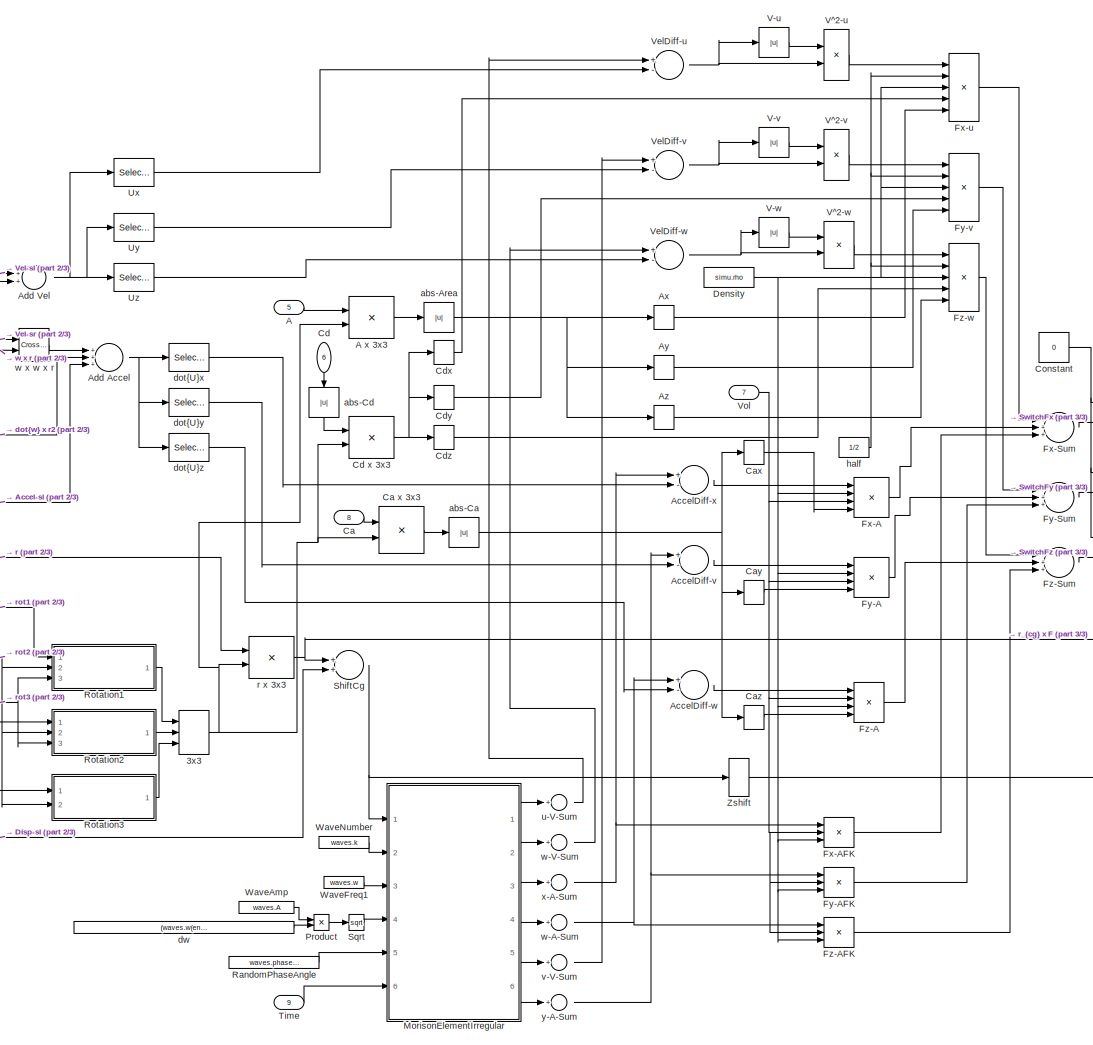
[diagram: Rigid Body1/Hydrodynamic Body/Morrison Element and ViscousDampingForceCalculation/Morrison Element Variant Subsystem/Morrison Element On/Irregular Wave Morison Force/MorrisonElements - part 1/3, center side, full height]
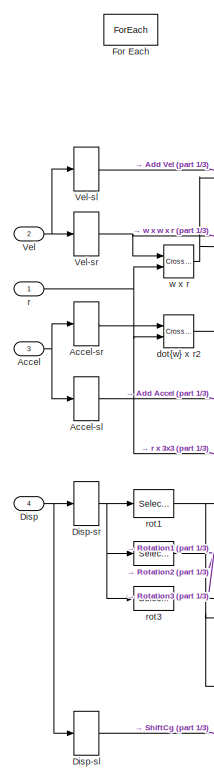
[diagram: Rigid Body1/Hydrodynamic Body/Morrison Element and ViscousDampingForceCalculation/Morrison Element Variant Subsystem/Morrison Element On/Irregular Wave Morison Force/MorrisonElements - part 2/3, middle left region]
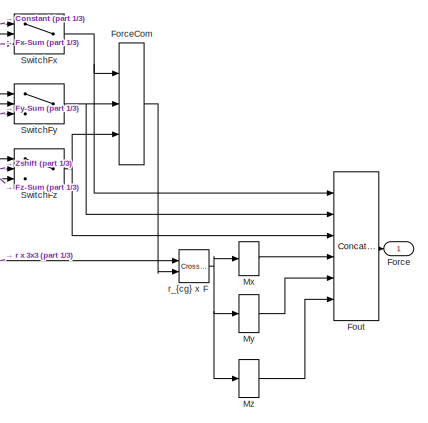
[diagram: Rigid Body1/Hydrodynamic Body/Morrison Element and ViscousDampingForceCalculation/Morrison Element Variant Subsystem/Morrison Element On/Irregular Wave Morison Force/MorrisonElements - part 3/3, middle right region]
BLOCK [SubSystem] Rigid Body1/Hydrodynamic Body/Morrison Element and ViscousDampingForceCalculation/Morrison Element Variant Subsystem/Morrison Element On/Irregular Wave Morison Force/MorrisonElements
  Ports = [9, 1]
  RequestExecContextInheritance = off
  TreatAsAtomicUnit = on
  Variant = off
BLOCK [Concatenate] Rigid Body1/Hydrodynamic Body/Morrison Element and ViscousDampingForceCalculation/Morrison Element Variant Subsystem/Morrison Element On/Irregular Wave Morison Force/MorrisonElements/3x3
  Mode = Multidimensional array
  NumInputs = 3
  Ports = [3, 1]
BLOCK [Inport] Rigid Body1/Hydrodynamic Body/Morrison Element and ViscousDampingForceCalculation/Morrison Element Variant Subsystem/Morrison Element On/Irregular Wave Morison Force/MorrisonElements/A
  IconDisplay = Port number
  Partition = on
  PartitionDimension = 1
  PartitionWidth = 1
  Port = 5
BLOCK [Product] Rigid Body1/Hydrodynamic Body/Morrison Element and ViscousDampingForceCalculation/Morrison Element Variant Subsystem/Morrison Element On/Irregular Wave Morison Force/MorrisonElements/A x 3x3
  InputSameDT = off
  Multiplication = Matrix(*)
  OutDataTypeStr = Inherit: Inherit via internal rule
  Ports = [2, 1]
  RndMeth = Floor
  SaturateOnIntegerOverflow = off
BLOCK [Inport] Rigid Body1/Hydrodynamic Body/Morrison Element and ViscousDampingForceCalculation/Morrison Element Variant Subsystem/Morrison Element On/Irregular Wave Morison Force/MorrisonElements/Accel
  IconDisplay = Port number
  Port = 3
BLOCK [Selector] Rigid Body1/Hydrodynamic Body/Morrison Element and ViscousDampingForceCalculation/Morrison Element Variant Subsystem/Morrison Element On/Irregular Wave Morison Force/MorrisonElements/Accel-sl
  IndexOptions = Index vector (dialog)
  Indices = [1 2 3]
  InputPortWidth = 6
  OutputSizes = 1
  Ports = [1, 1]
BLOCK [Selector] Rigid Body1/Hydrodynamic Body/Morrison Element and ViscousDampingForceCalculation/Morrison Element Variant Subsystem/Morrison Element On/Irregular Wave Morison Force/MorrisonElements/Accel-sr
  IndexOptions = Index vector (dialog)
  Indices = [4 5 6]
  InputPortWidth = 6
  OutputSizes = 1
  Ports = [1, 1]
BLOCK [Sum] Rigid Body1/Hydrodynamic Body/Morrison Element and ViscousDampingForceCalculation/Morrison Element Variant Subsystem/Morrison Element On/Irregular Wave Morison Force/MorrisonElements/AccelDiff-v
  InputSameDT = off
  Inputs = +-
  OutDataTypeStr = Inherit: Inherit via internal rule
  Ports = [2, 1]
  SaturateOnIntegerOverflow = off
BLOCK [Sum] Rigid Body1/Hydrodynamic Body/Morrison Element and ViscousDampingForceCalculation/Morrison Element Variant Subsystem/Morrison Element On/Irregular Wave Morison Force/MorrisonElements/AccelDiff-w
  InputSameDT = off
  Inputs = +-
  OutDataTypeStr = Inherit: Inherit via internal rule
  Ports = [2, 1]
  SaturateOnIntegerOverflow = off
BLOCK [Sum] Rigid Body1/Hydrodynamic Body/Morrison Element and ViscousDampingForceCalculation/Morrison Element Variant Subsystem/Morrison Element On/Irregular Wave Morison Force/MorrisonElements/AccelDiff-x
  InputSameDT = off
  Inputs = +-
  OutDataTypeStr = Inherit: Inherit via internal rule
  Ports = [2, 1]
  SaturateOnIntegerOverflow = off
BLOCK [Sum] Rigid Body1/Hydrodynamic Body/Morrison Element and ViscousDampingForceCalculation/Morrison Element Variant Subsystem/Morrison Element On/Irregular Wave Morison Force/MorrisonElements/Add Accel
  InputSameDT = off
  Inputs = +++
  OutDataTypeStr = Inherit: Inherit via internal rule
  Ports = [3, 1]
  SaturateOnIntegerOverflow = off
BLOCK [Sum] Rigid Body1/Hydrodynamic Body/Morrison Element and ViscousDampingForceCalculation/Morrison Element Variant Subsystem/Morrison Element On/Irregular Wave Morison Force/MorrisonElements/Add Vel
  InputSameDT = off
  OutDataTypeStr = Inherit: Inherit via internal rule
  Ports = [2, 1]
  SaturateOnIntegerOverflow = off
BLOCK [Selector] Rigid Body1/Hydrodynamic Body/Morrison Element and ViscousDampingForceCalculation/Morrison Element Variant Subsystem/Morrison Element On/Irregular Wave Morison Force/MorrisonElements/Ax
  IndexOptions = Index vector (dialog)
  Indices = [1]
  InputPortWidth = 3
  OutputSizes = 1
  Ports = [1, 1]
BLOCK [Selector] Rigid Body1/Hydrodynamic Body/Morrison Element and ViscousDampingForceCalculation/Morrison Element Variant Subsystem/Morrison Element On/Irregular Wave Morison Force/MorrisonElements/Ay
  IndexOptions = Index vector (dialog)
  Indices = [2]
  InputPortWidth = 3
  OutputSizes = 1
  Ports = [1, 1]
BLOCK [Selector] Rigid Body1/Hydrodynamic Body/Morrison Element and ViscousDampingForceCalculation/Morrison Element Variant Subsystem/Morrison Element On/Irregular Wave Morison Force/MorrisonElements/Az
  IndexOptions = Index vector (dialog)
  Indices = [3]
  InputPortWidth = 3
  OutputSizes = 1
  Ports = [1, 1]
BLOCK [Inport] Rigid Body1/Hydrodynamic Body/Morrison Element and ViscousDampingForceCalculation/Morrison Element Variant Subsystem/Morrison Element On/Irregular Wave Morison Force/MorrisonElements/Ca
  IconDisplay = Port number
  Partition = on
  PartitionDimension = 1
  PartitionWidth = 1
  Port = 8
BLOCK [Product] Rigid Body1/Hydrodynamic Body/Morrison Element and ViscousDampingForceCalculation/Morrison Element Variant Subsystem/Morrison Element On/Irregular Wave Morison Force/MorrisonElements/Ca x 3x3
  InputSameDT = off
  Multiplication = Matrix(*)
  OutDataTypeStr = Inherit: Inherit via internal rule
  Ports = [2, 1]
  RndMeth = Floor
  SaturateOnIntegerOverflow = off
BLOCK [Selector] Rigid Body1/Hydrodynamic Body/Morrison Element and ViscousDampingForceCalculation/Morrison Element Variant Subsystem/Morrison Element On/Irregular Wave Morison Force/MorrisonElements/Cax
  IndexOptions = Index vector (dialog)
  Indices = [1]
  InputPortWidth = 3
  OutputSizes = 1
  Ports = [1, 1]
BLOCK [Selector] Rigid Body1/Hydrodynamic Body/Morrison Element and ViscousDampingForceCalculation/Morrison Element Variant Subsystem/Morrison Element On/Irregular Wave Morison Force/MorrisonElements/Cay
  IndexOptions = Index vector (dialog)
  Indices = [2]
  InputPortWidth = 3
  OutputSizes = 1
  Ports = [1, 1]
BLOCK [Selector] Rigid Body1/Hydrodynamic Body/Morrison Element and ViscousDampingForceCalculation/Morrison Element Variant Subsystem/Morrison Element On/Irregular Wave Morison Force/MorrisonElements/Caz
  IndexOptions = Index vector (dialog)
  Indices = [3]
  InputPortWidth = 3
  OutputSizes = 1
  Ports = [1, 1]
BLOCK [Inport] Rigid Body1/Hydrodynamic Body/Morrison Element and ViscousDampingForceCalculation/Morrison Element Variant Subsystem/Morrison Element On/Irregular Wave Morison Force/MorrisonElements/Cd
  IconDisplay = Port number
  Partition = on
  PartitionDimension = 1
  PartitionWidth = 1
  Port = 6
BLOCK [Product] Rigid Body1/Hydrodynamic Body/Morrison Element and ViscousDampingForceCalculation/Morrison Element Variant Subsystem/Morrison Element On/Irregular Wave Morison Force/MorrisonElements/Cd x 3x3
  InputSameDT = off
  Multiplication = Matrix(*)
  OutDataTypeStr = Inherit: Inherit via internal rule
  Ports = [2, 1]
  RndMeth = Floor
  SaturateOnIntegerOverflow = off
BLOCK [Selector] Rigid Body1/Hydrodynamic Body/Morrison Element and ViscousDampingForceCalculation/Morrison Element Variant Subsystem/Morrison Element On/Irregular Wave Morison Force/MorrisonElements/Cdx
  IndexOptions = Index vector (dialog)
  Indices = [1]
  InputPortWidth = 3
  OutputSizes = 1
  Ports = [1, 1]
BLOCK [Selector] Rigid Body1/Hydrodynamic Body/Morrison Element and ViscousDampingForceCalculation/Morrison Element Variant Subsystem/Morrison Element On/Irregular Wave Morison Force/MorrisonElements/Cdy
  IndexOptions = Index vector (dialog)
  Indices = [2]
  InputPortWidth = 3
  OutputSizes = 1
  Ports = [1, 1]
BLOCK [Selector] Rigid Body1/Hydrodynamic Body/Morrison Element and ViscousDampingForceCalculation/Morrison Element Variant Subsystem/Morrison Element On/Irregular Wave Morison Force/MorrisonElements/Cdz
  IndexOptions = Index vector (dialog)
  Indices = [3]
  InputPortWidth = 3
  OutputSizes = 1
  Ports = [1, 1]
BLOCK [Constant] Rigid Body1/Hydrodynamic Body/Morrison Element and ViscousDampingForceCalculation/Morrison Element Variant Subsystem/Morrison Element On/Irregular Wave Morison Force/MorrisonElements/Constant
  Value = 0
BLOCK [Constant] Rigid Body1/Hydrodynamic Body/Morrison Element and ViscousDampingForceCalculation/Morrison Element Variant Subsystem/Morrison Element On/Irregular Wave Morison Force/MorrisonElements/Density
  Value = simu.rho
BLOCK [Inport] Rigid Body1/Hydrodynamic Body/Morrison Element and ViscousDampingForceCalculation/Morrison Element Variant Subsystem/Morrison Element On/Irregular Wave Morison Force/MorrisonElements/Disp
  IconDisplay = Port number
  Port = 4
BLOCK [Selector] Rigid Body1/Hydrodynamic Body/Morrison Element and ViscousDampingForceCalculation/Morrison Element Variant Subsystem/Morrison Element On/Irregular Wave Morison Force/MorrisonElements/Disp-sl
  IndexOptions = Index vector (dialog)
  Indices = [1 2 3]
  InputPortWidth = 6
  OutputSizes = 1
  Ports = [1, 1]
BLOCK [Selector] Rigid Body1/Hydrodynamic Body/Morrison Element and ViscousDampingForceCalculation/Morrison Element Variant Subsystem/Morrison Element On/Irregular Wave Morison Force/MorrisonElements/Disp-sr
  IndexOptions = Index vector (dialog)
  Indices = [4 5 6]
  InputPortWidth = 6
  OutputSizes = 1
  Ports = [1, 1]
BLOCK [ForEach] Rigid Body1/Hydrodynamic Body/Morrison Element and ViscousDampingForceCalculation/Morrison Element Variant Subsystem/Morrison Element On/Irregular Wave Morison Force/MorrisonElements/For Each
  DisableCoverage = on
  IndexMode = One-based
  Ports = []
BLOCK [Outport] Rigid Body1/Hydrodynamic Body/Morrison Element and ViscousDampingForceCalculation/Morrison Element Variant Subsystem/Morrison Element On/Irregular Wave Morison Force/MorrisonElements/Force
  ConcatenationDimension = 1
  IconDisplay = Port number
  PortDimensions = [1 6]
BLOCK [Concatenate] Rigid Body1/Hydrodynamic Body/Morrison Element and ViscousDampingForceCalculation/Morrison Element Variant Subsystem/Morrison Element On/Irregular Wave Morison Force/MorrisonElements/ForceCom
  ConcatenateDimension = 2
  NumInputs = 3
  Ports = [3, 1]
BLOCK [Concatenate] Rigid Body1/Hydrodynamic Body/Morrison Element and ViscousDampingForceCalculation/Morrison Element Variant Subsystem/Morrison Element On/Irregular Wave Morison Force/MorrisonElements/Fout
  ConcatenateDimension = 2
  Mode = Multidimensional array
  NumInputs = 6
  Ports = [6, 1]
BLOCK [Product] Rigid Body1/Hydrodynamic Body/Morrison Element and ViscousDampingForceCalculation/Morrison Element Variant Subsystem/Morrison Element On/Irregular Wave Morison Force/MorrisonElements/Fx-A
  InputSameDT = off
  Inputs = 4
  OutDataTypeStr = Inherit: Inherit via internal rule
  Ports = [4, 1]
  RndMeth = Floor
  SaturateOnIntegerOverflow = off
BLOCK [Product] Rigid Body1/Hydrodynamic Body/Morrison Element and ViscousDampingForceCalculation/Morrison Element Variant Subsystem/Morrison Element On/Irregular Wave Morison Force/MorrisonElements/Fx-AFK
  InputSameDT = off
  Inputs = 3
  OutDataTypeStr = Inherit: Inherit via internal rule
  Ports = [3, 1]
  RndMeth = Floor
  SaturateOnIntegerOverflow = off
BLOCK [Sum] Rigid Body1/Hydrodynamic Body/Morrison Element and ViscousDampingForceCalculation/Morrison Element Variant Subsystem/Morrison Element On/Irregular Wave Morison Force/MorrisonElements/Fx-Sum
  InputSameDT = off
  Inputs = +++
  OutDataTypeStr = Inherit: Inherit via internal rule
  Ports = [3, 1]
  SaturateOnIntegerOverflow = off
BLOCK [Product] Rigid Body1/Hydrodynamic Body/Morrison Element and ViscousDampingForceCalculation/Morrison Element Variant Subsystem/Morrison Element On/Irregular Wave Morison Force/MorrisonElements/Fx-u
  InputSameDT = off
  Inputs = 5
  OutDataTypeStr = Inherit: Inherit via internal rule
  Ports = [5, 1]
  RndMeth = Floor
  SaturateOnIntegerOverflow = off
BLOCK [Product] Rigid Body1/Hydrodynamic Body/Morrison Element and ViscousDampingForceCalculation/Morrison Element Variant Subsystem/Morrison Element On/Irregular Wave Morison Force/MorrisonElements/Fy-A
  InputSameDT = off
  Inputs = 4
  OutDataTypeStr = Inherit: Inherit via internal rule
  Ports = [4, 1]
  RndMeth = Floor
  SaturateOnIntegerOverflow = off
BLOCK [Product] Rigid Body1/Hydrodynamic Body/Morrison Element and ViscousDampingForceCalculation/Morrison Element Variant Subsystem/Morrison Element On/Irregular Wave Morison Force/MorrisonElements/Fy-AFK
  InputSameDT = off
  Inputs = 3
  OutDataTypeStr = Inherit: Inherit via internal rule
  Ports = [3, 1]
  RndMeth = Floor
  SaturateOnIntegerOverflow = off
BLOCK [Sum] Rigid Body1/Hydrodynamic Body/Morrison Element and ViscousDampingForceCalculation/Morrison Element Variant Subsystem/Morrison Element On/Irregular Wave Morison Force/MorrisonElements/Fy-Sum
  InputSameDT = off
  Inputs = +++
  OutDataTypeStr = Inherit: Inherit via internal rule
  Ports = [3, 1]
  SaturateOnIntegerOverflow = off
BLOCK [Product] Rigid Body1/Hydrodynamic Body/Morrison Element and ViscousDampingForceCalculation/Morrison Element Variant Subsystem/Morrison Element On/Irregular Wave Morison Force/MorrisonElements/Fy-v
  InputSameDT = off
  Inputs = 5
  OutDataTypeStr = Inherit: Inherit via internal rule
  Ports = [5, 1]
  RndMeth = Floor
  SaturateOnIntegerOverflow = off
BLOCK [Product] Rigid Body1/Hydrodynamic Body/Morrison Element and ViscousDampingForceCalculation/Morrison Element Variant Subsystem/Morrison Element On/Irregular Wave Morison Force/MorrisonElements/Fz-A
  InputSameDT = off
  Inputs = 4
  OutDataTypeStr = Inherit: Inherit via internal rule
  Ports = [4, 1]
  RndMeth = Floor
  SaturateOnIntegerOverflow = off
BLOCK [Product] Rigid Body1/Hydrodynamic Body/Morrison Element and ViscousDampingForceCalculation/Morrison Element Variant Subsystem/Morrison Element On/Irregular Wave Morison Force/MorrisonElements/Fz-AFK
  InputSameDT = off
  Inputs = 3
  OutDataTypeStr = Inherit: Inherit via internal rule
  Ports = [3, 1]
  RndMeth = Floor
  SaturateOnIntegerOverflow = off
BLOCK [Sum] Rigid Body1/Hydrodynamic Body/Morrison Element and ViscousDampingForceCalculation/Morrison Element Variant Subsystem/Morrison Element On/Irregular Wave Morison Force/MorrisonElements/Fz-Sum
  InputSameDT = off
  Inputs = +++
  OutDataTypeStr = Inherit: Inherit via internal rule
  Ports = [3, 1]
  SaturateOnIntegerOverflow = off
BLOCK [Product] Rigid Body1/Hydrodynamic Body/Morrison Element and ViscousDampingForceCalculation/Morrison Element Variant Subsystem/Morrison Element On/Irregular Wave Morison Force/MorrisonElements/Fz-w
  InputSameDT = off
  Inputs = 5
  OutDataTypeStr = Inherit: Inherit via internal rule
  Ports = [5, 1]
  RndMeth = Floor
  SaturateOnIntegerOverflow = off
BLOCK [SubSystem] Rigid Body1/Hydrodynamic Body/Morrison Element and ViscousDampingForceCalculation/Morrison Element Variant Subsystem/Morrison Element On/Irregular Wave Morison Force/MorrisonElements/MorisonElementIrregular
  Ports = [6, 6]
  RequestExecContextInheritance = off
  TreatAsAtomicUnit = on
  Variant = off
BLOCK [Inport] Rigid Body1/Hydrodynamic Body/Morrison Element and ViscousDampingForceCalculation/Morrison Element Variant Subsystem/Morrison Element On/Irregular Wave Morison Force/MorrisonElements/MorisonElementIrregular/Disp
  IconDisplay = Port number
BLOCK [ForEach] Rigid Body1/Hydrodynamic Body/Morrison Element and ViscousDampingForceCalculation/Morrison Element Variant Subsystem/Morrison Element On/Irregular Wave Morison Force/MorrisonElements/MorisonElementIrregular/For Each
  DisableCoverage = on
  IndexMode = One-based
  Ports = []
BLOCK [SubSystem] Rigid Body1/Hydrodynamic Body/Morrison Element and ViscousDampingForceCalculation/Morrison Element Variant Subsystem/Morrison Element On/Irregular Wave Morison Force/MorrisonElements/MorisonElementIrregular/MATLAB Function
  ErrorFcn = Stateflow.Translate.translate
  PermitHierarchicalResolution = ExplicitOnly
  Ports = [10, 6]
  RequestExecContextInheritance = off
  SFBlockType = MATLAB Function
  TreatAsAtomicUnit = on
  Variant = off
BLOCK [Demux] Rigid Body1/Hydrodynamic Body/Morrison Element and ViscousDampingForceCalculation/Morrison Element Variant Subsystem/Morrison Element On/Irregular Wave Morison Force/MorrisonElements/MorisonElementIrregular/MATLAB Function/ Demux 
  Outputs = 1
  Ports = [1, 1]
BLOCK [S-Function] Rigid Body1/Hydrodynamic Body/Morrison Element and ViscousDampingForceCalculation/Morrison Element Variant Subsystem/Morrison Element On/Irregular Wave Morison Force/MorrisonElements/MorisonElementIrregular/MATLAB Function/ SFunction 
  EnableBusSupport = on
  FunctionName = sf_sfun
  PortCounts = [10 7]
  Ports = [10, 7]
  SFunctionDeploymentMode = off
  Tag = Stateflow S-Function RM3ControlSim 6
BLOCK [Terminator] Rigid Body1/Hydrodynamic Body/Morrison Element and ViscousDampingForceCalculation/Morrison Element Variant Subsystem/Morrison Element On/Irregular Wave Morison Force/MorrisonElements/MorisonElementIrregular/MATLAB Function/ Terminator 
BLOCK [Inport] Rigid Body1/Hydrodynamic Body/Morrison Element and ViscousDampingForceCalculation/Morrison Element Variant Subsystem/Morrison Element On/Irregular Wave Morison Force/MorrisonElements/MorisonElementIrregular/MATLAB Function/disp
  IconDisplay = Port number
BLOCK [Inport] Rigid Body1/Hydrodynamic Body/Morrison Element and ViscousDampingForceCalculation/Morrison Element Variant Subsystem/Morrison Element On/Irregular Wave Morison Force/MorrisonElements/MorisonElementIrregular/MATLAB Function/g
  IconDisplay = Port number
  Port = 10
BLOCK [Inport] Rigid Body1/Hydrodynamic Body/Morrison Element and ViscousDampingForceCalculation/Morrison Element Variant Subsystem/Morrison Element On/Irregular Wave Morison Force/MorrisonElements/MorisonElementIrregular/MATLAB Function/rampT
  IconDisplay = Port number
  Port = 7
BLOCK [Inport] Rigid Body1/Hydrodynamic Body/Morrison Element and ViscousDampingForceCalculation/Morrison Element Variant Subsystem/Morrison Element On/Irregular Wave Morison Force/MorrisonElements/MorisonElementIrregular/MATLAB Function/randPhase
  IconDisplay = Port number
  Port = 5
BLOCK [Inport] Rigid Body1/Hydrodynamic Body/Morrison Element and ViscousDampingForceCalculation/Morrison Element Variant Subsystem/Morrison Element On/Irregular Wave Morison Force/MorrisonElements/MorisonElementIrregular/MATLAB Function/time
  IconDisplay = Port number
  Port = 6
BLOCK [Outport] Rigid Body1/Hydrodynamic Body/Morrison Element and ViscousDampingForceCalculation/Morrison Element Variant Subsystem/Morrison Element On/Irregular Wave Morison Force/MorrisonElements/MorisonElementIrregular/MATLAB Function/u
  IconDisplay = Port number
BLOCK [Outport] Rigid Body1/Hydrodynamic Body/Morrison Element and ViscousDampingForceCalculation/Morrison Element Variant Subsystem/Morrison Element On/Irregular Wave Morison Force/MorrisonElements/MorisonElementIrregular/MATLAB Function/v
  IconDisplay = Port number
  Port = 2
BLOCK [Outport] Rigid Body1/Hydrodynamic Body/Morrison Element and ViscousDampingForceCalculation/Morrison Element Variant Subsystem/Morrison Element On/Irregular Wave Morison Force/MorrisonElements/MorisonElementIrregular/MATLAB Function/w
  IconDisplay = Port number
  Port = 3
BLOCK [Inport] Rigid Body1/Hydrodynamic Body/Morrison Element and ViscousDampingForceCalculation/Morrison Element Variant Subsystem/Morrison Element On/Irregular Wave Morison Force/MorrisonElements/MorisonElementIrregular/MATLAB Function/waterDepth
  IconDisplay = Port number
  Port = 9
BLOCK [Inport] Rigid Body1/Hydrodynamic Body/Morrison Element and ViscousDampingForceCalculation/Morrison Element Variant Subsystem/Morrison Element On/Irregular Wave Morison Force/MorrisonElements/MorisonElementIrregular/MATLAB Function/waveAmp
  IconDisplay = Port number
  Port = 4
BLOCK [Inport] Rigid Body1/Hydrodynamic Body/Morrison Element and ViscousDampingForceCalculation/Morrison Element Variant Subsystem/Morrison Element On/Irregular Wave Morison Force/MorrisonElements/MorisonElementIrregular/MATLAB Function/waveDir
  IconDisplay = Port number
  Port = 8
BLOCK [Inport] Rigid Body1/Hydrodynamic Body/Morrison Element and ViscousDampingForceCalculation/Morrison Element Variant Subsystem/Morrison Element On/Irregular Wave Morison Force/MorrisonElements/MorisonElementIrregular/MATLAB Function/waveFreq
  IconDisplay = Port number
  Port = 3
BLOCK [Inport] Rigid Body1/Hydrodynamic Body/Morrison Element and ViscousDampingForceCalculation/Morrison Element Variant Subsystem/Morrison Element On/Irregular Wave Morison Force/MorrisonElements/MorisonElementIrregular/MATLAB Function/waveNumber
  IconDisplay = Port number
  Port = 2
BLOCK [Outport] Rigid Body1/Hydrodynamic Body/Morrison Element and ViscousDampingForceCalculation/Morrison Element Variant Subsystem/Morrison Element On/Irregular Wave Morison Force/MorrisonElements/MorisonElementIrregular/MATLAB Function/xa
  IconDisplay = Port number
  Port = 4
BLOCK [Outport] Rigid Body1/Hydrodynamic Body/Morrison Element and ViscousDampingForceCalculation/Morrison Element Variant Subsystem/Morrison Element On/Irregular Wave Morison Force/MorrisonElements/MorisonElementIrregular/MATLAB Function/ya
  IconDisplay = Port number
  Port = 5
BLOCK [Outport] Rigid Body1/Hydrodynamic Body/Morrison Element and ViscousDampingForceCalculation/Morrison Element Variant Subsystem/Morrison Element On/Irregular Wave Morison Force/MorrisonElements/MorisonElementIrregular/MATLAB Function/za
  IconDisplay = Port number
  Port = 6
BLOCK [Inport] Rigid Body1/Hydrodynamic Body/Morrison Element and ViscousDampingForceCalculation/Morrison Element Variant Subsystem/Morrison Element On/Irregular Wave Morison Force/MorrisonElements/MorisonElementIrregular/Time
  IconDisplay = Port number
  Port = 6
BLOCK [Constant] Rigid Body1/Hydrodynamic Body/Morrison Element and ViscousDampingForceCalculation/Morrison Element Variant Subsystem/Morrison Element On/Irregular Wave Morison Force/MorrisonElements/MorisonElementIrregular/gravity
  Value = simu.g
  VectorParams1D = off
BLOCK [Constant] Rigid Body1/Hydrodynamic Body/Morrison Element and ViscousDampingForceCalculation/Morrison Element Variant Subsystem/Morrison Element On/Irregular Wave Morison Force/MorrisonElements/MorisonElementIrregular/rampTime
  Value = simu.rampTime
  VectorParams1D = off
BLOCK [Outport] Rigid Body1/Hydrodynamic Body/Morrison Element and ViscousDampingForceCalculation/Morrison Element Variant Subsystem/Morrison Element On/Irregular Wave Morison Force/MorrisonElements/MorisonElementIrregular/u-V
  ConcatenationDimension = 1
  IconDisplay = Port number
BLOCK [Outport] Rigid Body1/Hydrodynamic Body/Morrison Element and ViscousDampingForceCalculation/Morrison Element Variant Subsystem/Morrison Element On/Irregular Wave Morison Force/MorrisonElements/MorisonElementIrregular/v-V
  ConcatenationDimension = 1
  IconDisplay = Port number
  Port = 5
BLOCK [Outport] Rigid Body1/Hydrodynamic Body/Morrison Element and ViscousDampingForceCalculation/Morrison Element Variant Subsystem/Morrison Element On/Irregular Wave Morison Force/MorrisonElements/MorisonElementIrregular/w-A
  ConcatenationDimension = 1
  IconDisplay = Port number
  Port = 4
BLOCK [Outport] Rigid Body1/Hydrodynamic Body/Morrison Element and ViscousDampingForceCalculation/Morrison Element Variant Subsystem/Morrison Element On/Irregular Wave Morison Force/MorrisonElements/MorisonElementIrregular/w-V
  ConcatenationDimension = 1
  IconDisplay = Port number
  Port = 2
BLOCK [Constant] Rigid Body1/Hydrodynamic Body/Morrison Element and ViscousDampingForceCalculation/Morrison Element Variant Subsystem/Morrison Element On/Irregular Wave Morison Force/MorrisonElements/MorisonElementIrregular/waterDepth
  Value = waves.waterDepth
  VectorParams1D = off
BLOCK [Constant] Rigid Body1/Hydrodynamic Body/Morrison Element and ViscousDampingForceCalculation/Morrison Element Variant Subsystem/Morrison Element On/Irregular Wave Morison Force/MorrisonElements/MorisonElementIrregular/waveDirection
  Value = waves.waveDir
  VectorParams1D = off
BLOCK [Inport] Rigid Body1/Hydrodynamic Body/Morrison Element and ViscousDampingForceCalculation/Morrison Element Variant Subsystem/Morrison Element On/Irregular Wave Morison Force/MorrisonElements/MorisonElementIrregular/waves.A
  IconDisplay = Port number
  Partition = on
  PartitionDimension = 1
  PartitionWidth = 1
  Port = 4
BLOCK [Inport] Rigid Body1/Hydrodynamic Body/Morrison Element and ViscousDampingForceCalculation/Morrison Element Variant Subsystem/Morrison Element On/Irregular Wave Morison Force/MorrisonElements/MorisonElementIrregular/waves.RandPhase
  IconDisplay = Port number
  Partition = on
  PartitionDimension = 1
  PartitionWidth = 1
  Port = 5
BLOCK [Inport] Rigid Body1/Hydrodynamic Body/Morrison Element and ViscousDampingForceCalculation/Morrison Element Variant Subsystem/Morrison Element On/Irregular Wave Morison Force/MorrisonElements/MorisonElementIrregular/waves.kirr
  IconDisplay = Port number
  Partition = on
  PartitionDimension = 1
  PartitionWidth = 1
  Port = 2
BLOCK [Inport] Rigid Body1/Hydrodynamic Body/Morrison Element and ViscousDampingForceCalculation/Morrison Element Variant Subsystem/Morrison Element On/Irregular Wave Morison Force/MorrisonElements/MorisonElementIrregular/waves.w
  IconDisplay = Port number
  Partition = on
  PartitionDimension = 1
  PartitionWidth = 1
  Port = 3
BLOCK [Outport] Rigid Body1/Hydrodynamic Body/Morrison Element and ViscousDampingForceCalculation/Morrison Element Variant Subsystem/Morrison Element On/Irregular Wave Morison Force/MorrisonElements/MorisonElementIrregular/x-A
  ConcatenationDimension = 1
  IconDisplay = Port number
  Port = 3
BLOCK [Outport] Rigid Body1/Hydrodynamic Body/Morrison Element and ViscousDampingForceCalculation/Morrison Element Variant Subsystem/Morrison Element On/Irregular Wave Morison Force/MorrisonElements/MorisonElementIrregular/y-A
  ConcatenationDimension = 1
  IconDisplay = Port number
  Port = 6
BLOCK [Selector] Rigid Body1/Hydrodynamic Body/Morrison Element and ViscousDampingForceCalculation/Morrison Element Variant Subsystem/Morrison Element On/Irregular Wave Morison Force/MorrisonElements/Mx
  IndexOptions = Index vector (dialog)
  Indices = [1]
  InputPortWidth = 3
  OutputSizes = 1
  Ports = [1, 1]
BLOCK [Selector] Rigid Body1/Hydrodynamic Body/Morrison Element and ViscousDampingForceCalculation/Morrison Element Variant Subsystem/Morrison Element On/Irregular Wave Morison Force/MorrisonElements/My
  IndexOptions = Index vector (dialog)
  Indices = [2]
  InputPortWidth = 3
  OutputSizes = 1
  Ports = [1, 1]
BLOCK [Selector] Rigid Body1/Hydrodynamic Body/Morrison Element and ViscousDampingForceCalculation/Morrison Element Variant Subsystem/Morrison Element On/Irregular Wave Morison Force/MorrisonElements/Mz
  IndexOptions = Index vector (dialog)
  Indices = [3]
  InputPortWidth = 3
  OutputSizes = 1
  Ports = [1, 1]
BLOCK [Product] Rigid Body1/Hydrodynamic Body/Morrison Element and ViscousDampingForceCalculation/Morrison Element Variant Subsystem/Morrison Element On/Irregular Wave Morison Force/MorrisonElements/Product
  InputSameDT = off
  OutDataTypeStr = Inherit: Inherit via internal rule
  Ports = [2, 1]
  RndMeth = Floor
  SaturateOnIntegerOverflow = off
BLOCK [Constant] Rigid Body1/Hydrodynamic Body/Morrison Element and ViscousDampingForceCalculation/Morrison Element Variant Subsystem/Morrison Element On/Irregular Wave Morison Force/MorrisonElements/RandomPhaseAngle
  Value = waves.phaseRand
  VectorParams1D = off
BLOCK [SubSystem] Rigid Body1/Hydrodynamic Body/Morrison Element and ViscousDampingForceCalculation/Morrison Element Variant Subsystem/Morrison Element On/Irregular Wave Morison Force/MorrisonElements/Rotation1
  Ports = [3, 1]
  RequestExecContextInheritance = off
  Variant = off
BLOCK [Product] Rigid Body1/Hydrodynamic Body/Morrison Element and ViscousDampingForceCalculation/Morrison Element Variant Subsystem/Morrison Element On/Irregular Wave Morison Force/MorrisonElements/Rotation1/2
  InputSameDT = off
  OutDataTypeStr = Inherit: Inherit via internal rule
  Ports = [2, 1]
  RndMeth = Floor
  SaturateOnIntegerOverflow = off
BLOCK [Product] Rigid Body1/Hydrodynamic Body/Morrison Element and ViscousDampingForceCalculation/Morrison Element Variant Subsystem/Morrison Element On/Irregular Wave Morison Force/MorrisonElements/Rotation1/3
  InputSameDT = off
  Inputs = 3
  OutDataTypeStr = Inherit: Inherit via internal rule
  Ports = [3, 1]
  RndMeth = Floor
  SaturateOnIntegerOverflow = off
BLOCK [Product] Rigid Body1/Hydrodynamic Body/Morrison Element and ViscousDampingForceCalculation/Morrison Element Variant Subsystem/Morrison Element On/Irregular Wave Morison Force/MorrisonElements/Rotation1/7
  InputSameDT = off
  OutDataTypeStr = Inherit: Inherit via internal rule
  Ports = [2, 1]
  RndMeth = Floor
  SaturateOnIntegerOverflow = off
BLOCK [Product] Rigid Body1/Hydrodynamic Body/Morrison Element and ViscousDampingForceCalculation/Morrison Element Variant Subsystem/Morrison Element On/Irregular Wave Morison Force/MorrisonElements/Rotation1/8
  InputSameDT = off
  Inputs = 3
  OutDataTypeStr = Inherit: Inherit via internal rule
  Ports = [3, 1]
  RndMeth = Floor
  SaturateOnIntegerOverflow = off
BLOCK [Concatenate] Rigid Body1/Hydrodynamic Body/Morrison Element and ViscousDampingForceCalculation/Morrison Element Variant Subsystem/Morrison Element On/Irregular Wave Morison Force/MorrisonElements/Rotation1/Combine
  ConcatenateDimension = 2
  Mode = Multidimensional array
  NumInputs = 3
  Ports = [3, 1]
BLOCK [Trigonometry] Rigid Body1/Hydrodynamic Body/Morrison Element and ViscousDampingForceCalculation/Morrison Element Variant Subsystem/Morrison Element On/Irregular Wave Morison Force/MorrisonElements/Rotation1/Trigonometric Function
  Operator = cos
  Ports = [1, 1]
BLOCK [Trigonometry] Rigid Body1/Hydrodynamic Body/Morrison Element and ViscousDampingForceCalculation/Morrison Element Variant Subsystem/Morrison Element On/Irregular Wave Morison Force/MorrisonElements/Rotation1/Trigonometric Function1
  Operator = cos
  Ports = [1, 1]
BLOCK [Trigonometry] Rigid Body1/Hydrodynamic Body/Morrison Element and ViscousDampingForceCalculation/Morrison Element Variant Subsystem/Morrison Element On/Irregular Wave Morison Force/MorrisonElements/Rotation1/Trigonometric Function10
  Ports = [1, 1]
BLOCK [Trigonometry] Rigid Body1/Hydrodynamic Body/Morrison Element and ViscousDampingForceCalculation/Morrison Element Variant Subsystem/Morrison Element On/Irregular Wave Morison Force/MorrisonElements/Rotation1/Trigonometric Function11
  Operator = cos
  Ports = [1, 1]
BLOCK [Trigonometry] Rigid Body1/Hydrodynamic Body/Morrison Element and ViscousDampingForceCalculation/Morrison Element Variant Subsystem/Morrison Element On/Irregular Wave Morison Force/MorrisonElements/Rotation1/Trigonometric Function2
  Operator = cos
  Ports = [1, 1]
BLOCK [Trigonometry] Rigid Body1/Hydrodynamic Body/Morrison Element and ViscousDampingForceCalculation/Morrison Element Variant Subsystem/Morrison Element On/Irregular Wave Morison Force/MorrisonElements/Rotation1/Trigonometric Function3
  Ports = [1, 1]
BLOCK [Trigonometry] Rigid Body1/Hydrodynamic Body/Morrison Element and ViscousDampingForceCalculation/Morrison Element Variant Subsystem/Morrison Element On/Irregular Wave Morison Force/MorrisonElements/Rotation1/Trigonometric Function4
  Ports = [1, 1]
BLOCK [Trigonometry] Rigid Body1/Hydrodynamic Body/Morrison Element and ViscousDampingForceCalculation/Morrison Element Variant Subsystem/Morrison Element On/Irregular Wave Morison Force/MorrisonElements/Rotation1/Trigonometric Function5
  Ports = [1, 1]
BLOCK [Trigonometry] Rigid Body1/Hydrodynamic Body/Morrison Element and ViscousDampingForceCalculation/Morrison Element Variant Subsystem/Morrison Element On/Irregular Wave Morison Force/MorrisonElements/Rotation1/Trigonometric Function6
  Operator = cos
  Ports = [1, 1]
BLOCK [Trigonometry] Rigid Body1/Hydrodynamic Body/Morrison Element and ViscousDampingForceCalculation/Morrison Element Variant Subsystem/Morrison Element On/Irregular Wave Morison Force/MorrisonElements/Rotation1/Trigonometric Function7
  Ports = [1, 1]
BLOCK [Trigonometry] Rigid Body1/Hydrodynamic Body/Morrison Element and ViscousDampingForceCalculation/Morrison Element Variant Subsystem/Morrison Element On/Irregular Wave Morison Force/MorrisonElements/Rotation1/Trigonometric Function8
  Ports = [1, 1]
BLOCK [Trigonometry] Rigid Body1/Hydrodynamic Body/Morrison Element and ViscousDampingForceCalculation/Morrison Element Variant Subsystem/Morrison Element On/Irregular Wave Morison Force/MorrisonElements/Rotation1/Trigonometric Function9
  Operator = cos
  Ports = [1, 1]
BLOCK [Inport] Rigid Body1/Hydrodynamic Body/Morrison Element and ViscousDampingForceCalculation/Morrison Element Variant Subsystem/Morrison Element On/Irregular Wave Morison Force/MorrisonElements/Rotation1/rot1
  IconDisplay = Port number
BLOCK [Product] Rigid Body1/Hydrodynamic Body/Morrison Element and ViscousDampingForceCalculation/Morrison Element Variant Subsystem/Morrison Element On/Irregular Wave Morison Force/MorrisonElements/Rotation1/rot11
  InputSameDT = off
  OutDataTypeStr = Inherit: Inherit via internal rule
  Ports = [2, 1]
  RndMeth = Floor
  SaturateOnIntegerOverflow = off
BLOCK [Sum] Rigid Body1/Hydrodynamic Body/Morrison Element and ViscousDampingForceCalculation/Morrison Element Variant Subsystem/Morrison Element On/Irregular Wave Morison Force/MorrisonElements/Rotation1/rot12
  InputSameDT = off
  OutDataTypeStr = Inherit: Inherit via internal rule
  Ports = [2, 1]
  SaturateOnIntegerOverflow = off
BLOCK [Sum] Rigid Body1/Hydrodynamic Body/Morrison Element and ViscousDampingForceCalculation/Morrison Element Variant Subsystem/Morrison Element On/Irregular Wave Morison Force/MorrisonElements/Rotation1/rot13
  InputSameDT = off
  Inputs = +-
  OutDataTypeStr = Inherit: Inherit via internal rule
  Ports = [2, 1]
  SaturateOnIntegerOverflow = off
BLOCK [Inport] Rigid Body1/Hydrodynamic Body/Morrison Element and ViscousDampingForceCalculation/Morrison Element Variant Subsystem/Morrison Element On/Irregular Wave Morison Force/MorrisonElements/Rotation1/rot2
  IconDisplay = Port number
  Port = 2
BLOCK [Inport] Rigid Body1/Hydrodynamic Body/Morrison Element and ViscousDampingForceCalculation/Morrison Element Variant Subsystem/Morrison Element On/Irregular Wave Morison Force/MorrisonElements/Rotation1/rot3
  IconDisplay = Port number
  Port = 3
BLOCK [Outport] Rigid Body1/Hydrodynamic Body/Morrison Element and ViscousDampingForceCalculation/Morrison Element Variant Subsystem/Morrison Element On/Irregular Wave Morison Force/MorrisonElements/Rotation1/rot[1,1-3]
  IconDisplay = Port number
BLOCK [SubSystem] Rigid Body1/Hydrodynamic Body/Morrison Element and ViscousDampingForceCalculation/Morrison Element Variant Subsystem/Morrison Element On/Irregular Wave Morison Force/MorrisonElements/Rotation2
  Ports = [3, 1]
  RequestExecContextInheritance = off
  Variant = off
BLOCK [Product] Rigid Body1/Hydrodynamic Body/Morrison Element and ViscousDampingForceCalculation/Morrison Element Variant Subsystem/Morrison Element On/Irregular Wave Morison Force/MorrisonElements/Rotation2/2
  InputSameDT = off
  OutDataTypeStr = Inherit: Inherit via internal rule
  Ports = [2, 1]
  RndMeth = Floor
  SaturateOnIntegerOverflow = off
BLOCK [Product] Rigid Body1/Hydrodynamic Body/Morrison Element and ViscousDampingForceCalculation/Morrison Element Variant Subsystem/Morrison Element On/Irregular Wave Morison Force/MorrisonElements/Rotation2/3
  InputSameDT = off
  Inputs = 3
  OutDataTypeStr = Inherit: Inherit via internal rule
  Ports = [3, 1]
  RndMeth = Floor
  SaturateOnIntegerOverflow = off
BLOCK [Product] Rigid Body1/Hydrodynamic Body/Morrison Element and ViscousDampingForceCalculation/Morrison Element Variant Subsystem/Morrison Element On/Irregular Wave Morison Force/MorrisonElements/Rotation2/7
  InputSameDT = off
  OutDataTypeStr = Inherit: Inherit via internal rule
  Ports = [2, 1]
  RndMeth = Floor
  SaturateOnIntegerOverflow = off
BLOCK [Product] Rigid Body1/Hydrodynamic Body/Morrison Element and ViscousDampingForceCalculation/Morrison Element Variant Subsystem/Morrison Element On/Irregular Wave Morison Force/MorrisonElements/Rotation2/8
  InputSameDT = off
  Inputs = 3
  OutDataTypeStr = Inherit: Inherit via internal rule
  Ports = [3, 1]
  RndMeth = Floor
  SaturateOnIntegerOverflow = off
BLOCK [Concatenate] Rigid Body1/Hydrodynamic Body/Morrison Element and ViscousDampingForceCalculation/Morrison Element Variant Subsystem/Morrison Element On/Irregular Wave Morison Force/MorrisonElements/Rotation2/Combine
  ConcatenateDimension = 2
  Mode = Multidimensional array
  NumInputs = 3
  Ports = [3, 1]
BLOCK [Gain] Rigid Body1/Hydrodynamic Body/Morrison Element and ViscousDampingForceCalculation/Morrison Element Variant Subsystem/Morrison Element On/Irregular Wave Morison Force/MorrisonElements/Rotation2/Gain
  Gain = -1
  OutDataTypeStr = Inherit: Inherit via internal rule
  ParamDataTypeStr = Inherit: Inherit via internal rule
  SaturateOnIntegerOverflow = off
BLOCK [Trigonometry] Rigid Body1/Hydrodynamic Body/Morrison Element and ViscousDampingForceCalculation/Morrison Element Variant Subsystem/Morrison Element On/Irregular Wave Morison Force/MorrisonElements/Rotation2/Trigonometric Function
  Operator = cos
  Ports = [1, 1]
BLOCK [Trigonometry] Rigid Body1/Hydrodynamic Body/Morrison Element and ViscousDampingForceCalculation/Morrison Element Variant Subsystem/Morrison Element On/Irregular Wave Morison Force/MorrisonElements/Rotation2/Trigonometric Function1
  Ports = [1, 1]
BLOCK [Trigonometry] Rigid Body1/Hydrodynamic Body/Morrison Element and ViscousDampingForceCalculation/Morrison Element Variant Subsystem/Morrison Element On/Irregular Wave Morison Force/MorrisonElements/Rotation2/Trigonometric Function10
  Ports = [1, 1]
BLOCK [Trigonometry] Rigid Body1/Hydrodynamic Body/Morrison Element and ViscousDampingForceCalculation/Morrison Element Variant Subsystem/Morrison Element On/Irregular Wave Morison Force/MorrisonElements/Rotation2/Trigonometric Function11
  Ports = [1, 1]
BLOCK [Trigonometry] Rigid Body1/Hydrodynamic Body/Morrison Element and ViscousDampingForceCalculation/Morrison Element Variant Subsystem/Morrison Element On/Irregular Wave Morison Force/MorrisonElements/Rotation2/Trigonometric Function2
  Operator = cos
  Ports = [1, 1]
BLOCK [Trigonometry] Rigid Body1/Hydrodynamic Body/Morrison Element and ViscousDampingForceCalculation/Morrison Element Variant Subsystem/Morrison Element On/Irregular Wave Morison Force/MorrisonElements/Rotation2/Trigonometric Function3
  Operator = cos
  Ports = [1, 1]
BLOCK [Trigonometry] Rigid Body1/Hydrodynamic Body/Morrison Element and ViscousDampingForceCalculation/Morrison Element Variant Subsystem/Morrison Element On/Irregular Wave Morison Force/MorrisonElements/Rotation2/Trigonometric Function4
  Ports = [1, 1]
BLOCK [Trigonometry] Rigid Body1/Hydrodynamic Body/Morrison Element and ViscousDampingForceCalculation/Morrison Element Variant Subsystem/Morrison Element On/Irregular Wave Morison Force/MorrisonElements/Rotation2/Trigonometric Function5
  Ports = [1, 1]
BLOCK [Trigonometry] Rigid Body1/Hydrodynamic Body/Morrison Element and ViscousDampingForceCalculation/Morrison Element Variant Subsystem/Morrison Element On/Irregular Wave Morison Force/MorrisonElements/Rotation2/Trigonometric Function6
  Ports = [1, 1]
BLOCK [Trigonometry] Rigid Body1/Hydrodynamic Body/Morrison Element and ViscousDampingForceCalculation/Morrison Element Variant Subsystem/Morrison Element On/Irregular Wave Morison Force/MorrisonElements/Rotation2/Trigonometric Function7
  Ports = [1, 1]
BLOCK [Trigonometry] Rigid Body1/Hydrodynamic Body/Morrison Element and ViscousDampingForceCalculation/Morrison Element Variant Subsystem/Morrison Element On/Irregular Wave Morison Force/MorrisonElements/Rotation2/Trigonometric Function8
  Operator = cos
  Ports = [1, 1]
BLOCK [Trigonometry] Rigid Body1/Hydrodynamic Body/Morrison Element and ViscousDampingForceCalculation/Morrison Element Variant Subsystem/Morrison Element On/Irregular Wave Morison Force/MorrisonElements/Rotation2/Trigonometric Function9
  Operator = cos
  Ports = [1, 1]
BLOCK [Inport] Rigid Body1/Hydrodynamic Body/Morrison Element and ViscousDampingForceCalculation/Morrison Element Variant Subsystem/Morrison Element On/Irregular Wave Morison Force/MorrisonElements/Rotation2/rot1
  IconDisplay = Port number
BLOCK [Product] Rigid Body1/Hydrodynamic Body/Morrison Element and ViscousDampingForceCalculation/Morrison Element Variant Subsystem/Morrison Element On/Irregular Wave Morison Force/MorrisonElements/Rotation2/rot11
  InputSameDT = off
  OutDataTypeStr = Inherit: Inherit via internal rule
  Ports = [2, 1]
  RndMeth = Floor
  SaturateOnIntegerOverflow = off
BLOCK [Sum] Rigid Body1/Hydrodynamic Body/Morrison Element and ViscousDampingForceCalculation/Morrison Element Variant Subsystem/Morrison Element On/Irregular Wave Morison Force/MorrisonElements/Rotation2/rot12
  InputSameDT = off
  Inputs = +-
  OutDataTypeStr = Inherit: Inherit via internal rule
  Ports = [2, 1]
  SaturateOnIntegerOverflow = off
BLOCK [Sum] Rigid Body1/Hydrodynamic Body/Morrison Element and ViscousDampingForceCalculation/Morrison Element Variant Subsystem/Morrison Element On/Irregular Wave Morison Force/MorrisonElements/Rotation2/rot13
  InputSameDT = off
  OutDataTypeStr = Inherit: Inherit via internal rule
  Ports = [2, 1]
  SaturateOnIntegerOverflow = off
BLOCK [Inport] Rigid Body1/Hydrodynamic Body/Morrison Element and ViscousDampingForceCalculation/Morrison Element Variant Subsystem/Morrison Element On/Irregular Wave Morison Force/MorrisonElements/Rotation2/rot2
  IconDisplay = Port number
  Port = 2
BLOCK [Inport] Rigid Body1/Hydrodynamic Body/Morrison Element and ViscousDampingForceCalculation/Morrison Element Variant Subsystem/Morrison Element On/Irregular Wave Morison Force/MorrisonElements/Rotation2/rot3
  IconDisplay = Port number
  Port = 3
BLOCK [Outport] Rigid Body1/Hydrodynamic Body/Morrison Element and ViscousDampingForceCalculation/Morrison Element Variant Subsystem/Morrison Element On/Irregular Wave Morison Force/MorrisonElements/Rotation2/rot[2,1-3]
  IconDisplay = Port number
BLOCK [SubSystem] Rigid Body1/Hydrodynamic Body/Morrison Element and ViscousDampingForceCalculation/Morrison Element Variant Subsystem/Morrison Element On/Irregular Wave Morison Force/MorrisonElements/Rotation3
  Ports = [2, 1]
  RequestExecContextInheritance = off
  Variant = off
BLOCK [Product] Rigid Body1/Hydrodynamic Body/Morrison Element and ViscousDampingForceCalculation/Morrison Element Variant Subsystem/Morrison Element On/Irregular Wave Morison Force/MorrisonElements/Rotation3/2
  InputSameDT = off
  OutDataTypeStr = Inherit: Inherit via internal rule
  Ports = [2, 1]
  RndMeth = Floor
  SaturateOnIntegerOverflow = off
BLOCK [Product] Rigid Body1/Hydrodynamic Body/Morrison Element and ViscousDampingForceCalculation/Morrison Element Variant Subsystem/Morrison Element On/Irregular Wave Morison Force/MorrisonElements/Rotation3/7
  InputSameDT = off
  OutDataTypeStr = Inherit: Inherit via internal rule
  Ports = [2, 1]
  RndMeth = Floor
  SaturateOnIntegerOverflow = off
BLOCK [Concatenate] Rigid Body1/Hydrodynamic Body/Morrison Element and ViscousDampingForceCalculation/Morrison Element Variant Subsystem/Morrison Element On/Irregular Wave Morison Force/MorrisonElements/Rotation3/Combine
  ConcatenateDimension = 2
  Mode = Multidimensional array
  NumInputs = 3
  Ports = [3, 1]
BLOCK [Gain] Rigid Body1/Hydrodynamic Body/Morrison Element and ViscousDampingForceCalculation/Morrison Element Variant Subsystem/Morrison Element On/Irregular Wave Morison Force/MorrisonElements/Rotation3/Gain1
  Gain = -1
  OutDataTypeStr = Inherit: Inherit via internal rule
  ParamDataTypeStr = Inherit: Inherit via internal rule
  SaturateOnIntegerOverflow = off
BLOCK [Trigonometry] Rigid Body1/Hydrodynamic Body/Morrison Element and ViscousDampingForceCalculation/Morrison Element Variant Subsystem/Morrison Element On/Irregular Wave Morison Force/MorrisonElements/Rotation3/TrigFun1
  Ports = [1, 1]
BLOCK [Trigonometry] Rigid Body1/Hydrodynamic Body/Morrison Element and ViscousDampingForceCalculation/Morrison Element Variant Subsystem/Morrison Element On/Irregular Wave Morison Force/MorrisonElements/Rotation3/TrigFun2
  Ports = [1, 1]
BLOCK [Trigonometry] Rigid Body1/Hydrodynamic Body/Morrison Element and ViscousDampingForceCalculation/Morrison Element Variant Subsystem/Morrison Element On/Irregular Wave Morison Force/MorrisonElements/Rotation3/TrigFun3
  Operator = cos
  Ports = [1, 1]
BLOCK [Trigonometry] Rigid Body1/Hydrodynamic Body/Morrison Element and ViscousDampingForceCalculation/Morrison Element Variant Subsystem/Morrison Element On/Irregular Wave Morison Force/MorrisonElements/Rotation3/TrigFun4
  Operator = cos
  Ports = [1, 1]
BLOCK [Trigonometry] Rigid Body1/Hydrodynamic Body/Morrison Element and ViscousDampingForceCalculation/Morrison Element Variant Subsystem/Morrison Element On/Irregular Wave Morison Force/MorrisonElements/Rotation3/TrigFun5
  Operator = cos
  Ports = [1, 1]
BLOCK [Inport] Rigid Body1/Hydrodynamic Body/Morrison Element and ViscousDampingForceCalculation/Morrison Element Variant Subsystem/Morrison Element On/Irregular Wave Morison Force/MorrisonElements/Rotation3/rot1
  IconDisplay = Port number
BLOCK [Inport] Rigid Body1/Hydrodynamic Body/Morrison Element and ViscousDampingForceCalculation/Morrison Element Variant Subsystem/Morrison Element On/Irregular Wave Morison Force/MorrisonElements/Rotation3/rot2
  IconDisplay = Port number
  Port = 2
BLOCK [Outport] Rigid Body1/Hydrodynamic Body/Morrison Element and ViscousDampingForceCalculation/Morrison Element Variant Subsystem/Morrison Element On/Irregular Wave Morison Force/MorrisonElements/Rotation3/rot[3,1-3]
  IconDisplay = Port number
BLOCK [Sum] Rigid Body1/Hydrodynamic Body/Morrison Element and ViscousDampingForceCalculation/Morrison Element Variant Subsystem/Morrison Element On/Irregular Wave Morison Force/MorrisonElements/ShiftCg
  InputSameDT = off
  OutDataTypeStr = Inherit: Inherit via internal rule
  Ports = [2, 1]
  SaturateOnIntegerOverflow = off
BLOCK [Sqrt] Rigid Body1/Hydrodynamic Body/Morrison Element and ViscousDampingForceCalculation/Morrison Element Variant Subsystem/Morrison Element On/Irregular Wave Morison Force/MorrisonElements/Sqrt
BLOCK [Switch] Rigid Body1/Hydrodynamic Body/Morrison Element and ViscousDampingForceCalculation/Morrison Element Variant Subsystem/Morrison Element On/Irregular Wave Morison Force/MorrisonElements/SwitchFx
  Criteria = u2 > Threshold
  InputSameDT = off
  SaturateOnIntegerOverflow = off
BLOCK [Switch] Rigid Body1/Hydrodynamic Body/Morrison Element and ViscousDampingForceCalculation/Morrison Element Variant Subsystem/Morrison Element On/Irregular Wave Morison Force/MorrisonElements/SwitchFy
  Criteria = u2 > Threshold
  InputSameDT = off
  SaturateOnIntegerOverflow = off
BLOCK [Switch] Rigid Body1/Hydrodynamic Body/Morrison Element and ViscousDampingForceCalculation/Morrison Element Variant Subsystem/Morrison Element On/Irregular Wave Morison Force/MorrisonElements/SwitchFz
  Criteria = u2 > Threshold
  InputSameDT = off
  SaturateOnIntegerOverflow = off
BLOCK [Inport] Rigid Body1/Hydrodynamic Body/Morrison Element and ViscousDampingForceCalculation/Morrison Element Variant Subsystem/Morrison Element On/Irregular Wave Morison Force/MorrisonElements/Time
  IconDisplay = Port number
  Port = 9
BLOCK [Selector] Rigid Body1/Hydrodynamic Body/Morrison Element and ViscousDampingForceCalculation/Morrison Element Variant Subsystem/Morrison Element On/Irregular Wave Morison Force/MorrisonElements/Ux
  IndexOptions = Index vector (dialog)
  Indices = [1]
  InputPortWidth = 3
  OutputSizes = 1
  Ports = [1, 1]
BLOCK [Selector] Rigid Body1/Hydrodynamic Body/Morrison Element and ViscousDampingForceCalculation/Morrison Element Variant Subsystem/Morrison Element On/Irregular Wave Morison Force/MorrisonElements/Uy
  IndexOptions = Index vector (dialog)
  Indices = [2]
  InputPortWidth = 3
  OutputSizes = 1
  Ports = [1, 1]
BLOCK [Selector] Rigid Body1/Hydrodynamic Body/Morrison Element and ViscousDampingForceCalculation/Morrison Element Variant Subsystem/Morrison Element On/Irregular Wave Morison Force/MorrisonElements/Uz
  IndexOptions = Index vector (dialog)
  Indices = [3]
  InputPortWidth = 3
  OutputSizes = 1
  Ports = [1, 1]
BLOCK [Abs] Rigid Body1/Hydrodynamic Body/Morrison Element and ViscousDampingForceCalculation/Morrison Element Variant Subsystem/Morrison Element On/Irregular Wave Morison Force/MorrisonElements/V-u
  SaturateOnIntegerOverflow = off
BLOCK [Abs] Rigid Body1/Hydrodynamic Body/Morrison Element and ViscousDampingForceCalculation/Morrison Element Variant Subsystem/Morrison Element On/Irregular Wave Morison Force/MorrisonElements/V-v
  SaturateOnIntegerOverflow = off
BLOCK [Abs] Rigid Body1/Hydrodynamic Body/Morrison Element and ViscousDampingForceCalculation/Morrison Element Variant Subsystem/Morrison Element On/Irregular Wave Morison Force/MorrisonElements/V-w
  SaturateOnIntegerOverflow = off
BLOCK [Product] Rigid Body1/Hydrodynamic Body/Morrison Element and ViscousDampingForceCalculation/Morrison Element Variant Subsystem/Morrison Element On/Irregular Wave Morison Force/MorrisonElements/V^2-u
  InputSameDT = off
  OutDataTypeStr = Inherit: Inherit via internal rule
  Ports = [2, 1]
  RndMeth = Floor
  SaturateOnIntegerOverflow = off
BLOCK [Product] Rigid Body1/Hydrodynamic Body/Morrison Element and ViscousDampingForceCalculation/Morrison Element Variant Subsystem/Morrison Element On/Irregular Wave Morison Force/MorrisonElements/V^2-v
  InputSameDT = off
  OutDataTypeStr = Inherit: Inherit via internal rule
  Ports = [2, 1]
  RndMeth = Floor
  SaturateOnIntegerOverflow = off
BLOCK [Product] Rigid Body1/Hydrodynamic Body/Morrison Element and ViscousDampingForceCalculation/Morrison Element Variant Subsystem/Morrison Element On/Irregular Wave Morison Force/MorrisonElements/V^2-w
  InputSameDT = off
  OutDataTypeStr = Inherit: Inherit via internal rule
  Ports = [2, 1]
  RndMeth = Floor
  SaturateOnIntegerOverflow = off
BLOCK [Inport] Rigid Body1/Hydrodynamic Body/Morrison Element and ViscousDampingForceCalculation/Morrison Element Variant Subsystem/Morrison Element On/Irregular Wave Morison Force/MorrisonElements/Vel
  IconDisplay = Port number
  Port = 2
BLOCK [Selector] Rigid Body1/Hydrodynamic Body/Morrison Element and ViscousDampingForceCalculation/Morrison Element Variant Subsystem/Morrison Element On/Irregular Wave Morison Force/MorrisonElements/Vel-sl
  IndexOptions = Index vector (dialog)
  Indices = [1 2 3]
  InputPortWidth = 6
  OutputSizes = 1
  Ports = [1, 1]
BLOCK [Selector] Rigid Body1/Hydrodynamic Body/Morrison Element and ViscousDampingForceCalculation/Morrison Element Variant Subsystem/Morrison Element On/Irregular Wave Morison Force/MorrisonElements/Vel-sr 
  IndexOptions = Index vector (dialog)
  Indices = [4 5 6]
  InputPortWidth = 6
  OutputSizes = 1
  Ports = [1, 1]
BLOCK [Sum] Rigid Body1/Hydrodynamic Body/Morrison Element and ViscousDampingForceCalculation/Morrison Element Variant Subsystem/Morrison Element On/Irregular Wave Morison Force/MorrisonElements/VelDiff-u
  InputSameDT = off
  Inputs = +-
  OutDataTypeStr = Inherit: Inherit via internal rule
  Ports = [2, 1]
  SaturateOnIntegerOverflow = off
BLOCK [Sum] Rigid Body1/Hydrodynamic Body/Morrison Element and ViscousDampingForceCalculation/Morrison Element Variant Subsystem/Morrison Element On/Irregular Wave Morison Force/MorrisonElements/VelDiff-v
  InputSameDT = off
  Inputs = +-
  OutDataTypeStr = Inherit: Inherit via internal rule
  Ports = [2, 1]
  SaturateOnIntegerOverflow = off
BLOCK [Sum] Rigid Body1/Hydrodynamic Body/Morrison Element and ViscousDampingForceCalculation/Morrison Element Variant Subsystem/Morrison Element On/Irregular Wave Morison Force/MorrisonElements/VelDiff-w
  InputSameDT = off
  Inputs = +-
  OutDataTypeStr = Inherit: Inherit via internal rule
  Ports = [2, 1]
  SaturateOnIntegerOverflow = off
BLOCK [Inport] Rigid Body1/Hydrodynamic Body/Morrison Element and ViscousDampingForceCalculation/Morrison Element Variant Subsystem/Morrison Element On/Irregular Wave Morison Force/MorrisonElements/Vol
  IconDisplay = Port number
  Partition = on
  PartitionDimension = 1
  PartitionWidth = 1
  Port = 7
BLOCK [Constant] Rigid Body1/Hydrodynamic Body/Morrison Element and ViscousDampingForceCalculation/Morrison Element Variant Subsystem/Morrison Element On/Irregular Wave Morison Force/MorrisonElements/WaveAmp
  Value = waves.A
  VectorParams1D = off
BLOCK [Constant] Rigid Body1/Hydrodynamic Body/Morrison Element and ViscousDampingForceCalculation/Morrison Element Variant Subsystem/Morrison Element On/Irregular Wave Morison Force/MorrisonElements/WaveFreq1
  Value = waves.w
  VectorParams1D = off
BLOCK [Constant] Rigid Body1/Hydrodynamic Body/Morrison Element and ViscousDampingForceCalculation/Morrison Element Variant Subsystem/Morrison Element On/Irregular Wave Morison Force/MorrisonElements/WaveNumber
  Value = waves.k
  VectorParams1D = off
BLOCK [Selector] Rigid Body1/Hydrodynamic Body/Morrison Element and ViscousDampingForceCalculation/Morrison Element Variant Subsystem/Morrison Element On/Irregular Wave Morison Force/MorrisonElements/Zshift
  IndexOptions = Index vector (dialog)
  Indices = [3]
  InputPortWidth = 3
  OutputSizes = 1
  Ports = [1, 1]
BLOCK [Abs] Rigid Body1/Hydrodynamic Body/Morrison Element and ViscousDampingForceCalculation/Morrison Element Variant Subsystem/Morrison Element On/Irregular Wave Morison Force/MorrisonElements/abs-Area
  SaturateOnIntegerOverflow = off
BLOCK [Abs] Rigid Body1/Hydrodynamic Body/Morrison Element and ViscousDampingForceCalculation/Morrison Element Variant Subsystem/Morrison Element On/Irregular Wave Morison Force/MorrisonElements/abs-Ca
  SaturateOnIntegerOverflow = off
BLOCK [Abs] Rigid Body1/Hydrodynamic Body/Morrison Element and ViscousDampingForceCalculation/Morrison Element Variant Subsystem/Morrison Element On/Irregular Wave Morison Force/MorrisonElements/abs-Cd
  SaturateOnIntegerOverflow = off
BLOCK [Selector] Rigid Body1/Hydrodynamic Body/Morrison Element and ViscousDampingForceCalculation/Morrison Element Variant Subsystem/Morrison Element On/Irregular Wave Morison Force/MorrisonElements/dot{U}x
  IndexOptions = Index vector (dialog)
  Indices = [1]
  InputPortWidth = 3
  OutputSizes = 1
  Ports = [1, 1]
BLOCK [Selector] Rigid Body1/Hydrodynamic Body/Morrison Element and ViscousDampingForceCalculation/Morrison Element Variant Subsystem/Morrison Element On/Irregular Wave Morison Force/MorrisonElements/dot{U}y
  IndexOptions = Index vector (dialog)
  Indices = [2]
  InputPortWidth = 3
  OutputSizes = 1
  Ports = [1, 1]
BLOCK [Selector] Rigid Body1/Hydrodynamic Body/Morrison Element and ViscousDampingForceCalculation/Morrison Element Variant Subsystem/Morrison Element On/Irregular Wave Morison Force/MorrisonElements/dot{U}z
  IndexOptions = Index vector (dialog)
  Indices = [3]
  InputPortWidth = 3
  OutputSizes = 1
  Ports = [1, 1]
BLOCK [Reference] Rigid Body1/Hydrodynamic Body/Morrison Element and ViscousDampingForceCalculation/Morrison Element Variant Subsystem/Morrison Element On/Irregular Wave Morison Force/MorrisonElements/dot{w} x r2  REF=vrlib/Utilities/Cross Product
  Ports = [2, 1]
  SourceBlock = vrlib/Utilities/Cross Product
  SourceType = Cross Product
BLOCK [Constant] Rigid Body1/Hydrodynamic Body/Morrison Element and ViscousDampingForceCalculation/Morrison Element Variant Subsystem/Morrison Element On/Irregular Wave Morison Force/MorrisonElements/dw
  Value = (waves.w(end)-waves.w(1))/(waves.numFreq-1)
  VectorParams1D = off
BLOCK [Constant] Rigid Body1/Hydrodynamic Body/Morrison Element and ViscousDampingForceCalculation/Morrison Element Variant Subsystem/Morrison Element On/Irregular Wave Morison Force/MorrisonElements/half
  Value = 1/2
BLOCK [Inport] Rigid Body1/Hydrodynamic Body/Morrison Element and ViscousDampingForceCalculation/Morrison Element Variant Subsystem/Morrison Element On/Irregular Wave Morison Force/MorrisonElements/r
  IconDisplay = Port number
  Partition = on
  PartitionDimension = 1
  PartitionWidth = 1
BLOCK [Product] Rigid Body1/Hydrodynamic Body/Morrison Element and ViscousDampingForceCalculation/Morrison Element Variant Subsystem/Morrison Element On/Irregular Wave Morison Force/MorrisonElements/r x 3x3
  InputSameDT = off
  Multiplication = Matrix(*)
  OutDataTypeStr = Inherit: Inherit via internal rule
  Ports = [2, 1]
  RndMeth = Floor
  SaturateOnIntegerOverflow = off
BLOCK [Reference] Rigid Body1/Hydrodynamic Body/Morrison Element and ViscousDampingForceCalculation/Morrison Element Variant Subsystem/Morrison Element On/Irregular Wave Morison Force/MorrisonElements/r_{cg} x F  REF=vrlib/Utilities/Cross Product
  Ports = [2, 1]
  SourceBlock = vrlib/Utilities/Cross Product
  SourceType = Cross Product
BLOCK [Selector] Rigid Body1/Hydrodynamic Body/Morrison Element and ViscousDampingForceCalculation/Morrison Element Variant Subsystem/Morrison Element On/Irregular Wave Morison Force/MorrisonElements/rot1
  IndexOptions = Index vector (dialog)
  Indices = [1]
  InputPortWidth = 3
  OutputSizes = 1
  Ports = [1, 1]
BLOCK [Selector] Rigid Body1/Hydrodynamic Body/Morrison Element and ViscousDampingForceCalculation/Morrison Element Variant Subsystem/Morrison Element On/Irregular Wave Morison Force/MorrisonElements/rot2
  IndexOptions = Index vector (dialog)
  Indices = [2]
  InputPortWidth = 3
  OutputSizes = 1
  Ports = [1, 1]
BLOCK [Selector] Rigid Body1/Hydrodynamic Body/Morrison Element and ViscousDampingForceCalculation/Morrison Element Variant Subsystem/Morrison Element On/Irregular Wave Morison Force/MorrisonElements/rot3
  IndexOptions = Index vector (dialog)
  Indices = [3]
  InputPortWidth = 3
  OutputSizes = 1
  Ports = [1, 1]
BLOCK [Sum] Rigid Body1/Hydrodynamic Body/Morrison Element and ViscousDampingForceCalculation/Morrison Element Variant Subsystem/Morrison Element On/Irregular Wave Morison Force/MorrisonElements/u-V-Sum
  CollapseMode = Specified dimension
  InputSameDT = off
  Inputs = +
  OutDataTypeStr = Inherit: Inherit via internal rule
  Ports = [1, 1]
  SaturateOnIntegerOverflow = off
BLOCK [Sum] Rigid Body1/Hydrodynamic Body/Morrison Element and ViscousDampingForceCalculation/Morrison Element Variant Subsystem/Morrison Element On/Irregular Wave Morison Force/MorrisonElements/v-V-Sum
  CollapseMode = Specified dimension
  InputSameDT = off
  Inputs = +
  OutDataTypeStr = Inherit: Inherit via internal rule
  Ports = [1, 1]
  SaturateOnIntegerOverflow = off
BLOCK [Reference] Rigid Body1/Hydrodynamic Body/Morrison Element and ViscousDampingForceCalculation/Morrison Element Variant Subsystem/Morrison Element On/Irregular Wave Morison Force/MorrisonElements/w x r  REF=vrlib/Utilities/Cross Product
  Ports = [2, 1]
  SourceBlock = vrlib/Utilities/Cross Product
  SourceType = Cross Product
BLOCK [Reference] Rigid Body1/Hydrodynamic Body/Morrison Element and ViscousDampingForceCalculation/Morrison Element Variant Subsystem/Morrison Element On/Irregular Wave Morison Force/MorrisonElements/w x w x r  REF=vrlib/Utilities/Cross Product
  Ports = [2, 1]
  SourceBlock = vrlib/Utilities/Cross Product
  SourceType = Cross Product
BLOCK [Sum] Rigid Body1/Hydrodynamic Body/Morrison Element and ViscousDampingForceCalculation/Morrison Element Variant Subsystem/Morrison Element On/Irregular Wave Morison Force/MorrisonElements/w-A-Sum
  CollapseMode = Specified dimension
  InputSameDT = off
  Inputs = +
  OutDataTypeStr = Inherit: Inherit via internal rule
  Ports = [1, 1]
  SaturateOnIntegerOverflow = off
BLOCK [Sum] Rigid Body1/Hydrodynamic Body/Morrison Element and ViscousDampingForceCalculation/Morrison Element Variant Subsystem/Morrison Element On/Irregular Wave Morison Force/MorrisonElements/w-V-Sum
  CollapseMode = Specified dimension
  InputSameDT = off
  Inputs = +
  OutDataTypeStr = Inherit: Inherit via internal rule
  Ports = [1, 1]
  SaturateOnIntegerOverflow = off
BLOCK [Sum] Rigid Body1/Hydrodynamic Body/Morrison Element and ViscousDampingForceCalculation/Morrison Element Variant Subsystem/Morrison Element On/Irregular Wave Morison Force/MorrisonElements/x-A-Sum
  CollapseMode = Specified dimension
  InputSameDT = off
  Inputs = +
  OutDataTypeStr = Inherit: Inherit via internal rule
  Ports = [1, 1]
  SaturateOnIntegerOverflow = off
BLOCK [Sum] Rigid Body1/Hydrodynamic Body/Morrison Element and ViscousDampingForceCalculation/Morrison Element Variant Subsystem/Morrison Element On/Irregular Wave Morison Force/MorrisonElements/y-A-Sum
  CollapseMode = Specified dimension
  InputSameDT = off
  Inputs = +
  OutDataTypeStr = Inherit: Inherit via internal rule
  Ports = [1, 1]
  SaturateOnIntegerOverflow = off
BLOCK [Reshape] Rigid Body1/Hydrodynamic Body/Morrison Element and ViscousDampingForceCalculation/Morrison Element Variant Subsystem/Morrison Element On/Irregular Wave Morison Force/Reshape
  Ports = [1, 1]
BLOCK [Constant] Rigid Body1/Hydrodynamic Body/Morrison Element and ViscousDampingForceCalculation/Morrison Element Variant Subsystem/Morrison Element On/Irregular Wave Morison Force/Volume
  Value = body.morrisonElement.VME
  VectorParams1D = off
BLOCK [Inport] Rigid Body1/Hydrodynamic Body/Morrison Element and ViscousDampingForceCalculation/Morrison Element Variant Subsystem/Morrison Element On/Irregular Wave Morison Force/acceleration
  IconDisplay = Port number
  Port = 3
BLOCK [Inport] Rigid Body1/Hydrodynamic Body/Morrison Element and ViscousDampingForceCalculation/Morrison Element Variant Subsystem/Morrison Element On/Irregular Wave Morison Force/displacement
  IconDisplay = Port number
BLOCK [Outport] Rigid Body1/Hydrodynamic Body/Morrison Element and ViscousDampingForceCalculation/Morrison Element Variant Subsystem/Morrison Element On/Irregular Wave Morison Force/morison_force
  IconDisplay = Port number
BLOCK [Constant] Rigid Body1/Hydrodynamic Body/Morrison Element and ViscousDampingForceCalculation/Morrison Element Variant Subsystem/Morrison Element On/Irregular Wave Morison Force/r_{g}
  Value = body.morrisonElement.rgME
  VectorParams1D = off
BLOCK [Inport] Rigid Body1/Hydrodynamic Body/Morrison Element and ViscousDampingForceCalculation/Morrison Element Variant Subsystem/Morrison Element On/Irregular Wave Morison Force/time
  IconDisplay = Port number
  Port = 4
BLOCK [Inport] Rigid Body1/Hydrodynamic Body/Morrison Element and ViscousDampingForceCalculation/Morrison Element Variant Subsystem/Morrison Element On/Irregular Wave Morison Force/velocity
  IconDisplay = Port number
  Port = 2
BLOCK [SubSystem] Rigid Body1/Hydrodynamic Body/Morrison Element and ViscousDampingForceCalculation/Morrison Element Variant Subsystem/Morrison Element On/No Wave Morison Force
  Ports = [4, 1]
  RequestExecContextInheritance = off
  Variant = off
  VariantControl = sv_noWave
BLOCK [Constant] Rigid Body1/Hydrodynamic Body/Morrison Element and ViscousDampingForceCalculation/Morrison Element Variant Subsystem/Morrison Element On/No Wave Morison Force/Area
  Value = body.morrisonElement.characteristicArea
  VectorParams1D = off
BLOCK [Constant] Rigid Body1/Hydrodynamic Body/Morrison Element and ViscousDampingForceCalculation/Morrison Element Variant Subsystem/Morrison Element On/No Wave Morison Force/Ca
  Value = body.morrisonElement.ca
  VectorParams1D = off
BLOCK [Constant] Rigid Body1/Hydrodynamic Body/Morrison Element and ViscousDampingForceCalculation/Morrison Element Variant Subsystem/Morrison Element On/No Wave Morison Force/Cd
  Value = body.morrisonElement.cd
  VectorParams1D = off
BLOCK [Sum] Rigid Body1/Hydrodynamic Body/Morrison Element and ViscousDampingForceCalculation/Morrison Element Variant Subsystem/Morrison Element On/No Wave Morison Force/MESum
  CollapseMode = Specified dimension
  InputSameDT = off
  Inputs = +
  OutDataTypeStr = Inherit: Inherit via internal rule
  Ports = [1, 1]
  SaturateOnIntegerOverflow = off
BLOCK [SubSystem] Rigid Body1/Hydrodynamic Body/Morrison Element and ViscousDampingForceCalculation/Morrison Element Variant Subsystem/Morrison Element On/No Wave Morison Force/MorrisonElements
  Ports = [9, 1]
  RequestExecContextInheritance = off
  TreatAsAtomicUnit = on
  Variant = off
BLOCK [Concatenate] Rigid Body1/Hydrodynamic Body/Morrison Element and ViscousDampingForceCalculation/Morrison Element Variant Subsystem/Morrison Element On/No Wave Morison Force/MorrisonElements/3x3
  Mode = Multidimensional array
  NumInputs = 3
  Ports = [3, 1]
BLOCK [Product] Rigid Body1/Hydrodynamic Body/Morrison Element and ViscousDampingForceCalculation/Morrison Element Variant Subsystem/Morrison Element On/No Wave Morison Force/MorrisonElements/A x 3x3
  InputSameDT = off
  Multiplication = Matrix(*)
  OutDataTypeStr = Inherit: Inherit via internal rule
  Ports = [2, 1]
  RndMeth = Floor
  SaturateOnIntegerOverflow = off
BLOCK [Inport] Rigid Body1/Hydrodynamic Body/Morrison Element and ViscousDampingForceCalculation/Morrison Element Variant Subsystem/Morrison Element On/No Wave Morison Force/MorrisonElements/Accel
  IconDisplay = Port number
  Port = 3
BLOCK [Selector] Rigid Body1/Hydrodynamic Body/Morrison Element and ViscousDampingForceCalculation/Morrison Element Variant Subsystem/Morrison Element On/No Wave Morison Force/MorrisonElements/Accel-sl
  IndexOptions = Index vector (dialog)
  Indices = [1 2 3]
  InputPortWidth = 6
  OutputSizes = 1
  Ports = [1, 1]
BLOCK [Selector] Rigid Body1/Hydrodynamic Body/Morrison Element and ViscousDampingForceCalculation/Morrison Element Variant Subsystem/Morrison Element On/No Wave Morison Force/MorrisonElements/Accel-sr
  IndexOptions = Index vector (dialog)
  Indices = [4 5 6]
  InputPortWidth = 6
  OutputSizes = 1
  Ports = [1, 1]
BLOCK [Sum] Rigid Body1/Hydrodynamic Body/Morrison Element and ViscousDampingForceCalculation/Morrison Element Variant Subsystem/Morrison Element On/No Wave Morison Force/MorrisonElements/AccelDiff-u
  InputSameDT = off
  Inputs = +-
  OutDataTypeStr = Inherit: Inherit via internal rule
  Ports = [2, 1]
  SaturateOnIntegerOverflow = off
BLOCK [Sum] Rigid Body1/Hydrodynamic Body/Morrison Element and ViscousDampingForceCalculation/Morrison Element Variant Subsystem/Morrison Element On/No Wave Morison Force/MorrisonElements/AccelDiff-v
  InputSameDT = off
  Inputs = +-
  OutDataTypeStr = Inherit: Inherit via internal rule
  Ports = [2, 1]
  SaturateOnIntegerOverflow = off
BLOCK [Sum] Rigid Body1/Hydrodynamic Body/Morrison Element and ViscousDampingForceCalculation/Morrison Element Variant Subsystem/Morrison Element On/No Wave Morison Force/MorrisonElements/AccelDiff-w
  InputSameDT = off
  Inputs = +-
  OutDataTypeStr = Inherit: Inherit via internal rule
  Ports = [2, 1]
  SaturateOnIntegerOverflow = off
BLOCK [Sum] Rigid Body1/Hydrodynamic Body/Morrison Element and ViscousDampingForceCalculation/Morrison Element Variant Subsystem/Morrison Element On/No Wave Morison Force/MorrisonElements/Add Accel
  InputSameDT = off
  Inputs = +++
  OutDataTypeStr = Inherit: Inherit via internal rule
  Ports = [3, 1]
  SaturateOnIntegerOverflow = off
BLOCK [Sum] Rigid Body1/Hydrodynamic Body/Morrison Element and ViscousDampingForceCalculation/Morrison Element Variant Subsystem/Morrison Element On/No Wave Morison Force/MorrisonElements/Add Vel
  InputSameDT = off
  OutDataTypeStr = Inherit: Inherit via internal rule
  Ports = [2, 1]
  SaturateOnIntegerOverflow = off
BLOCK [Inport] Rigid Body1/Hydrodynamic Body/Morrison Element and ViscousDampingForceCalculation/Morrison Element Variant Subsystem/Morrison Element On/No Wave Morison Force/MorrisonElements/Area
  IconDisplay = Port number
  Partition = on
  PartitionDimension = 1
  PartitionWidth = 1
  Port = 5
BLOCK [Selector] Rigid Body1/Hydrodynamic Body/Morrison Element and ViscousDampingForceCalculation/Morrison Element Variant Subsystem/Morrison Element On/No Wave Morison Force/MorrisonElements/Ax
  IndexOptions = Index vector (dialog)
  Indices = [1]
  InputPortWidth = 3
  OutputSizes = 1
  Ports = [1, 1]
BLOCK [Selector] Rigid Body1/Hydrodynamic Body/Morrison Element and ViscousDampingForceCalculation/Morrison Element Variant Subsystem/Morrison Element On/No Wave Morison Force/MorrisonElements/Ay
  IndexOptions = Index vector (dialog)
  Indices = [2]
  InputPortWidth = 3
  OutputSizes = 1
  Ports = [1, 1]
BLOCK [Selector] Rigid Body1/Hydrodynamic Body/Morrison Element and ViscousDampingForceCalculation/Morrison Element Variant Subsystem/Morrison Element On/No Wave Morison Force/MorrisonElements/Az
  IndexOptions = Index vector (dialog)
  Indices = [3]
  InputPortWidth = 3
  OutputSizes = 1
  Ports = [1, 1]
BLOCK [Inport] Rigid Body1/Hydrodynamic Body/Morrison Element and ViscousDampingForceCalculation/Morrison Element Variant Subsystem/Morrison Element On/No Wave Morison Force/MorrisonElements/Ca
  IconDisplay = Port number
  Partition = on
  PartitionDimension = 1
  PartitionWidth = 1
  Port = 8
BLOCK [Selector] Rigid Body1/Hydrodynamic Body/Morrison Element and ViscousDampingForceCalculation/Morrison Element Variant Subsystem/Morrison Element On/No Wave Morison Force/MorrisonElements/Cax
  IndexOptions = Index vector (dialog)
  Indices = [1]
  InputPortWidth = 3
  OutputSizes = 1
  Ports = [1, 1]
BLOCK [Selector] Rigid Body1/Hydrodynamic Body/Morrison Element and ViscousDampingForceCalculation/Morrison Element Variant Subsystem/Morrison Element On/No Wave Morison Force/MorrisonElements/Cay
  IndexOptions = Index vector (dialog)
  Indices = [2]
  InputPortWidth = 3
  OutputSizes = 1
  Ports = [1, 1]
BLOCK [Selector] Rigid Body1/Hydrodynamic Body/Morrison Element and ViscousDampingForceCalculation/Morrison Element Variant Subsystem/Morrison Element On/No Wave Morison Force/MorrisonElements/Caz
  IndexOptions = Index vector (dialog)
  Indices = [3]
  InputPortWidth = 3
  OutputSizes = 1
  Ports = [1, 1]
BLOCK [Inport] Rigid Body1/Hydrodynamic Body/Morrison Element and ViscousDampingForceCalculation/Morrison Element Variant Subsystem/Morrison Element On/No Wave Morison Force/MorrisonElements/Cd
  IconDisplay = Port number
  Partition = on
  PartitionDimension = 1
  PartitionWidth = 1
  Port = 6
BLOCK [Selector] Rigid Body1/Hydrodynamic Body/Morrison Element and ViscousDampingForceCalculation/Morrison Element Variant Subsystem/Morrison Element On/No Wave Morison Force/MorrisonElements/Cdx
  IndexOptions = Index vector (dialog)
  Indices = [1]
  InputPortWidth = 3
  OutputSizes = 1
  Ports = [1, 1]
BLOCK [Selector] Rigid Body1/Hydrodynamic Body/Morrison Element and ViscousDampingForceCalculation/Morrison Element Variant Subsystem/Morrison Element On/No Wave Morison Force/MorrisonElements/Cdy
  IndexOptions = Index vector (dialog)
  Indices = [2]
  InputPortWidth = 3
  OutputSizes = 1
  Ports = [1, 1]
BLOCK [Selector] Rigid Body1/Hydrodynamic Body/Morrison Element and ViscousDampingForceCalculation/Morrison Element Variant Subsystem/Morrison Element On/No Wave Morison Force/MorrisonElements/Cdz
  IndexOptions = Index vector (dialog)
  Indices = [3]
  InputPortWidth = 3
  OutputSizes = 1
  Ports = [1, 1]
BLOCK [Constant] Rigid Body1/Hydrodynamic Body/Morrison Element and ViscousDampingForceCalculation/Morrison Element Variant Subsystem/Morrison Element On/No Wave Morison Force/MorrisonElements/Constant
  Value = 0
BLOCK [Constant] Rigid Body1/Hydrodynamic Body/Morrison Element and ViscousDampingForceCalculation/Morrison Element Variant Subsystem/Morrison Element On/No Wave Morison Force/MorrisonElements/Density
  Value = simu.rho
BLOCK [Inport] Rigid Body1/Hydrodynamic Body/Morrison Element and ViscousDampingForceCalculation/Morrison Element Variant Subsystem/Morrison Element On/No Wave Morison Force/MorrisonElements/Disp
  IconDisplay = Port number
  Port = 4
BLOCK [Selector] Rigid Body1/Hydrodynamic Body/Morrison Element and ViscousDampingForceCalculation/Morrison Element Variant Subsystem/Morrison Element On/No Wave Morison Force/MorrisonElements/Disp-sl
  IndexOptions = Index vector (dialog)
  Indices = [1 2 3]
  InputPortWidth = 6
  OutputSizes = 1
  Ports = [1, 1]
BLOCK [Selector] Rigid Body1/Hydrodynamic Body/Morrison Element and ViscousDampingForceCalculation/Morrison Element Variant Subsystem/Morrison Element On/No Wave Morison Force/MorrisonElements/Disp-sr
  IndexOptions = Index vector (dialog)
  Indices = [4 5 6]
  InputPortWidth = 6
  OutputSizes = 1
  Ports = [1, 1]
BLOCK [ForEach] Rigid Body1/Hydrodynamic Body/Morrison Element and ViscousDampingForceCalculation/Morrison Element Variant Subsystem/Morrison Element On/No Wave Morison Force/MorrisonElements/For Each
  DisableCoverage = on
  IndexMode = One-based
  Ports = []
BLOCK [Outport] Rigid Body1/Hydrodynamic Body/Morrison Element and ViscousDampingForceCalculation/Morrison Element Variant Subsystem/Morrison Element On/No Wave Morison Force/MorrisonElements/Force
  ConcatenationDimension = 1
  IconDisplay = Port number
  PortDimensions = [1 6]
BLOCK [Concatenate] Rigid Body1/Hydrodynamic Body/Morrison Element and ViscousDampingForceCalculation/Morrison Element Variant Subsystem/Morrison Element On/No Wave Morison Force/MorrisonElements/ForceCom
  ConcatenateDimension = 2
  NumInputs = 3
  Ports = [3, 1]
BLOCK [Concatenate] Rigid Body1/Hydrodynamic Body/Morrison Element and ViscousDampingForceCalculation/Morrison Element Variant Subsystem/Morrison Element On/No Wave Morison Force/MorrisonElements/Fout
  ConcatenateDimension = 2
  Mode = Multidimensional array
  NumInputs = 6
  Ports = [6, 1]
BLOCK [Product] Rigid Body1/Hydrodynamic Body/Morrison Element and ViscousDampingForceCalculation/Morrison Element Variant Subsystem/Morrison Element On/No Wave Morison Force/MorrisonElements/Fx-A
  InputSameDT = off
  Inputs = 4
  OutDataTypeStr = Inherit: Inherit via internal rule
  Ports = [4, 1]
  RndMeth = Floor
  SaturateOnIntegerOverflow = off
BLOCK [Product] Rigid Body1/Hydrodynamic Body/Morrison Element and ViscousDampingForceCalculation/Morrison Element Variant Subsystem/Morrison Element On/No Wave Morison Force/MorrisonElements/Fx-AFK
  InputSameDT = off
  Inputs = 3
  OutDataTypeStr = Inherit: Inherit via internal rule
  Ports = [3, 1]
  RndMeth = Floor
  SaturateOnIntegerOverflow = off
BLOCK [Sum] Rigid Body1/Hydrodynamic Body/Morrison Element and ViscousDampingForceCalculation/Morrison Element Variant Subsystem/Morrison Element On/No Wave Morison Force/MorrisonElements/Fx-Sum
  InputSameDT = off
  Inputs = +++
  OutDataTypeStr = Inherit: Inherit via internal rule
  Ports = [3, 1]
  SaturateOnIntegerOverflow = off
BLOCK [Product] Rigid Body1/Hydrodynamic Body/Morrison Element and ViscousDampingForceCalculation/Morrison Element Variant Subsystem/Morrison Element On/No Wave Morison Force/MorrisonElements/Fx-V
  InputSameDT = off
  Inputs = 5
  OutDataTypeStr = Inherit: Inherit via internal rule
  Ports = [5, 1]
  RndMeth = Floor
  SaturateOnIntegerOverflow = off
BLOCK [Product] Rigid Body1/Hydrodynamic Body/Morrison Element and ViscousDampingForceCalculation/Morrison Element Variant Subsystem/Morrison Element On/No Wave Morison Force/MorrisonElements/Fx-V1
  InputSameDT = off
  Inputs = 5
  OutDataTypeStr = Inherit: Inherit via internal rule
  Ports = [5, 1]
  RndMeth = Floor
  SaturateOnIntegerOverflow = off
BLOCK [Product] Rigid Body1/Hydrodynamic Body/Morrison Element and ViscousDampingForceCalculation/Morrison Element Variant Subsystem/Morrison Element On/No Wave Morison Force/MorrisonElements/Fy-A
  InputSameDT = off
  Inputs = 4
  OutDataTypeStr = Inherit: Inherit via internal rule
  Ports = [4, 1]
  RndMeth = Floor
  SaturateOnIntegerOverflow = off
BLOCK [Product] Rigid Body1/Hydrodynamic Body/Morrison Element and ViscousDampingForceCalculation/Morrison Element Variant Subsystem/Morrison Element On/No Wave Morison Force/MorrisonElements/Fy-AFK
  InputSameDT = off
  Inputs = 3
  OutDataTypeStr = Inherit: Inherit via internal rule
  Ports = [3, 1]
  RndMeth = Floor
  SaturateOnIntegerOverflow = off
BLOCK [Sum] Rigid Body1/Hydrodynamic Body/Morrison Element and ViscousDampingForceCalculation/Morrison Element Variant Subsystem/Morrison Element On/No Wave Morison Force/MorrisonElements/Fy-Sum
  InputSameDT = off
  Inputs = +++
  OutDataTypeStr = Inherit: Inherit via internal rule
  Ports = [3, 1]
  SaturateOnIntegerOverflow = off
BLOCK [Product] Rigid Body1/Hydrodynamic Body/Morrison Element and ViscousDampingForceCalculation/Morrison Element Variant Subsystem/Morrison Element On/No Wave Morison Force/MorrisonElements/Fz-A
  InputSameDT = off
  Inputs = 4
  OutDataTypeStr = Inherit: Inherit via internal rule
  Ports = [4, 1]
  RndMeth = Floor
  SaturateOnIntegerOverflow = off
BLOCK [Product] Rigid Body1/Hydrodynamic Body/Morrison Element and ViscousDampingForceCalculation/Morrison Element Variant Subsystem/Morrison Element On/No Wave Morison Force/MorrisonElements/Fz-AFK
  InputSameDT = off
  Inputs = 3
  OutDataTypeStr = Inherit: Inherit via internal rule
  Ports = [3, 1]
  RndMeth = Floor
  SaturateOnIntegerOverflow = off
BLOCK [Sum] Rigid Body1/Hydrodynamic Body/Morrison Element and ViscousDampingForceCalculation/Morrison Element Variant Subsystem/Morrison Element On/No Wave Morison Force/MorrisonElements/Fz-Sum
  InputSameDT = off
  Inputs = +++
  OutDataTypeStr = Inherit: Inherit via internal rule
  Ports = [3, 1]
  SaturateOnIntegerOverflow = off
BLOCK [Product] Rigid Body1/Hydrodynamic Body/Morrison Element and ViscousDampingForceCalculation/Morrison Element Variant Subsystem/Morrison Element On/No Wave Morison Force/MorrisonElements/Fz-w
  InputSameDT = off
  Inputs = 5
  OutDataTypeStr = Inherit: Inherit via internal rule
  Ports = [5, 1]
  RndMeth = Floor
  SaturateOnIntegerOverflow = off
BLOCK [Selector] Rigid Body1/Hydrodynamic Body/Morrison Element and ViscousDampingForceCalculation/Morrison Element Variant Subsystem/Morrison Element On/No Wave Morison Force/MorrisonElements/Mx
  IndexOptions = Index vector (dialog)
  Indices = [1]
  InputPortWidth = 3
  OutputSizes = 1
  Ports = [1, 1]
BLOCK [Selector] Rigid Body1/Hydrodynamic Body/Morrison Element and ViscousDampingForceCalculation/Morrison Element Variant Subsystem/Morrison Element On/No Wave Morison Force/MorrisonElements/My
  IndexOptions = Index vector (dialog)
  Indices = [2]
  InputPortWidth = 3
  OutputSizes = 1
  Ports = [1, 1]
BLOCK [Selector] Rigid Body1/Hydrodynamic Body/Morrison Element and ViscousDampingForceCalculation/Morrison Element Variant Subsystem/Morrison Element On/No Wave Morison Force/MorrisonElements/Mz
  IndexOptions = Index vector (dialog)
  Indices = [3]
  InputPortWidth = 3
  OutputSizes = 1
  Ports = [1, 1]
BLOCK [SubSystem] Rigid Body1/Hydrodynamic Body/Morrison Element and ViscousDampingForceCalculation/Morrison Element Variant Subsystem/Morrison Element On/No Wave Morison Force/MorrisonElements/OrbitalVelocity
  Ports = [2, 6]
  RequestExecContextInheritance = off
  Variant = off
BLOCK [Merge] Rigid Body1/Hydrodynamic Body/Morrison Element and ViscousDampingForceCalculation/Morrison Element Variant Subsystem/Morrison Element On/No Wave Morison Force/MorrisonElements/OrbitalVelocity/AmpMerge
  Ports = [2, 1]
BLOCK [SubSystem] Rigid Body1/Hydrodynamic Body/Morrison Element and ViscousDampingForceCalculation/Morrison Element Variant Subsystem/Morrison Element On/No Wave Morison Force/MorrisonElements/OrbitalVelocity/Applied Ramp Function
  Ports = [1, 1, 0, 0, 0, 0, 0, 1]
  RequestExecContextInheritance = off
  TreatAsAtomicUnit = on
  Variant = off
BLOCK [ActionPort] Rigid Body1/Hydrodynamic Body/Morrison Element and ViscousDampingForceCalculation/Morrison Element Variant Subsystem/Morrison Element On/No Wave Morison Force/MorrisonElements/OrbitalVelocity/Applied Ramp Function/Action Port
BLOCK [Sum] Rigid Body1/Hydrodynamic Body/Morrison Element and ViscousDampingForceCalculation/Morrison Element Variant Subsystem/Morrison Element On/No Wave Morison Force/MorrisonElements/OrbitalVelocity/Applied Ramp Function/Add
  InputSameDT = off
  OutDataTypeStr = Inherit: Inherit via internal rule
  Ports = [2, 1]
  SaturateOnIntegerOverflow = off
BLOCK [Inport] Rigid Body1/Hydrodynamic Body/Morrison Element and ViscousDampingForceCalculation/Morrison Element Variant Subsystem/Morrison Element On/No Wave Morison Force/MorrisonElements/OrbitalVelocity/Applied Ramp Function/Ain
  IconDisplay = Port number
BLOCK [Outport] Rigid Body1/Hydrodynamic Body/Morrison Element and ViscousDampingForceCalculation/Morrison Element Variant Subsystem/Morrison Element On/No Wave Morison Force/MorrisonElements/OrbitalVelocity/Applied Ramp Function/Aout
  IconDisplay = Port number
BLOCK [Constant] Rigid Body1/Hydrodynamic Body/Morrison Element and ViscousDampingForceCalculation/Morrison Element Variant Subsystem/Morrison Element On/No Wave Morison Force/MorrisonElements/OrbitalVelocity/Applied Ramp Function/Constant
  Value = 2
BLOCK [Constant] Rigid Body1/Hydrodynamic Body/Morrison Element and ViscousDampingForceCalculation/Morrison Element Variant Subsystem/Morrison Element On/No Wave Morison Force/MorrisonElements/OrbitalVelocity/Applied Ramp Function/Constant1
BLOCK [Product] Rigid Body1/Hydrodynamic Body/Morrison Element and ViscousDampingForceCalculation/Morrison Element Variant Subsystem/Morrison Element On/No Wave Morison Force/MorrisonElements/OrbitalVelocity/Applied Ramp Function/Divide
  InputSameDT = off
  Inputs = **/
  OutDataTypeStr = Inherit: Inherit via internal rule
  Ports = [3, 1]
  RndMeth = Floor
  SaturateOnIntegerOverflow = off
BLOCK [Sin] Rigid Body1/Hydrodynamic Body/Morrison Element and ViscousDampingForceCalculation/Morrison Element Variant Subsystem/Morrison Element On/No Wave Morison Force/MorrisonElements/OrbitalVelocity/Applied Ramp Function/Sine Wave
  Frequency = pi/simu.rampT
  Phase = pi+pi/2
  Ports = [0, 1]
  SampleTime = 0
BLOCK [Inport] Rigid Body1/Hydrodynamic Body/Morrison Element and ViscousDampingForceCalculation/Morrison Element Variant Subsystem/Morrison Element On/No Wave Morison Force/MorrisonElements/OrbitalVelocity/Disp
  IconDisplay = Port number
BLOCK [Selector] Rigid Body1/Hydrodynamic Body/Morrison Element and ViscousDampingForceCalculation/Morrison Element Variant Subsystem/Morrison Element On/No Wave Morison Force/MorrisonElements/OrbitalVelocity/Disp-slx
  IndexOptions = Index vector (dialog)
  Indices = [1]
  InputPortWidth = 3
  OutputSizes = 1
  Ports = [1, 1]
BLOCK [Selector] Rigid Body1/Hydrodynamic Body/Morrison Element and ViscousDampingForceCalculation/Morrison Element Variant Subsystem/Morrison Element On/No Wave Morison Force/MorrisonElements/OrbitalVelocity/Disp-sly
  IndexOptions = Index vector (dialog)
  Indices = [2]
  InputPortWidth = 3
  OutputSizes = 1
  Ports = [1, 1]
BLOCK [Selector] Rigid Body1/Hydrodynamic Body/Morrison Element and ViscousDampingForceCalculation/Morrison Element Variant Subsystem/Morrison Element On/No Wave Morison Force/MorrisonElements/OrbitalVelocity/Disp-slz
  IndexOptions = Index vector (dialog)
  Indices = [3]
  InputPortWidth = 3
  OutputSizes = 1
  Ports = [1, 1]
BLOCK [Gain] Rigid Body1/Hydrodynamic Body/Morrison Element and ViscousDampingForceCalculation/Morrison Element Variant Subsystem/Morrison Element On/No Wave Morison Force/MorrisonElements/OrbitalVelocity/Gain
  Gain = pi/180
  OutDataTypeStr = Inherit: Inherit via internal rule
  ParamDataTypeStr = Inherit: Inherit via internal rule
  SaturateOnIntegerOverflow = off
BLOCK [Constant] Rigid Body1/Hydrodynamic Body/Morrison Element and ViscousDampingForceCalculation/Morrison Element Variant Subsystem/Morrison Element On/No Wave Morison Force/MorrisonElements/OrbitalVelocity/Gravity
  Value = simu.g
BLOCK [Trigonometry] Rigid Body1/Hydrodynamic Body/Morrison Element and ViscousDampingForceCalculation/Morrison Element Variant Subsystem/Morrison Element On/No Wave Morison Force/MorrisonElements/OrbitalVelocity/HorizHead
  Operator = cos
  Ports = [1, 1]
BLOCK [Trigonometry] Rigid Body1/Hydrodynamic Body/Morrison Element and ViscousDampingForceCalculation/Morrison Element Variant Subsystem/Morrison Element On/No Wave Morison Force/MorrisonElements/OrbitalVelocity/Horizontal-x,y
  Operator = cos
  Ports = [1, 1]
BLOCK [Trigonometry] Rigid Body1/Hydrodynamic Body/Morrison Element and ViscousDampingForceCalculation/Morrison Element Variant Subsystem/Morrison Element On/No Wave Morison Force/MorrisonElements/OrbitalVelocity/Horizontal-z
  Operator = cosh
  Ports = [1, 1]
BLOCK [SubSystem] Rigid Body1/Hydrodynamic Body/Morrison Element and ViscousDampingForceCalculation/Morrison Element Variant Subsystem/Morrison Element On/No Wave Morison Force/MorrisonElements/OrbitalVelocity/No Ramp Function
  Ports = [1, 1, 0, 0, 0, 0, 0, 1]
  RequestExecContextInheritance = off
  TreatAsAtomicUnit = on
  Variant = off
BLOCK [ActionPort] Rigid Body1/Hydrodynamic Body/Morrison Element and ViscousDampingForceCalculation/Morrison Element Variant Subsystem/Morrison Element On/No Wave Morison Force/MorrisonElements/OrbitalVelocity/No Ramp Function/Action Port
BLOCK [Inport] Rigid Body1/Hydrodynamic Body/Morrison Element and ViscousDampingForceCalculation/Morrison Element Variant Subsystem/Morrison Element On/No Wave Morison Force/MorrisonElements/OrbitalVelocity/No Ramp Function/Ain
  IconDisplay = Port number
BLOCK [Outport] Rigid Body1/Hydrodynamic Body/Morrison Element and ViscousDampingForceCalculation/Morrison Element Variant Subsystem/Morrison Element On/No Wave Morison Force/MorrisonElements/OrbitalVelocity/No Ramp Function/Aout
  IconDisplay = Port number
BLOCK [If] Rigid Body1/Hydrodynamic Body/Morrison Element and ViscousDampingForceCalculation/Morrison Element Variant Subsystem/Morrison Element On/No Wave Morison Force/MorrisonElements/OrbitalVelocity/Ramp
  IfExpression = u1 < u2
  NumInputs = 2
  Ports = [2, 2]
BLOCK [Constant] Rigid Body1/Hydrodynamic Body/Morrison Element and ViscousDampingForceCalculation/Morrison Element Variant Subsystem/Morrison Element On/No Wave Morison Force/MorrisonElements/OrbitalVelocity/Ramp Function Time
  Value = simu.rampT
BLOCK [Inport] Rigid Body1/Hydrodynamic Body/Morrison Element and ViscousDampingForceCalculation/Morrison Element Variant Subsystem/Morrison Element On/No Wave Morison Force/MorrisonElements/OrbitalVelocity/Time
  IconDisplay = Port number
  Port = 2
BLOCK [Trigonometry] Rigid Body1/Hydrodynamic Body/Morrison Element and ViscousDampingForceCalculation/Morrison Element Variant Subsystem/Morrison Element On/No Wave Morison Force/MorrisonElements/OrbitalVelocity/VertHead
  Ports = [1, 1]
BLOCK [Trigonometry] Rigid Body1/Hydrodynamic Body/Morrison Element and ViscousDampingForceCalculation/Morrison Element Variant Subsystem/Morrison Element On/No Wave Morison Force/MorrisonElements/OrbitalVelocity/Vertical-x,y
  Ports = [1, 1]
BLOCK [Trigonometry] Rigid Body1/Hydrodynamic Body/Morrison Element and ViscousDampingForceCalculation/Morrison Element Variant Subsystem/Morrison Element On/No Wave Morison Force/MorrisonElements/OrbitalVelocity/Vertical-z
  Operator = sinh
  Ports = [1, 1]
BLOCK [Constant] Rigid Body1/Hydrodynamic Body/Morrison Element and ViscousDampingForceCalculation/Morrison Element Variant Subsystem/Morrison Element On/No Wave Morison Force/MorrisonElements/OrbitalVelocity/WaterDepth
  Value = waves.waterDepth
BLOCK [Constant] Rigid Body1/Hydrodynamic Body/Morrison Element and ViscousDampingForceCalculation/Morrison Element Variant Subsystem/Morrison Element On/No Wave Morison Force/MorrisonElements/OrbitalVelocity/WaveAmp
  Value = waves.A(1,:)
BLOCK [Constant] Rigid Body1/Hydrodynamic Body/Morrison Element and ViscousDampingForceCalculation/Morrison Element Variant Subsystem/Morrison Element On/No Wave Morison Force/MorrisonElements/OrbitalVelocity/WaveFreq
  Value = waves.w(1,:)
BLOCK [Constant] Rigid Body1/Hydrodynamic Body/Morrison Element and ViscousDampingForceCalculation/Morrison Element Variant Subsystem/Morrison Element On/No Wave Morison Force/MorrisonElements/OrbitalVelocity/WaveHeading
  Value = waves.waveDir
BLOCK [Constant] Rigid Body1/Hydrodynamic Body/Morrison Element and ViscousDampingForceCalculation/Morrison Element Variant Subsystem/Morrison Element On/No Wave Morison Force/MorrisonElements/OrbitalVelocity/WaveNumber
  Value = waves.k(1,:)
BLOCK [Gain] Rigid Body1/Hydrodynamic Body/Morrison Element and ViscousDampingForceCalculation/Morrison Element Variant Subsystem/Morrison Element On/No Wave Morison Force/MorrisonElements/OrbitalVelocity/X-A
  Gain = -1
  OutDataTypeStr = Inherit: Inherit via internal rule
  ParamDataTypeStr = Inherit: Inherit via internal rule
  SaturateOnIntegerOverflow = off
BLOCK [Gain] Rigid Body1/Hydrodynamic Body/Morrison Element and ViscousDampingForceCalculation/Morrison Element Variant Subsystem/Morrison Element On/No Wave Morison Force/MorrisonElements/OrbitalVelocity/Y-A
  Gain = -1
  OutDataTypeStr = Inherit: Inherit via internal rule
  ParamDataTypeStr = Inherit: Inherit via internal rule
  SaturateOnIntegerOverflow = off
BLOCK [Gain] Rigid Body1/Hydrodynamic Body/Morrison Element and ViscousDampingForceCalculation/Morrison Element Variant Subsystem/Morrison Element On/No Wave Morison Force/MorrisonElements/OrbitalVelocity/Y-V
  Gain = -1
  OutDataTypeStr = Inherit: Inherit via internal rule
  ParamDataTypeStr = Inherit: Inherit via internal rule
  SaturateOnIntegerOverflow = off
BLOCK [Gain] Rigid Body1/Hydrodynamic Body/Morrison Element and ViscousDampingForceCalculation/Morrison Element Variant Subsystem/Morrison Element On/No Wave Morison Force/MorrisonElements/OrbitalVelocity/Z-A
  Gain = -1
  OutDataTypeStr = Inherit: Inherit via internal rule
  ParamDataTypeStr = Inherit: Inherit via internal rule
  SaturateOnIntegerOverflow = off
BLOCK [Trigonometry] Rigid Body1/Hydrodynamic Body/Morrison Element and ViscousDampingForceCalculation/Morrison Element Variant Subsystem/Morrison Element On/No Wave Morison Force/MorrisonElements/OrbitalVelocity/cosh
  Operator = cosh
  Ports = [1, 1]
BLOCK [Product] Rigid Body1/Hydrodynamic Body/Morrison Element and ViscousDampingForceCalculation/Morrison Element Variant Subsystem/Morrison Element On/No Wave Morison Force/MorrisonElements/OrbitalVelocity/cosh*cos
  InputSameDT = off
  Inputs = **
  OutDataTypeStr = Inherit: Inherit via internal rule
  Ports = [2, 1]
  RndMeth = Floor
  SaturateOnIntegerOverflow = off
BLOCK [Product] Rigid Body1/Hydrodynamic Body/Morrison Element and ViscousDampingForceCalculation/Morrison Element Variant Subsystem/Morrison Element On/No Wave Morison Force/MorrisonElements/OrbitalVelocity/cosh*sin
  InputSameDT = off
  Inputs = **
  OutDataTypeStr = Inherit: Inherit via internal rule
  Ports = [2, 1]
  RndMeth = Floor
  SaturateOnIntegerOverflow = off
BLOCK [Product] Rigid Body1/Hydrodynamic Body/Morrison Element and ViscousDampingForceCalculation/Morrison Element Variant Subsystem/Morrison Element On/No Wave Morison Force/MorrisonElements/OrbitalVelocity/cosh//coshkh
  InputSameDT = off
  Inputs = */
  OutDataTypeStr = Inherit: Inherit via internal rule
  Ports = [2, 1]
  RndMeth = Floor
  SaturateOnIntegerOverflow = off
BLOCK [Sum] Rigid Body1/Hydrodynamic Body/Morrison Element and ViscousDampingForceCalculation/Morrison Element Variant Subsystem/Morrison Element On/No Wave Morison Force/MorrisonElements/OrbitalVelocity/k(xcos + ysin)
  InputSameDT = off
  OutDataTypeStr = Inherit: Inherit via internal rule
  Ports = [2, 1]
  SaturateOnIntegerOverflow = off
BLOCK [Product] Rigid Body1/Hydrodynamic Body/Morrison Element and ViscousDampingForceCalculation/Morrison Element Variant Subsystem/Morrison Element On/No Wave Morison Force/MorrisonElements/OrbitalVelocity/k*h
  InputSameDT = off
  OutDataTypeStr = Inherit: Inherit via internal rule
  Ports = [2, 1]
  RndMeth = Floor
  SaturateOnIntegerOverflow = off
BLOCK [Product] Rigid Body1/Hydrodynamic Body/Morrison Element and ViscousDampingForceCalculation/Morrison Element Variant Subsystem/Morrison Element On/No Wave Morison Force/MorrisonElements/OrbitalVelocity/k*x*cos(beta)
  InputSameDT = off
  Inputs = 3
  OutDataTypeStr = Inherit: Inherit via internal rule
  Ports = [3, 1]
  RndMeth = Floor
  SaturateOnIntegerOverflow = off
BLOCK [Product] Rigid Body1/Hydrodynamic Body/Morrison Element and ViscousDampingForceCalculation/Morrison Element Variant Subsystem/Morrison Element On/No Wave Morison Force/MorrisonElements/OrbitalVelocity/k*y*sin(beta)
  InputSameDT = off
  Inputs = 3
  OutDataTypeStr = Inherit: Inherit via internal rule
  Ports = [3, 1]
  RndMeth = Floor
  SaturateOnIntegerOverflow = off
BLOCK [Product] Rigid Body1/Hydrodynamic Body/Morrison Element and ViscousDampingForceCalculation/Morrison Element Variant Subsystem/Morrison Element On/No Wave Morison Force/MorrisonElements/OrbitalVelocity/k*z
  InputSameDT = off
  OutDataTypeStr = Inherit: Inherit via internal rule
  Ports = [2, 1]
  RndMeth = Floor
  SaturateOnIntegerOverflow = off
BLOCK [Product] Rigid Body1/Hydrodynamic Body/Morrison Element and ViscousDampingForceCalculation/Morrison Element Variant Subsystem/Morrison Element On/No Wave Morison Force/MorrisonElements/OrbitalVelocity/sigma*t
  InputSameDT = off
  OutDataTypeStr = Inherit: Inherit via internal rule
  Ports = [2, 1]
  RndMeth = Floor
  SaturateOnIntegerOverflow = off
BLOCK [Sum] Rigid Body1/Hydrodynamic Body/Morrison Element and ViscousDampingForceCalculation/Morrison Element Variant Subsystem/Morrison Element On/No Wave Morison Force/MorrisonElements/OrbitalVelocity/sincos
  InputSameDT = off
  Inputs = -+
  OutDataTypeStr = Inherit: Inherit via internal rule
  Ports = [2, 1]
  SaturateOnIntegerOverflow = off
BLOCK [Product] Rigid Body1/Hydrodynamic Body/Morrison Element and ViscousDampingForceCalculation/Morrison Element Variant Subsystem/Morrison Element On/No Wave Morison Force/MorrisonElements/OrbitalVelocity/sinh*cos
  InputSameDT = off
  Inputs = **
  OutDataTypeStr = Inherit: Inherit via internal rule
  Ports = [2, 1]
  RndMeth = Floor
  SaturateOnIntegerOverflow = off
BLOCK [Product] Rigid Body1/Hydrodynamic Body/Morrison Element and ViscousDampingForceCalculation/Morrison Element Variant Subsystem/Morrison Element On/No Wave Morison Force/MorrisonElements/OrbitalVelocity/sinh*sin
  InputSameDT = off
  Inputs = **
  OutDataTypeStr = Inherit: Inherit via internal rule
  Ports = [2, 1]
  RndMeth = Floor
  SaturateOnIntegerOverflow = off
BLOCK [Product] Rigid Body1/Hydrodynamic Body/Morrison Element and ViscousDampingForceCalculation/Morrison Element Variant Subsystem/Morrison Element On/No Wave Morison Force/MorrisonElements/OrbitalVelocity/sinh//coshkh
  InputSameDT = off
  Inputs = */
  OutDataTypeStr = Inherit: Inherit via internal rule
  Ports = [2, 1]
  RndMeth = Floor
  SaturateOnIntegerOverflow = off
BLOCK [Sum] Rigid Body1/Hydrodynamic Body/Morrison Element and ViscousDampingForceCalculation/Morrison Element Variant Subsystem/Morrison Element On/No Wave Morison Force/MorrisonElements/OrbitalVelocity/sinhcosh
  InputSameDT = off
  OutDataTypeStr = Inherit: Inherit via internal rule
  Ports = [2, 1]
  SaturateOnIntegerOverflow = off
BLOCK [Outport] Rigid Body1/Hydrodynamic Body/Morrison Element and ViscousDampingForceCalculation/Morrison Element Variant Subsystem/Morrison Element On/No Wave Morison Force/MorrisonElements/OrbitalVelocity/u-A
  IconDisplay = Port number
  Port = 3
BLOCK [Product] Rigid Body1/Hydrodynamic Body/Morrison Element and ViscousDampingForceCalculation/Morrison Element Variant Subsystem/Morrison Element On/No Wave Morison Force/MorrisonElements/OrbitalVelocity/u-Accel
  InputSameDT = off
  Inputs = *****
  OutDataTypeStr = Inherit: Inherit via internal rule
  Ports = [5, 1]
  RndMeth = Floor
  SaturateOnIntegerOverflow = off
BLOCK [Outport] Rigid Body1/Hydrodynamic Body/Morrison Element and ViscousDampingForceCalculation/Morrison Element Variant Subsystem/Morrison Element On/No Wave Morison Force/MorrisonElements/OrbitalVelocity/u-V
  IconDisplay = Port number
BLOCK [Product] Rigid Body1/Hydrodynamic Body/Morrison Element and ViscousDampingForceCalculation/Morrison Element Variant Subsystem/Morrison Element On/No Wave Morison Force/MorrisonElements/OrbitalVelocity/u-Vel
  InputSameDT = off
  Inputs = ****/*
  OutDataTypeStr = Inherit: Inherit via internal rule
  Ports = [6, 1]
  RndMeth = Floor
  SaturateOnIntegerOverflow = off
BLOCK [Product] Rigid Body1/Hydrodynamic Body/Morrison Element and ViscousDampingForceCalculation/Morrison Element Variant Subsystem/Morrison Element On/No Wave Morison Force/MorrisonElements/OrbitalVelocity/u-Vel1
  InputSameDT = off
  Inputs = ****/*
  OutDataTypeStr = Inherit: Inherit via internal rule
  Ports = [6, 1]
  RndMeth = Floor
  SaturateOnIntegerOverflow = off
BLOCK [Outport] Rigid Body1/Hydrodynamic Body/Morrison Element and ViscousDampingForceCalculation/Morrison Element Variant Subsystem/Morrison Element On/No Wave Morison Force/MorrisonElements/OrbitalVelocity/v-A
  IconDisplay = Port number
  Port = 6
BLOCK [Product] Rigid Body1/Hydrodynamic Body/Morrison Element and ViscousDampingForceCalculation/Morrison Element Variant Subsystem/Morrison Element On/No Wave Morison Force/MorrisonElements/OrbitalVelocity/v-Accel
  InputSameDT = off
  Inputs = *****
  OutDataTypeStr = Inherit: Inherit via internal rule
  Ports = [5, 1]
  RndMeth = Floor
  SaturateOnIntegerOverflow = off
BLOCK [Outport] Rigid Body1/Hydrodynamic Body/Morrison Element and ViscousDampingForceCalculation/Morrison Element Variant Subsystem/Morrison Element On/No Wave Morison Force/MorrisonElements/OrbitalVelocity/v-V
  IconDisplay = Port number
  Port = 5
BLOCK [Outport] Rigid Body1/Hydrodynamic Body/Morrison Element and ViscousDampingForceCalculation/Morrison Element Variant Subsystem/Morrison Element On/No Wave Morison Force/MorrisonElements/OrbitalVelocity/w-A
  IconDisplay = Port number
  Port = 4
BLOCK [Product] Rigid Body1/Hydrodynamic Body/Morrison Element and ViscousDampingForceCalculation/Morrison Element Variant Subsystem/Morrison Element On/No Wave Morison Force/MorrisonElements/OrbitalVelocity/w-Accel
  InputSameDT = off
  Inputs = ****
  OutDataTypeStr = Inherit: Inherit via internal rule
  Ports = [4, 1]
  RndMeth = Floor
  SaturateOnIntegerOverflow = off
BLOCK [Outport] Rigid Body1/Hydrodynamic Body/Morrison Element and ViscousDampingForceCalculation/Morrison Element Variant Subsystem/Morrison Element On/No Wave Morison Force/MorrisonElements/OrbitalVelocity/w-V
  IconDisplay = Port number
  Port = 2
BLOCK [Product] Rigid Body1/Hydrodynamic Body/Morrison Element and ViscousDampingForceCalculation/Morrison Element Variant Subsystem/Morrison Element On/No Wave Morison Force/MorrisonElements/OrbitalVelocity/w-Vel
  InputSameDT = off
  Inputs = ****/
  OutDataTypeStr = Inherit: Inherit via internal rule
  Ports = [5, 1]
  RndMeth = Floor
  SaturateOnIntegerOverflow = off
BLOCK [SubSystem] Rigid Body1/Hydrodynamic Body/Morrison Element and ViscousDampingForceCalculation/Morrison Element Variant Subsystem/Morrison Element On/No Wave Morison Force/MorrisonElements/Rotation1
  Ports = [3, 1]
  RequestExecContextInheritance = off
  Variant = off
BLOCK [Product] Rigid Body1/Hydrodynamic Body/Morrison Element and ViscousDampingForceCalculation/Morrison Element Variant Subsystem/Morrison Element On/No Wave Morison Force/MorrisonElements/Rotation1/2
  InputSameDT = off
  OutDataTypeStr = Inherit: Inherit via internal rule
  Ports = [2, 1]
  RndMeth = Floor
  SaturateOnIntegerOverflow = off
BLOCK [Product] Rigid Body1/Hydrodynamic Body/Morrison Element and ViscousDampingForceCalculation/Morrison Element Variant Subsystem/Morrison Element On/No Wave Morison Force/MorrisonElements/Rotation1/3
  InputSameDT = off
  Inputs = 3
  OutDataTypeStr = Inherit: Inherit via internal rule
  Ports = [3, 1]
  RndMeth = Floor
  SaturateOnIntegerOverflow = off
BLOCK [Product] Rigid Body1/Hydrodynamic Body/Morrison Element and ViscousDampingForceCalculation/Morrison Element Variant Subsystem/Morrison Element On/No Wave Morison Force/MorrisonElements/Rotation1/7
  InputSameDT = off
  OutDataTypeStr = Inherit: Inherit via internal rule
  Ports = [2, 1]
  RndMeth = Floor
  SaturateOnIntegerOverflow = off
BLOCK [Product] Rigid Body1/Hydrodynamic Body/Morrison Element and ViscousDampingForceCalculation/Morrison Element Variant Subsystem/Morrison Element On/No Wave Morison Force/MorrisonElements/Rotation1/8
  InputSameDT = off
  Inputs = 3
  OutDataTypeStr = Inherit: Inherit via internal rule
  Ports = [3, 1]
  RndMeth = Floor
  SaturateOnIntegerOverflow = off
BLOCK [Concatenate] Rigid Body1/Hydrodynamic Body/Morrison Element and ViscousDampingForceCalculation/Morrison Element Variant Subsystem/Morrison Element On/No Wave Morison Force/MorrisonElements/Rotation1/Combine
  ConcatenateDimension = 2
  Mode = Multidimensional array
  NumInputs = 3
  Ports = [3, 1]
BLOCK [Trigonometry] Rigid Body1/Hydrodynamic Body/Morrison Element and ViscousDampingForceCalculation/Morrison Element Variant Subsystem/Morrison Element On/No Wave Morison Force/MorrisonElements/Rotation1/Trigonometric Function
  Operator = cos
  Ports = [1, 1]
BLOCK [Trigonometry] Rigid Body1/Hydrodynamic Body/Morrison Element and ViscousDampingForceCalculation/Morrison Element Variant Subsystem/Morrison Element On/No Wave Morison Force/MorrisonElements/Rotation1/Trigonometric Function1
  Operator = cos
  Ports = [1, 1]
BLOCK [Trigonometry] Rigid Body1/Hydrodynamic Body/Morrison Element and ViscousDampingForceCalculation/Morrison Element Variant Subsystem/Morrison Element On/No Wave Morison Force/MorrisonElements/Rotation1/Trigonometric Function10
  Ports = [1, 1]
BLOCK [Trigonometry] Rigid Body1/Hydrodynamic Body/Morrison Element and ViscousDampingForceCalculation/Morrison Element Variant Subsystem/Morrison Element On/No Wave Morison Force/MorrisonElements/Rotation1/Trigonometric Function11
  Operator = cos
  Ports = [1, 1]
BLOCK [Trigonometry] Rigid Body1/Hydrodynamic Body/Morrison Element and ViscousDampingForceCalculation/Morrison Element Variant Subsystem/Morrison Element On/No Wave Morison Force/MorrisonElements/Rotation1/Trigonometric Function2
  Operator = cos
  Ports = [1, 1]
BLOCK [Trigonometry] Rigid Body1/Hydrodynamic Body/Morrison Element and ViscousDampingForceCalculation/Morrison Element Variant Subsystem/Morrison Element On/No Wave Morison Force/MorrisonElements/Rotation1/Trigonometric Function3
  Ports = [1, 1]
BLOCK [Trigonometry] Rigid Body1/Hydrodynamic Body/Morrison Element and ViscousDampingForceCalculation/Morrison Element Variant Subsystem/Morrison Element On/No Wave Morison Force/MorrisonElements/Rotation1/Trigonometric Function4
  Ports = [1, 1]
BLOCK [Trigonometry] Rigid Body1/Hydrodynamic Body/Morrison Element and ViscousDampingForceCalculation/Morrison Element Variant Subsystem/Morrison Element On/No Wave Morison Force/MorrisonElements/Rotation1/Trigonometric Function5
  Ports = [1, 1]
BLOCK [Trigonometry] Rigid Body1/Hydrodynamic Body/Morrison Element and ViscousDampingForceCalculation/Morrison Element Variant Subsystem/Morrison Element On/No Wave Morison Force/MorrisonElements/Rotation1/Trigonometric Function6
  Operator = cos
  Ports = [1, 1]
BLOCK [Trigonometry] Rigid Body1/Hydrodynamic Body/Morrison Element and ViscousDampingForceCalculation/Morrison Element Variant Subsystem/Morrison Element On/No Wave Morison Force/MorrisonElements/Rotation1/Trigonometric Function7
  Ports = [1, 1]
BLOCK [Trigonometry] Rigid Body1/Hydrodynamic Body/Morrison Element and ViscousDampingForceCalculation/Morrison Element Variant Subsystem/Morrison Element On/No Wave Morison Force/MorrisonElements/Rotation1/Trigonometric Function8
  Ports = [1, 1]
BLOCK [Trigonometry] Rigid Body1/Hydrodynamic Body/Morrison Element and ViscousDampingForceCalculation/Morrison Element Variant Subsystem/Morrison Element On/No Wave Morison Force/MorrisonElements/Rotation1/Trigonometric Function9
  Operator = cos
  Ports = [1, 1]
BLOCK [Inport] Rigid Body1/Hydrodynamic Body/Morrison Element and ViscousDampingForceCalculation/Morrison Element Variant Subsystem/Morrison Element On/No Wave Morison Force/MorrisonElements/Rotation1/rot1
  IconDisplay = Port number
BLOCK [Product] Rigid Body1/Hydrodynamic Body/Morrison Element and ViscousDampingForceCalculation/Morrison Element Variant Subsystem/Morrison Element On/No Wave Morison Force/MorrisonElements/Rotation1/rot11
  InputSameDT = off
  OutDataTypeStr = Inherit: Inherit via internal rule
  Ports = [2, 1]
  RndMeth = Floor
  SaturateOnIntegerOverflow = off
BLOCK [Sum] Rigid Body1/Hydrodynamic Body/Morrison Element and ViscousDampingForceCalculation/Morrison Element Variant Subsystem/Morrison Element On/No Wave Morison Force/MorrisonElements/Rotation1/rot12
  InputSameDT = off
  OutDataTypeStr = Inherit: Inherit via internal rule
  Ports = [2, 1]
  SaturateOnIntegerOverflow = off
BLOCK [Sum] Rigid Body1/Hydrodynamic Body/Morrison Element and ViscousDampingForceCalculation/Morrison Element Variant Subsystem/Morrison Element On/No Wave Morison Force/MorrisonElements/Rotation1/rot13
  InputSameDT = off
  Inputs = +-
  OutDataTypeStr = Inherit: Inherit via internal rule
  Ports = [2, 1]
  SaturateOnIntegerOverflow = off
BLOCK [Inport] Rigid Body1/Hydrodynamic Body/Morrison Element and ViscousDampingForceCalculation/Morrison Element Variant Subsystem/Morrison Element On/No Wave Morison Force/MorrisonElements/Rotation1/rot2
  IconDisplay = Port number
  Port = 2
BLOCK [Inport] Rigid Body1/Hydrodynamic Body/Morrison Element and ViscousDampingForceCalculation/Morrison Element Variant Subsystem/Morrison Element On/No Wave Morison Force/MorrisonElements/Rotation1/rot3
  IconDisplay = Port number
  Port = 3
BLOCK [Outport] Rigid Body1/Hydrodynamic Body/Morrison Element and ViscousDampingForceCalculation/Morrison Element Variant Subsystem/Morrison Element On/No Wave Morison Force/MorrisonElements/Rotation1/rot[1,1-3]
  IconDisplay = Port number
BLOCK [SubSystem] Rigid Body1/Hydrodynamic Body/Morrison Element and ViscousDampingForceCalculation/Morrison Element Variant Subsystem/Morrison Element On/No Wave Morison Force/MorrisonElements/Rotation2
  Ports = [3, 1]
  RequestExecContextInheritance = off
  Variant = off
BLOCK [Product] Rigid Body1/Hydrodynamic Body/Morrison Element and ViscousDampingForceCalculation/Morrison Element Variant Subsystem/Morrison Element On/No Wave Morison Force/MorrisonElements/Rotation2/2
  InputSameDT = off
  OutDataTypeStr = Inherit: Inherit via internal rule
  Ports = [2, 1]
  RndMeth = Floor
  SaturateOnIntegerOverflow = off
BLOCK [Product] Rigid Body1/Hydrodynamic Body/Morrison Element and ViscousDampingForceCalculation/Morrison Element Variant Subsystem/Morrison Element On/No Wave Morison Force/MorrisonElements/Rotation2/3
  InputSameDT = off
  Inputs = 3
  OutDataTypeStr = Inherit: Inherit via internal rule
  Ports = [3, 1]
  RndMeth = Floor
  SaturateOnIntegerOverflow = off
BLOCK [Product] Rigid Body1/Hydrodynamic Body/Morrison Element and ViscousDampingForceCalculation/Morrison Element Variant Subsystem/Morrison Element On/No Wave Morison Force/MorrisonElements/Rotation2/7
  InputSameDT = off
  OutDataTypeStr = Inherit: Inherit via internal rule
  Ports = [2, 1]
  RndMeth = Floor
  SaturateOnIntegerOverflow = off
BLOCK [Product] Rigid Body1/Hydrodynamic Body/Morrison Element and ViscousDampingForceCalculation/Morrison Element Variant Subsystem/Morrison Element On/No Wave Morison Force/MorrisonElements/Rotation2/8
  InputSameDT = off
  Inputs = 3
  OutDataTypeStr = Inherit: Inherit via internal rule
  Ports = [3, 1]
  RndMeth = Floor
  SaturateOnIntegerOverflow = off
BLOCK [Concatenate] Rigid Body1/Hydrodynamic Body/Morrison Element and ViscousDampingForceCalculation/Morrison Element Variant Subsystem/Morrison Element On/No Wave Morison Force/MorrisonElements/Rotation2/Combine
  ConcatenateDimension = 2
  Mode = Multidimensional array
  NumInputs = 3
  Ports = [3, 1]
BLOCK [Gain] Rigid Body1/Hydrodynamic Body/Morrison Element and ViscousDampingForceCalculation/Morrison Element Variant Subsystem/Morrison Element On/No Wave Morison Force/MorrisonElements/Rotation2/Gain
  Gain = -1
  OutDataTypeStr = Inherit: Inherit via internal rule
  ParamDataTypeStr = Inherit: Inherit via internal rule
  SaturateOnIntegerOverflow = off
BLOCK [Trigonometry] Rigid Body1/Hydrodynamic Body/Morrison Element and ViscousDampingForceCalculation/Morrison Element Variant Subsystem/Morrison Element On/No Wave Morison Force/MorrisonElements/Rotation2/Trigonometric Function
  Operator = cos
  Ports = [1, 1]
BLOCK [Trigonometry] Rigid Body1/Hydrodynamic Body/Morrison Element and ViscousDampingForceCalculation/Morrison Element Variant Subsystem/Morrison Element On/No Wave Morison Force/MorrisonElements/Rotation2/Trigonometric Function1
  Ports = [1, 1]
BLOCK [Trigonometry] Rigid Body1/Hydrodynamic Body/Morrison Element and ViscousDampingForceCalculation/Morrison Element Variant Subsystem/Morrison Element On/No Wave Morison Force/MorrisonElements/Rotation2/Trigonometric Function10
  Ports = [1, 1]
BLOCK [Trigonometry] Rigid Body1/Hydrodynamic Body/Morrison Element and ViscousDampingForceCalculation/Morrison Element Variant Subsystem/Morrison Element On/No Wave Morison Force/MorrisonElements/Rotation2/Trigonometric Function11
  Ports = [1, 1]
BLOCK [Trigonometry] Rigid Body1/Hydrodynamic Body/Morrison Element and ViscousDampingForceCalculation/Morrison Element Variant Subsystem/Morrison Element On/No Wave Morison Force/MorrisonElements/Rotation2/Trigonometric Function2
  Operator = cos
  Ports = [1, 1]
BLOCK [Trigonometry] Rigid Body1/Hydrodynamic Body/Morrison Element and ViscousDampingForceCalculation/Morrison Element Variant Subsystem/Morrison Element On/No Wave Morison Force/MorrisonElements/Rotation2/Trigonometric Function3
  Operator = cos
  Ports = [1, 1]
BLOCK [Trigonometry] Rigid Body1/Hydrodynamic Body/Morrison Element and ViscousDampingForceCalculation/Morrison Element Variant Subsystem/Morrison Element On/No Wave Morison Force/MorrisonElements/Rotation2/Trigonometric Function4
  Ports = [1, 1]
BLOCK [Trigonometry] Rigid Body1/Hydrodynamic Body/Morrison Element and ViscousDampingForceCalculation/Morrison Element Variant Subsystem/Morrison Element On/No Wave Morison Force/MorrisonElements/Rotation2/Trigonometric Function5
  Ports = [1, 1]
BLOCK [Trigonometry] Rigid Body1/Hydrodynamic Body/Morrison Element and ViscousDampingForceCalculation/Morrison Element Variant Subsystem/Morrison Element On/No Wave Morison Force/MorrisonElements/Rotation2/Trigonometric Function6
  Ports = [1, 1]
BLOCK [Trigonometry] Rigid Body1/Hydrodynamic Body/Morrison Element and ViscousDampingForceCalculation/Morrison Element Variant Subsystem/Morrison Element On/No Wave Morison Force/MorrisonElements/Rotation2/Trigonometric Function7
  Ports = [1, 1]
BLOCK [Trigonometry] Rigid Body1/Hydrodynamic Body/Morrison Element and ViscousDampingForceCalculation/Morrison Element Variant Subsystem/Morrison Element On/No Wave Morison Force/MorrisonElements/Rotation2/Trigonometric Function8
  Operator = cos
  Ports = [1, 1]
BLOCK [Trigonometry] Rigid Body1/Hydrodynamic Body/Morrison Element and ViscousDampingForceCalculation/Morrison Element Variant Subsystem/Morrison Element On/No Wave Morison Force/MorrisonElements/Rotation2/Trigonometric Function9
  Operator = cos
  Ports = [1, 1]
BLOCK [Inport] Rigid Body1/Hydrodynamic Body/Morrison Element and ViscousDampingForceCalculation/Morrison Element Variant Subsystem/Morrison Element On/No Wave Morison Force/MorrisonElements/Rotation2/rot1
  IconDisplay = Port number
BLOCK [Product] Rigid Body1/Hydrodynamic Body/Morrison Element and ViscousDampingForceCalculation/Morrison Element Variant Subsystem/Morrison Element On/No Wave Morison Force/MorrisonElements/Rotation2/rot11
  InputSameDT = off
  OutDataTypeStr = Inherit: Inherit via internal rule
  Ports = [2, 1]
  RndMeth = Floor
  SaturateOnIntegerOverflow = off
BLOCK [Sum] Rigid Body1/Hydrodynamic Body/Morrison Element and ViscousDampingForceCalculation/Morrison Element Variant Subsystem/Morrison Element On/No Wave Morison Force/MorrisonElements/Rotation2/rot12
  InputSameDT = off
  Inputs = +-
  OutDataTypeStr = Inherit: Inherit via internal rule
  Ports = [2, 1]
  SaturateOnIntegerOverflow = off
BLOCK [Sum] Rigid Body1/Hydrodynamic Body/Morrison Element and ViscousDampingForceCalculation/Morrison Element Variant Subsystem/Morrison Element On/No Wave Morison Force/MorrisonElements/Rotation2/rot13
  InputSameDT = off
  OutDataTypeStr = Inherit: Inherit via internal rule
  Ports = [2, 1]
  SaturateOnIntegerOverflow = off
BLOCK [Inport] Rigid Body1/Hydrodynamic Body/Morrison Element and ViscousDampingForceCalculation/Morrison Element Variant Subsystem/Morrison Element On/No Wave Morison Force/MorrisonElements/Rotation2/rot2
  IconDisplay = Port number
  Port = 2
BLOCK [Inport] Rigid Body1/Hydrodynamic Body/Morrison Element and ViscousDampingForceCalculation/Morrison Element Variant Subsystem/Morrison Element On/No Wave Morison Force/MorrisonElements/Rotation2/rot3
  IconDisplay = Port number
  Port = 3
BLOCK [Outport] Rigid Body1/Hydrodynamic Body/Morrison Element and ViscousDampingForceCalculation/Morrison Element Variant Subsystem/Morrison Element On/No Wave Morison Force/MorrisonElements/Rotation2/rot[2,1-3]
  IconDisplay = Port number
BLOCK [SubSystem] Rigid Body1/Hydrodynamic Body/Morrison Element and ViscousDampingForceCalculation/Morrison Element Variant Subsystem/Morrison Element On/No Wave Morison Force/MorrisonElements/Rotation3
  Ports = [2, 1]
  RequestExecContextInheritance = off
  Variant = off
BLOCK [Product] Rigid Body1/Hydrodynamic Body/Morrison Element and ViscousDampingForceCalculation/Morrison Element Variant Subsystem/Morrison Element On/No Wave Morison Force/MorrisonElements/Rotation3/2
  InputSameDT = off
  OutDataTypeStr = Inherit: Inherit via internal rule
  Ports = [2, 1]
  RndMeth = Floor
  SaturateOnIntegerOverflow = off
BLOCK [Product] Rigid Body1/Hydrodynamic Body/Morrison Element and ViscousDampingForceCalculation/Morrison Element Variant Subsystem/Morrison Element On/No Wave Morison Force/MorrisonElements/Rotation3/7
  InputSameDT = off
  OutDataTypeStr = Inherit: Inherit via internal rule
  Ports = [2, 1]
  RndMeth = Floor
  SaturateOnIntegerOverflow = off
BLOCK [Concatenate] Rigid Body1/Hydrodynamic Body/Morrison Element and ViscousDampingForceCalculation/Morrison Element Variant Subsystem/Morrison Element On/No Wave Morison Force/MorrisonElements/Rotation3/Combine
  ConcatenateDimension = 2
  Mode = Multidimensional array
  NumInputs = 3
  Ports = [3, 1]
BLOCK [Gain] Rigid Body1/Hydrodynamic Body/Morrison Element and ViscousDampingForceCalculation/Morrison Element Variant Subsystem/Morrison Element On/No Wave Morison Force/MorrisonElements/Rotation3/Gain1
  Gain = -1
  OutDataTypeStr = Inherit: Inherit via internal rule
  ParamDataTypeStr = Inherit: Inherit via internal rule
  SaturateOnIntegerOverflow = off
BLOCK [Trigonometry] Rigid Body1/Hydrodynamic Body/Morrison Element and ViscousDampingForceCalculation/Morrison Element Variant Subsystem/Morrison Element On/No Wave Morison Force/MorrisonElements/Rotation3/TrigFun1
  Ports = [1, 1]
BLOCK [Trigonometry] Rigid Body1/Hydrodynamic Body/Morrison Element and ViscousDampingForceCalculation/Morrison Element Variant Subsystem/Morrison Element On/No Wave Morison Force/MorrisonElements/Rotation3/TrigFun2
  Ports = [1, 1]
BLOCK [Trigonometry] Rigid Body1/Hydrodynamic Body/Morrison Element and ViscousDampingForceCalculation/Morrison Element Variant Subsystem/Morrison Element On/No Wave Morison Force/MorrisonElements/Rotation3/TrigFun3
  Operator = cos
  Ports = [1, 1]
BLOCK [Trigonometry] Rigid Body1/Hydrodynamic Body/Morrison Element and ViscousDampingForceCalculation/Morrison Element Variant Subsystem/Morrison Element On/No Wave Morison Force/MorrisonElements/Rotation3/TrigFun4
  Operator = cos
  Ports = [1, 1]
BLOCK [Trigonometry] Rigid Body1/Hydrodynamic Body/Morrison Element and ViscousDampingForceCalculation/Morrison Element Variant Subsystem/Morrison Element On/No Wave Morison Force/MorrisonElements/Rotation3/TrigFun5
  Operator = cos
  Ports = [1, 1]
BLOCK [Inport] Rigid Body1/Hydrodynamic Body/Morrison Element and ViscousDampingForceCalculation/Morrison Element Variant Subsystem/Morrison Element On/No Wave Morison Force/MorrisonElements/Rotation3/rot1
  IconDisplay = Port number
BLOCK [Inport] Rigid Body1/Hydrodynamic Body/Morrison Element and ViscousDampingForceCalculation/Morrison Element Variant Subsystem/Morrison Element On/No Wave Morison Force/MorrisonElements/Rotation3/rot2
  IconDisplay = Port number
  Port = 2
BLOCK [Outport] Rigid Body1/Hydrodynamic Body/Morrison Element and ViscousDampingForceCalculation/Morrison Element Variant Subsystem/Morrison Element On/No Wave Morison Force/MorrisonElements/Rotation3/rot[3,1-3]
  IconDisplay = Port number
BLOCK [Sum] Rigid Body1/Hydrodynamic Body/Morrison Element and ViscousDampingForceCalculation/Morrison Element Variant Subsystem/Morrison Element On/No Wave Morison Force/MorrisonElements/ShiftCg
  InputSameDT = off
  OutDataTypeStr = Inherit: Inherit via internal rule
  Ports = [2, 1]
  SaturateOnIntegerOverflow = off
BLOCK [Switch] Rigid Body1/Hydrodynamic Body/Morrison Element and ViscousDampingForceCalculation/Morrison Element Variant Subsystem/Morrison Element On/No Wave Morison Force/MorrisonElements/SwitchFx
  Criteria = u2 > Threshold
  InputSameDT = off
  SaturateOnIntegerOverflow = off
BLOCK [Switch] Rigid Body1/Hydrodynamic Body/Morrison Element and ViscousDampingForceCalculation/Morrison Element Variant Subsystem/Morrison Element On/No Wave Morison Force/MorrisonElements/SwitchFy
  Criteria = u2 > Threshold
  InputSameDT = off
  SaturateOnIntegerOverflow = off
BLOCK [Switch] Rigid Body1/Hydrodynamic Body/Morrison Element and ViscousDampingForceCalculation/Morrison Element Variant Subsystem/Morrison Element On/No Wave Morison Force/MorrisonElements/SwitchFz
  Criteria = u2 > Threshold
  InputSameDT = off
  SaturateOnIntegerOverflow = off
BLOCK [Inport] Rigid Body1/Hydrodynamic Body/Morrison Element and ViscousDampingForceCalculation/Morrison Element Variant Subsystem/Morrison Element On/No Wave Morison Force/MorrisonElements/Time
  IconDisplay = Port number
  Port = 9
BLOCK [Selector] Rigid Body1/Hydrodynamic Body/Morrison Element and ViscousDampingForceCalculation/Morrison Element Variant Subsystem/Morrison Element On/No Wave Morison Force/MorrisonElements/Ux
  IndexOptions = Index vector (dialog)
  Indices = [1]
  InputPortWidth = 3
  OutputSizes = 1
  Ports = [1, 1]
BLOCK [Selector] Rigid Body1/Hydrodynamic Body/Morrison Element and ViscousDampingForceCalculation/Morrison Element Variant Subsystem/Morrison Element On/No Wave Morison Force/MorrisonElements/Uy
  IndexOptions = Index vector (dialog)
  Indices = [2]
  InputPortWidth = 3
  OutputSizes = 1
  Ports = [1, 1]
BLOCK [Selector] Rigid Body1/Hydrodynamic Body/Morrison Element and ViscousDampingForceCalculation/Morrison Element Variant Subsystem/Morrison Element On/No Wave Morison Force/MorrisonElements/Uz
  IndexOptions = Index vector (dialog)
  Indices = [3]
  InputPortWidth = 3
  OutputSizes = 1
  Ports = [1, 1]
BLOCK [Abs] Rigid Body1/Hydrodynamic Body/Morrison Element and ViscousDampingForceCalculation/Morrison Element Variant Subsystem/Morrison Element On/No Wave Morison Force/MorrisonElements/V-u
  SaturateOnIntegerOverflow = off
BLOCK [Abs] Rigid Body1/Hydrodynamic Body/Morrison Element and ViscousDampingForceCalculation/Morrison Element Variant Subsystem/Morrison Element On/No Wave Morison Force/MorrisonElements/V-v
  SaturateOnIntegerOverflow = off
BLOCK [Abs] Rigid Body1/Hydrodynamic Body/Morrison Element and ViscousDampingForceCalculation/Morrison Element Variant Subsystem/Morrison Element On/No Wave Morison Force/MorrisonElements/V-w
  SaturateOnIntegerOverflow = off
BLOCK [Product] Rigid Body1/Hydrodynamic Body/Morrison Element and ViscousDampingForceCalculation/Morrison Element Variant Subsystem/Morrison Element On/No Wave Morison Force/MorrisonElements/V^2-u
  InputSameDT = off
  OutDataTypeStr = Inherit: Inherit via internal rule
  Ports = [2, 1]
  RndMeth = Floor
  SaturateOnIntegerOverflow = off
BLOCK [Product] Rigid Body1/Hydrodynamic Body/Morrison Element and ViscousDampingForceCalculation/Morrison Element Variant Subsystem/Morrison Element On/No Wave Morison Force/MorrisonElements/V^2-v
  InputSameDT = off
  OutDataTypeStr = Inherit: Inherit via internal rule
  Ports = [2, 1]
  RndMeth = Floor
  SaturateOnIntegerOverflow = off
BLOCK [Product] Rigid Body1/Hydrodynamic Body/Morrison Element and ViscousDampingForceCalculation/Morrison Element Variant Subsystem/Morrison Element On/No Wave Morison Force/MorrisonElements/V^2-w
  InputSameDT = off
  OutDataTypeStr = Inherit: Inherit via internal rule
  Ports = [2, 1]
  RndMeth = Floor
  SaturateOnIntegerOverflow = off
BLOCK [Inport] Rigid Body1/Hydrodynamic Body/Morrison Element and ViscousDampingForceCalculation/Morrison Element Variant Subsystem/Morrison Element On/No Wave Morison Force/MorrisonElements/Vel
  IconDisplay = Port number
  Port = 2
BLOCK [Selector] Rigid Body1/Hydrodynamic Body/Morrison Element and ViscousDampingForceCalculation/Morrison Element Variant Subsystem/Morrison Element On/No Wave Morison Force/MorrisonElements/Vel-sl
  IndexOptions = Index vector (dialog)
  Indices = [1 2 3]
  InputPortWidth = 6
  OutputSizes = 1
  Ports = [1, 1]
BLOCK [Selector] Rigid Body1/Hydrodynamic Body/Morrison Element and ViscousDampingForceCalculation/Morrison Element Variant Subsystem/Morrison Element On/No Wave Morison Force/MorrisonElements/Vel-sr 
  IndexOptions = Index vector (dialog)
  Indices = [4 5 6]
  InputPortWidth = 6
  OutputSizes = 1
  Ports = [1, 1]
BLOCK [Sum] Rigid Body1/Hydrodynamic Body/Morrison Element and ViscousDampingForceCalculation/Morrison Element Variant Subsystem/Morrison Element On/No Wave Morison Force/MorrisonElements/VelDiff-u
  InputSameDT = off
  Inputs = +-
  OutDataTypeStr = Inherit: Inherit via internal rule
  Ports = [2, 1]
  SaturateOnIntegerOverflow = off
BLOCK [Sum] Rigid Body1/Hydrodynamic Body/Morrison Element and ViscousDampingForceCalculation/Morrison Element Variant Subsystem/Morrison Element On/No Wave Morison Force/MorrisonElements/VelDiff-v
  InputSameDT = off
  Inputs = +-
  OutDataTypeStr = Inherit: Inherit via internal rule
  Ports = [2, 1]
  SaturateOnIntegerOverflow = off
BLOCK [Sum] Rigid Body1/Hydrodynamic Body/Morrison Element and ViscousDampingForceCalculation/Morrison Element Variant Subsystem/Morrison Element On/No Wave Morison Force/MorrisonElements/VelDiff-w
  InputSameDT = off
  Inputs = +-
  OutDataTypeStr = Inherit: Inherit via internal rule
  Ports = [2, 1]
  SaturateOnIntegerOverflow = off
BLOCK [Inport] Rigid Body1/Hydrodynamic Body/Morrison Element and ViscousDampingForceCalculation/Morrison Element Variant Subsystem/Morrison Element On/No Wave Morison Force/MorrisonElements/Vol
  IconDisplay = Port number
  Partition = on
  PartitionDimension = 1
  PartitionWidth = 1
  Port = 7
BLOCK [Selector] Rigid Body1/Hydrodynamic Body/Morrison Element and ViscousDampingForceCalculation/Morrison Element Variant Subsystem/Morrison Element On/No Wave Morison Force/MorrisonElements/Zshift
  IndexOptions = Index vector (dialog)
  Indices = [3]
  InputPortWidth = 3
  OutputSizes = 1
  Ports = [1, 1]
BLOCK [Abs] Rigid Body1/Hydrodynamic Body/Morrison Element and ViscousDampingForceCalculation/Morrison Element Variant Subsystem/Morrison Element On/No Wave Morison Force/MorrisonElements/abs-Area
  SaturateOnIntegerOverflow = off
BLOCK [Abs] Rigid Body1/Hydrodynamic Body/Morrison Element and ViscousDampingForceCalculation/Morrison Element Variant Subsystem/Morrison Element On/No Wave Morison Force/MorrisonElements/abs-Ca
  SaturateOnIntegerOverflow = off
BLOCK [Abs] Rigid Body1/Hydrodynamic Body/Morrison Element and ViscousDampingForceCalculation/Morrison Element Variant Subsystem/Morrison Element On/No Wave Morison Force/MorrisonElements/abs-Cd
  SaturateOnIntegerOverflow = off
BLOCK [Selector] Rigid Body1/Hydrodynamic Body/Morrison Element and ViscousDampingForceCalculation/Morrison Element Variant Subsystem/Morrison Element On/No Wave Morison Force/MorrisonElements/dot{U}x
  IndexOptions = Index vector (dialog)
  Indices = [1]
  InputPortWidth = 3
  OutputSizes = 1
  Ports = [1, 1]
BLOCK [Selector] Rigid Body1/Hydrodynamic Body/Morrison Element and ViscousDampingForceCalculation/Morrison Element Variant Subsystem/Morrison Element On/No Wave Morison Force/MorrisonElements/dot{U}y
  IndexOptions = Index vector (dialog)
  Indices = [2]
  InputPortWidth = 3
  OutputSizes = 1
  Ports = [1, 1]
BLOCK [Selector] Rigid Body1/Hydrodynamic Body/Morrison Element and ViscousDampingForceCalculation/Morrison Element Variant Subsystem/Morrison Element On/No Wave Morison Force/MorrisonElements/dot{U}z
  IndexOptions = Index vector (dialog)
  Indices = [3]
  InputPortWidth = 3
  OutputSizes = 1
  Ports = [1, 1]
BLOCK [Reference] Rigid Body1/Hydrodynamic Body/Morrison Element and ViscousDampingForceCalculation/Morrison Element Variant Subsystem/Morrison Element On/No Wave Morison Force/MorrisonElements/dot{w} x r2  REF=vrlib/Utilities/Cross Product
  Ports = [2, 1]
  SourceBlock = vrlib/Utilities/Cross Product
  SourceType = Cross Product
BLOCK [Constant] Rigid Body1/Hydrodynamic Body/Morrison Element and ViscousDampingForceCalculation/Morrison Element Variant Subsystem/Morrison Element On/No Wave Morison Force/MorrisonElements/half
  Value = 1/2
BLOCK [Inport] Rigid Body1/Hydrodynamic Body/Morrison Element and ViscousDampingForceCalculation/Morrison Element Variant Subsystem/Morrison Element On/No Wave Morison Force/MorrisonElements/r
  IconDisplay = Port number
  Partition = on
  PartitionDimension = 1
  PartitionWidth = 1
BLOCK [Product] Rigid Body1/Hydrodynamic Body/Morrison Element and ViscousDampingForceCalculation/Morrison Element Variant Subsystem/Morrison Element On/No Wave Morison Force/MorrisonElements/r x 3x1
  InputSameDT = off
  Multiplication = Matrix(*)
  OutDataTypeStr = Inherit: Inherit via internal rule
  Ports = [2, 1]
  RndMeth = Floor
  SaturateOnIntegerOverflow = off
BLOCK [Product] Rigid Body1/Hydrodynamic Body/Morrison Element and ViscousDampingForceCalculation/Morrison Element Variant Subsystem/Morrison Element On/No Wave Morison Force/MorrisonElements/r x 3x2
  InputSameDT = off
  Multiplication = Matrix(*)
  OutDataTypeStr = Inherit: Inherit via internal rule
  Ports = [2, 1]
  RndMeth = Floor
  SaturateOnIntegerOverflow = off
BLOCK [Product] Rigid Body1/Hydrodynamic Body/Morrison Element and ViscousDampingForceCalculation/Morrison Element Variant Subsystem/Morrison Element On/No Wave Morison Force/MorrisonElements/r x 3x3
  InputSameDT = off
  Multiplication = Matrix(*)
  OutDataTypeStr = Inherit: Inherit via internal rule
  Ports = [2, 1]
  RndMeth = Floor
  SaturateOnIntegerOverflow = off
BLOCK [Reference] Rigid Body1/Hydrodynamic Body/Morrison Element and ViscousDampingForceCalculation/Morrison Element Variant Subsystem/Morrison Element On/No Wave Morison Force/MorrisonElements/r_{cg} x F  REF=vrlib/Utilities/Cross Product
  Ports = [2, 1]
  SourceBlock = vrlib/Utilities/Cross Product
  SourceType = Cross Product
BLOCK [Selector] Rigid Body1/Hydrodynamic Body/Morrison Element and ViscousDampingForceCalculation/Morrison Element Variant Subsystem/Morrison Element On/No Wave Morison Force/MorrisonElements/rot1
  IndexOptions = Index vector (dialog)
  Indices = [1]
  InputPortWidth = 3
  OutputSizes = 1
  Ports = [1, 1]
BLOCK [Selector] Rigid Body1/Hydrodynamic Body/Morrison Element and ViscousDampingForceCalculation/Morrison Element Variant Subsystem/Morrison Element On/No Wave Morison Force/MorrisonElements/rot2
  IndexOptions = Index vector (dialog)
  Indices = [2]
  InputPortWidth = 3
  OutputSizes = 1
  Ports = [1, 1]
BLOCK [Selector] Rigid Body1/Hydrodynamic Body/Morrison Element and ViscousDampingForceCalculation/Morrison Element Variant Subsystem/Morrison Element On/No Wave Morison Force/MorrisonElements/rot3
  IndexOptions = Index vector (dialog)
  Indices = [3]
  InputPortWidth = 3
  OutputSizes = 1
  Ports = [1, 1]
BLOCK [Reference] Rigid Body1/Hydrodynamic Body/Morrison Element and ViscousDampingForceCalculation/Morrison Element Variant Subsystem/Morrison Element On/No Wave Morison Force/MorrisonElements/w x r  REF=vrlib/Utilities/Cross Product
  Ports = [2, 1]
  SourceBlock = vrlib/Utilities/Cross Product
  SourceType = Cross Product
BLOCK [Reference] Rigid Body1/Hydrodynamic Body/Morrison Element and ViscousDampingForceCalculation/Morrison Element Variant Subsystem/Morrison Element On/No Wave Morison Force/MorrisonElements/w x w x r  REF=vrlib/Utilities/Cross Product
  Ports = [2, 1]
  SourceBlock = vrlib/Utilities/Cross Product
  SourceType = Cross Product
BLOCK [Reshape] Rigid Body1/Hydrodynamic Body/Morrison Element and ViscousDampingForceCalculation/Morrison Element Variant Subsystem/Morrison Element On/No Wave Morison Force/Reshape
  Ports = [1, 1]
BLOCK [Constant] Rigid Body1/Hydrodynamic Body/Morrison Element and ViscousDampingForceCalculation/Morrison Element Variant Subsystem/Morrison Element On/No Wave Morison Force/Volume
  Value = body.morrisonElement.VME
  VectorParams1D = off
BLOCK [Inport] Rigid Body1/Hydrodynamic Body/Morrison Element and ViscousDampingForceCalculation/Morrison Element Variant Subsystem/Morrison Element On/No Wave Morison Force/acceleration
  IconDisplay = Port number
  Port = 3
BLOCK [Inport] Rigid Body1/Hydrodynamic Body/Morrison Element and ViscousDampingForceCalculation/Morrison Element Variant Subsystem/Morrison Element On/No Wave Morison Force/displacement
  IconDisplay = Port number
BLOCK [Outport] Rigid Body1/Hydrodynamic Body/Morrison Element and ViscousDampingForceCalculation/Morrison Element Variant Subsystem/Morrison Element On/No Wave Morison Force/morison_force
  IconDisplay = Port number
BLOCK [Constant] Rigid Body1/Hydrodynamic Body/Morrison Element and ViscousDampingForceCalculation/Morrison Element Variant Subsystem/Morrison Element On/No Wave Morison Force/r_{g}
  Value = body.morrisonElement.rgME
  VectorParams1D = off
BLOCK [Inport] Rigid Body1/Hydrodynamic Body/Morrison Element and ViscousDampingForceCalculation/Morrison Element Variant Subsystem/Morrison Element On/No Wave Morison Force/time
  IconDisplay = Port number
  Port = 4
BLOCK [Inport] Rigid Body1/Hydrodynamic Body/Morrison Element and ViscousDampingForceCalculation/Morrison Element Variant Subsystem/Morrison Element On/No Wave Morison Force/velocity
  IconDisplay = Port number
  Port = 2
BLOCK [SubSystem] Rigid Body1/Hydrodynamic Body/Morrison Element and ViscousDampingForceCalculation/Morrison Element Variant Subsystem/Morrison Element On/Regular Wave Morison Force
  Ports = [4, 1]
  RequestExecContextInheritance = off
  Variant = off
  VariantControl = sv_regularWaves
BLOCK [Constant] Rigid Body1/Hydrodynamic Body/Morrison Element and ViscousDampingForceCalculation/Morrison Element Variant Subsystem/Morrison Element On/Regular Wave Morison Force/Area
  Value = body.morrisonElement.characteristicArea
  VectorParams1D = off
BLOCK [Constant] Rigid Body1/Hydrodynamic Body/Morrison Element and ViscousDampingForceCalculation/Morrison Element Variant Subsystem/Morrison Element On/Regular Wave Morison Force/Ca
  Value = body.morrisonElement.ca
  VectorParams1D = off
BLOCK [Constant] Rigid Body1/Hydrodynamic Body/Morrison Element and ViscousDampingForceCalculation/Morrison Element Variant Subsystem/Morrison Element On/Regular Wave Morison Force/Cd
  Value = body.morrisonElement.cd
  VectorParams1D = off
BLOCK [Sum] Rigid Body1/Hydrodynamic Body/Morrison Element and ViscousDampingForceCalculation/Morrison Element Variant Subsystem/Morrison Element On/Regular Wave Morison Force/MESum
  CollapseMode = Specified dimension
  InputSameDT = off
  Inputs = +
  OutDataTypeStr = Inherit: Inherit via internal rule
  Ports = [1, 1]
  SaturateOnIntegerOverflow = off
BLOCK [SubSystem] Rigid Body1/Hydrodynamic Body/Morrison Element and ViscousDampingForceCalculation/Morrison Element Variant Subsystem/Morrison Element On/Regular Wave Morison Force/MorrisonElements
  Ports = [9, 1]
  RequestExecContextInheritance = off
  TreatAsAtomicUnit = on
  Variant = off
BLOCK [Concatenate] Rigid Body1/Hydrodynamic Body/Morrison Element and ViscousDampingForceCalculation/Morrison Element Variant Subsystem/Morrison Element On/Regular Wave Morison Force/MorrisonElements/3x3
  Mode = Multidimensional array
  NumInputs = 3
  Ports = [3, 1]
BLOCK [Product] Rigid Body1/Hydrodynamic Body/Morrison Element and ViscousDampingForceCalculation/Morrison Element Variant Subsystem/Morrison Element On/Regular Wave Morison Force/MorrisonElements/A x 3x3
  InputSameDT = off
  Multiplication = Matrix(*)
  OutDataTypeStr = Inherit: Inherit via internal rule
  Ports = [2, 1]
  RndMeth = Floor
  SaturateOnIntegerOverflow = off
BLOCK [Inport] Rigid Body1/Hydrodynamic Body/Morrison Element and ViscousDampingForceCalculation/Morrison Element Variant Subsystem/Morrison Element On/Regular Wave Morison Force/MorrisonElements/Accel
  IconDisplay = Port number
  Port = 3
BLOCK [Selector] Rigid Body1/Hydrodynamic Body/Morrison Element and ViscousDampingForceCalculation/Morrison Element Variant Subsystem/Morrison Element On/Regular Wave Morison Force/MorrisonElements/Accel-sl
  IndexOptions = Index vector (dialog)
  Indices = [1 2 3]
  InputPortWidth = 6
  OutputSizes = 1
  Ports = [1, 1]
BLOCK [Selector] Rigid Body1/Hydrodynamic Body/Morrison Element and ViscousDampingForceCalculation/Morrison Element Variant Subsystem/Morrison Element On/Regular Wave Morison Force/MorrisonElements/Accel-sr
  IndexOptions = Index vector (dialog)
  Indices = [4 5 6]
  InputPortWidth = 6
  OutputSizes = 1
  Ports = [1, 1]
BLOCK [Sum] Rigid Body1/Hydrodynamic Body/Morrison Element and ViscousDampingForceCalculation/Morrison Element Variant Subsystem/Morrison Element On/Regular Wave Morison Force/MorrisonElements/AccelDiff-u
  InputSameDT = off
  Inputs = +-
  OutDataTypeStr = Inherit: Inherit via internal rule
  Ports = [2, 1]
  SaturateOnIntegerOverflow = off
BLOCK [Sum] Rigid Body1/Hydrodynamic Body/Morrison Element and ViscousDampingForceCalculation/Morrison Element Variant Subsystem/Morrison Element On/Regular Wave Morison Force/MorrisonElements/AccelDiff-v
  InputSameDT = off
  Inputs = +-
  OutDataTypeStr = Inherit: Inherit via internal rule
  Ports = [2, 1]
  SaturateOnIntegerOverflow = off
BLOCK [Sum] Rigid Body1/Hydrodynamic Body/Morrison Element and ViscousDampingForceCalculation/Morrison Element Variant Subsystem/Morrison Element On/Regular Wave Morison Force/MorrisonElements/AccelDiff-w
  InputSameDT = off
  Inputs = +-
  OutDataTypeStr = Inherit: Inherit via internal rule
  Ports = [2, 1]
  SaturateOnIntegerOverflow = off
BLOCK [Sum] Rigid Body1/Hydrodynamic Body/Morrison Element and ViscousDampingForceCalculation/Morrison Element Variant Subsystem/Morrison Element On/Regular Wave Morison Force/MorrisonElements/Add Accel
  InputSameDT = off
  Inputs = +++
  OutDataTypeStr = Inherit: Inherit via internal rule
  Ports = [3, 1]
  SaturateOnIntegerOverflow = off
BLOCK [Sum] Rigid Body1/Hydrodynamic Body/Morrison Element and ViscousDampingForceCalculation/Morrison Element Variant Subsystem/Morrison Element On/Regular Wave Morison Force/MorrisonElements/Add Vel
  InputSameDT = off
  OutDataTypeStr = Inherit: Inherit via internal rule
  Ports = [2, 1]
  SaturateOnIntegerOverflow = off
BLOCK [Inport] Rigid Body1/Hydrodynamic Body/Morrison Element and ViscousDampingForceCalculation/Morrison Element Variant Subsystem/Morrison Element On/Regular Wave Morison Force/MorrisonElements/Area
  IconDisplay = Port number
  Partition = on
  PartitionDimension = 1
  PartitionWidth = 1
  Port = 5
BLOCK [Selector] Rigid Body1/Hydrodynamic Body/Morrison Element and ViscousDampingForceCalculation/Morrison Element Variant Subsystem/Morrison Element On/Regular Wave Morison Force/MorrisonElements/Ax
  IndexOptions = Index vector (dialog)
  Indices = [1]
  InputPortWidth = 3
  OutputSizes = 1
  Ports = [1, 1]
BLOCK [Selector] Rigid Body1/Hydrodynamic Body/Morrison Element and ViscousDampingForceCalculation/Morrison Element Variant Subsystem/Morrison Element On/Regular Wave Morison Force/MorrisonElements/Ay
  IndexOptions = Index vector (dialog)
  Indices = [2]
  InputPortWidth = 3
  OutputSizes = 1
  Ports = [1, 1]
BLOCK [Selector] Rigid Body1/Hydrodynamic Body/Morrison Element and ViscousDampingForceCalculation/Morrison Element Variant Subsystem/Morrison Element On/Regular Wave Morison Force/MorrisonElements/Az
  IndexOptions = Index vector (dialog)
  Indices = [3]
  InputPortWidth = 3
  OutputSizes = 1
  Ports = [1, 1]
BLOCK [Inport] Rigid Body1/Hydrodynamic Body/Morrison Element and ViscousDampingForceCalculation/Morrison Element Variant Subsystem/Morrison Element On/Regular Wave Morison Force/MorrisonElements/Ca
  IconDisplay = Port number
  Partition = on
  PartitionDimension = 1
  PartitionWidth = 1
  Port = 8
BLOCK [Selector] Rigid Body1/Hydrodynamic Body/Morrison Element and ViscousDampingForceCalculation/Morrison Element Variant Subsystem/Morrison Element On/Regular Wave Morison Force/MorrisonElements/Cax
  IndexOptions = Index vector (dialog)
  Indices = [1]
  InputPortWidth = 3
  OutputSizes = 1
  Ports = [1, 1]
BLOCK [Selector] Rigid Body1/Hydrodynamic Body/Morrison Element and ViscousDampingForceCalculation/Morrison Element Variant Subsystem/Morrison Element On/Regular Wave Morison Force/MorrisonElements/Cay
  IndexOptions = Index vector (dialog)
  Indices = [2]
  InputPortWidth = 3
  OutputSizes = 1
  Ports = [1, 1]
BLOCK [Selector] Rigid Body1/Hydrodynamic Body/Morrison Element and ViscousDampingForceCalculation/Morrison Element Variant Subsystem/Morrison Element On/Regular Wave Morison Force/MorrisonElements/Caz
  IndexOptions = Index vector (dialog)
  Indices = [3]
  InputPortWidth = 3
  OutputSizes = 1
  Ports = [1, 1]
BLOCK [Inport] Rigid Body1/Hydrodynamic Body/Morrison Element and ViscousDampingForceCalculation/Morrison Element Variant Subsystem/Morrison Element On/Regular Wave Morison Force/MorrisonElements/Cd
  IconDisplay = Port number
  Partition = on
  PartitionDimension = 1
  PartitionWidth = 1
  Port = 6
BLOCK [Selector] Rigid Body1/Hydrodynamic Body/Morrison Element and ViscousDampingForceCalculation/Morrison Element Variant Subsystem/Morrison Element On/Regular Wave Morison Force/MorrisonElements/Cdx
  IndexOptions = Index vector (dialog)
  Indices = [1]
  InputPortWidth = 3
  OutputSizes = 1
  Ports = [1, 1]
BLOCK [Selector] Rigid Body1/Hydrodynamic Body/Morrison Element and ViscousDampingForceCalculation/Morrison Element Variant Subsystem/Morrison Element On/Regular Wave Morison Force/MorrisonElements/Cdy
  IndexOptions = Index vector (dialog)
  Indices = [2]
  InputPortWidth = 3
  OutputSizes = 1
  Ports = [1, 1]
BLOCK [Selector] Rigid Body1/Hydrodynamic Body/Morrison Element and ViscousDampingForceCalculation/Morrison Element Variant Subsystem/Morrison Element On/Regular Wave Morison Force/MorrisonElements/Cdz
  IndexOptions = Index vector (dialog)
  Indices = [3]
  InputPortWidth = 3
  OutputSizes = 1
  Ports = [1, 1]
BLOCK [Constant] Rigid Body1/Hydrodynamic Body/Morrison Element and ViscousDampingForceCalculation/Morrison Element Variant Subsystem/Morrison Element On/Regular Wave Morison Force/MorrisonElements/Constant
  Value = 0
BLOCK [Constant] Rigid Body1/Hydrodynamic Body/Morrison Element and ViscousDampingForceCalculation/Morrison Element Variant Subsystem/Morrison Element On/Regular Wave Morison Force/MorrisonElements/Density
  Value = simu.rho
BLOCK [Inport] Rigid Body1/Hydrodynamic Body/Morrison Element and ViscousDampingForceCalculation/Morrison Element Variant Subsystem/Morrison Element On/Regular Wave Morison Force/MorrisonElements/Disp
  IconDisplay = Port number
  Port = 4
BLOCK [Selector] Rigid Body1/Hydrodynamic Body/Morrison Element and ViscousDampingForceCalculation/Morrison Element Variant Subsystem/Morrison Element On/Regular Wave Morison Force/MorrisonElements/Disp-sl
  IndexOptions = Index vector (dialog)
  Indices = [1 2 3]
  InputPortWidth = 6
  OutputSizes = 1
  Ports = [1, 1]
BLOCK [Selector] Rigid Body1/Hydrodynamic Body/Morrison Element and ViscousDampingForceCalculation/Morrison Element Variant Subsystem/Morrison Element On/Regular Wave Morison Force/MorrisonElements/Disp-sr
  IndexOptions = Index vector (dialog)
  Indices = [4 5 6]
  InputPortWidth = 6
  OutputSizes = 1
  Ports = [1, 1]
BLOCK [ForEach] Rigid Body1/Hydrodynamic Body/Morrison Element and ViscousDampingForceCalculation/Morrison Element Variant Subsystem/Morrison Element On/Regular Wave Morison Force/MorrisonElements/For Each
  DisableCoverage = on
  IndexMode = One-based
  Ports = []
BLOCK [Outport] Rigid Body1/Hydrodynamic Body/Morrison Element and ViscousDampingForceCalculation/Morrison Element Variant Subsystem/Morrison Element On/Regular Wave Morison Force/MorrisonElements/Force
  ConcatenationDimension = 1
  IconDisplay = Port number
  PortDimensions = [1 6]
BLOCK [Concatenate] Rigid Body1/Hydrodynamic Body/Morrison Element and ViscousDampingForceCalculation/Morrison Element Variant Subsystem/Morrison Element On/Regular Wave Morison Force/MorrisonElements/ForceCom
  ConcatenateDimension = 2
  NumInputs = 3
  Ports = [3, 1]
BLOCK [Concatenate] Rigid Body1/Hydrodynamic Body/Morrison Element and ViscousDampingForceCalculation/Morrison Element Variant Subsystem/Morrison Element On/Regular Wave Morison Force/MorrisonElements/Fout
  ConcatenateDimension = 2
  Mode = Multidimensional array
  NumInputs = 6
  Ports = [6, 1]
BLOCK [Product] Rigid Body1/Hydrodynamic Body/Morrison Element and ViscousDampingForceCalculation/Morrison Element Variant Subsystem/Morrison Element On/Regular Wave Morison Force/MorrisonElements/Fx-A
  InputSameDT = off
  Inputs = 4
  OutDataTypeStr = Inherit: Inherit via internal rule
  Ports = [4, 1]
  RndMeth = Floor
  SaturateOnIntegerOverflow = off
BLOCK [Product] Rigid Body1/Hydrodynamic Body/Morrison Element and ViscousDampingForceCalculation/Morrison Element Variant Subsystem/Morrison Element On/Regular Wave Morison Force/MorrisonElements/Fx-AFK
  InputSameDT = off
  Inputs = 3
  OutDataTypeStr = Inherit: Inherit via internal rule
  Ports = [3, 1]
  RndMeth = Floor
  SaturateOnIntegerOverflow = off
BLOCK [Sum] Rigid Body1/Hydrodynamic Body/Morrison Element and ViscousDampingForceCalculation/Morrison Element Variant Subsystem/Morrison Element On/Regular Wave Morison Force/MorrisonElements/Fx-Sum
  InputSameDT = off
  Inputs = +++
  OutDataTypeStr = Inherit: Inherit via internal rule
  Ports = [3, 1]
  SaturateOnIntegerOverflow = off
BLOCK [Product] Rigid Body1/Hydrodynamic Body/Morrison Element and ViscousDampingForceCalculation/Morrison Element Variant Subsystem/Morrison Element On/Regular Wave Morison Force/MorrisonElements/Fx-V
  InputSameDT = off
  Inputs = 5
  OutDataTypeStr = Inherit: Inherit via internal rule
  Ports = [5, 1]
  RndMeth = Floor
  SaturateOnIntegerOverflow = off
BLOCK [Product] Rigid Body1/Hydrodynamic Body/Morrison Element and ViscousDampingForceCalculation/Morrison Element Variant Subsystem/Morrison Element On/Regular Wave Morison Force/MorrisonElements/Fx-V1
  InputSameDT = off
  Inputs = 5
  OutDataTypeStr = Inherit: Inherit via internal rule
  Ports = [5, 1]
  RndMeth = Floor
  SaturateOnIntegerOverflow = off
BLOCK [Product] Rigid Body1/Hydrodynamic Body/Morrison Element and ViscousDampingForceCalculation/Morrison Element Variant Subsystem/Morrison Element On/Regular Wave Morison Force/MorrisonElements/Fy-A
  InputSameDT = off
  Inputs = 4
  OutDataTypeStr = Inherit: Inherit via internal rule
  Ports = [4, 1]
  RndMeth = Floor
  SaturateOnIntegerOverflow = off
BLOCK [Product] Rigid Body1/Hydrodynamic Body/Morrison Element and ViscousDampingForceCalculation/Morrison Element Variant Subsystem/Morrison Element On/Regular Wave Morison Force/MorrisonElements/Fy-AFK
  InputSameDT = off
  Inputs = 3
  OutDataTypeStr = Inherit: Inherit via internal rule
  Ports = [3, 1]
  RndMeth = Floor
  SaturateOnIntegerOverflow = off
BLOCK [Sum] Rigid Body1/Hydrodynamic Body/Morrison Element and ViscousDampingForceCalculation/Morrison Element Variant Subsystem/Morrison Element On/Regular Wave Morison Force/MorrisonElements/Fy-Sum
  InputSameDT = off
  Inputs = +++
  OutDataTypeStr = Inherit: Inherit via internal rule
  Ports = [3, 1]
  SaturateOnIntegerOverflow = off
BLOCK [Product] Rigid Body1/Hydrodynamic Body/Morrison Element and ViscousDampingForceCalculation/Morrison Element Variant Subsystem/Morrison Element On/Regular Wave Morison Force/MorrisonElements/Fz-A
  InputSameDT = off
  Inputs = 4
  OutDataTypeStr = Inherit: Inherit via internal rule
  Ports = [4, 1]
  RndMeth = Floor
  SaturateOnIntegerOverflow = off
BLOCK [Product] Rigid Body1/Hydrodynamic Body/Morrison Element and ViscousDampingForceCalculation/Morrison Element Variant Subsystem/Morrison Element On/Regular Wave Morison Force/MorrisonElements/Fz-AFK
  InputSameDT = off
  Inputs = 3
  OutDataTypeStr = Inherit: Inherit via internal rule
  Ports = [3, 1]
  RndMeth = Floor
  SaturateOnIntegerOverflow = off
BLOCK [Sum] Rigid Body1/Hydrodynamic Body/Morrison Element and ViscousDampingForceCalculation/Morrison Element Variant Subsystem/Morrison Element On/Regular Wave Morison Force/MorrisonElements/Fz-Sum
  InputSameDT = off
  Inputs = +++
  OutDataTypeStr = Inherit: Inherit via internal rule
  Ports = [3, 1]
  SaturateOnIntegerOverflow = off
BLOCK [Product] Rigid Body1/Hydrodynamic Body/Morrison Element and ViscousDampingForceCalculation/Morrison Element Variant Subsystem/Morrison Element On/Regular Wave Morison Force/MorrisonElements/Fz-w
  InputSameDT = off
  Inputs = 5
  OutDataTypeStr = Inherit: Inherit via internal rule
  Ports = [5, 1]
  RndMeth = Floor
  SaturateOnIntegerOverflow = off
BLOCK [Selector] Rigid Body1/Hydrodynamic Body/Morrison Element and ViscousDampingForceCalculation/Morrison Element Variant Subsystem/Morrison Element On/Regular Wave Morison Force/MorrisonElements/Mx
  IndexOptions = Index vector (dialog)
  Indices = [1]
  InputPortWidth = 3
  OutputSizes = 1
  Ports = [1, 1]
BLOCK [Selector] Rigid Body1/Hydrodynamic Body/Morrison Element and ViscousDampingForceCalculation/Morrison Element Variant Subsystem/Morrison Element On/Regular Wave Morison Force/MorrisonElements/My
  IndexOptions = Index vector (dialog)
  Indices = [2]
  InputPortWidth = 3
  OutputSizes = 1
  Ports = [1, 1]
BLOCK [Selector] Rigid Body1/Hydrodynamic Body/Morrison Element and ViscousDampingForceCalculation/Morrison Element Variant Subsystem/Morrison Element On/Regular Wave Morison Force/MorrisonElements/Mz
  IndexOptions = Index vector (dialog)
  Indices = [3]
  InputPortWidth = 3
  OutputSizes = 1
  Ports = [1, 1]
BLOCK [SubSystem] Rigid Body1/Hydrodynamic Body/Morrison Element and ViscousDampingForceCalculation/Morrison Element Variant Subsystem/Morrison Element On/Regular Wave Morison Force/MorrisonElements/OrbitalVelocity
  Ports = [2, 6]
  RequestExecContextInheritance = off
  Variant = off
BLOCK [Inport] Rigid Body1/Hydrodynamic Body/Morrison Element and ViscousDampingForceCalculation/Morrison Element Variant Subsystem/Morrison Element On/Regular Wave Morison Force/MorrisonElements/OrbitalVelocity/Disp
  IconDisplay = Port number
BLOCK [SubSystem] Rigid Body1/Hydrodynamic Body/Morrison Element and ViscousDampingForceCalculation/Morrison Element Variant Subsystem/Morrison Element On/Regular Wave Morison Force/MorrisonElements/OrbitalVelocity/MATLAB Function
  ErrorFcn = Stateflow.Translate.translate
  PermitHierarchicalResolution = ExplicitOnly
  Ports = [10, 6]
  RequestExecContextInheritance = off
  SFBlockType = MATLAB Function
  TreatAsAtomicUnit = on
  Variant = off
BLOCK [Demux] Rigid Body1/Hydrodynamic Body/Morrison Element and ViscousDampingForceCalculation/Morrison Element Variant Subsystem/Morrison Element On/Regular Wave Morison Force/MorrisonElements/OrbitalVelocity/MATLAB Function/ Demux 
  Outputs = 1
  Ports = [1, 1]
BLOCK [S-Function] Rigid Body1/Hydrodynamic Body/Morrison Element and ViscousDampingForceCalculation/Morrison Element Variant Subsystem/Morrison Element On/Regular Wave Morison Force/MorrisonElements/OrbitalVelocity/MATLAB Function/ SFunction 
  EnableBusSupport = on
  FunctionName = sf_sfun
  PortCounts = [10 7]
  Ports = [10, 7]
  SFunctionDeploymentMode = off
  Tag = Stateflow S-Function RM3ControlSim 10
BLOCK [Terminator] Rigid Body1/Hydrodynamic Body/Morrison Element and ViscousDampingForceCalculation/Morrison Element Variant Subsystem/Morrison Element On/Regular Wave Morison Force/MorrisonElements/OrbitalVelocity/MATLAB Function/ Terminator 
BLOCK [Inport] Rigid Body1/Hydrodynamic Body/Morrison Element and ViscousDampingForceCalculation/Morrison Element Variant Subsystem/Morrison Element On/Regular Wave Morison Force/MorrisonElements/OrbitalVelocity/MATLAB Function/disp
  IconDisplay = Port number
BLOCK [Inport] Rigid Body1/Hydrodynamic Body/Morrison Element and ViscousDampingForceCalculation/Morrison Element Variant Subsystem/Morrison Element On/Regular Wave Morison Force/MorrisonElements/OrbitalVelocity/MATLAB Function/g
  IconDisplay = Port number
  Port = 10
BLOCK [Inport] Rigid Body1/Hydrodynamic Body/Morrison Element and ViscousDampingForceCalculation/Morrison Element Variant Subsystem/Morrison Element On/Regular Wave Morison Force/MorrisonElements/OrbitalVelocity/MATLAB Function/rampT
  IconDisplay = Port number
  Port = 7
BLOCK [Inport] Rigid Body1/Hydrodynamic Body/Morrison Element and ViscousDampingForceCalculation/Morrison Element Variant Subsystem/Morrison Element On/Regular Wave Morison Force/MorrisonElements/OrbitalVelocity/MATLAB Function/randPhase
  IconDisplay = Port number
  Port = 5
BLOCK [Inport] Rigid Body1/Hydrodynamic Body/Morrison Element and ViscousDampingForceCalculation/Morrison Element Variant Subsystem/Morrison Element On/Regular Wave Morison Force/MorrisonElements/OrbitalVelocity/MATLAB Function/time
  IconDisplay = Port number
  Port = 6
BLOCK [Outport] Rigid Body1/Hydrodynamic Body/Morrison Element and ViscousDampingForceCalculation/Morrison Element Variant Subsystem/Morrison Element On/Regular Wave Morison Force/MorrisonElements/OrbitalVelocity/MATLAB Function/u
  IconDisplay = Port number
BLOCK [Outport] Rigid Body1/Hydrodynamic Body/Morrison Element and ViscousDampingForceCalculation/Morrison Element Variant Subsystem/Morrison Element On/Regular Wave Morison Force/MorrisonElements/OrbitalVelocity/MATLAB Function/v
  IconDisplay = Port number
  Port = 2
BLOCK [Outport] Rigid Body1/Hydrodynamic Body/Morrison Element and ViscousDampingForceCalculation/Morrison Element Variant Subsystem/Morrison Element On/Regular Wave Morison Force/MorrisonElements/OrbitalVelocity/MATLAB Function/w
  IconDisplay = Port number
  Port = 3
BLOCK [Inport] Rigid Body1/Hydrodynamic Body/Morrison Element and ViscousDampingForceCalculation/Morrison Element Variant Subsystem/Morrison Element On/Regular Wave Morison Force/MorrisonElements/OrbitalVelocity/MATLAB Function/waterDepth
  IconDisplay = Port number
  Port = 9
BLOCK [Inport] Rigid Body1/Hydrodynamic Body/Morrison Element and ViscousDampingForceCalculation/Morrison Element Variant Subsystem/Morrison Element On/Regular Wave Morison Force/MorrisonElements/OrbitalVelocity/MATLAB Function/waveAmp
  IconDisplay = Port number
  Port = 4
BLOCK [Inport] Rigid Body1/Hydrodynamic Body/Morrison Element and ViscousDampingForceCalculation/Morrison Element Variant Subsystem/Morrison Element On/Regular Wave Morison Force/MorrisonElements/OrbitalVelocity/MATLAB Function/waveDir
  IconDisplay = Port number
  Port = 8
BLOCK [Inport] Rigid Body1/Hydrodynamic Body/Morrison Element and ViscousDampingForceCalculation/Morrison Element Variant Subsystem/Morrison Element On/Regular Wave Morison Force/MorrisonElements/OrbitalVelocity/MATLAB Function/waveFreq
  IconDisplay = Port number
  Port = 3
BLOCK [Inport] Rigid Body1/Hydrodynamic Body/Morrison Element and ViscousDampingForceCalculation/Morrison Element Variant Subsystem/Morrison Element On/Regular Wave Morison Force/MorrisonElements/OrbitalVelocity/MATLAB Function/waveNumber
  IconDisplay = Port number
  Port = 2
BLOCK [Outport] Rigid Body1/Hydrodynamic Body/Morrison Element and ViscousDampingForceCalculation/Morrison Element Variant Subsystem/Morrison Element On/Regular Wave Morison Force/MorrisonElements/OrbitalVelocity/MATLAB Function/xa
  IconDisplay = Port number
  Port = 4
BLOCK [Outport] Rigid Body1/Hydrodynamic Body/Morrison Element and ViscousDampingForceCalculation/Morrison Element Variant Subsystem/Morrison Element On/Regular Wave Morison Force/MorrisonElements/OrbitalVelocity/MATLAB Function/ya
  IconDisplay = Port number
  Port = 5
BLOCK [Outport] Rigid Body1/Hydrodynamic Body/Morrison Element and ViscousDampingForceCalculation/Morrison Element Variant Subsystem/Morrison Element On/Regular Wave Morison Force/MorrisonElements/OrbitalVelocity/MATLAB Function/za
  IconDisplay = Port number
  Port = 6
BLOCK [Inport] Rigid Body1/Hydrodynamic Body/Morrison Element and ViscousDampingForceCalculation/Morrison Element Variant Subsystem/Morrison Element On/Regular Wave Morison Force/MorrisonElements/OrbitalVelocity/Time
  IconDisplay = Port number
  Port = 2
BLOCK [Constant] Rigid Body1/Hydrodynamic Body/Morrison Element and ViscousDampingForceCalculation/Morrison Element Variant Subsystem/Morrison Element On/Regular Wave Morison Force/MorrisonElements/OrbitalVelocity/WaveAmp
  Value = waves.A(1,:)
BLOCK [Constant] Rigid Body1/Hydrodynamic Body/Morrison Element and ViscousDampingForceCalculation/Morrison Element Variant Subsystem/Morrison Element On/Regular Wave Morison Force/MorrisonElements/OrbitalVelocity/WaveFreq
  Value = waves.w(1,:)
BLOCK [Constant] Rigid Body1/Hydrodynamic Body/Morrison Element and ViscousDampingForceCalculation/Morrison Element Variant Subsystem/Morrison Element On/Regular Wave Morison Force/MorrisonElements/OrbitalVelocity/WaveNumber
  Value = waves.k(1,:)
BLOCK [Constant] Rigid Body1/Hydrodynamic Body/Morrison Element and ViscousDampingForceCalculation/Morrison Element Variant Subsystem/Morrison Element On/Regular Wave Morison Force/MorrisonElements/OrbitalVelocity/gravity
  Value = simu.g
  VectorParams1D = off
BLOCK [Constant] Rigid Body1/Hydrodynamic Body/Morrison Element and ViscousDampingForceCalculation/Morrison Element Variant Subsystem/Morrison Element On/Regular Wave Morison Force/MorrisonElements/OrbitalVelocity/phase
  Value = 0
BLOCK [Constant] Rigid Body1/Hydrodynamic Body/Morrison Element and ViscousDampingForceCalculation/Morrison Element Variant Subsystem/Morrison Element On/Regular Wave Morison Force/MorrisonElements/OrbitalVelocity/rampTime
  Value = simu.rampTime
  VectorParams1D = off
BLOCK [Outport] Rigid Body1/Hydrodynamic Body/Morrison Element and ViscousDampingForceCalculation/Morrison Element Variant Subsystem/Morrison Element On/Regular Wave Morison Force/MorrisonElements/OrbitalVelocity/u-A
  IconDisplay = Port number
  Port = 3
BLOCK [Outport] Rigid Body1/Hydrodynamic Body/Morrison Element and ViscousDampingForceCalculation/Morrison Element Variant Subsystem/Morrison Element On/Regular Wave Morison Force/MorrisonElements/OrbitalVelocity/u-V
  IconDisplay = Port number
BLOCK [Outport] Rigid Body1/Hydrodynamic Body/Morrison Element and ViscousDampingForceCalculation/Morrison Element Variant Subsystem/Morrison Element On/Regular Wave Morison Force/MorrisonElements/OrbitalVelocity/v-A
  IconDisplay = Port number
  Port = 6
BLOCK [Outport] Rigid Body1/Hydrodynamic Body/Morrison Element and ViscousDampingForceCalculation/Morrison Element Variant Subsystem/Morrison Element On/Regular Wave Morison Force/MorrisonElements/OrbitalVelocity/v-V
  IconDisplay = Port number
  Port = 5
BLOCK [Outport] Rigid Body1/Hydrodynamic Body/Morrison Element and ViscousDampingForceCalculation/Morrison Element Variant Subsystem/Morrison Element On/Regular Wave Morison Force/MorrisonElements/OrbitalVelocity/w-A
  IconDisplay = Port number
  Port = 4
BLOCK [Outport] Rigid Body1/Hydrodynamic Body/Morrison Element and ViscousDampingForceCalculation/Morrison Element Variant Subsystem/Morrison Element On/Regular Wave Morison Force/MorrisonElements/OrbitalVelocity/w-V
  IconDisplay = Port number
  Port = 2
BLOCK [Constant] Rigid Body1/Hydrodynamic Body/Morrison Element and ViscousDampingForceCalculation/Morrison Element Variant Subsystem/Morrison Element On/Regular Wave Morison Force/MorrisonElements/OrbitalVelocity/waterDepth
  Value = waves.waterDepth
  VectorParams1D = off
BLOCK [Constant] Rigid Body1/Hydrodynamic Body/Morrison Element and ViscousDampingForceCalculation/Morrison Element Variant Subsystem/Morrison Element On/Regular Wave Morison Force/MorrisonElements/OrbitalVelocity/waveDirection
  Value = waves.waveDir
  VectorParams1D = off
BLOCK [SubSystem] Rigid Body1/Hydrodynamic Body/Morrison Element and ViscousDampingForceCalculation/Morrison Element Variant Subsystem/Morrison Element On/Regular Wave Morison Force/MorrisonElements/Rotation1
  Ports = [3, 1]
  RequestExecContextInheritance = off
  Variant = off
BLOCK [Product] Rigid Body1/Hydrodynamic Body/Morrison Element and ViscousDampingForceCalculation/Morrison Element Variant Subsystem/Morrison Element On/Regular Wave Morison Force/MorrisonElements/Rotation1/2
  InputSameDT = off
  OutDataTypeStr = Inherit: Inherit via internal rule
  Ports = [2, 1]
  RndMeth = Floor
  SaturateOnIntegerOverflow = off
BLOCK [Product] Rigid Body1/Hydrodynamic Body/Morrison Element and ViscousDampingForceCalculation/Morrison Element Variant Subsystem/Morrison Element On/Regular Wave Morison Force/MorrisonElements/Rotation1/3
  InputSameDT = off
  Inputs = 3
  OutDataTypeStr = Inherit: Inherit via internal rule
  Ports = [3, 1]
  RndMeth = Floor
  SaturateOnIntegerOverflow = off
BLOCK [Product] Rigid Body1/Hydrodynamic Body/Morrison Element and ViscousDampingForceCalculation/Morrison Element Variant Subsystem/Morrison Element On/Regular Wave Morison Force/MorrisonElements/Rotation1/7
  InputSameDT = off
  OutDataTypeStr = Inherit: Inherit via internal rule
  Ports = [2, 1]
  RndMeth = Floor
  SaturateOnIntegerOverflow = off
BLOCK [Product] Rigid Body1/Hydrodynamic Body/Morrison Element and ViscousDampingForceCalculation/Morrison Element Variant Subsystem/Morrison Element On/Regular Wave Morison Force/MorrisonElements/Rotation1/8
  InputSameDT = off
  Inputs = 3
  OutDataTypeStr = Inherit: Inherit via internal rule
  Ports = [3, 1]
  RndMeth = Floor
  SaturateOnIntegerOverflow = off
BLOCK [Concatenate] Rigid Body1/Hydrodynamic Body/Morrison Element and ViscousDampingForceCalculation/Morrison Element Variant Subsystem/Morrison Element On/Regular Wave Morison Force/MorrisonElements/Rotation1/Combine
  ConcatenateDimension = 2
  Mode = Multidimensional array
  NumInputs = 3
  Ports = [3, 1]
BLOCK [Trigonometry] Rigid Body1/Hydrodynamic Body/Morrison Element and ViscousDampingForceCalculation/Morrison Element Variant Subsystem/Morrison Element On/Regular Wave Morison Force/MorrisonElements/Rotation1/Trigonometric Function
  Operator = cos
  Ports = [1, 1]
BLOCK [Trigonometry] Rigid Body1/Hydrodynamic Body/Morrison Element and ViscousDampingForceCalculation/Morrison Element Variant Subsystem/Morrison Element On/Regular Wave Morison Force/MorrisonElements/Rotation1/Trigonometric Function1
  Operator = cos
  Ports = [1, 1]
BLOCK [Trigonometry] Rigid Body1/Hydrodynamic Body/Morrison Element and ViscousDampingForceCalculation/Morrison Element Variant Subsystem/Morrison Element On/Regular Wave Morison Force/MorrisonElements/Rotation1/Trigonometric Function10
  Ports = [1, 1]
BLOCK [Trigonometry] Rigid Body1/Hydrodynamic Body/Morrison Element and ViscousDampingForceCalculation/Morrison Element Variant Subsystem/Morrison Element On/Regular Wave Morison Force/MorrisonElements/Rotation1/Trigonometric Function11
  Operator = cos
  Ports = [1, 1]
BLOCK [Trigonometry] Rigid Body1/Hydrodynamic Body/Morrison Element and ViscousDampingForceCalculation/Morrison Element Variant Subsystem/Morrison Element On/Regular Wave Morison Force/MorrisonElements/Rotation1/Trigonometric Function2
  Operator = cos
  Ports = [1, 1]
BLOCK [Trigonometry] Rigid Body1/Hydrodynamic Body/Morrison Element and ViscousDampingForceCalculation/Morrison Element Variant Subsystem/Morrison Element On/Regular Wave Morison Force/MorrisonElements/Rotation1/Trigonometric Function3
  Ports = [1, 1]
BLOCK [Trigonometry] Rigid Body1/Hydrodynamic Body/Morrison Element and ViscousDampingForceCalculation/Morrison Element Variant Subsystem/Morrison Element On/Regular Wave Morison Force/MorrisonElements/Rotation1/Trigonometric Function4
  Ports = [1, 1]
BLOCK [Trigonometry] Rigid Body1/Hydrodynamic Body/Morrison Element and ViscousDampingForceCalculation/Morrison Element Variant Subsystem/Morrison Element On/Regular Wave Morison Force/MorrisonElements/Rotation1/Trigonometric Function5
  Ports = [1, 1]
BLOCK [Trigonometry] Rigid Body1/Hydrodynamic Body/Morrison Element and ViscousDampingForceCalculation/Morrison Element Variant Subsystem/Morrison Element On/Regular Wave Morison Force/MorrisonElements/Rotation1/Trigonometric Function6
  Operator = cos
  Ports = [1, 1]
BLOCK [Trigonometry] Rigid Body1/Hydrodynamic Body/Morrison Element and ViscousDampingForceCalculation/Morrison Element Variant Subsystem/Morrison Element On/Regular Wave Morison Force/MorrisonElements/Rotation1/Trigonometric Function7
  Ports = [1, 1]
BLOCK [Trigonometry] Rigid Body1/Hydrodynamic Body/Morrison Element and ViscousDampingForceCalculation/Morrison Element Variant Subsystem/Morrison Element On/Regular Wave Morison Force/MorrisonElements/Rotation1/Trigonometric Function8
  Ports = [1, 1]
BLOCK [Trigonometry] Rigid Body1/Hydrodynamic Body/Morrison Element and ViscousDampingForceCalculation/Morrison Element Variant Subsystem/Morrison Element On/Regular Wave Morison Force/MorrisonElements/Rotation1/Trigonometric Function9
  Operator = cos
  Ports = [1, 1]
BLOCK [Inport] Rigid Body1/Hydrodynamic Body/Morrison Element and ViscousDampingForceCalculation/Morrison Element Variant Subsystem/Morrison Element On/Regular Wave Morison Force/MorrisonElements/Rotation1/rot1
  IconDisplay = Port number
BLOCK [Product] Rigid Body1/Hydrodynamic Body/Morrison Element and ViscousDampingForceCalculation/Morrison Element Variant Subsystem/Morrison Element On/Regular Wave Morison Force/MorrisonElements/Rotation1/rot11
  InputSameDT = off
  OutDataTypeStr = Inherit: Inherit via internal rule
  Ports = [2, 1]
  RndMeth = Floor
  SaturateOnIntegerOverflow = off
BLOCK [Sum] Rigid Body1/Hydrodynamic Body/Morrison Element and ViscousDampingForceCalculation/Morrison Element Variant Subsystem/Morrison Element On/Regular Wave Morison Force/MorrisonElements/Rotation1/rot12
  InputSameDT = off
  OutDataTypeStr = Inherit: Inherit via internal rule
  Ports = [2, 1]
  SaturateOnIntegerOverflow = off
BLOCK [Sum] Rigid Body1/Hydrodynamic Body/Morrison Element and ViscousDampingForceCalculation/Morrison Element Variant Subsystem/Morrison Element On/Regular Wave Morison Force/MorrisonElements/Rotation1/rot13
  InputSameDT = off
  Inputs = +-
  OutDataTypeStr = Inherit: Inherit via internal rule
  Ports = [2, 1]
  SaturateOnIntegerOverflow = off
BLOCK [Inport] Rigid Body1/Hydrodynamic Body/Morrison Element and ViscousDampingForceCalculation/Morrison Element Variant Subsystem/Morrison Element On/Regular Wave Morison Force/MorrisonElements/Rotation1/rot2
  IconDisplay = Port number
  Port = 2
BLOCK [Inport] Rigid Body1/Hydrodynamic Body/Morrison Element and ViscousDampingForceCalculation/Morrison Element Variant Subsystem/Morrison Element On/Regular Wave Morison Force/MorrisonElements/Rotation1/rot3
  IconDisplay = Port number
  Port = 3
BLOCK [Outport] Rigid Body1/Hydrodynamic Body/Morrison Element and ViscousDampingForceCalculation/Morrison Element Variant Subsystem/Morrison Element On/Regular Wave Morison Force/MorrisonElements/Rotation1/rot[1,1-3]
  IconDisplay = Port number
BLOCK [SubSystem] Rigid Body1/Hydrodynamic Body/Morrison Element and ViscousDampingForceCalculation/Morrison Element Variant Subsystem/Morrison Element On/Regular Wave Morison Force/MorrisonElements/Rotation2
  Ports = [3, 1]
  RequestExecContextInheritance = off
  Variant = off
BLOCK [Product] Rigid Body1/Hydrodynamic Body/Morrison Element and ViscousDampingForceCalculation/Morrison Element Variant Subsystem/Morrison Element On/Regular Wave Morison Force/MorrisonElements/Rotation2/2
  InputSameDT = off
  OutDataTypeStr = Inherit: Inherit via internal rule
  Ports = [2, 1]
  RndMeth = Floor
  SaturateOnIntegerOverflow = off
BLOCK [Product] Rigid Body1/Hydrodynamic Body/Morrison Element and ViscousDampingForceCalculation/Morrison Element Variant Subsystem/Morrison Element On/Regular Wave Morison Force/MorrisonElements/Rotation2/3
  InputSameDT = off
  Inputs = 3
  OutDataTypeStr = Inherit: Inherit via internal rule
  Ports = [3, 1]
  RndMeth = Floor
  SaturateOnIntegerOverflow = off
BLOCK [Product] Rigid Body1/Hydrodynamic Body/Morrison Element and ViscousDampingForceCalculation/Morrison Element Variant Subsystem/Morrison Element On/Regular Wave Morison Force/MorrisonElements/Rotation2/7
  InputSameDT = off
  OutDataTypeStr = Inherit: Inherit via internal rule
  Ports = [2, 1]
  RndMeth = Floor
  SaturateOnIntegerOverflow = off
BLOCK [Product] Rigid Body1/Hydrodynamic Body/Morrison Element and ViscousDampingForceCalculation/Morrison Element Variant Subsystem/Morrison Element On/Regular Wave Morison Force/MorrisonElements/Rotation2/8
  InputSameDT = off
  Inputs = 3
  OutDataTypeStr = Inherit: Inherit via internal rule
  Ports = [3, 1]
  RndMeth = Floor
  SaturateOnIntegerOverflow = off
BLOCK [Concatenate] Rigid Body1/Hydrodynamic Body/Morrison Element and ViscousDampingForceCalculation/Morrison Element Variant Subsystem/Morrison Element On/Regular Wave Morison Force/MorrisonElements/Rotation2/Combine
  ConcatenateDimension = 2
  Mode = Multidimensional array
  NumInputs = 3
  Ports = [3, 1]
BLOCK [Gain] Rigid Body1/Hydrodynamic Body/Morrison Element and ViscousDampingForceCalculation/Morrison Element Variant Subsystem/Morrison Element On/Regular Wave Morison Force/MorrisonElements/Rotation2/Gain
  Gain = -1
  OutDataTypeStr = Inherit: Inherit via internal rule
  ParamDataTypeStr = Inherit: Inherit via internal rule
  SaturateOnIntegerOverflow = off
BLOCK [Trigonometry] Rigid Body1/Hydrodynamic Body/Morrison Element and ViscousDampingForceCalculation/Morrison Element Variant Subsystem/Morrison Element On/Regular Wave Morison Force/MorrisonElements/Rotation2/Trigonometric Function
  Operator = cos
  Ports = [1, 1]
BLOCK [Trigonometry] Rigid Body1/Hydrodynamic Body/Morrison Element and ViscousDampingForceCalculation/Morrison Element Variant Subsystem/Morrison Element On/Regular Wave Morison Force/MorrisonElements/Rotation2/Trigonometric Function1
  Ports = [1, 1]
BLOCK [Trigonometry] Rigid Body1/Hydrodynamic Body/Morrison Element and ViscousDampingForceCalculation/Morrison Element Variant Subsystem/Morrison Element On/Regular Wave Morison Force/MorrisonElements/Rotation2/Trigonometric Function10
  Ports = [1, 1]
BLOCK [Trigonometry] Rigid Body1/Hydrodynamic Body/Morrison Element and ViscousDampingForceCalculation/Morrison Element Variant Subsystem/Morrison Element On/Regular Wave Morison Force/MorrisonElements/Rotation2/Trigonometric Function11
  Ports = [1, 1]
BLOCK [Trigonometry] Rigid Body1/Hydrodynamic Body/Morrison Element and ViscousDampingForceCalculation/Morrison Element Variant Subsystem/Morrison Element On/Regular Wave Morison Force/MorrisonElements/Rotation2/Trigonometric Function2
  Operator = cos
  Ports = [1, 1]
BLOCK [Trigonometry] Rigid Body1/Hydrodynamic Body/Morrison Element and ViscousDampingForceCalculation/Morrison Element Variant Subsystem/Morrison Element On/Regular Wave Morison Force/MorrisonElements/Rotation2/Trigonometric Function3
  Operator = cos
  Ports = [1, 1]
BLOCK [Trigonometry] Rigid Body1/Hydrodynamic Body/Morrison Element and ViscousDampingForceCalculation/Morrison Element Variant Subsystem/Morrison Element On/Regular Wave Morison Force/MorrisonElements/Rotation2/Trigonometric Function4
  Ports = [1, 1]
BLOCK [Trigonometry] Rigid Body1/Hydrodynamic Body/Morrison Element and ViscousDampingForceCalculation/Morrison Element Variant Subsystem/Morrison Element On/Regular Wave Morison Force/MorrisonElements/Rotation2/Trigonometric Function5
  Ports = [1, 1]
BLOCK [Trigonometry] Rigid Body1/Hydrodynamic Body/Morrison Element and ViscousDampingForceCalculation/Morrison Element Variant Subsystem/Morrison Element On/Regular Wave Morison Force/MorrisonElements/Rotation2/Trigonometric Function6
  Ports = [1, 1]
BLOCK [Trigonometry] Rigid Body1/Hydrodynamic Body/Morrison Element and ViscousDampingForceCalculation/Morrison Element Variant Subsystem/Morrison Element On/Regular Wave Morison Force/MorrisonElements/Rotation2/Trigonometric Function7
  Ports = [1, 1]
BLOCK [Trigonometry] Rigid Body1/Hydrodynamic Body/Morrison Element and ViscousDampingForceCalculation/Morrison Element Variant Subsystem/Morrison Element On/Regular Wave Morison Force/MorrisonElements/Rotation2/Trigonometric Function8
  Operator = cos
  Ports = [1, 1]
BLOCK [Trigonometry] Rigid Body1/Hydrodynamic Body/Morrison Element and ViscousDampingForceCalculation/Morrison Element Variant Subsystem/Morrison Element On/Regular Wave Morison Force/MorrisonElements/Rotation2/Trigonometric Function9
  Operator = cos
  Ports = [1, 1]
BLOCK [Inport] Rigid Body1/Hydrodynamic Body/Morrison Element and ViscousDampingForceCalculation/Morrison Element Variant Subsystem/Morrison Element On/Regular Wave Morison Force/MorrisonElements/Rotation2/rot1
  IconDisplay = Port number
BLOCK [Product] Rigid Body1/Hydrodynamic Body/Morrison Element and ViscousDampingForceCalculation/Morrison Element Variant Subsystem/Morrison Element On/Regular Wave Morison Force/MorrisonElements/Rotation2/rot11
  InputSameDT = off
  OutDataTypeStr = Inherit: Inherit via internal rule
  Ports = [2, 1]
  RndMeth = Floor
  SaturateOnIntegerOverflow = off
BLOCK [Sum] Rigid Body1/Hydrodynamic Body/Morrison Element and ViscousDampingForceCalculation/Morrison Element Variant Subsystem/Morrison Element On/Regular Wave Morison Force/MorrisonElements/Rotation2/rot12
  InputSameDT = off
  Inputs = +-
  OutDataTypeStr = Inherit: Inherit via internal rule
  Ports = [2, 1]
  SaturateOnIntegerOverflow = off
BLOCK [Sum] Rigid Body1/Hydrodynamic Body/Morrison Element and ViscousDampingForceCalculation/Morrison Element Variant Subsystem/Morrison Element On/Regular Wave Morison Force/MorrisonElements/Rotation2/rot13
  InputSameDT = off
  OutDataTypeStr = Inherit: Inherit via internal rule
  Ports = [2, 1]
  SaturateOnIntegerOverflow = off
BLOCK [Inport] Rigid Body1/Hydrodynamic Body/Morrison Element and ViscousDampingForceCalculation/Morrison Element Variant Subsystem/Morrison Element On/Regular Wave Morison Force/MorrisonElements/Rotation2/rot2
  IconDisplay = Port number
  Port = 2
BLOCK [Inport] Rigid Body1/Hydrodynamic Body/Morrison Element and ViscousDampingForceCalculation/Morrison Element Variant Subsystem/Morrison Element On/Regular Wave Morison Force/MorrisonElements/Rotation2/rot3
  IconDisplay = Port number
  Port = 3
BLOCK [Outport] Rigid Body1/Hydrodynamic Body/Morrison Element and ViscousDampingForceCalculation/Morrison Element Variant Subsystem/Morrison Element On/Regular Wave Morison Force/MorrisonElements/Rotation2/rot[2,1-3]
  IconDisplay = Port number
BLOCK [SubSystem] Rigid Body1/Hydrodynamic Body/Morrison Element and ViscousDampingForceCalculation/Morrison Element Variant Subsystem/Morrison Element On/Regular Wave Morison Force/MorrisonElements/Rotation3
  Ports = [2, 1]
  RequestExecContextInheritance = off
  Variant = off
BLOCK [Product] Rigid Body1/Hydrodynamic Body/Morrison Element and ViscousDampingForceCalculation/Morrison Element Variant Subsystem/Morrison Element On/Regular Wave Morison Force/MorrisonElements/Rotation3/2
  InputSameDT = off
  OutDataTypeStr = Inherit: Inherit via internal rule
  Ports = [2, 1]
  RndMeth = Floor
  SaturateOnIntegerOverflow = off
BLOCK [Product] Rigid Body1/Hydrodynamic Body/Morrison Element and ViscousDampingForceCalculation/Morrison Element Variant Subsystem/Morrison Element On/Regular Wave Morison Force/MorrisonElements/Rotation3/7
  InputSameDT = off
  OutDataTypeStr = Inherit: Inherit via internal rule
  Ports = [2, 1]
  RndMeth = Floor
  SaturateOnIntegerOverflow = off
BLOCK [Concatenate] Rigid Body1/Hydrodynamic Body/Morrison Element and ViscousDampingForceCalculation/Morrison Element Variant Subsystem/Morrison Element On/Regular Wave Morison Force/MorrisonElements/Rotation3/Combine
  ConcatenateDimension = 2
  Mode = Multidimensional array
  NumInputs = 3
  Ports = [3, 1]
BLOCK [Gain] Rigid Body1/Hydrodynamic Body/Morrison Element and ViscousDampingForceCalculation/Morrison Element Variant Subsystem/Morrison Element On/Regular Wave Morison Force/MorrisonElements/Rotation3/Gain1
  Gain = -1
  OutDataTypeStr = Inherit: Inherit via internal rule
  ParamDataTypeStr = Inherit: Inherit via internal rule
  SaturateOnIntegerOverflow = off
BLOCK [Trigonometry] Rigid Body1/Hydrodynamic Body/Morrison Element and ViscousDampingForceCalculation/Morrison Element Variant Subsystem/Morrison Element On/Regular Wave Morison Force/MorrisonElements/Rotation3/TrigFun1
  Ports = [1, 1]
BLOCK [Trigonometry] Rigid Body1/Hydrodynamic Body/Morrison Element and ViscousDampingForceCalculation/Morrison Element Variant Subsystem/Morrison Element On/Regular Wave Morison Force/MorrisonElements/Rotation3/TrigFun2
  Ports = [1, 1]
BLOCK [Trigonometry] Rigid Body1/Hydrodynamic Body/Morrison Element and ViscousDampingForceCalculation/Morrison Element Variant Subsystem/Morrison Element On/Regular Wave Morison Force/MorrisonElements/Rotation3/TrigFun3
  Operator = cos
  Ports = [1, 1]
BLOCK [Trigonometry] Rigid Body1/Hydrodynamic Body/Morrison Element and ViscousDampingForceCalculation/Morrison Element Variant Subsystem/Morrison Element On/Regular Wave Morison Force/MorrisonElements/Rotation3/TrigFun4
  Operator = cos
  Ports = [1, 1]
BLOCK [Trigonometry] Rigid Body1/Hydrodynamic Body/Morrison Element and ViscousDampingForceCalculation/Morrison Element Variant Subsystem/Morrison Element On/Regular Wave Morison Force/MorrisonElements/Rotation3/TrigFun5
  Operator = cos
  Ports = [1, 1]
BLOCK [Inport] Rigid Body1/Hydrodynamic Body/Morrison Element and ViscousDampingForceCalculation/Morrison Element Variant Subsystem/Morrison Element On/Regular Wave Morison Force/MorrisonElements/Rotation3/rot1
  IconDisplay = Port number
BLOCK [Inport] Rigid Body1/Hydrodynamic Body/Morrison Element and ViscousDampingForceCalculation/Morrison Element Variant Subsystem/Morrison Element On/Regular Wave Morison Force/MorrisonElements/Rotation3/rot2
  IconDisplay = Port number
  Port = 2
BLOCK [Outport] Rigid Body1/Hydrodynamic Body/Morrison Element and ViscousDampingForceCalculation/Morrison Element Variant Subsystem/Morrison Element On/Regular Wave Morison Force/MorrisonElements/Rotation3/rot[3,1-3]
  IconDisplay = Port number
BLOCK [Sum] Rigid Body1/Hydrodynamic Body/Morrison Element and ViscousDampingForceCalculation/Morrison Element Variant Subsystem/Morrison Element On/Regular Wave Morison Force/MorrisonElements/ShiftCg
  InputSameDT = off
  OutDataTypeStr = Inherit: Inherit via internal rule
  Ports = [2, 1]
  SaturateOnIntegerOverflow = off
BLOCK [Switch] Rigid Body1/Hydrodynamic Body/Morrison Element and ViscousDampingForceCalculation/Morrison Element Variant Subsystem/Morrison Element On/Regular Wave Morison Force/MorrisonElements/SwitchFx
  Criteria = u2 > Threshold
  InputSameDT = off
  SaturateOnIntegerOverflow = off
BLOCK [Switch] Rigid Body1/Hydrodynamic Body/Morrison Element and ViscousDampingForceCalculation/Morrison Element Variant Subsystem/Morrison Element On/Regular Wave Morison Force/MorrisonElements/SwitchFy
  Criteria = u2 > Threshold
  InputSameDT = off
  SaturateOnIntegerOverflow = off
BLOCK [Switch] Rigid Body1/Hydrodynamic Body/Morrison Element and ViscousDampingForceCalculation/Morrison Element Variant Subsystem/Morrison Element On/Regular Wave Morison Force/MorrisonElements/SwitchFz
  Criteria = u2 > Threshold
  InputSameDT = off
  SaturateOnIntegerOverflow = off
BLOCK [Inport] Rigid Body1/Hydrodynamic Body/Morrison Element and ViscousDampingForceCalculation/Morrison Element Variant Subsystem/Morrison Element On/Regular Wave Morison Force/MorrisonElements/Time
  IconDisplay = Port number
  Port = 9
BLOCK [Selector] Rigid Body1/Hydrodynamic Body/Morrison Element and ViscousDampingForceCalculation/Morrison Element Variant Subsystem/Morrison Element On/Regular Wave Morison Force/MorrisonElements/Ux
  IndexOptions = Index vector (dialog)
  Indices = [1]
  InputPortWidth = 3
  OutputSizes = 1
  Ports = [1, 1]
BLOCK [Selector] Rigid Body1/Hydrodynamic Body/Morrison Element and ViscousDampingForceCalculation/Morrison Element Variant Subsystem/Morrison Element On/Regular Wave Morison Force/MorrisonElements/Uy
  IndexOptions = Index vector (dialog)
  Indices = [2]
  InputPortWidth = 3
  OutputSizes = 1
  Ports = [1, 1]
BLOCK [Selector] Rigid Body1/Hydrodynamic Body/Morrison Element and ViscousDampingForceCalculation/Morrison Element Variant Subsystem/Morrison Element On/Regular Wave Morison Force/MorrisonElements/Uz
  IndexOptions = Index vector (dialog)
  Indices = [3]
  InputPortWidth = 3
  OutputSizes = 1
  Ports = [1, 1]
BLOCK [Abs] Rigid Body1/Hydrodynamic Body/Morrison Element and ViscousDampingForceCalculation/Morrison Element Variant Subsystem/Morrison Element On/Regular Wave Morison Force/MorrisonElements/V-u
  SaturateOnIntegerOverflow = off
BLOCK [Abs] Rigid Body1/Hydrodynamic Body/Morrison Element and ViscousDampingForceCalculation/Morrison Element Variant Subsystem/Morrison Element On/Regular Wave Morison Force/MorrisonElements/V-v
  SaturateOnIntegerOverflow = off
BLOCK [Abs] Rigid Body1/Hydrodynamic Body/Morrison Element and ViscousDampingForceCalculation/Morrison Element Variant Subsystem/Morrison Element On/Regular Wave Morison Force/MorrisonElements/V-w
  SaturateOnIntegerOverflow = off
BLOCK [Product] Rigid Body1/Hydrodynamic Body/Morrison Element and ViscousDampingForceCalculation/Morrison Element Variant Subsystem/Morrison Element On/Regular Wave Morison Force/MorrisonElements/V^2-u
  InputSameDT = off
  OutDataTypeStr = Inherit: Inherit via internal rule
  Ports = [2, 1]
  RndMeth = Floor
  SaturateOnIntegerOverflow = off
BLOCK [Product] Rigid Body1/Hydrodynamic Body/Morrison Element and ViscousDampingForceCalculation/Morrison Element Variant Subsystem/Morrison Element On/Regular Wave Morison Force/MorrisonElements/V^2-v
  InputSameDT = off
  OutDataTypeStr = Inherit: Inherit via internal rule
  Ports = [2, 1]
  RndMeth = Floor
  SaturateOnIntegerOverflow = off
BLOCK [Product] Rigid Body1/Hydrodynamic Body/Morrison Element and ViscousDampingForceCalculation/Morrison Element Variant Subsystem/Morrison Element On/Regular Wave Morison Force/MorrisonElements/V^2-w
  InputSameDT = off
  OutDataTypeStr = Inherit: Inherit via internal rule
  Ports = [2, 1]
  RndMeth = Floor
  SaturateOnIntegerOverflow = off
BLOCK [Inport] Rigid Body1/Hydrodynamic Body/Morrison Element and ViscousDampingForceCalculation/Morrison Element Variant Subsystem/Morrison Element On/Regular Wave Morison Force/MorrisonElements/Vel
  IconDisplay = Port number
  Port = 2
BLOCK [Selector] Rigid Body1/Hydrodynamic Body/Morrison Element and ViscousDampingForceCalculation/Morrison Element Variant Subsystem/Morrison Element On/Regular Wave Morison Force/MorrisonElements/Vel-sl
  IndexOptions = Index vector (dialog)
  Indices = [1 2 3]
  InputPortWidth = 6
  OutputSizes = 1
  Ports = [1, 1]
BLOCK [Selector] Rigid Body1/Hydrodynamic Body/Morrison Element and ViscousDampingForceCalculation/Morrison Element Variant Subsystem/Morrison Element On/Regular Wave Morison Force/MorrisonElements/Vel-sr 
  IndexOptions = Index vector (dialog)
  Indices = [4 5 6]
  InputPortWidth = 6
  OutputSizes = 1
  Ports = [1, 1]
BLOCK [Sum] Rigid Body1/Hydrodynamic Body/Morrison Element and ViscousDampingForceCalculation/Morrison Element Variant Subsystem/Morrison Element On/Regular Wave Morison Force/MorrisonElements/VelDiff-u
  InputSameDT = off
  Inputs = +-
  OutDataTypeStr = Inherit: Inherit via internal rule
  Ports = [2, 1]
  SaturateOnIntegerOverflow = off
BLOCK [Sum] Rigid Body1/Hydrodynamic Body/Morrison Element and ViscousDampingForceCalculation/Morrison Element Variant Subsystem/Morrison Element On/Regular Wave Morison Force/MorrisonElements/VelDiff-v
  InputSameDT = off
  Inputs = +-
  OutDataTypeStr = Inherit: Inherit via internal rule
  Ports = [2, 1]
  SaturateOnIntegerOverflow = off
BLOCK [Sum] Rigid Body1/Hydrodynamic Body/Morrison Element and ViscousDampingForceCalculation/Morrison Element Variant Subsystem/Morrison Element On/Regular Wave Morison Force/MorrisonElements/VelDiff-w
  InputSameDT = off
  Inputs = +-
  OutDataTypeStr = Inherit: Inherit via internal rule
  Ports = [2, 1]
  SaturateOnIntegerOverflow = off
BLOCK [Inport] Rigid Body1/Hydrodynamic Body/Morrison Element and ViscousDampingForceCalculation/Morrison Element Variant Subsystem/Morrison Element On/Regular Wave Morison Force/MorrisonElements/Vol
  IconDisplay = Port number
  Partition = on
  PartitionDimension = 1
  PartitionWidth = 1
  Port = 7
BLOCK [Selector] Rigid Body1/Hydrodynamic Body/Morrison Element and ViscousDampingForceCalculation/Morrison Element Variant Subsystem/Morrison Element On/Regular Wave Morison Force/MorrisonElements/Zshift
  IndexOptions = Index vector (dialog)
  Indices = [3]
  InputPortWidth = 3
  OutputSizes = 1
  Ports = [1, 1]
BLOCK [Abs] Rigid Body1/Hydrodynamic Body/Morrison Element and ViscousDampingForceCalculation/Morrison Element Variant Subsystem/Morrison Element On/Regular Wave Morison Force/MorrisonElements/abs-Area
  SaturateOnIntegerOverflow = off
BLOCK [Abs] Rigid Body1/Hydrodynamic Body/Morrison Element and ViscousDampingForceCalculation/Morrison Element Variant Subsystem/Morrison Element On/Regular Wave Morison Force/MorrisonElements/abs-Ca
  SaturateOnIntegerOverflow = off
BLOCK [Abs] Rigid Body1/Hydrodynamic Body/Morrison Element and ViscousDampingForceCalculation/Morrison Element Variant Subsystem/Morrison Element On/Regular Wave Morison Force/MorrisonElements/abs-Cd
  SaturateOnIntegerOverflow = off
BLOCK [Selector] Rigid Body1/Hydrodynamic Body/Morrison Element and ViscousDampingForceCalculation/Morrison Element Variant Subsystem/Morrison Element On/Regular Wave Morison Force/MorrisonElements/dot{U}x
  IndexOptions = Index vector (dialog)
  Indices = [1]
  InputPortWidth = 3
  OutputSizes = 1
  Ports = [1, 1]
BLOCK [Selector] Rigid Body1/Hydrodynamic Body/Morrison Element and ViscousDampingForceCalculation/Morrison Element Variant Subsystem/Morrison Element On/Regular Wave Morison Force/MorrisonElements/dot{U}y
  IndexOptions = Index vector (dialog)
  Indices = [2]
  InputPortWidth = 3
  OutputSizes = 1
  Ports = [1, 1]
BLOCK [Selector] Rigid Body1/Hydrodynamic Body/Morrison Element and ViscousDampingForceCalculation/Morrison Element Variant Subsystem/Morrison Element On/Regular Wave Morison Force/MorrisonElements/dot{U}z
  IndexOptions = Index vector (dialog)
  Indices = [3]
  InputPortWidth = 3
  OutputSizes = 1
  Ports = [1, 1]
BLOCK [Reference] Rigid Body1/Hydrodynamic Body/Morrison Element and ViscousDampingForceCalculation/Morrison Element Variant Subsystem/Morrison Element On/Regular Wave Morison Force/MorrisonElements/dot{w} x r2  REF=vrlib/Utilities/Cross Product
  Ports = [2, 1]
  SourceBlock = vrlib/Utilities/Cross Product
  SourceType = Cross Product
BLOCK [Constant] Rigid Body1/Hydrodynamic Body/Morrison Element and ViscousDampingForceCalculation/Morrison Element Variant Subsystem/Morrison Element On/Regular Wave Morison Force/MorrisonElements/half
  Value = 1/2
BLOCK [Inport] Rigid Body1/Hydrodynamic Body/Morrison Element and ViscousDampingForceCalculation/Morrison Element Variant Subsystem/Morrison Element On/Regular Wave Morison Force/MorrisonElements/r
  IconDisplay = Port number
  Partition = on
  PartitionDimension = 1
  PartitionWidth = 1
BLOCK [Product] Rigid Body1/Hydrodynamic Body/Morrison Element and ViscousDampingForceCalculation/Morrison Element Variant Subsystem/Morrison Element On/Regular Wave Morison Force/MorrisonElements/r x 3x1
  InputSameDT = off
  Multiplication = Matrix(*)
  OutDataTypeStr = Inherit: Inherit via internal rule
  Ports = [2, 1]
  RndMeth = Floor
  SaturateOnIntegerOverflow = off
BLOCK [Product] Rigid Body1/Hydrodynamic Body/Morrison Element and ViscousDampingForceCalculation/Morrison Element Variant Subsystem/Morrison Element On/Regular Wave Morison Force/MorrisonElements/r x 3x2
  InputSameDT = off
  Multiplication = Matrix(*)
  OutDataTypeStr = Inherit: Inherit via internal rule
  Ports = [2, 1]
  RndMeth = Floor
  SaturateOnIntegerOverflow = off
BLOCK [Product] Rigid Body1/Hydrodynamic Body/Morrison Element and ViscousDampingForceCalculation/Morrison Element Variant Subsystem/Morrison Element On/Regular Wave Morison Force/MorrisonElements/r x 3x3
  InputSameDT = off
  Multiplication = Matrix(*)
  OutDataTypeStr = Inherit: Inherit via internal rule
  Ports = [2, 1]
  RndMeth = Floor
  SaturateOnIntegerOverflow = off
BLOCK [Reference] Rigid Body1/Hydrodynamic Body/Morrison Element and ViscousDampingForceCalculation/Morrison Element Variant Subsystem/Morrison Element On/Regular Wave Morison Force/MorrisonElements/r_{cg} x F  REF=vrlib/Utilities/Cross Product
  Ports = [2, 1]
  SourceBlock = vrlib/Utilities/Cross Product
  SourceType = Cross Product
BLOCK [Selector] Rigid Body1/Hydrodynamic Body/Morrison Element and ViscousDampingForceCalculation/Morrison Element Variant Subsystem/Morrison Element On/Regular Wave Morison Force/MorrisonElements/rot1
  IndexOptions = Index vector (dialog)
  Indices = [1]
  InputPortWidth = 3
  OutputSizes = 1
  Ports = [1, 1]
BLOCK [Selector] Rigid Body1/Hydrodynamic Body/Morrison Element and ViscousDampingForceCalculation/Morrison Element Variant Subsystem/Morrison Element On/Regular Wave Morison Force/MorrisonElements/rot2
  IndexOptions = Index vector (dialog)
  Indices = [2]
  InputPortWidth = 3
  OutputSizes = 1
  Ports = [1, 1]
BLOCK [Selector] Rigid Body1/Hydrodynamic Body/Morrison Element and ViscousDampingForceCalculation/Morrison Element Variant Subsystem/Morrison Element On/Regular Wave Morison Force/MorrisonElements/rot3
  IndexOptions = Index vector (dialog)
  Indices = [3]
  InputPortWidth = 3
  OutputSizes = 1
  Ports = [1, 1]
BLOCK [Reference] Rigid Body1/Hydrodynamic Body/Morrison Element and ViscousDampingForceCalculation/Morrison Element Variant Subsystem/Morrison Element On/Regular Wave Morison Force/MorrisonElements/w x r  REF=vrlib/Utilities/Cross Product
  Ports = [2, 1]
  SourceBlock = vrlib/Utilities/Cross Product
  SourceType = Cross Product
BLOCK [Reference] Rigid Body1/Hydrodynamic Body/Morrison Element and ViscousDampingForceCalculation/Morrison Element Variant Subsystem/Morrison Element On/Regular Wave Morison Force/MorrisonElements/w x w x r  REF=vrlib/Utilities/Cross Product
  Ports = [2, 1]
  SourceBlock = vrlib/Utilities/Cross Product
  SourceType = Cross Product
BLOCK [Reshape] Rigid Body1/Hydrodynamic Body/Morrison Element and ViscousDampingForceCalculation/Morrison Element Variant Subsystem/Morrison Element On/Regular Wave Morison Force/Reshape
  Ports = [1, 1]
BLOCK [Constant] Rigid Body1/Hydrodynamic Body/Morrison Element and ViscousDampingForceCalculation/Morrison Element Variant Subsystem/Morrison Element On/Regular Wave Morison Force/Volume
  Value = body.morrisonElement.VME
  VectorParams1D = off
BLOCK [Inport] Rigid Body1/Hydrodynamic Body/Morrison Element and ViscousDampingForceCalculation/Morrison Element Variant Subsystem/Morrison Element On/Regular Wave Morison Force/acceleration
  IconDisplay = Port number
  Port = 3
BLOCK [Inport] Rigid Body1/Hydrodynamic Body/Morrison Element and ViscousDampingForceCalculation/Morrison Element Variant Subsystem/Morrison Element On/Regular Wave Morison Force/displacement
  IconDisplay = Port number
BLOCK [Outport] Rigid Body1/Hydrodynamic Body/Morrison Element and ViscousDampingForceCalculation/Morrison Element Variant Subsystem/Morrison Element On/Regular Wave Morison Force/morison_force
  IconDisplay = Port number
BLOCK [Constant] Rigid Body1/Hydrodynamic Body/Morrison Element and ViscousDampingForceCalculation/Morrison Element Variant Subsystem/Morrison Element On/Regular Wave Morison Force/r_{g}
  Value = body.morrisonElement.rgME
  VectorParams1D = off
BLOCK [Inport] Rigid Body1/Hydrodynamic Body/Morrison Element and ViscousDampingForceCalculation/Morrison Element Variant Subsystem/Morrison Element On/Regular Wave Morison Force/time
  IconDisplay = Port number
  Port = 4
BLOCK [Inport] Rigid Body1/Hydrodynamic Body/Morrison Element and ViscousDampingForceCalculation/Morrison Element Variant Subsystem/Morrison Element On/Regular Wave Morison Force/velocity
  IconDisplay = Port number
  Port = 2
BLOCK [Inport] Rigid Body1/Hydrodynamic Body/Morrison Element and ViscousDampingForceCalculation/Morrison Element Variant Subsystem/Morrison Element On/acceleration
  IconDisplay = Port number
  Port = 3
BLOCK [Inport] Rigid Body1/Hydrodynamic Body/Morrison Element and ViscousDampingForceCalculation/Morrison Element Variant Subsystem/Morrison Element On/displacement
  IconDisplay = Port number
BLOCK [Outport] Rigid Body1/Hydrodynamic Body/Morrison Element and ViscousDampingForceCalculation/Morrison Element Variant Subsystem/Morrison Element On/morison_force
  IconDisplay = Port number
BLOCK [Inport] Rigid Body1/Hydrodynamic Body/Morrison Element and ViscousDampingForceCalculation/Morrison Element Variant Subsystem/Morrison Element On/time
  IconDisplay = Port number
  Port = 4
BLOCK [Inport] Rigid Body1/Hydrodynamic Body/Morrison Element and ViscousDampingForceCalculation/Morrison Element Variant Subsystem/Morrison Element On/velocity
  IconDisplay = Port number
  Port = 2
BLOCK [Inport] Rigid Body1/Hydrodynamic Body/Morrison Element and ViscousDampingForceCalculation/Morrison Element Variant Subsystem/acceleration
  IconDisplay = Port number
  Port = 3
BLOCK [Inport] Rigid Body1/Hydrodynamic Body/Morrison Element and ViscousDampingForceCalculation/Morrison Element Variant Subsystem/displacement
  IconDisplay = Port number
BLOCK [Outport] Rigid Body1/Hydrodynamic Body/Morrison Element and ViscousDampingForceCalculation/Morrison Element Variant Subsystem/morison_force
  IconDisplay = Port number
BLOCK [Inport] Rigid Body1/Hydrodynamic Body/Morrison Element and ViscousDampingForceCalculation/Morrison Element Variant Subsystem/time
  IconDisplay = Port number
  Port = 4
BLOCK [Inport] Rigid Body1/Hydrodynamic Body/Morrison Element and ViscousDampingForceCalculation/Morrison Element Variant Subsystem/velocity
  IconDisplay = Port number
  Port = 2
BLOCK [Product] Rigid Body1/Hydrodynamic Body/Morrison Element and ViscousDampingForceCalculation/Product
  InputSameDT = off
  OutDataTypeStr = Inherit: Inherit via internal rule
  Ports = [2, 1]
  RndMeth = Floor
  SaturateOnIntegerOverflow = off
BLOCK [Product] Rigid Body1/Hydrodynamic Body/Morrison Element and ViscousDampingForceCalculation/Product1
  InputSameDT = off
  Multiplication = Matrix(*)
  OutDataTypeStr = Inherit: Inherit via internal rule
  Ports = [2, 1]
  RndMeth = Floor
  SaturateOnIntegerOverflow = off
BLOCK [Inport] Rigid Body1/Hydrodynamic Body/Morrison Element and ViscousDampingForceCalculation/Time
  IconDisplay = Port number
  Port = 4
BLOCK [TransportDelay] Rigid Body1/Hydrodynamic Body/Morrison Element and ViscousDampingForceCalculation/Transport Delay
  DelayTime = 10e-8
  Ports = [1, 1]
BLOCK [Inport] Rigid Body1/Hydrodynamic Body/Morrison Element and ViscousDampingForceCalculation/Velocity
  IconDisplay = Port number
  Port = 3
BLOCK [Sum] Rigid Body1/Hydrodynamic Body/Morrison Element and ViscousDampingForceCalculation/VisSum 
  InputSameDT = off
  Inputs = +-
  OutDataTypeStr = Inherit: Inherit via internal rule
  Ports = [2, 1]
  SaturateOnIntegerOverflow = off
BLOCK [Constant] Rigid Body1/Hydrodynamic Body/Morrison Element and ViscousDampingForceCalculation/Viscous Damping Matrix (diagonal) 
  Value = body.hydroForce.visDrag
BLOCK [SubSystem] Rigid Body1/Hydrodynamic Body/Nonlinear Wave Elevation
  Ports = [2, 1]
  RequestExecContextInheritance = off
  Variant = off
BLOCK [Sum] Rigid Body1/Hydrodynamic Body/Nonlinear Wave Elevation/Add
  InputSameDT = off
  Inputs = +-
  OutDataTypeStr = Inherit: Inherit via internal rule
  Ports = [2, 1]
  SaturateOnIntegerOverflow = off
BLOCK [Constant] Rigid Body1/Hydrodynamic Body/Nonlinear Wave Elevation/Center of Gravity
  Value = body.cg
BLOCK [Constant] Rigid Body1/Hydrodynamic Body/Nonlinear Wave Elevation/Constant
  Value = [0 0 0]
BLOCK [Inport] Rigid Body1/Hydrodynamic Body/Nonlinear Wave Elevation/Displacement
  IconDisplay = Port number
BLOCK [SubSystem] Rigid Body1/Hydrodynamic Body/Nonlinear Wave Elevation/Linear or Instantaneous Free Surface
  Ports = [2, 1]
  RequestExecContextInheritance = off
  Variant = on
BLOCK [Inport] Rigid Body1/Hydrodynamic Body/Nonlinear Wave Elevation/Linear or Instantaneous Free Surface/In1
  IconDisplay = Port number
BLOCK [Inport] Rigid Body1/Hydrodynamic Body/Nonlinear Wave Elevation/Linear or Instantaneous Free Surface/In2
  IconDisplay = Port number
  Port = 2
BLOCK [SubSystem] Rigid Body1/Hydrodynamic Body/Nonlinear Wave Elevation/Linear or Instantaneous Free Surface/Instantaneous Water Free Surface  
  Ports = [2, 1]
  RequestExecContextInheritance = off
  Variant = off
  VariantControl = sv_instFS
BLOCK [Constant] Rigid Body1/Hydrodynamic Body/Nonlinear Wave Elevation/Linear or Instantaneous Free Surface/Instantaneous Water Free Surface  /Center of Gravity
  Value = body.cg
BLOCK [Constant] Rigid Body1/Hydrodynamic Body/Nonlinear Wave Elevation/Linear or Instantaneous Free Surface/Instantaneous Water Free Surface  /Frequency Spacing
  Value = waves.dw
BLOCK [Inport] Rigid Body1/Hydrodynamic Body/Nonlinear Wave Elevation/Linear or Instantaneous Free Surface/Instantaneous Water Free Surface  /In1
  IconDisplay = Port number
BLOCK [Inport] Rigid Body1/Hydrodynamic Body/Nonlinear Wave Elevation/Linear or Instantaneous Free Surface/Instantaneous Water Free Surface  /In2
  IconDisplay = Port number
  Port = 2
BLOCK [SubSystem] Rigid Body1/Hydrodynamic Body/Nonlinear Wave Elevation/Linear or Instantaneous Free Surface/Instantaneous Water Free Surface  /Instantaneous FS
  ErrorFcn = Stateflow.Translate.translate
  PermitHierarchicalResolution = ExplicitOnly
  Ports = [14, 1]
  RequestExecContextInheritance = off
  SFBlockType = MATLAB Function
  TreatAsAtomicUnit = on
  Variant = off
BLOCK [Demux] Rigid Body1/Hydrodynamic Body/Nonlinear Wave Elevation/Linear or Instantaneous Free Surface/Instantaneous Water Free Surface  /Instantaneous FS/ Demux 
  Outputs = 1
  Ports = [1, 1]
BLOCK [S-Function] Rigid Body1/Hydrodynamic Body/Nonlinear Wave Elevation/Linear or Instantaneous Free Surface/Instantaneous Water Free Surface  /Instantaneous FS/ SFunction 
  EnableBusSupport = on
  FunctionName = sf_sfun
  PortCounts = [14 2]
  Ports = [14, 2]
  SFunctionDeploymentMode = off
  Tag = Stateflow S-Function RM3ControlSim 12
BLOCK [Terminator] Rigid Body1/Hydrodynamic Body/Nonlinear Wave Elevation/Linear or Instantaneous Free Surface/Instantaneous Water Free Surface  /Instantaneous FS/ Terminator 
BLOCK [Inport] Rigid Body1/Hydrodynamic Body/Nonlinear Wave Elevation/Linear or Instantaneous Free Surface/Instantaneous Water Free Surface  /Instantaneous FS/AH
  IconDisplay = Port number
  Port = 4
BLOCK [Inport] Rigid Body1/Hydrodynamic Body/Nonlinear Wave Elevation/Linear or Instantaneous Free Surface/Instantaneous Water Free Surface  /Instantaneous FS/center
  IconDisplay = Port number
  Port = 2
BLOCK [Inport] Rigid Body1/Hydrodynamic Body/Nonlinear Wave Elevation/Linear or Instantaneous Free Surface/Instantaneous Water Free Surface  /Instantaneous FS/cg
  IconDisplay = Port number
  Port = 3
BLOCK [Inport] Rigid Body1/Hydrodynamic Body/Nonlinear Wave Elevation/Linear or Instantaneous Free Surface/Instantaneous Water Free Surface  /Instantaneous FS/dt
  IconDisplay = Port number
  Port = 13
BLOCK [Inport] Rigid Body1/Hydrodynamic Body/Nonlinear Wave Elevation/Linear or Instantaneous Free Surface/Instantaneous Water Free Surface  /Instantaneous FS/dtFe
  IconDisplay = Port number
  Port = 14
BLOCK [Inport] Rigid Body1/Hydrodynamic Body/Nonlinear Wave Elevation/Linear or Instantaneous Free Surface/Instantaneous Water Free Surface  /Instantaneous FS/dw
  IconDisplay = Port number
  Port = 6
BLOCK [Outport] Rigid Body1/Hydrodynamic Body/Nonlinear Wave Elevation/Linear or Instantaneous Free Surface/Instantaneous Water Free Surface  /Instantaneous FS/f
  IconDisplay = Port number
BLOCK [Inport] Rigid Body1/Hydrodynamic Body/Nonlinear Wave Elevation/Linear or Instantaneous Free Surface/Instantaneous Water Free Surface  /Instantaneous FS/k
  IconDisplay = Port number
  Port = 7
BLOCK [Inport] Rigid Body1/Hydrodynamic Body/Nonlinear Wave Elevation/Linear or Instantaneous Free Surface/Instantaneous Water Free Surface  /Instantaneous FS/phaseRand
  IconDisplay = Port number
  Port = 11
BLOCK [Inport] Rigid Body1/Hydrodynamic Body/Nonlinear Wave Elevation/Linear or Instantaneous Free Surface/Instantaneous Water Free Surface  /Instantaneous FS/rampT
  IconDisplay = Port number
  Port = 10
BLOCK [Inport] Rigid Body1/Hydrodynamic Body/Nonlinear Wave Elevation/Linear or Instantaneous Free Surface/Instantaneous Water Free Surface  /Instantaneous FS/t
  IconDisplay = Port number
  Port = 9
BLOCK [Inport] Rigid Body1/Hydrodynamic Body/Nonlinear Wave Elevation/Linear or Instantaneous Free Surface/Instantaneous Water Free Surface  /Instantaneous FS/typeNum
  IconDisplay = Port number
  Port = 8
BLOCK [Inport] Rigid Body1/Hydrodynamic Body/Nonlinear Wave Elevation/Linear or Instantaneous Free Surface/Instantaneous Water Free Surface  /Instantaneous FS/w
  IconDisplay = Port number
  Port = 5
BLOCK [Inport] Rigid Body1/Hydrodynamic Body/Nonlinear Wave Elevation/Linear or Instantaneous Free Surface/Instantaneous Water Free Surface  /Instantaneous FS/waveDir
  IconDisplay = Port number
  Port = 12
BLOCK [Inport] Rigid Body1/Hydrodynamic Body/Nonlinear Wave Elevation/Linear or Instantaneous Free Surface/Instantaneous Water Free Surface  /Instantaneous FS/x
  IconDisplay = Port number
BLOCK [Outport] Rigid Body1/Hydrodynamic Body/Nonlinear Wave Elevation/Linear or Instantaneous Free Surface/Instantaneous Water Free Surface  /Out1
  IconDisplay = Port number
BLOCK [Constant] Rigid Body1/Hydrodynamic Body/Nonlinear Wave Elevation/Linear or Instantaneous Free Surface/Instantaneous Water Free Surface  /Ramp Time
  Value = simu.rampTime
BLOCK [Constant] Rigid Body1/Hydrodynamic Body/Nonlinear Wave Elevation/Linear or Instantaneous Free Surface/Instantaneous Water Free Surface  /STL Centers
  Value = body.bodyGeometry.center
BLOCK [Constant] Rigid Body1/Hydrodynamic Body/Nonlinear Wave Elevation/Linear or Instantaneous Free Surface/Instantaneous Water Free Surface  /Simulation Time Step
  Value = simu.dt
BLOCK [Constant] Rigid Body1/Hydrodynamic Body/Nonlinear Wave Elevation/Linear or Instantaneous Free Surface/Instantaneous Water Free Surface  /Time Step for Non-Linear Forces
  Value = simu.dtFeNonlin
BLOCK [Constant] Rigid Body1/Hydrodynamic Body/Nonlinear Wave Elevation/Linear or Instantaneous Free Surface/Instantaneous Water Free Surface  /Wave Amplitude
  Value = waves.A
BLOCK [Constant] Rigid Body1/Hydrodynamic Body/Nonlinear Wave Elevation/Linear or Instantaneous Free Surface/Instantaneous Water Free Surface  /Wave Direction
  Value = waves.waveDir
BLOCK [Constant] Rigid Body1/Hydrodynamic Body/Nonlinear Wave Elevation/Linear or Instantaneous Free Surface/Instantaneous Water Free Surface  /Wave Frequency
  Value = waves.w
BLOCK [Constant] Rigid Body1/Hydrodynamic Body/Nonlinear Wave Elevation/Linear or Instantaneous Free Surface/Instantaneous Water Free Surface  /Wave Number
  Value = waves.k
BLOCK [Constant] Rigid Body1/Hydrodynamic Body/Nonlinear Wave Elevation/Linear or Instantaneous Free Surface/Instantaneous Water Free Surface  /Wave Random Phase
  Value = waves.phaseRand
BLOCK [Constant] Rigid Body1/Hydrodynamic Body/Nonlinear Wave Elevation/Linear or Instantaneous Free Surface/Instantaneous Water Free Surface  /Wave Type Number
  Value = waves.typeNum
BLOCK [SubSystem] Rigid Body1/Hydrodynamic Body/Nonlinear Wave Elevation/Linear or Instantaneous Free Surface/Mean Water Free Surface 
  Ports = [0, 1]
  RequestExecContextInheritance = off
  Variant = off
  VariantControl = sv_meanFS
BLOCK [Outport] Rigid Body1/Hydrodynamic Body/Nonlinear Wave Elevation/Linear or Instantaneous Free Surface/Mean Water Free Surface /Out1
  IconDisplay = Port number
BLOCK [Constant] Rigid Body1/Hydrodynamic Body/Nonlinear Wave Elevation/Linear or Instantaneous Free Surface/Mean Water Free Surface /zero
  Value = 0
BLOCK [Outport] Rigid Body1/Hydrodynamic Body/Nonlinear Wave Elevation/Linear or Instantaneous Free Surface/Out1
  IconDisplay = Port number
BLOCK [Mux] Rigid Body1/Hydrodynamic Body/Nonlinear Wave Elevation/Mux
  DisplayOption = bar
  Inputs = 2
  Ports = [2, 1]
BLOCK [Inport] Rigid Body1/Hydrodynamic Body/Nonlinear Wave Elevation/Time
  IconDisplay = Port number
  Port = 2
BLOCK [Outport] Rigid Body1/Hydrodynamic Body/Nonlinear Wave Elevation/Wave Elevation
  IconDisplay = Port number
BLOCK [SubSystem] Rigid Body1/Hydrodynamic Body/Structure
  Ports = [1, 1, 0, 0, 0, 0, 1]
  RequestExecContextInheritance = off
  Variant = off
BLOCK [Reference] Rigid Body1/Hydrodynamic Body/Structure/Body Properties  REF=sm_lib/Body Elements/Solid
  Ports = [0, 0, 0, 0, 0, 0, 1]
  SourceBlock = sm_lib/Body Elements/Solid
  SourceType = Solid
BLOCK [PMIOPort] Rigid Body1/Hydrodynamic Body/Structure/Conn Free Surface
  Port = 1
  Side = Right
BLOCK [Reference] Rigid Body1/Hydrodynamic Body/Structure/External Force and Torque  REF=sm_lib/Forces and
Torques/External Force
and Torque
  Ports = [0, 0, 0, 0, 0, 2, 1]
  SourceBlock = sm_lib/Forces and\nTorques/External Force\nand Torque
  SourceType = External Force\nand Torque
BLOCK [SubSystem] Rigid Body1/Hydrodynamic Body/Structure/Motion Sensor
  Ports = [0, 1, 0, 0, 0, 1, 1]
  RequestExecContextInheritance = off
  Variant = off
BLOCK [SubSystem] Rigid Body1/Hydrodynamic Body/Structure/Motion Sensor/Angle
  ErrorFcn = Stateflow.Translate.translate
  PermitHierarchicalResolution = ExplicitOnly
  Ports = [1, 1]
  RequestExecContextInheritance = off
  SFBlockType = MATLAB Function
  TreatAsAtomicUnit = on
  Variant = off
BLOCK [Demux] Rigid Body1/Hydrodynamic Body/Structure/Motion Sensor/Angle/ Demux 
  Outputs = 1
  Ports = [1, 1]
BLOCK [S-Function] Rigid Body1/Hydrodynamic Body/Structure/Motion Sensor/Angle/ SFunction 
  EnableBusSupport = on
  FunctionName = sf_sfun
  PortCounts = [1 2]
  Ports = [1, 2]
  SFunctionDeploymentMode = off
  Tag = Stateflow S-Function RM3ControlSim 13
BLOCK [Terminator] Rigid Body1/Hydrodynamic Body/Structure/Motion Sensor/Angle/ Terminator 
BLOCK [Outport] Rigid Body1/Hydrodynamic Body/Structure/Motion Sensor/Angle/E
  IconDisplay = Port number
BLOCK [Inport] Rigid Body1/Hydrodynamic Body/Structure/Motion Sensor/Angle/Q
  IconDisplay = Port number
BLOCK [PMIOPort] Rigid Body1/Hydrodynamic Body/Structure/Motion Sensor/B
  Port = 2
  Side = Left
BLOCK [BusCreator] Rigid Body1/Hydrodynamic Body/Structure/Motion Sensor/Bus Creator
  DisplayOption = bar
  InheritFromInputs = on
  Inputs = 3
  Ports = [3, 1]
BLOCK [PMIOPort] Rigid Body1/Hydrodynamic Body/Structure/Motion Sensor/F
  Port = 1
  Side = Right
BLOCK [Mux] Rigid Body1/Hydrodynamic Body/Structure/Motion Sensor/Mux
  DisplayOption = bar
  Ports = [4, 1]
BLOCK [Mux] Rigid Body1/Hydrodynamic Body/Structure/Motion Sensor/Mux1
  DisplayOption = bar
  Inputs = 6
  Ports = [6, 1]
BLOCK [Mux] Rigid Body1/Hydrodynamic Body/Structure/Motion Sensor/Mux2
  DisplayOption = bar
  Inputs = 6
  Ports = [6, 1]
BLOCK [Reference] Rigid Body1/Hydrodynamic Body/Structure/Motion Sensor/PS-Simulink Converter  REF=nesl_utility/PS-Simulink
Converter
  Ports = [0, 1, 0, 0, 0, 1]
  SourceBlock = nesl_utility/PS-Simulink\nConverter
  SourceType = PS-Simulink\nConverter
BLOCK [Reference] Rigid Body1/Hydrodynamic Body/Structure/Motion Sensor/PS-Simulink Converter1  REF=nesl_utility/PS-Simulink
Converter
  Ports = [0, 1, 0, 0, 0, 1]
  SourceBlock = nesl_utility/PS-Simulink\nConverter
  SourceType = PS-Simulink\nConverter
BLOCK [Reference] Rigid Body1/Hydrodynamic Body/Structure/Motion Sensor/PS-Simulink Converter10  REF=nesl_utility/PS-Simulink
Converter
  Ports = [0, 1, 0, 0, 0, 1]
  SourceBlock = nesl_utility/PS-Simulink\nConverter
  SourceType = PS-Simulink\nConverter
BLOCK [Reference] Rigid Body1/Hydrodynamic Body/Structure/Motion Sensor/PS-Simulink Converter11  REF=nesl_utility/PS-Simulink
Converter
  Ports = [0, 1, 0, 0, 0, 1]
  SourceBlock = nesl_utility/PS-Simulink\nConverter
  SourceType = PS-Simulink\nConverter
BLOCK [Reference] Rigid Body1/Hydrodynamic Body/Structure/Motion Sensor/PS-Simulink Converter12  REF=nesl_utility/PS-Simulink
Converter
  Ports = [0, 1, 0, 0, 0, 1]
  SourceBlock = nesl_utility/PS-Simulink\nConverter
  SourceType = PS-Simulink\nConverter
BLOCK [Reference] Rigid Body1/Hydrodynamic Body/Structure/Motion Sensor/PS-Simulink Converter13  REF=nesl_utility/PS-Simulink
Converter
  Ports = [0, 1, 0, 0, 0, 1]
  SourceBlock = nesl_utility/PS-Simulink\nConverter
  SourceType = PS-Simulink\nConverter
BLOCK [Reference] Rigid Body1/Hydrodynamic Body/Structure/Motion Sensor/PS-Simulink Converter14  REF=nesl_utility/PS-Simulink
Converter
  Ports = [0, 1, 0, 0, 0, 1]
  SourceBlock = nesl_utility/PS-Simulink\nConverter
  SourceType = PS-Simulink\nConverter
BLOCK [Reference] Rigid Body1/Hydrodynamic Body/Structure/Motion Sensor/PS-Simulink Converter15  REF=nesl_utility/PS-Simulink
Converter
  Ports = [0, 1, 0, 0, 0, 1]
  SourceBlock = nesl_utility/PS-Simulink\nConverter
  SourceType = PS-Simulink\nConverter
BLOCK [Reference] Rigid Body1/Hydrodynamic Body/Structure/Motion Sensor/PS-Simulink Converter2  REF=nesl_utility/PS-Simulink
Converter
  Ports = [0, 1, 0, 0, 0, 1]
  SourceBlock = nesl_utility/PS-Simulink\nConverter
  SourceType = PS-Simulink\nConverter
BLOCK [Reference] Rigid Body1/Hydrodynamic Body/Structure/Motion Sensor/PS-Simulink Converter3  REF=nesl_utility/PS-Simulink
Converter
  Ports = [0, 1, 0, 0, 0, 1]
  SourceBlock = nesl_utility/PS-Simulink\nConverter
  SourceType = PS-Simulink\nConverter
BLOCK [Reference] Rigid Body1/Hydrodynamic Body/Structure/Motion Sensor/PS-Simulink Converter4  REF=nesl_utility/PS-Simulink
Converter
  Ports = [0, 1, 0, 0, 0, 1]
  SourceBlock = nesl_utility/PS-Simulink\nConverter
  SourceType = PS-Simulink\nConverter
BLOCK [Reference] Rigid Body1/Hydrodynamic Body/Structure/Motion Sensor/PS-Simulink Converter5  REF=nesl_utility/PS-Simulink
Converter
  Ports = [0, 1, 0, 0, 0, 1]
  SourceBlock = nesl_utility/PS-Simulink\nConverter
  SourceType = PS-Simulink\nConverter
BLOCK [Reference] Rigid Body1/Hydrodynamic Body/Structure/Motion Sensor/PS-Simulink Converter6  REF=nesl_utility/PS-Simulink
Converter
  Ports = [0, 1, 0, 0, 0, 1]
  SourceBlock = nesl_utility/PS-Simulink\nConverter
  SourceType = PS-Simulink\nConverter
BLOCK [Reference] Rigid Body1/Hydrodynamic Body/Structure/Motion Sensor/PS-Simulink Converter7  REF=nesl_utility/PS-Simulink
Converter
  Ports = [0, 1, 0, 0, 0, 1]
  SourceBlock = nesl_utility/PS-Simulink\nConverter
  SourceType = PS-Simulink\nConverter
BLOCK [Reference] Rigid Body1/Hydrodynamic Body/Structure/Motion Sensor/PS-Simulink Converter8  REF=nesl_utility/PS-Simulink
Converter
  Ports = [0, 1, 0, 0, 0, 1]
  SourceBlock = nesl_utility/PS-Simulink\nConverter
  SourceType = PS-Simulink\nConverter
BLOCK [Reference] Rigid Body1/Hydrodynamic Body/Structure/Motion Sensor/PS-Simulink Converter9  REF=nesl_utility/PS-Simulink
Converter
  Ports = [0, 1, 0, 0, 0, 1]
  SourceBlock = nesl_utility/PS-Simulink\nConverter
  SourceType = PS-Simulink\nConverter
BLOCK [Outport] Rigid Body1/Hydrodynamic Body/Structure/Motion Sensor/Response
  IconDisplay = Port number
BLOCK [Reference] Rigid Body1/Hydrodynamic Body/Structure/Motion Sensor/Transform Sensor  REF=sm_lib/Frames and
Transforms/Transform
Sensor
  Ports = [0, 0, 0, 0, 0, 1, 17]
  SourceBlock = sm_lib/Frames and\nTransforms/Transform\nSensor
  SourceType = Transform\nSensor
BLOCK [Outport] Rigid Body1/Hydrodynamic Body/Structure/Response
  IconDisplay = Port number
BLOCK [Reference] Rigid Body1/Hydrodynamic Body/Structure/Rigid Transform (Setup CG)  REF=sm_lib/Frames and
Transforms/Rigid
Transform
  Ports = [0, 0, 0, 0, 0, 1, 1]
  SourceBlock = sm_lib/Frames and\nTransforms/Rigid\nTransform
  SourceType = Rigid\nTransform
BLOCK [Reference] Rigid Body1/Hydrodynamic Body/Structure/Rigid Transform (Setup Initial Disp)  REF=sm_lib/Frames and
Transforms/Rigid
Transform
  Ports = [0, 0, 0, 0, 0, 1, 1]
  SourceBlock = sm_lib/Frames and\nTransforms/Rigid\nTransform
  SourceType = Rigid\nTransform
BLOCK [Selector] Rigid Body1/Hydrodynamic Body/Structure/Selector
  IndexOptions = Index vector (dialog)
  Indices = [1:3]
  InputPortWidth = 6
  OutputSizes = 1
  Ports = [1, 1]
BLOCK [Selector] Rigid Body1/Hydrodynamic Body/Structure/Selector1
  IndexOptions = Index vector (dialog)
  Indices = [4:6]
  InputPortWidth = 6
  OutputSizes = 1
  Ports = [1, 1]
BLOCK [Reference] Rigid Body1/Hydrodynamic Body/Structure/Simulink-PS Converter1  REF=nesl_utility/Simulink-PS
Converter
  Ports = [1, 0, 0, 0, 0, 0, 1]
  SourceBlock = nesl_utility/Simulink-PS\nConverter
  SourceType = Simulink-PS\nConverter
BLOCK [Reference] Rigid Body1/Hydrodynamic Body/Structure/Simulink-PS Converter2  REF=nesl_utility/Simulink-PS
Converter
  Ports = [1, 0, 0, 0, 0, 0, 1]
  SourceBlock = nesl_utility/Simulink-PS\nConverter
  SourceType = Simulink-PS\nConverter
BLOCK [Inport] Rigid Body1/Hydrodynamic Body/Structure/Total Force
  IconDisplay = Port number
BLOCK [Reference] Rigid Body1/Hydrodynamic Body/Structure/World Frame  REF=sm_lib/Frames and
Transforms/World Frame
  Ports = [0, 0, 0, 0, 0, 0, 1]
  SourceBlock = sm_lib/Frames and\nTransforms/World Frame
  SourceType = World Frame
BLOCK [Sum] Rigid Body1/Hydrodynamic Body/Sum
  InputSameDT = off
  Inputs = +-----
  OutDataTypeStr = Inherit: Inherit via internal rule
  Ports = [6, 1]
  SaturateOnIntegerOverflow = off
BLOCK [From] Rigid Body1/Hydrodynamic Body/Time
  GotoTag = Clock
  TagVisibility = global
BLOCK [ToWorkspace] Rigid Body1/Hydrodynamic Body/To Workspace
  Decimation = round(simu.dtOut/simu.dt,0)
  MaxDataPoints = inf
  Ports = [1]
  SampleTime = -1
  SaveFormat = Structure With Time
  VariableName = body2_out
BLOCK [SubSystem] Rigid Body1/Hydrodynamic Body/Wave Diffraction and Excitation Force Calculation
  Ports = [3, 1]
  RequestExecContextInheritance = off
  Variant = off
BLOCK [Sum] Rigid Body1/Hydrodynamic Body/Wave Diffraction and Excitation Force Calculation/Add
  InputSameDT = off
  OutDataTypeStr = Inherit: Inherit via internal rule
  Ports = [2, 1]
  SaturateOnIntegerOverflow = off
BLOCK [Inport] Rigid Body1/Hydrodynamic Body/Wave Diffraction and Excitation Force Calculation/Displacement
  IconDisplay = Port number
  Port = 2
BLOCK [Outport] Rigid Body1/Hydrodynamic Body/Wave Diffraction and Excitation Force Calculation/F_Excitation
  IconDisplay = Port number
  PortDimensions = 6
  VarSizeSig = No
BLOCK [If] Rigid Body1/Hydrodynamic Body/Wave Diffraction and Excitation Force Calculation/If2
  IfExpression = u1 < u2
  NumInputs = 2
  Ports = [2, 2]
BLOCK [SubSystem] Rigid Body1/Hydrodynamic Body/Wave Diffraction and Excitation Force Calculation/Linear Wave Excitation Force Variant Subsystem
  Ports = [1, 1]
  RequestExecContextInheritance = off
  Variant = on
BLOCK [Inport] Rigid Body1/Hydrodynamic Body/Wave Diffraction and Excitation Force Calculation/Linear Wave Excitation Force Variant Subsystem/In1
  IconDisplay = Port number
BLOCK [SubSystem] Rigid Body1/Hydrodynamic Body/Wave Diffraction and Excitation Force Calculation/Linear Wave Excitation Force Variant Subsystem/Irregular Wave Excitation Force
  Ports = [1, 1]
  RequestExecContextInheritance = off
  Variant = off
  VariantControl = sv_irregularWaves
BLOCK [Constant] Rigid Body1/Hydrodynamic Body/Wave Diffraction and Excitation Force Calculation/Linear Wave Excitation Force Variant Subsystem/Irregular Wave Excitation Force/Frequency Spacing Delta Omega
  Value = waves.dw
  VectorParams1D = off
BLOCK [Constant] Rigid Body1/Hydrodynamic Body/Wave Diffraction and Excitation Force Calculation/Linear Wave Excitation Force Variant Subsystem/Irregular Wave Excitation Force/Imaginary Part of Wave Excitation
  Value = body.hydroForce.fExt.im
  VectorParams1D = off
BLOCK [Inport] Rigid Body1/Hydrodynamic Body/Wave Diffraction and Excitation Force Calculation/Linear Wave Excitation Force Variant Subsystem/Irregular Wave Excitation Force/In1
  IconDisplay = Port number
BLOCK [SubSystem] Rigid Body1/Hydrodynamic Body/Wave Diffraction and Excitation Force Calculation/Linear Wave Excitation Force Variant Subsystem/Irregular Wave Excitation Force/MATLAB Function
  ErrorFcn = Stateflow.Translate.translate
  PermitHierarchicalResolution = ExplicitOnly
  Ports = [7, 1]
  RequestExecContextInheritance = off
  SFBlockType = MATLAB Function
  TreatAsAtomicUnit = on
  Variant = off
BLOCK [Demux] Rigid Body1/Hydrodynamic Body/Wave Diffraction and Excitation Force Calculation/Linear Wave Excitation Force Variant Subsystem/Irregular Wave Excitation Force/MATLAB Function/ Demux 
  Outputs = 1
  Ports = [1, 1]
BLOCK [S-Function] Rigid Body1/Hydrodynamic Body/Wave Diffraction and Excitation Force Calculation/Linear Wave Excitation Force Variant Subsystem/Irregular Wave Excitation Force/MATLAB Function/ SFunction 
  EnableBusSupport = on
  FunctionName = sf_sfun
  PortCounts = [7 2]
  Ports = [7, 2]
  SFunctionDeploymentMode = off
  Tag = Stateflow S-Function RM3ControlSim 7
BLOCK [Terminator] Rigid Body1/Hydrodynamic Body/Wave Diffraction and Excitation Force Calculation/Linear Wave Excitation Force Variant Subsystem/Irregular Wave Excitation Force/MATLAB Function/ Terminator 
BLOCK [Inport] Rigid Body1/Hydrodynamic Body/Wave Diffraction and Excitation Force Calculation/Linear Wave Excitation Force Variant Subsystem/Irregular Wave Excitation Force/MATLAB Function/A
  IconDisplay = Port number
BLOCK [Outport] Rigid Body1/Hydrodynamic Body/Wave Diffraction and Excitation Force Calculation/Linear Wave Excitation Force Variant Subsystem/Irregular Wave Excitation Force/MATLAB Function/Fext
  IconDisplay = Port number
BLOCK [Inport] Rigid Body1/Hydrodynamic Body/Wave Diffraction and Excitation Force Calculation/Linear Wave Excitation Force Variant Subsystem/Irregular Wave Excitation Force/MATLAB Function/dw
  IconDisplay = Port number
  Port = 6
BLOCK [Inport] Rigid Body1/Hydrodynamic Body/Wave Diffraction and Excitation Force Calculation/Linear Wave Excitation Force Variant Subsystem/Irregular Wave Excitation Force/MATLAB Function/fExtIM
  IconDisplay = Port number
  Port = 4
BLOCK [Inport] Rigid Body1/Hydrodynamic Body/Wave Diffraction and Excitation Force Calculation/Linear Wave Excitation Force Variant Subsystem/Irregular Wave Excitation Force/MATLAB Function/fExtRE
  IconDisplay = Port number
  Port = 3
BLOCK [Inport] Rigid Body1/Hydrodynamic Body/Wave Diffraction and Excitation Force Calculation/Linear Wave Excitation Force Variant Subsystem/Irregular Wave Excitation Force/MATLAB Function/phaseRand
  IconDisplay = Port number
  Port = 5
BLOCK [Inport] Rigid Body1/Hydrodynamic Body/Wave Diffraction and Excitation Force Calculation/Linear Wave Excitation Force Variant Subsystem/Irregular Wave Excitation Force/MATLAB Function/time
  IconDisplay = Port number
  Port = 7
BLOCK [Inport] Rigid Body1/Hydrodynamic Body/Wave Diffraction and Excitation Force Calculation/Linear Wave Excitation Force Variant Subsystem/Irregular Wave Excitation Force/MATLAB Function/w
  IconDisplay = Port number
  Port = 2
BLOCK [Outport] Rigid Body1/Hydrodynamic Body/Wave Diffraction and Excitation Force Calculation/Linear Wave Excitation Force Variant Subsystem/Irregular Wave Excitation Force/Out1
  IconDisplay = Port number
BLOCK [Constant] Rigid Body1/Hydrodynamic Body/Wave Diffraction and Excitation Force Calculation/Linear Wave Excitation Force Variant Subsystem/Irregular Wave Excitation Force/Random Phase
  Value = waves.phaseRand
  VectorParams1D = off
BLOCK [Constant] Rigid Body1/Hydrodynamic Body/Wave Diffraction and Excitation Force Calculation/Linear Wave Excitation Force Variant Subsystem/Irregular Wave Excitation Force/Real Part of Wave Excitation
  Value = body.hydroForce.fExt.re
  VectorParams1D = off
BLOCK [Constant] Rigid Body1/Hydrodynamic Body/Wave Diffraction and Excitation Force Calculation/Linear Wave Excitation Force Variant Subsystem/Irregular Wave Excitation Force/Wave Frequency
  Value = waves.w
  VectorParams1D = off
BLOCK [Constant] Rigid Body1/Hydrodynamic Body/Wave Diffraction and Excitation Force Calculation/Linear Wave Excitation Force Variant Subsystem/Irregular Wave Excitation Force/Wave Spectrum
  Value = waves.A
  VectorParams1D = off
BLOCK [SubSystem] Rigid Body1/Hydrodynamic Body/Wave Diffraction and Excitation Force Calculation/Linear Wave Excitation Force Variant Subsystem/No Wave Excitation Force
  Ports = [0, 1]
  RequestExecContextInheritance = off
  Variant = off
  VariantControl = sv_noWave
BLOCK [Constant] Rigid Body1/Hydrodynamic Body/Wave Diffraction and Excitation Force Calculation/Linear Wave Excitation Force Variant Subsystem/No Wave Excitation Force/Constant
  Value = [0 0 0 0 0 0]
BLOCK [Outport] Rigid Body1/Hydrodynamic Body/Wave Diffraction and Excitation Force Calculation/Linear Wave Excitation Force Variant Subsystem/No Wave Excitation Force/Out1
  IconDisplay = Port number
BLOCK [Outport] Rigid Body1/Hydrodynamic Body/Wave Diffraction and Excitation Force Calculation/Linear Wave Excitation Force Variant Subsystem/Out1
  IconDisplay = Port number
BLOCK [SubSystem] Rigid Body1/Hydrodynamic Body/Wave Diffraction and Excitation Force Calculation/Linear Wave Excitation Force Variant Subsystem/Regular Wave Excitation Force
  Ports = [1, 1]
  RequestExecContextInheritance = off
  Variant = off
  VariantControl = sv_regularWaves
BLOCK [Sum] Rigid Body1/Hydrodynamic Body/Wave Diffraction and Excitation Force Calculation/Linear Wave Excitation Force Variant Subsystem/Regular Wave Excitation Force/Add
  InputSameDT = off
  OutDataTypeStr = Inherit: Inherit via internal rule
  Ports = [2, 1]
  SaturateOnIntegerOverflow = off
BLOCK [Sum] Rigid Body1/Hydrodynamic Body/Wave Diffraction and Excitation Force Calculation/Linear Wave Excitation Force Variant Subsystem/Regular Wave Excitation Force/Add1
  InputSameDT = off
  Inputs = +-
  OutDataTypeStr = Inherit: Inherit via internal rule
  Ports = [2, 1]
  SaturateOnIntegerOverflow = off
BLOCK [Constant] Rigid Body1/Hydrodynamic Body/Wave Diffraction and Excitation Force Calculation/Linear Wave Excitation Force Variant Subsystem/Regular Wave Excitation Force/Constant
  Value = pi/2
BLOCK [Constant] Rigid Body1/Hydrodynamic Body/Wave Diffraction and Excitation Force Calculation/Linear Wave Excitation Force Variant Subsystem/Regular Wave Excitation Force/Excitation Imaginary Part
  Value = body.hydroForce.fExt.im(1,:)
  VectorParams1D = off
BLOCK [Constant] Rigid Body1/Hydrodynamic Body/Wave Diffraction and Excitation Force Calculation/Linear Wave Excitation Force Variant Subsystem/Regular Wave Excitation Force/Excitation Real Part
  Value = body.hydroForce.fExt.re(1,:)
  VectorParams1D = off
BLOCK [Inport] Rigid Body1/Hydrodynamic Body/Wave Diffraction and Excitation Force Calculation/Linear Wave Excitation Force Variant Subsystem/Regular Wave Excitation Force/In1
  IconDisplay = Port number
BLOCK [Outport] Rigid Body1/Hydrodynamic Body/Wave Diffraction and Excitation Force Calculation/Linear Wave Excitation Force Variant Subsystem/Regular Wave Excitation Force/Out1
  IconDisplay = Port number
BLOCK [Product] Rigid Body1/Hydrodynamic Body/Wave Diffraction and Excitation Force Calculation/Linear Wave Excitation Force Variant Subsystem/Regular Wave Excitation Force/Product
  InputSameDT = off
  OutDataTypeStr = Inherit: Inherit via internal rule
  Ports = [2, 1]
  RndMeth = Floor
  SaturateOnIntegerOverflow = off
BLOCK [Product] Rigid Body1/Hydrodynamic Body/Wave Diffraction and Excitation Force Calculation/Linear Wave Excitation Force Variant Subsystem/Regular Wave Excitation Force/Product1
  InputSameDT = off
  Inputs = 3
  OutDataTypeStr = Inherit: Inherit via internal rule
  Ports = [3, 1]
  RndMeth = Floor
  SaturateOnIntegerOverflow = off
BLOCK [Product] Rigid Body1/Hydrodynamic Body/Wave Diffraction and Excitation Force Calculation/Linear Wave Excitation Force Variant Subsystem/Regular Wave Excitation Force/Product2
  InputSameDT = off
  Inputs = 3
  OutDataTypeStr = Inherit: Inherit via internal rule
  Ports = [3, 1]
  RndMeth = Floor
  SaturateOnIntegerOverflow = off
BLOCK [Sin] Rigid Body1/Hydrodynamic Body/Wave Diffraction and Excitation Force Calculation/Linear Wave Excitation Force Variant Subsystem/Regular Wave Excitation Force/Sine Wave Function
  Ports = [1, 1]
  SampleTime = 0
  TimeSource = Use external signal
BLOCK [Sin] Rigid Body1/Hydrodynamic Body/Wave Diffraction and Excitation Force Calculation/Linear Wave Excitation Force Variant Subsystem/Regular Wave Excitation Force/Sine Wave Function1
  Ports = [1, 1]
  SampleTime = 0
  TimeSource = Use external signal
BLOCK [Constant] Rigid Body1/Hydrodynamic Body/Wave Diffraction and Excitation Force Calculation/Linear Wave Excitation Force Variant Subsystem/Regular Wave Excitation Force/Wave Amplitude
  Value = waves.A(1,:)
BLOCK [Constant] Rigid Body1/Hydrodynamic Body/Wave Diffraction and Excitation Force Calculation/Linear Wave Excitation Force Variant Subsystem/Regular Wave Excitation Force/Wave Frequency
  Value = waves.w(1,:)
BLOCK [SubSystem] Rigid Body1/Hydrodynamic Body/Wave Diffraction and Excitation Force Calculation/Linear Wave Excitation Force Variant Subsystem/User Defined Wave Excitation Force
  Ports = [0, 1]
  RequestExecContextInheritance = off
  Variant = off
  VariantControl = sv_udfWaves
BLOCK [FromWorkspace] Rigid Body1/Hydrodynamic Body/Wave Diffraction and Excitation Force Calculation/Linear Wave Excitation Force Variant Subsystem/User Defined Wave Excitation Force/InputWaveForceTimeHistory
  SampleTime = 0
  VariableName = [waves.waveAmpTime(:,1),body.hydroForce.userDefinedFe]
  ZeroCross = on
BLOCK [Outport] Rigid Body1/Hydrodynamic Body/Wave Diffraction and Excitation Force Calculation/Linear Wave Excitation Force Variant Subsystem/User Defined Wave Excitation Force/Out1
  IconDisplay = Port number
BLOCK [Merge] Rigid Body1/Hydrodynamic Body/Wave Diffraction and Excitation Force Calculation/Merge1
  Ports = [2, 1]
BLOCK [SubSystem] Rigid Body1/Hydrodynamic Body/Wave Diffraction and Excitation Force Calculation/No Ramp Function
  Ports = [0, 1, 0, 0, 0, 0, 0, 1]
  RequestExecContextInheritance = off
  TreatAsAtomicUnit = on
  Variant = off
BLOCK [ActionPort] Rigid Body1/Hydrodynamic Body/Wave Diffraction and Excitation Force Calculation/No Ramp Function/Action Port
  ActionType = else
BLOCK [Constant] Rigid Body1/Hydrodynamic Body/Wave Diffraction and Excitation Force Calculation/No Ramp Function/Constant
BLOCK [Outport] Rigid Body1/Hydrodynamic Body/Wave Diffraction and Excitation Force Calculation/No Ramp Function/R
  IconDisplay = Port number
  InitialOutput = 1
BLOCK [SubSystem] Rigid Body1/Hydrodynamic Body/Wave Diffraction and Excitation Force Calculation/Nonlinear FK Force Variant Subsystem
  Ports = [3, 1]
  RequestExecContextInheritance = off
  Variant = on
BLOCK [Inport] Rigid Body1/Hydrodynamic Body/Wave Diffraction and Excitation Force Calculation/Nonlinear FK Force Variant Subsystem/In1
  IconDisplay = Port number
BLOCK [Inport] Rigid Body1/Hydrodynamic Body/Wave Diffraction and Excitation Force Calculation/Nonlinear FK Force Variant Subsystem/In2
  IconDisplay = Port number
  Port = 2
BLOCK [Inport] Rigid Body1/Hydrodynamic Body/Wave Diffraction and Excitation Force Calculation/Nonlinear FK Force Variant Subsystem/In3
  IconDisplay = Port number
  Port = 3
BLOCK [SubSystem] Rigid Body1/Hydrodynamic Body/Wave Diffraction and Excitation Force Calculation/Nonlinear FK Force Variant Subsystem/No Nonlinear FroudeKrylov Force
  Ports = [0, 1]
  RequestExecContextInheritance = off
  Variant = off
  VariantControl = sv_linearHydro
BLOCK [Constant] Rigid Body1/Hydrodynamic Body/Wave Diffraction and Excitation Force Calculation/Nonlinear FK Force Variant Subsystem/No Nonlinear FroudeKrylov Force/Constant
  Value = [0 0 0 0 0 0]
BLOCK [Outport] Rigid Body1/Hydrodynamic Body/Wave Diffraction and Excitation Force Calculation/Nonlinear FK Force Variant Subsystem/No Nonlinear FroudeKrylov Force/Out1
  IconDisplay = Port number
BLOCK [Outport] Rigid Body1/Hydrodynamic Body/Wave Diffraction and Excitation Force Calculation/Nonlinear FK Force Variant Subsystem/Out1
  IconDisplay = Port number
BLOCK [SubSystem] Rigid Body1/Hydrodynamic Body/Wave Diffraction and Excitation Force Calculation/Nonlinear FK Force Variant Subsystem/With Nonlinear FroudeKrylov Force
  Ports = [3, 1]
  RequestExecContextInheritance = off
  Variant = off
  VariantControl = sv_nonlinearHydro
BLOCK [Sum] Rigid Body1/Hydrodynamic Body/Wave Diffraction and Excitation Force Calculation/Nonlinear FK Force Variant Subsystem/With Nonlinear FroudeKrylov Force/Add
  InputSameDT = off
  Inputs = +-
  OutDataTypeStr = Inherit: Inherit via internal rule
  Ports = [2, 1]
  SaturateOnIntegerOverflow = off
BLOCK [Constant] Rigid Body1/Hydrodynamic Body/Wave Diffraction and Excitation Force Calculation/Nonlinear FK Force Variant Subsystem/With Nonlinear FroudeKrylov Force/Center of Gravity
  Value = body.hydroData.properties.cg
BLOCK [Constant] Rigid Body1/Hydrodynamic Body/Wave Diffraction and Excitation Force Calculation/Nonlinear FK Force Variant Subsystem/With Nonlinear FroudeKrylov Force/Center of Gravity1
  Value = body.hydroData.properties.cg
BLOCK [Constant] Rigid Body1/Hydrodynamic Body/Wave Diffraction and Excitation Force Calculation/Nonlinear FK Force Variant Subsystem/With Nonlinear FroudeKrylov Force/Constant
  Value = [0 0 0]
BLOCK [Constant] Rigid Body1/Hydrodynamic Body/Wave Diffraction and Excitation Force Calculation/Nonlinear FK Force Variant Subsystem/With Nonlinear FroudeKrylov Force/Deep Water Flag
  Value = waves.deepWaterWave
BLOCK [SubSystem] Rigid Body1/Hydrodynamic Body/Wave Diffraction and Excitation Force Calculation/Nonlinear FK Force Variant Subsystem/With Nonlinear FroudeKrylov Force/Diffraction and Excitation Forces
  ErrorFcn = Stateflow.Translate.translate
  PermitHierarchicalResolution = ExplicitOnly
  Ports = [19, 3]
  RequestExecContextInheritance = off
  SFBlockType = MATLAB Function
  TreatAsAtomicUnit = on
  Variant = off
BLOCK [Demux] Rigid Body1/Hydrodynamic Body/Wave Diffraction and Excitation Force Calculation/Nonlinear FK Force Variant Subsystem/With Nonlinear FroudeKrylov Force/Diffraction and Excitation Forces/ Demux 
  Outputs = 1
  Ports = [1, 1]
BLOCK [S-Function] Rigid Body1/Hydrodynamic Body/Wave Diffraction and Excitation Force Calculation/Nonlinear FK Force Variant Subsystem/With Nonlinear FroudeKrylov Force/Diffraction and Excitation Forces/ SFunction 
  EnableBusSupport = on
  FunctionName = sf_sfun
  PortCounts = [19 4]
  Ports = [19, 4]
  SFunctionDeploymentMode = off
  Tag = Stateflow S-Function RM3ControlSim 9
BLOCK [Terminator] Rigid Body1/Hydrodynamic Body/Wave Diffraction and Excitation Force Calculation/Nonlinear FK Force Variant Subsystem/With Nonlinear FroudeKrylov Force/Diffraction and Excitation Forces/ Terminator 
BLOCK [Inport] Rigid Body1/Hydrodynamic Body/Wave Diffraction and Excitation Force Calculation/Nonlinear FK Force Variant Subsystem/With Nonlinear FroudeKrylov Force/Diffraction and Excitation Forces/AH
  IconDisplay = Port number
  Port = 9
BLOCK [Inport] Rigid Body1/Hydrodynamic Body/Wave Diffraction and Excitation Force Calculation/Nonlinear FK Force Variant Subsystem/With Nonlinear FroudeKrylov Force/Diffraction and Excitation Forces/area
  IconDisplay = Port number
  Port = 5
BLOCK [Inport] Rigid Body1/Hydrodynamic Body/Wave Diffraction and Excitation Force Calculation/Nonlinear FK Force Variant Subsystem/With Nonlinear FroudeKrylov Force/Diffraction and Excitation Forces/center
  IconDisplay = Port number
  Port = 3
BLOCK [Inport] Rigid Body1/Hydrodynamic Body/Wave Diffraction and Excitation Force Calculation/Nonlinear FK Force Variant Subsystem/With Nonlinear FroudeKrylov Force/Diffraction and Excitation Forces/cg
  IconDisplay = Port number
  Port = 8
BLOCK [Inport] Rigid Body1/Hydrodynamic Body/Wave Diffraction and Excitation Force Calculation/Nonlinear FK Force Variant Subsystem/With Nonlinear FroudeKrylov Force/Diffraction and Excitation Forces/deepWaterWave
  IconDisplay = Port number
  Port = 13
BLOCK [Inport] Rigid Body1/Hydrodynamic Body/Wave Diffraction and Excitation Force Calculation/Nonlinear FK Force Variant Subsystem/With Nonlinear FroudeKrylov Force/Diffraction and Excitation Forces/dt
  IconDisplay = Port number
  Port = 18
BLOCK [Inport] Rigid Body1/Hydrodynamic Body/Wave Diffraction and Excitation Force Calculation/Nonlinear FK Force Variant Subsystem/With Nonlinear FroudeKrylov Force/Diffraction and Excitation Forces/dtFe
  IconDisplay = Port number
  Port = 19
BLOCK [Inport] Rigid Body1/Hydrodynamic Body/Wave Diffraction and Excitation Force Calculation/Nonlinear FK Force Variant Subsystem/With Nonlinear FroudeKrylov Force/Diffraction and Excitation Forces/dw
  IconDisplay = Port number
  Port = 11
BLOCK [Inport] Rigid Body1/Hydrodynamic Body/Wave Diffraction and Excitation Force Calculation/Nonlinear FK Force Variant Subsystem/With Nonlinear FroudeKrylov Force/Diffraction and Excitation Forces/elv
  IconDisplay = Port number
  Port = 2
BLOCK [Outport] Rigid Body1/Hydrodynamic Body/Wave Diffraction and Excitation Force Calculation/Nonlinear FK Force Variant Subsystem/With Nonlinear FroudeKrylov Force/Diffraction and Excitation Forces/f
  IconDisplay = Port number
BLOCK [Inport] Rigid Body1/Hydrodynamic Body/Wave Diffraction and Excitation Force Calculation/Nonlinear FK Force Variant Subsystem/With Nonlinear FroudeKrylov Force/Diffraction and Excitation Forces/g
  IconDisplay = Port number
  Port = 7
BLOCK [Inport] Rigid Body1/Hydrodynamic Body/Wave Diffraction and Excitation Force Calculation/Nonlinear FK Force Variant Subsystem/With Nonlinear FroudeKrylov Force/Diffraction and Excitation Forces/k
  IconDisplay = Port number
  Port = 14
BLOCK [Inport] Rigid Body1/Hydrodynamic Body/Wave Diffraction and Excitation Force Calculation/Nonlinear FK Force Variant Subsystem/With Nonlinear FroudeKrylov Force/Diffraction and Excitation Forces/phaseRand
  IconDisplay = Port number
  Port = 17
BLOCK [Inport] Rigid Body1/Hydrodynamic Body/Wave Diffraction and Excitation Force Calculation/Nonlinear FK Force Variant Subsystem/With Nonlinear FroudeKrylov Force/Diffraction and Excitation Forces/rho
  IconDisplay = Port number
  Port = 6
BLOCK [Inport] Rigid Body1/Hydrodynamic Body/Wave Diffraction and Excitation Force Calculation/Nonlinear FK Force Variant Subsystem/With Nonlinear FroudeKrylov Force/Diffraction and Excitation Forces/t
  IconDisplay = Port number
  Port = 16
BLOCK [Inport] Rigid Body1/Hydrodynamic Body/Wave Diffraction and Excitation Force Calculation/Nonlinear FK Force Variant Subsystem/With Nonlinear FroudeKrylov Force/Diffraction and Excitation Forces/tnorm
  IconDisplay = Port number
  Port = 4
BLOCK [Inport] Rigid Body1/Hydrodynamic Body/Wave Diffraction and Excitation Force Calculation/Nonlinear FK Force Variant Subsystem/With Nonlinear FroudeKrylov Force/Diffraction and Excitation Forces/typeNum
  IconDisplay = Port number
  Port = 15
BLOCK [Inport] Rigid Body1/Hydrodynamic Body/Wave Diffraction and Excitation Force Calculation/Nonlinear FK Force Variant Subsystem/With Nonlinear FroudeKrylov Force/Diffraction and Excitation Forces/w
  IconDisplay = Port number
  Port = 10
BLOCK [Inport] Rigid Body1/Hydrodynamic Body/Wave Diffraction and Excitation Force Calculation/Nonlinear FK Force Variant Subsystem/With Nonlinear FroudeKrylov Force/Diffraction and Excitation Forces/wDepth
  IconDisplay = Port number
  Port = 12
BLOCK [Outport] Rigid Body1/Hydrodynamic Body/Wave Diffraction and Excitation Force Calculation/Nonlinear FK Force Variant Subsystem/With Nonlinear FroudeKrylov Force/Diffraction and Excitation Forces/wp
  IconDisplay = Port number
  Port = 2
BLOCK [Outport] Rigid Body1/Hydrodynamic Body/Wave Diffraction and Excitation Force Calculation/Nonlinear FK Force Variant Subsystem/With Nonlinear FroudeKrylov Force/Diffraction and Excitation Forces/wpMeanFS
  IconDisplay = Port number
  Port = 3
BLOCK [Inport] Rigid Body1/Hydrodynamic Body/Wave Diffraction and Excitation Force Calculation/Nonlinear FK Force Variant Subsystem/With Nonlinear FroudeKrylov Force/Diffraction and Excitation Forces/x
  IconDisplay = Port number
BLOCK [Constant] Rigid Body1/Hydrodynamic Body/Wave Diffraction and Excitation Force Calculation/Nonlinear FK Force Variant Subsystem/With Nonlinear FroudeKrylov Force/Frequency Spacing
  Value = waves.dw
BLOCK [Constant] Rigid Body1/Hydrodynamic Body/Wave Diffraction and Excitation Force Calculation/Nonlinear FK Force Variant Subsystem/With Nonlinear FroudeKrylov Force/Gravity
  Value = simu.g
BLOCK [Inport] Rigid Body1/Hydrodynamic Body/Wave Diffraction and Excitation Force Calculation/Nonlinear FK Force Variant Subsystem/With Nonlinear FroudeKrylov Force/In1
  IconDisplay = Port number
BLOCK [Inport] Rigid Body1/Hydrodynamic Body/Wave Diffraction and Excitation Force Calculation/Nonlinear FK Force Variant Subsystem/With Nonlinear FroudeKrylov Force/In2
  IconDisplay = Port number
  Port = 2
BLOCK [Inport] Rigid Body1/Hydrodynamic Body/Wave Diffraction and Excitation Force Calculation/Nonlinear FK Force Variant Subsystem/With Nonlinear FroudeKrylov Force/In3
  IconDisplay = Port number
  Port = 3
BLOCK [Mux] Rigid Body1/Hydrodynamic Body/Wave Diffraction and Excitation Force Calculation/Nonlinear FK Force Variant Subsystem/With Nonlinear FroudeKrylov Force/Mux
  DisplayOption = bar
  Inputs = 2
  Ports = [2, 1]
BLOCK [Outport] Rigid Body1/Hydrodynamic Body/Wave Diffraction and Excitation Force Calculation/Nonlinear FK Force Variant Subsystem/With Nonlinear FroudeKrylov Force/Out1
  IconDisplay = Port number
BLOCK [Constant] Rigid Body1/Hydrodynamic Body/Wave Diffraction and Excitation Force Calculation/Nonlinear FK Force Variant Subsystem/With Nonlinear FroudeKrylov Force/STL Areas
  Value = body.bodyGeometry.area
BLOCK [Constant] Rigid Body1/Hydrodynamic Body/Wave Diffraction and Excitation Force Calculation/Nonlinear FK Force Variant Subsystem/With Nonlinear FroudeKrylov Force/STL Centers
  Value = body.bodyGeometry.center
BLOCK [Constant] Rigid Body1/Hydrodynamic Body/Wave Diffraction and Excitation Force Calculation/Nonlinear FK Force Variant Subsystem/With Nonlinear FroudeKrylov Force/STL Normal Vectors
  Value = body.bodyGeometry.norm
BLOCK [ToWorkspace] Rigid Body1/Hydrodynamic Body/Wave Diffraction and Excitation Force Calculation/Nonlinear FK Force Variant Subsystem/With Nonlinear FroudeKrylov Force/To Workspace
  Decimation = round(simu.dtOut/simu.dt,0)
  MaxDataPoints = inf
  Ports = [1]
  SampleTime = -1
  SaveFormat = Structure With Time
  VariableName = body2_wavenonlinearpressure_out
BLOCK [ToWorkspace] Rigid Body1/Hydrodynamic Body/Wave Diffraction and Excitation Force Calculation/Nonlinear FK Force Variant Subsystem/With Nonlinear FroudeKrylov Force/To Workspace1
  Decimation = round(simu.dtOut/simu.dt,0)
  MaxDataPoints = inf
  Ports = [1]
  SampleTime = -1
  SaveFormat = Structure With Time
  VariableName = body2_wavelinearpressure_out
BLOCK [Constant] Rigid Body1/Hydrodynamic Body/Wave Diffraction and Excitation Force Calculation/Nonlinear FK Force Variant Subsystem/With Nonlinear FroudeKrylov Force/Water Density
  Value = simu.rho
BLOCK [Constant] Rigid Body1/Hydrodynamic Body/Wave Diffraction and Excitation Force Calculation/Nonlinear FK Force Variant Subsystem/With Nonlinear FroudeKrylov Force/Water Depth
  Value = waves.waterDepth
BLOCK [Constant] Rigid Body1/Hydrodynamic Body/Wave Diffraction and Excitation Force Calculation/Nonlinear FK Force Variant Subsystem/With Nonlinear FroudeKrylov Force/Wave Amplitude
  Value = waves.A
BLOCK [Constant] Rigid Body1/Hydrodynamic Body/Wave Diffraction and Excitation Force Calculation/Nonlinear FK Force Variant Subsystem/With Nonlinear FroudeKrylov Force/Wave Frequency
  Value = waves.w
BLOCK [Constant] Rigid Body1/Hydrodynamic Body/Wave Diffraction and Excitation Force Calculation/Nonlinear FK Force Variant Subsystem/With Nonlinear FroudeKrylov Force/Wave Number
  Value = waves.k
BLOCK [Constant] Rigid Body1/Hydrodynamic Body/Wave Diffraction and Excitation Force Calculation/Nonlinear FK Force Variant Subsystem/With Nonlinear FroudeKrylov Force/Wave Random Phase
  Value = waves.phaseRand
BLOCK [Constant] Rigid Body1/Hydrodynamic Body/Wave Diffraction and Excitation Force Calculation/Nonlinear FK Force Variant Subsystem/With Nonlinear FroudeKrylov Force/Wave Type Number
  Value = waves.typeNum
BLOCK [Constant] Rigid Body1/Hydrodynamic Body/Wave Diffraction and Excitation Force Calculation/Nonlinear FK Force Variant Subsystem/With Nonlinear FroudeKrylov Force/fe_calc_time
  Value = simu.dtFeNonlin
BLOCK [Constant] Rigid Body1/Hydrodynamic Body/Wave Diffraction and Excitation Force Calculation/Nonlinear FK Force Variant Subsystem/With Nonlinear FroudeKrylov Force/simulation_sample_time
  Value = simu.dt
BLOCK [Product] Rigid Body1/Hydrodynamic Body/Wave Diffraction and Excitation Force Calculation/Product
  InputSameDT = off
  OutDataTypeStr = Inherit: Inherit via internal rule
  Ports = [2, 1]
  RndMeth = Floor
  SaturateOnIntegerOverflow = off
BLOCK [SubSystem] Rigid Body1/Hydrodynamic Body/Wave Diffraction and Excitation Force Calculation/Ramp Function
  Ports = [1, 1, 0, 0, 0, 0, 0, 1]
  RequestExecContextInheritance = off
  TreatAsAtomicUnit = on
  Variant = off
BLOCK [Constant] Rigid Body1/Hydrodynamic Body/Wave Diffraction and Excitation Force Calculation/Ramp Function Time
  Value = simu.rampTime
BLOCK [ActionPort] Rigid Body1/Hydrodynamic Body/Wave Diffraction and Excitation Force Calculation/Ramp Function/Action Port
  ActionType = then
BLOCK [Sum] Rigid Body1/Hydrodynamic Body/Wave Diffraction and Excitation Force Calculation/Ramp Function/Add
  InputSameDT = off
  OutDataTypeStr = Inherit: Inherit via internal rule
  Ports = [2, 1]
  SaturateOnIntegerOverflow = off
BLOCK [Sum] Rigid Body1/Hydrodynamic Body/Wave Diffraction and Excitation Force Calculation/Ramp Function/Add1
  InputSameDT = off
  OutDataTypeStr = Inherit: Inherit via internal rule
  Ports = [2, 1]
  SaturateOnIntegerOverflow = off
BLOCK [Constant] Rigid Body1/Hydrodynamic Body/Wave Diffraction and Excitation Force Calculation/Ramp Function/Constant
  Value = 1/2
BLOCK [Constant] Rigid Body1/Hydrodynamic Body/Wave Diffraction and Excitation Force Calculation/Ramp Function/Constant1
BLOCK [Constant] Rigid Body1/Hydrodynamic Body/Wave Diffraction and Excitation Force Calculation/Ramp Function/Constant2
  Value = 3*pi/2
BLOCK [Constant] Rigid Body1/Hydrodynamic Body/Wave Diffraction and Excitation Force Calculation/Ramp Function/Constant3
  Value = pi
BLOCK [Product] Rigid Body1/Hydrodynamic Body/Wave Diffraction and Excitation Force Calculation/Ramp Function/Divide
  InputSameDT = off
  Inputs = */
  OutDataTypeStr = Inherit: Inherit via internal rule
  Ports = [2, 1]
  RndMeth = Floor
  SaturateOnIntegerOverflow = off
BLOCK [Product] Rigid Body1/Hydrodynamic Body/Wave Diffraction and Excitation Force Calculation/Ramp Function/Product
  InputSameDT = off
  OutDataTypeStr = Inherit: Inherit via internal rule
  Ports = [2, 1]
  RndMeth = Floor
  SaturateOnIntegerOverflow = off
BLOCK [Product] Rigid Body1/Hydrodynamic Body/Wave Diffraction and Excitation Force Calculation/Ramp Function/Product1
  InputSameDT = off
  OutDataTypeStr = Inherit: Inherit via internal rule
  Ports = [2, 1]
  RndMeth = Floor
  SaturateOnIntegerOverflow = off
BLOCK [Outport] Rigid Body1/Hydrodynamic Body/Wave Diffraction and Excitation Force Calculation/Ramp Function/R
  IconDisplay = Port number
BLOCK [Constant] Rigid Body1/Hydrodynamic Body/Wave Diffraction and Excitation Force Calculation/Ramp Function/Ramp Time
  Value = simu.rampTime
BLOCK [Sin] Rigid Body1/Hydrodynamic Body/Wave Diffraction and Excitation Force Calculation/Ramp Function/Sine Wave Function
  Ports = [1, 1]
  SampleTime = 0
  TimeSource = Use external signal
BLOCK [Inport] Rigid Body1/Hydrodynamic Body/Wave Diffraction and Excitation Force Calculation/Ramp Function/Time
  IconDisplay = Port number
BLOCK [Inport] Rigid Body1/Hydrodynamic Body/Wave Diffraction and Excitation Force Calculation/Time
  IconDisplay = Port number
BLOCK [Inport] Rigid Body1/Hydrodynamic Body/Wave Diffraction and Excitation Force Calculation/WaveElv
  IconDisplay = Port number
  Port = 3
BLOCK [SubSystem] Rigid Body1/Hydrodynamic Body/Wave Radiation Forces Calculation
  Ports = [3, 2]
  RequestExecContextInheritance = off
  Variant = off
BLOCK [Inport] Rigid Body1/Hydrodynamic Body/Wave Radiation Forces Calculation/Acceleration
  IconDisplay = Port number
  Port = 2
BLOCK [Constant] Rigid Body1/Hydrodynamic Body/Wave Radiation Forces Calculation/Added Mass Matrix
  Value = body.hydroForce.fAddedMass
BLOCK [Outport] Rigid Body1/Hydrodynamic Body/Wave Radiation Forces Calculation/F_AddedMass
  IconDisplay = Port number
  Port = 2
BLOCK [Outport] Rigid Body1/Hydrodynamic Body/Wave Radiation Forces Calculation/F_RadiationDamping
  IconDisplay = Port number
BLOCK [Product] Rigid Body1/Hydrodynamic Body/Wave Radiation Forces Calculation/Product1
  InputSameDT = off
  Multiplication = Matrix(*)
  OutDataTypeStr = Inherit: Inherit via internal rule
  Ports = [2, 1]
  RndMeth = Floor
  SaturateOnIntegerOverflow = off
BLOCK [SubSystem] Rigid Body1/Hydrodynamic Body/Wave Radiation Forces Calculation/SS CI and Constant-Damping-CoeVariant Subsystem
  Ports = [2, 1]
  RequestExecContextInheritance = off
  Variant = on
BLOCK [SubSystem] Rigid Body1/Hydrodynamic Body/Wave Radiation Forces Calculation/SS CI and Constant-Damping-CoeVariant Subsystem/Constant Coefficients
  Ports = [1, 1]
  RequestExecContextInheritance = off
  Variant = off
  VariantControl = sv_constantCoeff
BLOCK [Inport] Rigid Body1/Hydrodynamic Body/Wave Radiation Forces Calculation/SS CI and Constant-Damping-CoeVariant Subsystem/Constant Coefficients/In1
  IconDisplay = Port number
BLOCK [Outport] Rigid Body1/Hydrodynamic Body/Wave Radiation Forces Calculation/SS CI and Constant-Damping-CoeVariant Subsystem/Constant Coefficients/Out1
  IconDisplay = Port number
BLOCK [Product] Rigid Body1/Hydrodynamic Body/Wave Radiation Forces Calculation/SS CI and Constant-Damping-CoeVariant Subsystem/Constant Coefficients/Product
  InputSameDT = off
  Multiplication = Matrix(*)
  OutDataTypeStr = Inherit: Inherit via internal rule
  Ports = [2, 1]
  RndMeth = Floor
  SaturateOnIntegerOverflow = off
BLOCK [Constant] Rigid Body1/Hydrodynamic Body/Wave Radiation Forces Calculation/SS CI and Constant-Damping-CoeVariant Subsystem/Constant Coefficients/Radiation Damping Matrix
  Value = body.hydroForce.fDamping
BLOCK [SubSystem] Rigid Body1/Hydrodynamic Body/Wave Radiation Forces Calculation/SS CI and Constant-Damping-CoeVariant Subsystem/Convolution Integral Calculation
  Ports = [1, 1]
  RequestExecContextInheritance = off
  Variant = off
  VariantControl = sv_convolution
BLOCK [Inport] Rigid Body1/Hydrodynamic Body/Wave Radiation Forces Calculation/SS CI and Constant-Damping-CoeVariant Subsystem/Convolution Integral Calculation/In1
  IconDisplay = Port number
BLOCK [SubSystem] Rigid Body1/Hydrodynamic Body/Wave Radiation Forces Calculation/SS CI and Constant-Damping-CoeVariant Subsystem/Convolution Integral Calculation/MATLAB Function
  ErrorFcn = Stateflow.Translate.translate
  PermitHierarchicalResolution = ExplicitOnly
  Ports = [1, 1]
  RequestExecContextInheritance = off
  SFBlockType = MATLAB Function
  SystemSampleTime = simu.CTTime(2) - simu.CTTime(1)
  TreatAsAtomicUnit = on
  Variant = off
BLOCK [Demux] Rigid Body1/Hydrodynamic Body/Wave Radiation Forces Calculation/SS CI and Constant-Damping-CoeVariant Subsystem/Convolution Integral Calculation/MATLAB Function/ Demux 
  Outputs = 1
  Ports = [1, 1]
BLOCK [S-Function] Rigid Body1/Hydrodynamic Body/Wave Radiation Forces Calculation/SS CI and Constant-Damping-CoeVariant Subsystem/Convolution Integral Calculation/MATLAB Function/ SFunction 
  EnableBusSupport = on
  FunctionName = sf_sfun
  Parameters = CTTime,IRKB,lenJ
  PortCounts = [1 2]
  Ports = [1, 2]
  SFunctionDeploymentMode = off
  Tag = Stateflow S-Function RM3ControlSim 14
BLOCK [Terminator] Rigid Body1/Hydrodynamic Body/Wave Radiation Forces Calculation/SS CI and Constant-Damping-CoeVariant Subsystem/Convolution Integral Calculation/MATLAB Function/ Terminator 
BLOCK [Outport] Rigid Body1/Hydrodynamic Body/Wave Radiation Forces Calculation/SS CI and Constant-Damping-CoeVariant Subsystem/Convolution Integral Calculation/MATLAB Function/F_FM
  IconDisplay = Port number
BLOCK [Inport] Rigid Body1/Hydrodynamic Body/Wave Radiation Forces Calculation/SS CI and Constant-Damping-CoeVariant Subsystem/Convolution Integral Calculation/MATLAB Function/v
  IconDisplay = Port number
BLOCK [Outport] Rigid Body1/Hydrodynamic Body/Wave Radiation Forces Calculation/SS CI and Constant-Damping-CoeVariant Subsystem/Convolution Integral Calculation/Out1
  IconDisplay = Port number
BLOCK [RateTransition] Rigid Body1/Hydrodynamic Body/Wave Radiation Forces Calculation/SS CI and Constant-Damping-CoeVariant Subsystem/Convolution Integral Calculation/Rate Transition
BLOCK [Reshape] Rigid Body1/Hydrodynamic Body/Wave Radiation Forces Calculation/SS CI and Constant-Damping-CoeVariant Subsystem/Convolution Integral Calculation/Reshape
  Ports = [1, 1]
BLOCK [Inport] Rigid Body1/Hydrodynamic Body/Wave Radiation Forces Calculation/SS CI and Constant-Damping-CoeVariant Subsystem/In1
  IconDisplay = Port number
BLOCK [Inport] Rigid Body1/Hydrodynamic Body/Wave Radiation Forces Calculation/SS CI and Constant-Damping-CoeVariant Subsystem/In2
  IconDisplay = Port number
  Port = 2
BLOCK [Outport] Rigid Body1/Hydrodynamic Body/Wave Radiation Forces Calculation/SS CI and Constant-Damping-CoeVariant Subsystem/Out1
  IconDisplay = Port number
BLOCK [SubSystem] Rigid Body1/Hydrodynamic Body/Wave Radiation Forces Calculation/SS CI and Constant-Damping-CoeVariant Subsystem/State-Space Calculation 
  Ports = [1, 1]
  RequestExecContextInheritance = off
  Variant = off
  VariantControl = sv_stateSpace
BLOCK [Inport] Rigid Body1/Hydrodynamic Body/Wave Radiation Forces Calculation/SS CI and Constant-Damping-CoeVariant Subsystem/State-Space Calculation /In1
  IconDisplay = Port number
BLOCK [Outport] Rigid Body1/Hydrodynamic Body/Wave Radiation Forces Calculation/SS CI and Constant-Damping-CoeVariant Subsystem/State-Space Calculation /Out1
  IconDisplay = Port number
BLOCK [StateSpace] Rigid Body1/Hydrodynamic Body/Wave Radiation Forces Calculation/SS CI and Constant-Damping-CoeVariant Subsystem/State-Space Calculation /State-Space
  A = body.hydroForce.ssRadf.A
  B = body.hydroForce.ssRadf.B
  C = body.hydroForce.ssRadf.C
  D = body.hydroForce.ssRadf.D
  Ports = [1, 1]
  X0 = 0
BLOCK [Inport] Rigid Body1/Hydrodynamic Body/Wave Radiation Forces Calculation/Time
  IconDisplay = Port number
  Port = 3
BLOCK [TransportDelay] Rigid Body1/Hydrodynamic Body/Wave Radiation Forces Calculation/Transport Delay
  DelayTime = 10e-8
  Ports = [1, 1]
BLOCK [Inport] Rigid Body1/Hydrodynamic Body/Wave Radiation Forces Calculation/Velocity
  IconDisplay = Port number
BLOCK [SubSystem] Rigid Body1/Non-Hydro Body
  Ports = [0, 0, 0, 0, 0, 0, 1]
  RequestExecContextInheritance = off
  Variant = off
  VariantControl = sv_b2_nonHydroBody
BLOCK [BusCreator] Rigid Body1/Non-Hydro Body/Bus Creator
  DisplayOption = bar
  InheritFromInputs = on
  Inputs = 6
  Ports = [6, 1]
BLOCK [BusCreator] Rigid Body1/Non-Hydro Body/Bus Creator1
  DisplayOption = bar
  InheritFromInputs = on
  Inputs = 3
  Ports = [3, 1]
BLOCK [BusSelector] Rigid Body1/Non-Hydro Body/Bus Selector1
  OutputSignals = F_Excitation,F_RadiationDamping,F_AddedMass,F_Restoring,F_MorrisonAndViscous,F_LinearDamping
  Ports = [1, 6]
BLOCK [PMIOPort] Rigid Body1/Non-Hydro Body/Conn
  Port = 1
  Side = Right
BLOCK [Constant] Rigid Body1/Non-Hydro Body/Constant
  Value = [0 0 0 0 0 0]
BLOCK [Constant] Rigid Body1/Non-Hydro Body/Constant1
  Value = [0 0 0 0 0 0]
BLOCK [Constant] Rigid Body1/Non-Hydro Body/Constant2
  Value = [0 0 0 0 0 0]
BLOCK [Constant] Rigid Body1/Non-Hydro Body/Constant3
  Value = [0 0 0 0 0 0]
BLOCK [Constant] Rigid Body1/Non-Hydro Body/Constant5
  Value = [0 0 0 0 0 0]
BLOCK [SubSystem] Rigid Body1/Non-Hydro Body/Structure
  Ports = [1, 1, 0, 0, 0, 0, 1]
  RequestExecContextInheritance = off
  Variant = off
BLOCK [Reference] Rigid Body1/Non-Hydro Body/Structure/Body Properties  REF=sm_lib/Body Elements/Solid
  Ports = [0, 0, 0, 0, 0, 0, 1]
  SourceBlock = sm_lib/Body Elements/Solid
  SourceType = Solid
BLOCK [PMIOPort] Rigid Body1/Non-Hydro Body/Structure/Conn Free Surface
  Port = 1
  Side = Right
BLOCK [Reference] Rigid Body1/Non-Hydro Body/Structure/External Force and Torque  REF=sm_lib/Forces and
Torques/External Force
and Torque
  Ports = [0, 0, 0, 0, 0, 2, 1]
  SourceBlock = sm_lib/Forces and\nTorques/External Force\nand Torque
  SourceType = External Force\nand Torque
BLOCK [SubSystem] Rigid Body1/Non-Hydro Body/Structure/Motion Sensor
  Ports = [0, 1, 0, 0, 0, 1, 1]
  RequestExecContextInheritance = off
  Variant = off
BLOCK [SubSystem] Rigid Body1/Non-Hydro Body/Structure/Motion Sensor/Angle
  ErrorFcn = Stateflow.Translate.translate
  PermitHierarchicalResolution = ExplicitOnly
  Ports = [1, 1]
  RequestExecContextInheritance = off
  SFBlockType = MATLAB Function
  TreatAsAtomicUnit = on
  Variant = off
BLOCK [Demux] Rigid Body1/Non-Hydro Body/Structure/Motion Sensor/Angle/ Demux 
  Outputs = 1
  Ports = [1, 1]
BLOCK [S-Function] Rigid Body1/Non-Hydro Body/Structure/Motion Sensor/Angle/ SFunction 
  EnableBusSupport = on
  FunctionName = sf_sfun
  PortCounts = [1 2]
  Ports = [1, 2]
  SFunctionDeploymentMode = off
  Tag = Stateflow S-Function RM3ControlSim 17
BLOCK [Terminator] Rigid Body1/Non-Hydro Body/Structure/Motion Sensor/Angle/ Terminator 
BLOCK [Outport] Rigid Body1/Non-Hydro Body/Structure/Motion Sensor/Angle/E
  IconDisplay = Port number
BLOCK [Inport] Rigid Body1/Non-Hydro Body/Structure/Motion Sensor/Angle/Q
  IconDisplay = Port number
BLOCK [PMIOPort] Rigid Body1/Non-Hydro Body/Structure/Motion Sensor/B
  Port = 2
  Side = Left
BLOCK [BusCreator] Rigid Body1/Non-Hydro Body/Structure/Motion Sensor/Bus Creator
  DisplayOption = bar
  InheritFromInputs = on
  Inputs = 3
  Ports = [3, 1]
BLOCK [PMIOPort] Rigid Body1/Non-Hydro Body/Structure/Motion Sensor/F
  Port = 1
  Side = Right
BLOCK [Mux] Rigid Body1/Non-Hydro Body/Structure/Motion Sensor/Mux
  DisplayOption = bar
  Ports = [4, 1]
BLOCK [Mux] Rigid Body1/Non-Hydro Body/Structure/Motion Sensor/Mux1
  DisplayOption = bar
  Inputs = 6
  Ports = [6, 1]
BLOCK [Mux] Rigid Body1/Non-Hydro Body/Structure/Motion Sensor/Mux2
  DisplayOption = bar
  Inputs = 6
  Ports = [6, 1]
BLOCK [Reference] Rigid Body1/Non-Hydro Body/Structure/Motion Sensor/PS-Simulink Converter  REF=nesl_utility/PS-Simulink
Converter
  Ports = [0, 1, 0, 0, 0, 1]
  SourceBlock = nesl_utility/PS-Simulink\nConverter
  SourceType = PS-Simulink\nConverter
BLOCK [Reference] Rigid Body1/Non-Hydro Body/Structure/Motion Sensor/PS-Simulink Converter1  REF=nesl_utility/PS-Simulink
Converter
  Ports = [0, 1, 0, 0, 0, 1]
  SourceBlock = nesl_utility/PS-Simulink\nConverter
  SourceType = PS-Simulink\nConverter
BLOCK [Reference] Rigid Body1/Non-Hydro Body/Structure/Motion Sensor/PS-Simulink Converter10  REF=nesl_utility/PS-Simulink
Converter
  Ports = [0, 1, 0, 0, 0, 1]
  SourceBlock = nesl_utility/PS-Simulink\nConverter
  SourceType = PS-Simulink\nConverter
BLOCK [Reference] Rigid Body1/Non-Hydro Body/Structure/Motion Sensor/PS-Simulink Converter11  REF=nesl_utility/PS-Simulink
Converter
  Ports = [0, 1, 0, 0, 0, 1]
  SourceBlock = nesl_utility/PS-Simulink\nConverter
  SourceType = PS-Simulink\nConverter
BLOCK [Reference] Rigid Body1/Non-Hydro Body/Structure/Motion Sensor/PS-Simulink Converter12  REF=nesl_utility/PS-Simulink
Converter
  Ports = [0, 1, 0, 0, 0, 1]
  SourceBlock = nesl_utility/PS-Simulink\nConverter
  SourceType = PS-Simulink\nConverter
BLOCK [Reference] Rigid Body1/Non-Hydro Body/Structure/Motion Sensor/PS-Simulink Converter13  REF=nesl_utility/PS-Simulink
Converter
  Ports = [0, 1, 0, 0, 0, 1]
  SourceBlock = nesl_utility/PS-Simulink\nConverter
  SourceType = PS-Simulink\nConverter
BLOCK [Reference] Rigid Body1/Non-Hydro Body/Structure/Motion Sensor/PS-Simulink Converter14  REF=nesl_utility/PS-Simulink
Converter
  Ports = [0, 1, 0, 0, 0, 1]
  SourceBlock = nesl_utility/PS-Simulink\nConverter
  SourceType = PS-Simulink\nConverter
BLOCK [Reference] Rigid Body1/Non-Hydro Body/Structure/Motion Sensor/PS-Simulink Converter15  REF=nesl_utility/PS-Simulink
Converter
  Ports = [0, 1, 0, 0, 0, 1]
  SourceBlock = nesl_utility/PS-Simulink\nConverter
  SourceType = PS-Simulink\nConverter
BLOCK [Reference] Rigid Body1/Non-Hydro Body/Structure/Motion Sensor/PS-Simulink Converter2  REF=nesl_utility/PS-Simulink
Converter
  Ports = [0, 1, 0, 0, 0, 1]
  SourceBlock = nesl_utility/PS-Simulink\nConverter
  SourceType = PS-Simulink\nConverter
BLOCK [Reference] Rigid Body1/Non-Hydro Body/Structure/Motion Sensor/PS-Simulink Converter3  REF=nesl_utility/PS-Simulink
Converter
  Ports = [0, 1, 0, 0, 0, 1]
  SourceBlock = nesl_utility/PS-Simulink\nConverter
  SourceType = PS-Simulink\nConverter
BLOCK [Reference] Rigid Body1/Non-Hydro Body/Structure/Motion Sensor/PS-Simulink Converter4  REF=nesl_utility/PS-Simulink
Converter
  Ports = [0, 1, 0, 0, 0, 1]
  SourceBlock = nesl_utility/PS-Simulink\nConverter
  SourceType = PS-Simulink\nConverter
BLOCK [Reference] Rigid Body1/Non-Hydro Body/Structure/Motion Sensor/PS-Simulink Converter5  REF=nesl_utility/PS-Simulink
Converter
  Ports = [0, 1, 0, 0, 0, 1]
  SourceBlock = nesl_utility/PS-Simulink\nConverter
  SourceType = PS-Simulink\nConverter
BLOCK [Reference] Rigid Body1/Non-Hydro Body/Structure/Motion Sensor/PS-Simulink Converter6  REF=nesl_utility/PS-Simulink
Converter
  Ports = [0, 1, 0, 0, 0, 1]
  SourceBlock = nesl_utility/PS-Simulink\nConverter
  SourceType = PS-Simulink\nConverter
BLOCK [Reference] Rigid Body1/Non-Hydro Body/Structure/Motion Sensor/PS-Simulink Converter7  REF=nesl_utility/PS-Simulink
Converter
  Ports = [0, 1, 0, 0, 0, 1]
  SourceBlock = nesl_utility/PS-Simulink\nConverter
  SourceType = PS-Simulink\nConverter
BLOCK [Reference] Rigid Body1/Non-Hydro Body/Structure/Motion Sensor/PS-Simulink Converter8  REF=nesl_utility/PS-Simulink
Converter
  Ports = [0, 1, 0, 0, 0, 1]
  SourceBlock = nesl_utility/PS-Simulink\nConverter
  SourceType = PS-Simulink\nConverter
BLOCK [Reference] Rigid Body1/Non-Hydro Body/Structure/Motion Sensor/PS-Simulink Converter9  REF=nesl_utility/PS-Simulink
Converter
  Ports = [0, 1, 0, 0, 0, 1]
  SourceBlock = nesl_utility/PS-Simulink\nConverter
  SourceType = PS-Simulink\nConverter
BLOCK [Outport] Rigid Body1/Non-Hydro Body/Structure/Motion Sensor/Response
  IconDisplay = Port number
BLOCK [Reference] Rigid Body1/Non-Hydro Body/Structure/Motion Sensor/Transform Sensor  REF=sm_lib/Frames and
Transforms/Transform
Sensor
  Ports = [0, 0, 0, 0, 0, 1, 17]
  SourceBlock = sm_lib/Frames and\nTransforms/Transform\nSensor
  SourceType = Transform\nSensor
BLOCK [Outport] Rigid Body1/Non-Hydro Body/Structure/Response
  IconDisplay = Port number
BLOCK [Reference] Rigid Body1/Non-Hydro Body/Structure/Rigid Transform (Setup CG)  REF=sm_lib/Frames and
Transforms/Rigid
Transform
  Ports = [0, 0, 0, 0, 0, 1, 1]
  SourceBlock = sm_lib/Frames and\nTransforms/Rigid\nTransform
  SourceType = Rigid\nTransform
BLOCK [Reference] Rigid Body1/Non-Hydro Body/Structure/Rigid Transform (Setup Initial Disp)  REF=sm_lib/Frames and
Transforms/Rigid
Transform
  Ports = [0, 0, 0, 0, 0, 1, 1]
  SourceBlock = sm_lib/Frames and\nTransforms/Rigid\nTransform
  SourceType = Rigid\nTransform
BLOCK [Selector] Rigid Body1/Non-Hydro Body/Structure/Selector
  IndexOptions = Index vector (dialog)
  Indices = [1:3]
  InputPortWidth = 6
  OutputSizes = 1
  Ports = [1, 1]
BLOCK [Selector] Rigid Body1/Non-Hydro Body/Structure/Selector1
  IndexOptions = Index vector (dialog)
  Indices = [4:6]
  InputPortWidth = 6
  OutputSizes = 1
  Ports = [1, 1]
BLOCK [Reference] Rigid Body1/Non-Hydro Body/Structure/Simulink-PS Converter1  REF=nesl_utility/Simulink-PS
Converter
  Ports = [1, 0, 0, 0, 0, 0, 1]
  SourceBlock = nesl_utility/Simulink-PS\nConverter
  SourceType = Simulink-PS\nConverter
BLOCK [Reference] Rigid Body1/Non-Hydro Body/Structure/Simulink-PS Converter2  REF=nesl_utility/Simulink-PS
Converter
  Ports = [1, 0, 0, 0, 0, 0, 1]
  SourceBlock = nesl_utility/Simulink-PS\nConverter
  SourceType = Simulink-PS\nConverter
BLOCK [Inport] Rigid Body1/Non-Hydro Body/Structure/Total Force
  IconDisplay = Port number
BLOCK [Reference] Rigid Body1/Non-Hydro Body/Structure/World Frame  REF=sm_lib/Frames and
Transforms/World Frame
  Ports = [0, 0, 0, 0, 0, 0, 1]
  SourceBlock = sm_lib/Frames and\nTransforms/World Frame
  SourceType = World Frame
BLOCK [Sum] Rigid Body1/Non-Hydro Body/Sum
  InputSameDT = off
  Inputs = +-----
  OutDataTypeStr = Inherit: Inherit via internal rule
  Ports = [6, 1]
  SaturateOnIntegerOverflow = off
BLOCK [ToWorkspace] Rigid Body1/Non-Hydro Body/To Workspace
  Decimation = round(simu.dtOut/simu.dt,0)
  MaxDataPoints = inf
  Ports = [1]
  SampleTime = -1
  SaveFormat = Structure With Time
  VariableName = body2_out
BLOCK [SubSystem] Rigid Body1/Non-Hydro Body/Weight and Buoyancy
  Ports = [0, 1]
  RequestExecContextInheritance = off
  Variant = off
BLOCK [Sum] Rigid Body1/Non-Hydro Body/Weight and Buoyancy/Add1
  InputSameDT = off
  Inputs = +-
  OutDataTypeStr = Inherit: Inherit via internal rule
  Ports = [2, 1]
  SaturateOnIntegerOverflow = off
BLOCK [Assignment] Rigid Body1/Non-Hydro Body/Weight and Buoyancy/Assignment (Add Net Bouyancy Force to Z-Direction)
  IndexOptions = Index vector (dialog)
  Indices = 3
  OutputSizes = 1
  Ports = [2, 1]
BLOCK [Constant] Rigid Body1/Non-Hydro Body/Weight and Buoyancy/Body Mass
  Value = body.mass
BLOCK [Constant] Rigid Body1/Non-Hydro Body/Weight and Buoyancy/Constant1
  Value = [0 0 0 0 0 0]
BLOCK [Constant] Rigid Body1/Non-Hydro Body/Weight and Buoyancy/Gravity
  Value = simu.g
BLOCK [Outport] Rigid Body1/Non-Hydro Body/Weight and Buoyancy/Out1
  IconDisplay = Port number
BLOCK [Product] Rigid Body1/Non-Hydro Body/Weight and Buoyancy/Product
  InputSameDT = off
  OutDataTypeStr = Inherit: Inherit via internal rule
  Ports = [2, 1]
  RndMeth = Floor
  SaturateOnIntegerOverflow = off
BLOCK [Product] Rigid Body1/Non-Hydro Body/Weight and Buoyancy/Product1
  InputSameDT = off
  Inputs = 3
  OutDataTypeStr = Inherit: Inherit via internal rule
  Ports = [3, 1]
  RndMeth = Floor
  SaturateOnIntegerOverflow = off
BLOCK [Constant] Rigid Body1/Non-Hydro Body/Weight and Buoyancy/Volume
  Value = body.dispVol
BLOCK [Constant] Rigid Body1/Non-Hydro Body/Weight and Buoyancy/Water Density
  Value = simu.rho
BLOCK [Selector] Selector
  IndexOptions = Index vector (dialog)
  Indices = [3]
  InputPortWidth = 6
  OutputSizes = 1
  Ports = [1, 1]
BLOCK [Selector] Selector1
  IndexOptions = Index vector (dialog)
  Indices = [3]
  InputPortWidth = 6
  OutputSizes = 1
  Ports = [1, 1]
BLOCK [ToWorkspace] To Workspace2
  FixptAsFi = on
  MaxDataPoints = inf
  Ports = [1]
  SampleTime = -1
  Save2DSignal = 3-D array (concatenate along third dimension)
  VariableName = fptoForWECSIM
BLOCK [Reference] Translational  REF=WECSim_Lib/Constraints/Translational
  AttributesFormatString = %<constraint>
  Ports = [0, 0, 0, 0, 0, 1, 1]
  SourceBlock = WECSim_Lib/Constraints/Translational
  SourceType = Constraints
BLOCK [Reference] Translational PTO Actuation Force  REF=WECSim_Lib/PTOs/Translational PTO
Actuation Force
  AttributesFormatString = %<pto>
  Ports = [1, 1, 0, 0, 0, 1, 1]
  SourceBlock = WECSim_Lib/PTOs/Translational PTO\nActuation Force
  SourceType = PTO
ANNOTATION Rigid Body: 1) Add Subsystem or Model blocks as valid variant choices. 2) You cannot connect blocks at this level. At simulation, connectivity is automatically determined, based on the active variant and port name matching.
ANNOTATION Rigid Body/Hydrodynamic Body/B2B Subsystem: 1) Add Subsystem or Model blocks as valid variant choices. 2) You cannot connect blocks at this level. At simulation, connectivity is automatically determined, based on the active variant and port name matching.
ANNOTATION Rigid Body/Hydrodynamic Body/B2B Subsystem/B2B/CrossCoupling: CrossCoupling block is updated by its mask initialization, which is only called on when a simulation is run. 'From' blocks are automatically created and connected based on the number of bodies in the simulation.
ANNOTATION Rigid Body/Hydrodynamic Body/Hydrostatic Restoring Force Calculation/Linear and Nonlinear Restoring Force Variant Subsystem: 1) Add Subsystem or Model blocks as valid variant choices. 2) You cannot connect blocks at this level. At simulation, connectivity is automatically determined, based on the active variant and port name matching.
ANNOTATION Rigid Body/Hydrodynamic Body/Morrison Element and ViscousDampingForceCalculation/Morrison Element Variant Subsystem: 1) Add Subsystem or Model blocks as valid variant choices. 2) You cannot connect blocks at this level. At simulation, connectivity is automatically determined, based on the active variant and port name matching.
ANNOTATION Rigid Body/Hydrodynamic Body/Morrison Element and ViscousDampingForceCalculation/Morrison Element Variant Subsystem/Morrison Element On: 1) Add Subsystem or Model blocks as valid variant choices. 2) You cannot connect blocks at this level. At simulation, connectivity is automatically determined, based on the active variant and port name matching.
ANNOTATION Rigid Body/Hydrodynamic Body/Nonlinear Wave Elevation/Linear or Instantaneous Free Surface: 1) Add Subsystem or Model blocks as valid variant choices. 2) You cannot connect blocks at this level. At simulation, connectivity is automatically determined, based on the active variant and port name matching.
ANNOTATION Rigid Body/Hydrodynamic Body/Structure/Motion Sensor: Measures the position, velocity, and acceleration of the follower (F) frame relative to the base (B) frame. Ouputs a bus of 3 signals, each signal is a vector length 6.
ANNOTATION Rigid Body/Hydrodynamic Body/Wave Diffraction and Excitation Force Calculation/Linear Wave Excitation Force Variant Subsystem: 1) Add Subsystem or Model blocks as valid variant choices. 2) You cannot connect blocks at this level. At simulation, connectivity is automatically determined, based on the active variant and port name matching.
ANNOTATION Rigid Body/Hydrodynamic Body/Wave Diffraction and Excitation Force Calculation/Linear Wave Excitation Force Variant Subsystem/Irregular Wave Excitation Force: Calculates the wave force, F_wave, for the case of Irregular Waves. F_wave = sum( F_wave(i)) where i = each frequency bin.
ANNOTATION Rigid Body/Hydrodynamic Body/Wave Diffraction and Excitation Force Calculation/Linear Wave Excitation Force Variant Subsystem/Regular Wave Excitation Force: Calculates the wave force, F_wave, for the case of Regular Waves. F_wave = A * cos(w * t) * Re{Fext} - A * sin(w * t) * Im{Fext}
ANNOTATION Rigid Body/Hydrodynamic Body/Wave Diffraction and Excitation Force Calculation/Linear Wave Excitation Force Variant Subsystem/User Defined Wave Excitation Force: Calculates the wave force, F_wave, for the case of User Defined Waves. F_wave = convolution calculation [1x6]
ANNOTATION Rigid Body/Hydrodynamic Body/Wave Diffraction and Excitation Force Calculation/Nonlinear FK Force Variant Subsystem: 1) Add Subsystem or Model blocks as valid variant choices. 2) You cannot connect blocks at this level. At simulation, connectivity is automatically determined, based on the active variant and port name matching.
ANNOTATION Rigid Body/Hydrodynamic Body/Wave Radiation Forces Calculation/SS CI and Constant-Damping-CoeVariant Subsystem: 1) Add Subsystem or Model blocks as valid variant choices. 2) You cannot connect blocks at this level. At simulation, connectivity is automatically determined, based on the active variant and port name matching.
ANNOTATION Rigid Body/Non-Hydro Body/Structure/Motion Sensor: Measures the position, velocity, and acceleration of the follower (F) frame relative to the base (B) frame. Ouputs a bus of 3 signals, each signal is a vector length 6.
ANNOTATION Rigid Body1: 1) Add Subsystem or Model blocks as valid variant choices. 2) You cannot connect blocks at this level. At simulation, connectivity is automatically determined, based on the active variant and port name matching.
ANNOTATION Rigid Body1/Hydrodynamic Body/B2B Subsystem: 1) Add Subsystem or Model blocks as valid variant choices. 2) You cannot connect blocks at this level. At simulation, connectivity is automatically determined, based on the active variant and port name matching.
ANNOTATION Rigid Body1/Hydrodynamic Body/B2B Subsystem/B2B/CrossCoupling: CrossCoupling block is updated by its mask initialization, which is only called on when a simulation is run. 'From' blocks are automatically created and connected based on the number of bodies in the simulation.
ANNOTATION Rigid Body1/Hydrodynamic Body/Hydrostatic Restoring Force Calculation/Linear and Nonlinear Restoring Force Variant Subsystem: 1) Add Subsystem or Model blocks as valid variant choices. 2) You cannot connect blocks at this level. At simulation, connectivity is automatically determined, based on the active variant and port name matching.
ANNOTATION Rigid Body1/Hydrodynamic Body/Morrison Element and ViscousDampingForceCalculation/Morrison Element Variant Subsystem: 1) Add Subsystem or Model blocks as valid variant choices. 2) You cannot connect blocks at this level. At simulation, connectivity is automatically determined, based on the active variant and port name matching.
ANNOTATION Rigid Body1/Hydrodynamic Body/Morrison Element and ViscousDampingForceCalculation/Morrison Element Variant Subsystem/Morrison Element On: 1) Add Subsystem or Model blocks as valid variant choices. 2) You cannot connect blocks at this level. At simulation, connectivity is automatically determined, based on the active variant and port name matching.
ANNOTATION Rigid Body1/Hydrodynamic Body/Nonlinear Wave Elevation/Linear or Instantaneous Free Surface: 1) Add Subsystem or Model blocks as valid variant choices. 2) You cannot connect blocks at this level. At simulation, connectivity is automatically determined, based on the active variant and port name matching.
ANNOTATION Rigid Body1/Hydrodynamic Body/Structure/Motion Sensor: Measures the position, velocity, and acceleration of the follower (F) frame relative to the base (B) frame. Ouputs a bus of 3 signals, each signal is a vector length 6.
ANNOTATION Rigid Body1/Hydrodynamic Body/Wave Diffraction and Excitation Force Calculation/Linear Wave Excitation Force Variant Subsystem: 1) Add Subsystem or Model blocks as valid variant choices. 2) You cannot connect blocks at this level. At simulation, connectivity is automatically determined, based on the active variant and port name matching.
ANNOTATION Rigid Body1/Hydrodynamic Body/Wave Diffraction and Excitation Force Calculation/Linear Wave Excitation Force Variant Subsystem/Irregular Wave Excitation Force: Calculates the wave force, F_wave, for the case of Irregular Waves. F_wave = sum( F_wave(i)) where i = each frequency bin.
ANNOTATION Rigid Body1/Hydrodynamic Body/Wave Diffraction and Excitation Force Calculation/Linear Wave Excitation Force Variant Subsystem/Regular Wave Excitation Force: Calculates the wave force, F_wave, for the case of Regular Waves. F_wave = A * cos(w * t) * Re{Fext} - A * sin(w * t) * Im{Fext}
ANNOTATION Rigid Body1/Hydrodynamic Body/Wave Diffraction and Excitation Force Calculation/Linear Wave Excitation Force Variant Subsystem/User Defined Wave Excitation Force: Calculates the wave force, F_wave, for the case of User Defined Waves. F_wave = convolution calculation [1x6]
ANNOTATION Rigid Body1/Hydrodynamic Body/Wave Diffraction and Excitation Force Calculation/Nonlinear FK Force Variant Subsystem: 1) Add Subsystem or Model blocks as valid variant choices. 2) You cannot connect blocks at this level. At simulation, connectivity is automatically determined, based on the active variant and port name matching.
ANNOTATION Rigid Body1/Hydrodynamic Body/Wave Radiation Forces Calculation/SS CI and Constant-Damping-CoeVariant Subsystem: 1) Add Subsystem or Model blocks as valid variant choices. 2) You cannot connect blocks at this level. At simulation, connectivity is automatically determined, based on the active variant and port name matching.
ANNOTATION Rigid Body1/Non-Hydro Body/Structure/Motion Sensor: Measures the position, velocity, and acceleration of the follower (F) frame relative to the base (B) frame. Ouputs a bus of 3 signals, each signal is a vector length 6.
LINE C2D1:1 -> Control Model:1
LINE C2D:1 -> Control Model:2
LINE Control Model/Demux:1 -> Control Model/Rate Transition2:1
LINE Control Model/Demux:2 -> Control Model/Rate Transition1:1
LINE Control Model/Level-2 MATLAB S-Function1:1 -> Control Model/Mux:1
LINE Control Model/Level-2 MATLAB S-Function2:1 -> Control Model/Mux:2
NET Control Model/Level-2 MATLAB S-Function:1 -> Control Model/To Workspace1:1, Control Model/dFpto_cmd_k:1
LINE Control Model/Mux:1 -> Control Model/Level-2 MATLAB S-Function:1
LINE Control Model/Rate Transition1:1 -> Control Model/Tapped Delay1:1
LINE Control Model/Rate Transition2:1 -> Control Model/Tapped Delay:1
LINE Control Model/Rate Transition3:1 -> Control Model/Level-2 MATLAB S-Function:2
LINE Control Model/Tapped Delay1:1 -> Control Model/Level-2 MATLAB S-Function2:1
LINE Control Model/Tapped Delay:1 -> Control Model/Level-2 MATLAB S-Function1:1
LINE Control Model/fe:1 -> Control Model/Demux:1
LINE Control Model/states:1 -> Control Model/Rate Transition3:1
LINE Control Model:1 -> D2C:1
NET D2C:1 -> Integrator:1, Plant Model:2
LINE From1:1 -> Selector1:1
LINE From3:1 -> Selector:1
NET Integrator:1 -> To Workspace2:1, Translational PTO Actuation Force:1
NET Mux:1 -> C2D1:1, Plant Model:1
LINE Plant Model/A*[dZb;Zb;Fr';intFr',Fpto]:1 -> Plant Model/Sum:3
LINE Plant Model/Bu*dFpto:1 -> Plant Model/Sum:2
LINE Plant Model/Bv*fe:1 -> Plant Model/Sum:1
NET Plant Model/Integrator:1 -> Plant Model/A*[dZb;Zb;Fr';intFr',Fpto]:1, Plant Model/Selector:1, Plant Model/states:1
LINE Plant Model/Selector:1 -> Plant Model/To Workspace2:1
LINE Plant Model/Sum:1 -> Plant Model/Integrator:1
NET Plant Model/dFpto_cmd:1 -> Plant Model/Bu*dFpto:1, Plant Model/To Workspace1:1
LINE Plant Model/fe:1 -> Plant Model/Bv*fe:1
LINE Plant Model:1 -> C2D:1
LINE Selector1:1 -> Mux:2
LINE Selector:1 -> Mux:1
PLINE Global Reference Frame:RConn1 -- Translational:LConn1
PNET net1: Rigid Body1:RConn1 -- Translational PTO Actuation Force:LConn1 -- Translational:RConn1
PLINE Rigid Body:RConn1 -- Translational PTO Actuation Force:RConn1
note: NET lines group one-source signal fan-out (src -> all destinations, sorted); 1:1 wires keep LINE; PNET lines group multi-terminal physical nets as a canonical sorted terminal list (undirected conserving connections); 2-terminal nets keep the pairwise PLINE form
CHART Rigid Body/Hydrodynamic Body/Hydrostatic Restoring Force Calculation/Linear and Nonlinear Restoring Force Variant Subsystem/Nonlinear Hydrostatic Restoring Force/Diffarction and Excitation Forces1 states=1 transitions=1
  STATE_LABEL 'eML_blk_kernel()'
  STATE_LABEL 'SCRIPT:\nfunction [f,p]  = nonLinearBuoyancy(x,elv,center,tnorm,area,rho,g,cg,dt,dtFe,t)\n% Function to calculate buoyancy force and moment on a triangulated surface\n% NOTE: This function assumes that the STL file is imported with its CG at 0,0,0\npersistent oldF \npersistent oldP\n\nif isempty(oldF)\n    [f,p] = calc_buoyancy(x,elv,center,tnorm,area,rho,g,cg);\n    oldF  = f;\n    oldP  = p;\nelse\n    if m...<+2359ch>'
CHART Rigid Body/Hydrodynamic Body/Morrison Element and ViscousDampingForceCalculation/Morrison Element Variant Subsystem/Morrison Element On/Irregular Wave 
Morison Force/MorrisonElements/MorisonElementIrregular/MATLAB Function states=1 transitions=1
  STATE_LABEL 'eML_blk_kernel()'
  STATE_LABEL 'SCRIPT:\nfunction [u,v,w,xa,ya,za] = calc_orbital_vel(disp, waveNumber, waveFreq, waveAmp, randPhase, time, rampT, waveDir, waterDepth, g)\n%#codegen\n\n[u,v,w,xa,ya,za] = orbital_velocity(disp, waveNumber, waveFreq, waveAmp, randPhase, time, rampT, waveDir, waterDepth, g);'  <repeated x4 — deduplicated; at blocks: Irregular Wave, Regular Wave>
CHART Rigid Body/Hydrodynamic Body/Morrison Element and ViscousDampingForceCalculation/Morrison Element Variant Subsystem/Morrison Element On/Regular Wave 
Morison Force/MorrisonElements/OrbitalVelocity/MATLAB Function states=1 transitions=1
  STATE_LABEL 'eML_blk_kernel()'
CHART Rigid Body/Hydrodynamic Body/Nonlinear Wave Elevation/Linear or Instantaneous Free Surface/Instantaneous Water Free Surface  /Instantaneous FS states=1 transitions=1
  STATE_LABEL 'eML_blk_kernel()'
  STATE_LABEL 'SCRIPT:\nfunction f  = waveElevation(x,center,cg,AH,w,dw,k,typeNum,t,rampT,phaseRand,waveDir, dt, dtFe)\n    % Function to calculate the wave elevation at the ceontroids of triangulated surface\n    % NOTE: This function assumes that the STL file is imported with its CG at 0,0,0\n    persistent oldElev\n    if isempty(oldElev)\n        f = calc_elev(x,center,cg,AH,w,dw,k,typeNum,t,rampT,phaseRand, waveD...<+2419ch>'
CHART Rigid Body1/Hydrodynamic Body/Hydrostatic Restoring Force Calculation/Linear and Nonlinear Restoring Force Variant Subsystem/Nonlinear Hydrostatic Restoring Force/Diffarction and Excitation Forces1 states=1 transitions=1
  STATE_LABEL 'eML_blk_kernel()'
  STATE_LABEL 'SCRIPT:\nfunction [f,p]  = nonLinearBuoyancy(x,elv,center,tnorm,area,rho,g,cg,dt,dtFe,t)\n% Function to calculate buoyancy force and moment on a triangulated surface\n% NOTE: This function assumes that the STL file is imported with its CG at 0,0,0\npersistent oldF \npersistent oldP\n\nif isempty(oldF)\n    [f,p] = calc_buoyancy(x,elv,center,tnorm,area,rho,g,cg);\n    oldF  = f;\n    oldP  = p;\nelse\n    if m...<+2359ch>'
CHART Rigid Body1/Hydrodynamic Body/Morrison Element and ViscousDampingForceCalculation/Morrison Element Variant Subsystem/Morrison Element On/Irregular Wave 
Morison Force/MorrisonElements/MorisonElementIrregular/MATLAB Function states=1 transitions=1
  STATE_LABEL 'eML_blk_kernel()'
CHART Rigid Body1/Hydrodynamic Body/Wave Diffraction and Excitation Force Calculation/Linear Wave Excitation Force Variant Subsystem/Irregular Wave 
Excitation Force/MATLAB Function states=1 transitions=1
  STATE_LABEL 'eML_blk_kernel()'
  STATE_LABEL 'SCRIPT:\nfunction Fext = fcn(A,w,fExtRE,fExtIM,phaseRand,dw,time)\n%#codegen\n\npersistent A1 B1 B11 C1 D1 D11 E1 E11\n\nA1=bsxfun(@plus,w*time,pi/2);\nB1= sin(bsxfun(@plus,A1,phaseRand));\nB11 = sin(bsxfun(@plus,w*time,phaseRand));\nC1 = sqrt(bsxfun(@times,A,dw));\nD1 =bsxfun(@times,fExtRE,C1);\nD11 = bsxfun(@times,fExtIM,C1);\nE1 = bsxfun(@times,B1,D1);\nE11 = bsxfun(@times,B11,D11);\n\nFext = sum(bsxfun(@minu...<+23ch>'
CHART Rigid Body/Hydrodynamic Body/Structure/Motion Sensor/Angle states=1 transitions=1
  STATE_LABEL 'eML_blk_kernel()'
  STATE_LABEL 'SCRIPT:\nfunction E  = EulerAngle(Q)\n% Euler Angle Type II or Tait-Bryan Angle for sequence 321 or zyx (Nautical or Cardan angles).\n% Yaw [-180,180], followed by pitch [-90,90], followed by roll [-180,180]\nE = zeros(3,1);\nE(1) = atan2((2*(Q(1)*Q(2)+Q(3)*Q(4))),(1-2*(Q(2)^2+Q(3)^2)));\nE(2) = asin(2*(Q(1)*Q(3)-Q(4)*Q(2)));\nE(3) = atan2((2*(Q(1)*Q(4)+Q(2)*Q(3))),(1-2*(Q(3)^2+Q(4)^2)));'
CHART Rigid Body1/Hydrodynamic Body/Wave Diffraction and Excitation Force Calculation/Nonlinear FK Force Variant Subsystem/With Nonlinear FroudeKrylov Force/Diffraction and Excitation Forces states=1 transitions=1
  STATE_LABEL 'eML_blk_kernel()'
  STATE_LABEL 'SCRIPT:\nfunction [f, wp, wpMeanFS]  = nonFKForce(x,elv,center,tnorm,area,rho,g,cg,AH,w,dw,wDepth,deepWaterWave,k,typeNum,t,phaseRand, dt, dtFe)\n    % Function to calculate wave exitation force and moment on a triangulated surface\n    % NOTE: This function assumes that the STL file is imported with its CG at 0,0,0\n    \n    % Logic to calculate nonFKForce at reduced sample time\n    persistent oldFor...<+3608ch>'
CHART Rigid Body1/Hydrodynamic Body/Morrison Element and ViscousDampingForceCalculation/Morrison Element Variant Subsystem/Morrison Element On/Regular Wave 
Morison Force/MorrisonElements/OrbitalVelocity/MATLAB Function states=1 transitions=1
  STATE_LABEL 'eML_blk_kernel()'
CHART Rigid Body/Hydrodynamic Body/Wave Radiation Forces Calculation/SS CI and Constant-Damping-CoeVariant Subsystem/Convolution Integral Calculation/MATLAB Function states=1 transitions=1
  STATE_LABEL 'eML_blk_kernel()'
  STATE_LABEL 'SCRIPT:\nfunction F_FM = ConvolutionIntegral_interp(v, IRKB, lenJ, CTTime)\n%#codegen\n% Function to calculate convolution integral\n\n%define persistent variables\ninterp_factor = 1;\npersistent velocity IRKB_interp CTTime_interp;\n\nif isempty(velocity) \n    CTTime_interp  = CTTime(1:interp_factor:end);\n    velocity       = zeros(lenJ,length(CTTime_interp));\n    IRKB_reordered = permute(IRKB,[3 1 2]);\n  ...<+277ch>'
CHART Rigid Body1/Hydrodynamic Body/Nonlinear Wave Elevation/Linear or Instantaneous Free Surface/Instantaneous Water Free Surface  /Instantaneous FS states=1 transitions=1
  STATE_LABEL 'eML_blk_kernel()'
  STATE_LABEL 'SCRIPT:\nfunction f  = waveElevation(x,center,cg,AH,w,dw,k,typeNum,t,rampT,phaseRand,waveDir, dt, dtFe)\n    % Function to calculate the wave elevation at the ceontroids of triangulated surface\n    % NOTE: This function assumes that the STL file is imported with its CG at 0,0,0\n    persistent oldElev\n    if isempty(oldElev)\n        f = calc_elev(x,center,cg,AH,w,dw,k,typeNum,t,rampT,phaseRand, waveD...<+2419ch>'
CHART Rigid Body1/Hydrodynamic Body/Structure/Motion Sensor/Angle states=1 transitions=1
  STATE_LABEL 'eML_blk_kernel()'
  STATE_LABEL 'SCRIPT:\nfunction E  = EulerAngle(Q)\n% Euler Angle Type II or Tait-Bryan Angle for sequence 321 or zyx (Nautical or Cardan angles).\n% Yaw [-180,180], followed by pitch [-90,90], followed by roll [-180,180]\nE = zeros(3,1);\nE(1) = atan2((2*(Q(1)*Q(2)+Q(3)*Q(4))),(1-2*(Q(2)^2+Q(3)^2)));\nE(2) = asin(2*(Q(1)*Q(3)-Q(4)*Q(2)));\nE(3) = atan2((2*(Q(1)*Q(4)+Q(2)*Q(3))),(1-2*(Q(3)^2+Q(4)^2)));'
CHART Rigid Body1/Hydrodynamic Body/Wave Radiation Forces Calculation/SS CI and Constant-Damping-CoeVariant Subsystem/Convolution Integral Calculation/MATLAB Function states=1 transitions=1
  STATE_LABEL 'eML_blk_kernel()'
  STATE_LABEL 'SCRIPT:\nfunction F_FM = ConvolutionIntegral_interp(v, IRKB, lenJ, CTTime)\n%#codegen\n% Function to calculate convolution integral\n\n%define persistent variables\ninterp_factor = 1;\npersistent velocity IRKB_interp CTTime_interp;\n\nif isempty(velocity) \n    CTTime_interp  = CTTime(1:interp_factor:end);\n    velocity       = zeros(lenJ,length(CTTime_interp));\n    IRKB_reordered = permute(IRKB,[3 1 2]);\n  ...<+277ch>'
CHART Rigid Body/Hydrodynamic Body/Wave Diffraction and Excitation Force Calculation/Linear Wave Excitation Force Variant Subsystem/Irregular Wave 
Excitation Force/MATLAB Function states=1 transitions=1
  STATE_LABEL 'eML_blk_kernel()'
  STATE_LABEL 'SCRIPT:\nfunction Fext = fcn(A,w,fExtRE,fExtIM,phaseRand,dw,time)\n%#codegen\n\npersistent A1 B1 B11 C1 D1 D11 E1 E11\n\nA1=bsxfun(@plus,w*time,pi/2);\nB1= sin(bsxfun(@plus,A1,phaseRand));\nB11 = sin(bsxfun(@plus,w*time,phaseRand));\nC1 = sqrt(bsxfun(@times,A,dw));\nD1 =bsxfun(@times,fExtRE,C1);\nD11 = bsxfun(@times,fExtIM,C1);\nE1 = bsxfun(@times,B1,D1);\nE11 = bsxfun(@times,B11,D11);\n\nFext = sum(bsxfun(@minu...<+23ch>'
CHART Rigid Body/Hydrodynamic Body/Wave Diffraction and Excitation Force Calculation/Nonlinear FK Force Variant Subsystem/With Nonlinear FroudeKrylov Force/Diffraction and Excitation Forces states=1 transitions=1
  STATE_LABEL 'eML_blk_kernel()'
  STATE_LABEL 'SCRIPT:\nfunction [f, wp, wpMeanFS]  = nonFKForce(x,elv,center,tnorm,area,rho,g,cg,AH,w,dw,wDepth,deepWaterWave,k,typeNum,t,phaseRand, dt, dtFe)\n    % Function to calculate wave exitation force and moment on a triangulated surface\n    % NOTE: This function assumes that the STL file is imported with its CG at 0,0,0\n    \n    % Logic to calculate nonFKForce at reduced sample time\n    persistent oldFor...<+3608ch>'
CHART Rigid Body1/Non-Hydro Body/Structure/Motion Sensor/Angle states=1 transitions=1
  STATE_LABEL 'eML_blk_kernel()'
  STATE_LABEL 'SCRIPT:\nfunction E  = EulerAngle(Q)\n% Euler Angle Type II or Tait-Bryan Angle for sequence 321 or zyx (Nautical or Cardan angles).\n% Yaw [-180,180], followed by pitch [-90,90], followed by roll [-180,180]\nE = zeros(3,1);\nE(1) = atan2( (2*(Q(1)*Q(2)+Q(3)*Q(4))), (1-2* (Q(2)^2+Q(3)^2) ) );\nE(2) = asin( 2* (Q(1)*Q(3) - Q(4)*Q(2)));\nE(3) = atan2( (2*(Q(1)*Q(4)+Q(2)*Q(3))), (1-2* (Q(3)^2+Q(4)^2) ) );'
CHART Rigid Body/Non-Hydro Body/Structure/Motion Sensor/Angle states=1 transitions=1
  STATE_LABEL 'eML_blk_kernel()'
  STATE_LABEL 'SCRIPT:\nfunction E  = EulerAngle(Q)\n% Euler Angle Type II or Tait-Bryan Angle for sequence 321 or zyx (Nautical or Cardan angles).\n% Yaw [-180,180], followed by pitch [-90,90], followed by roll [-180,180]\nE = zeros(3,1);\nE(1) = atan2( (2*(Q(1)*Q(2)+Q(3)*Q(4))), (1-2* (Q(2)^2+Q(3)^2) ) );\nE(2) = asin( 2* (Q(1)*Q(3) - Q(4)*Q(2)));\nE(3) = atan2( (2*(Q(1)*Q(4)+Q(2)*Q(3))), (1-2* (Q(3)^2+Q(4)^2) ) );'
